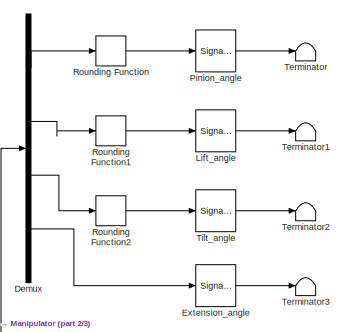
[diagram: root canvas - part 1/3, top right region]
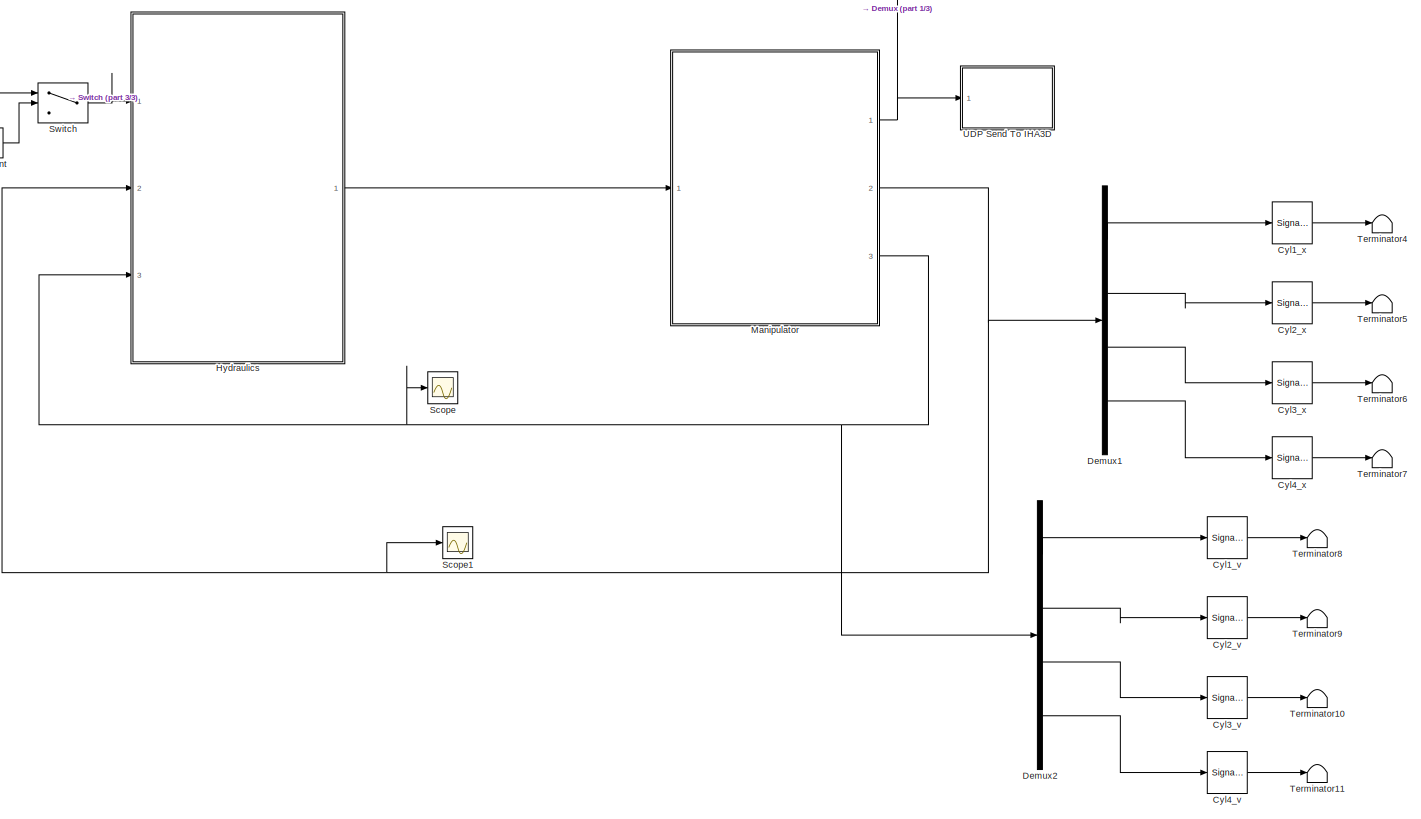
[diagram: root canvas - part 2/3, full width, middle band]
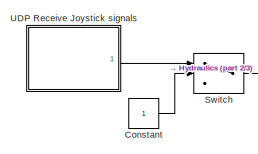
[diagram: root canvas - part 3/3, middle left region]
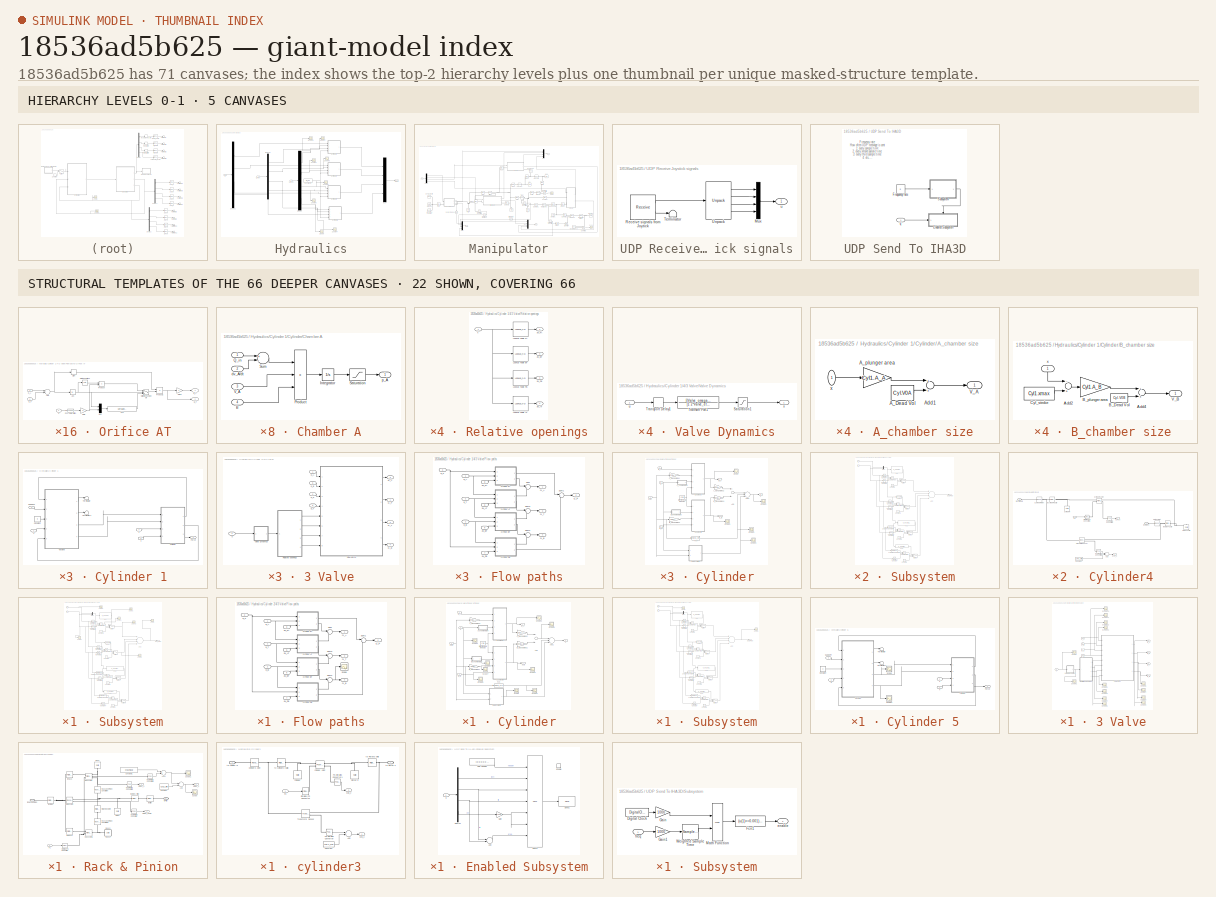
[diagram: thumbnail index - top-2 hierarchy levels (5 canvases) + 22 structural-template representatives of the remaining 66 canvases]
MODEL slx_18536ad5b625
KIND model
CONFIG AbsTol = auto
CONFIG FixedStep = 1e-3
CONFIG MaxStep = auto
CONFIG MinStep = auto
CONFIG RelTol = 1e-3
CONFIG SampleTimeConstraint = Unconstrained
CONFIG Solver = ode4
CONFIG SolverMode = Auto
CONFIG SolverName = ode4
CONFIG StartTime = 0.0
CONFIG StopTime = inf
BLOCK [Constant] Constant
BLOCK [SignalConversion] Cyl1_v
BLOCK [SignalConversion] Cyl1_x
BLOCK [SignalConversion] Cyl2_v
BLOCK [SignalConversion] Cyl2_x
BLOCK [SignalConversion] Cyl3_v
BLOCK [SignalConversion] Cyl3_x
BLOCK [SignalConversion] Cyl4_v
BLOCK [SignalConversion] Cyl4_x
BLOCK [Demux] Demux
  DisplayOption = bar
  Ports = [1, 4]
BLOCK [Demux] Demux1
  DisplayOption = bar
  Ports = [1, 4]
BLOCK [Demux] Demux2
  DisplayOption = bar
  Ports = [1, 4]
BLOCK [SignalConversion] Extension_angle
BLOCK [SubSystem] Hydraulics
  Ports = [3, 1]
  RequestExecContextInheritance = off
BLOCK [Constant] Hydraulics/Constant1
  Value = pr_Ps
BLOCK [Inport] Hydraulics/Cyl. Vel
  IconDisplay = Port number
  Port = 3
BLOCK [Inport] Hydraulics/Cyl.Pos
  IconDisplay = Port number
  Port = 2
BLOCK [SubSystem] Hydraulics/Cylinder 1
  Ports = [4, 1]
  RequestExecContextInheritance = off
BLOCK [Outport] Hydraulics/Cylinder 1/ Force
  IconDisplay = Port number
BLOCK [SubSystem] Hydraulics/Cylinder 1/4//3 Valve
  Ports = [5, 4]
  RequestExecContextInheritance = off
BLOCK [SubSystem] Hydraulics/Cylinder 1/4//3 Valve/Flow paths
  Ports = [8, 4]
  RequestExecContextInheritance = off
BLOCK [SubSystem] Hydraulics/Cylinder 1/4//3 Valve/Flow paths/Orifice AT
  Ports = [3, 2]
  RequestExecContextInheritance = off
BLOCK [Abs] Hydraulics/Cylinder 1/4//3 Valve/Flow paths/Orifice AT/Abs
  ZeroCross = off
BLOCK [Sum] Hydraulics/Cylinder 1/4//3 Valve/Flow paths/Orifice AT/Add
  InputSameDT = off
  Inputs = +-
  OutDataTypeStr = Inherit: Inherit via internal rule
  Ports = [2, 1]
  SaturateOnIntegerOverflow = off
BLOCK [Fcn] Hydraulics/Cylinder 1/4//3 Valve/Flow paths/Orifice AT/Fcn
  Expr = u[2]*u[1]/2.0/sqrt(ptr)*(3-u[1]/ptr)
BLOCK [Fcn] Hydraulics/Cylinder 1/4//3 Valve/Flow paths/Orifice AT/Fcn-Saturation
  Expr = (u(1)>=-1e-10)*u(1)
BLOCK [Gain] Hydraulics/Cylinder 1/4//3 Valve/Flow paths/Orifice AT/Gain
  Gain = K
BLOCK [Gain] Hydraulics/Cylinder 1/4//3 Valve/Flow paths/Orifice AT/Gain1
  Gain = -1
BLOCK [Math] Hydraulics/Cylinder 1/4//3 Valve/Flow paths/Orifice AT/Math Function1
  Operator = sqrt
  Ports = [1, 1]
BLOCK [Mux] Hydraulics/Cylinder 1/4//3 Valve/Flow paths/Orifice AT/Mux
  DisplayOption = bar
  Inputs = 2
  Ports = [2, 1]
BLOCK [Product] Hydraulics/Cylinder 1/4//3 Valve/Flow paths/Orifice AT/Product
  Ports = [2, 1]
  RndMeth = Floor
BLOCK [Product] Hydraulics/Cylinder 1/4//3 Valve/Flow paths/Orifice AT/Product1
  Ports = [2, 1]
  RndMeth = Floor
BLOCK [Outport] Hydraulics/Cylinder 1/4//3 Valve/Flow paths/Orifice AT/Q_A
  IconDisplay = Port number
  InitialOutput = 0
BLOCK [Outport] Hydraulics/Cylinder 1/4//3 Valve/Flow paths/Orifice AT/Q_T
  IconDisplay = Port number
  InitialOutput = 0
  Port = 2
BLOCK [Signum] Hydraulics/Cylinder 1/4//3 Valve/Flow paths/Orifice AT/Sign
  ZeroCross = off
BLOCK [Switch] Hydraulics/Cylinder 1/4//3 Valve/Flow paths/Orifice AT/Switch, treshold = ptr
  InputSameDT = off
  Threshold = ptr
  ZeroCross = off
BLOCK [Inport] Hydraulics/Cylinder 1/4//3 Valve/Flow paths/Orifice AT/p_A
  IconDisplay = Port number
BLOCK [Inport] Hydraulics/Cylinder 1/4//3 Valve/Flow paths/Orifice AT/p_T
  IconDisplay = Port number
  Port = 2
BLOCK [Inport] Hydraulics/Cylinder 1/4//3 Valve/Flow paths/Orifice AT/u
  IconDisplay = Port number
  Port = 3
BLOCK [SubSystem] Hydraulics/Cylinder 1/4//3 Valve/Flow paths/Orifice BT
  Ports = [3, 2]
  RequestExecContextInheritance = off
BLOCK [Abs] Hydraulics/Cylinder 1/4//3 Valve/Flow paths/Orifice BT/Abs
  ZeroCross = off
BLOCK [Sum] Hydraulics/Cylinder 1/4//3 Valve/Flow paths/Orifice BT/Add
  InputSameDT = off
  Inputs = +-
  OutDataTypeStr = Inherit: Inherit via internal rule
  Ports = [2, 1]
  SaturateOnIntegerOverflow = off
BLOCK [Fcn] Hydraulics/Cylinder 1/4//3 Valve/Flow paths/Orifice BT/Fcn
  Expr = u[2]*u[1]/2.0/sqrt(ptr)*(3-u[1]/ptr)
BLOCK [Fcn] Hydraulics/Cylinder 1/4//3 Valve/Flow paths/Orifice BT/Fcn-Saturation
  Expr = (u(1)>=-1e-10)*u(1)
BLOCK [Gain] Hydraulics/Cylinder 1/4//3 Valve/Flow paths/Orifice BT/Gain
  Gain = K
BLOCK [Gain] Hydraulics/Cylinder 1/4//3 Valve/Flow paths/Orifice BT/Gain1
  Gain = -1
BLOCK [Math] Hydraulics/Cylinder 1/4//3 Valve/Flow paths/Orifice BT/Math Function1
  Operator = sqrt
  Ports = [1, 1]
BLOCK [Mux] Hydraulics/Cylinder 1/4//3 Valve/Flow paths/Orifice BT/Mux
  DisplayOption = bar
  Inputs = 2
  Ports = [2, 1]
BLOCK [Product] Hydraulics/Cylinder 1/4//3 Valve/Flow paths/Orifice BT/Product
  Ports = [2, 1]
  RndMeth = Floor
BLOCK [Product] Hydraulics/Cylinder 1/4//3 Valve/Flow paths/Orifice BT/Product1
  Ports = [2, 1]
  RndMeth = Floor
BLOCK [Outport] Hydraulics/Cylinder 1/4//3 Valve/Flow paths/Orifice BT/Q_B
  IconDisplay = Port number
  InitialOutput = 0
  Port = 2
BLOCK [Outport] Hydraulics/Cylinder 1/4//3 Valve/Flow paths/Orifice BT/Q_T
  IconDisplay = Port number
  InitialOutput = 0
BLOCK [Signum] Hydraulics/Cylinder 1/4//3 Valve/Flow paths/Orifice BT/Sign
  ZeroCross = off
BLOCK [Switch] Hydraulics/Cylinder 1/4//3 Valve/Flow paths/Orifice BT/Switch, treshold = ptr
  InputSameDT = off
  Threshold = ptr
  ZeroCross = off
BLOCK [Inport] Hydraulics/Cylinder 1/4//3 Valve/Flow paths/Orifice BT/p_B
  IconDisplay = Port number
  Port = 2
BLOCK [Inport] Hydraulics/Cylinder 1/4//3 Valve/Flow paths/Orifice BT/p_T
  IconDisplay = Port number
BLOCK [Inport] Hydraulics/Cylinder 1/4//3 Valve/Flow paths/Orifice BT/u
  IconDisplay = Port number
  Port = 3
BLOCK [SubSystem] Hydraulics/Cylinder 1/4//3 Valve/Flow paths/Orifice PA
  Ports = [3, 2]
  RequestExecContextInheritance = off
BLOCK [Abs] Hydraulics/Cylinder 1/4//3 Valve/Flow paths/Orifice PA/Abs
  ZeroCross = off
BLOCK [Sum] Hydraulics/Cylinder 1/4//3 Valve/Flow paths/Orifice PA/Add
  InputSameDT = off
  Inputs = +-
  OutDataTypeStr = Inherit: Inherit via internal rule
  Ports = [2, 1]
  SaturateOnIntegerOverflow = off
BLOCK [Fcn] Hydraulics/Cylinder 1/4//3 Valve/Flow paths/Orifice PA/Fcn
  Expr = u[2]*u[1]/2.0/sqrt(ptr)*(3-u[1]/ptr)
BLOCK [Fcn] Hydraulics/Cylinder 1/4//3 Valve/Flow paths/Orifice PA/Fcn-Saturation
  Expr = (u(1)>=-1e-10)*u(1)
BLOCK [Gain] Hydraulics/Cylinder 1/4//3 Valve/Flow paths/Orifice PA/Gain
  Gain = K
BLOCK [Gain] Hydraulics/Cylinder 1/4//3 Valve/Flow paths/Orifice PA/Gain1
  Gain = -1
BLOCK [Math] Hydraulics/Cylinder 1/4//3 Valve/Flow paths/Orifice PA/Math Function1
  Operator = sqrt
  Ports = [1, 1]
BLOCK [Mux] Hydraulics/Cylinder 1/4//3 Valve/Flow paths/Orifice PA/Mux
  DisplayOption = bar
  Inputs = 2
  Ports = [2, 1]
BLOCK [Product] Hydraulics/Cylinder 1/4//3 Valve/Flow paths/Orifice PA/Product
  Ports = [2, 1]
  RndMeth = Floor
BLOCK [Product] Hydraulics/Cylinder 1/4//3 Valve/Flow paths/Orifice PA/Product1
  Ports = [2, 1]
  RndMeth = Floor
BLOCK [Outport] Hydraulics/Cylinder 1/4//3 Valve/Flow paths/Orifice PA/Q_A
  IconDisplay = Port number
  InitialOutput = 0
  Port = 2
BLOCK [Outport] Hydraulics/Cylinder 1/4//3 Valve/Flow paths/Orifice PA/Q_P
  IconDisplay = Port number
  InitialOutput = 0
BLOCK [Signum] Hydraulics/Cylinder 1/4//3 Valve/Flow paths/Orifice PA/Sign
  ZeroCross = off
BLOCK [Switch] Hydraulics/Cylinder 1/4//3 Valve/Flow paths/Orifice PA/Switch, treshold = ptr
  InputSameDT = off
  Threshold = ptr
  ZeroCross = off
BLOCK [Inport] Hydraulics/Cylinder 1/4//3 Valve/Flow paths/Orifice PA/p_A
  IconDisplay = Port number
  Port = 2
BLOCK [Inport] Hydraulics/Cylinder 1/4//3 Valve/Flow paths/Orifice PA/p_P
  IconDisplay = Port number
BLOCK [Inport] Hydraulics/Cylinder 1/4//3 Valve/Flow paths/Orifice PA/u
  IconDisplay = Port number
  Port = 3
BLOCK [SubSystem] Hydraulics/Cylinder 1/4//3 Valve/Flow paths/Orifice PB
  Ports = [3, 2]
  RequestExecContextInheritance = off
BLOCK [Abs] Hydraulics/Cylinder 1/4//3 Valve/Flow paths/Orifice PB/Abs
  ZeroCross = off
BLOCK [Sum] Hydraulics/Cylinder 1/4//3 Valve/Flow paths/Orifice PB/Add
  InputSameDT = off
  Inputs = +-
  OutDataTypeStr = Inherit: Inherit via internal rule
  Ports = [2, 1]
  SaturateOnIntegerOverflow = off
BLOCK [Fcn] Hydraulics/Cylinder 1/4//3 Valve/Flow paths/Orifice PB/Fcn
  Expr = u[2]*u[1]/2.0/sqrt(ptr)*(3-u[1]/ptr)
BLOCK [Fcn] Hydraulics/Cylinder 1/4//3 Valve/Flow paths/Orifice PB/Fcn-Saturation
  Expr = (u(1)>=-1e-10)*u(1)
BLOCK [Gain] Hydraulics/Cylinder 1/4//3 Valve/Flow paths/Orifice PB/Gain
  Gain = K
BLOCK [Gain] Hydraulics/Cylinder 1/4//3 Valve/Flow paths/Orifice PB/Gain1
  Gain = -1
BLOCK [Math] Hydraulics/Cylinder 1/4//3 Valve/Flow paths/Orifice PB/Math Function1
  Operator = sqrt
  Ports = [1, 1]
BLOCK [Mux] Hydraulics/Cylinder 1/4//3 Valve/Flow paths/Orifice PB/Mux
  DisplayOption = bar
  Inputs = 2
  Ports = [2, 1]
BLOCK [Product] Hydraulics/Cylinder 1/4//3 Valve/Flow paths/Orifice PB/Product
  Ports = [2, 1]
  RndMeth = Floor
BLOCK [Product] Hydraulics/Cylinder 1/4//3 Valve/Flow paths/Orifice PB/Product1
  Ports = [2, 1]
  RndMeth = Floor
BLOCK [Outport] Hydraulics/Cylinder 1/4//3 Valve/Flow paths/Orifice PB/Q_B
  IconDisplay = Port number
  InitialOutput = 0
BLOCK [Outport] Hydraulics/Cylinder 1/4//3 Valve/Flow paths/Orifice PB/Q_P
  IconDisplay = Port number
  InitialOutput = 0
  Port = 2
BLOCK [Signum] Hydraulics/Cylinder 1/4//3 Valve/Flow paths/Orifice PB/Sign
  ZeroCross = off
BLOCK [Switch] Hydraulics/Cylinder 1/4//3 Valve/Flow paths/Orifice PB/Switch, treshold = ptr
  InputSameDT = off
  Threshold = ptr
  ZeroCross = off
BLOCK [Inport] Hydraulics/Cylinder 1/4//3 Valve/Flow paths/Orifice PB/p_B
  IconDisplay = Port number
BLOCK [Inport] Hydraulics/Cylinder 1/4//3 Valve/Flow paths/Orifice PB/p_P
  IconDisplay = Port number
  Port = 2
BLOCK [Inport] Hydraulics/Cylinder 1/4//3 Valve/Flow paths/Orifice PB/u
  IconDisplay = Port number
  Port = 3
BLOCK [Outport] Hydraulics/Cylinder 1/4//3 Valve/Flow paths/Q_A
  IconDisplay = Port number
BLOCK [Outport] Hydraulics/Cylinder 1/4//3 Valve/Flow paths/Q_B
  IconDisplay = Port number
  Port = 4
BLOCK [Outport] Hydraulics/Cylinder 1/4//3 Valve/Flow paths/Q_P
  IconDisplay = Port number
  Port = 2
BLOCK [Outport] Hydraulics/Cylinder 1/4//3 Valve/Flow paths/Q_T
  IconDisplay = Port number
  Port = 3
BLOCK [Sum] Hydraulics/Cylinder 1/4//3 Valve/Flow paths/Sum
  IconShape = round
  InputSameDT = off
  Inputs = |++
  OutDataTypeStr = Inherit: Inherit via internal rule
  Ports = [2, 1]
  SaturateOnIntegerOverflow = off
BLOCK [Sum] Hydraulics/Cylinder 1/4//3 Valve/Flow paths/Sum1
  IconShape = round
  InputSameDT = off
  Inputs = |++
  OutDataTypeStr = Inherit: Inherit via internal rule
  Ports = [2, 1]
  SaturateOnIntegerOverflow = off
BLOCK [Sum] Hydraulics/Cylinder 1/4//3 Valve/Flow paths/Sum2
  IconShape = round
  InputSameDT = off
  Inputs = |++
  OutDataTypeStr = Inherit: Inherit via internal rule
  Ports = [2, 1]
  SaturateOnIntegerOverflow = off
BLOCK [Sum] Hydraulics/Cylinder 1/4//3 Valve/Flow paths/Sum3
  IconShape = round
  InputSameDT = off
  Inputs = |++
  OutDataTypeStr = Inherit: Inherit via internal rule
  Ports = [2, 1]
  SaturateOnIntegerOverflow = off
BLOCK [Inport] Hydraulics/Cylinder 1/4//3 Valve/Flow paths/av_AT
  IconDisplay = Port number
  Port = 5
BLOCK [Inport] Hydraulics/Cylinder 1/4//3 Valve/Flow paths/av_BT
  IconDisplay = Port number
  Port = 6
BLOCK [Inport] Hydraulics/Cylinder 1/4//3 Valve/Flow paths/av_PA
  IconDisplay = Port number
  Port = 8
BLOCK [Inport] Hydraulics/Cylinder 1/4//3 Valve/Flow paths/av_PB
  IconDisplay = Port number
  Port = 7
BLOCK [Inport] Hydraulics/Cylinder 1/4//3 Valve/Flow paths/p_A
  IconDisplay = Port number
BLOCK [Inport] Hydraulics/Cylinder 1/4//3 Valve/Flow paths/p_B
  IconDisplay = Port number
  Port = 2
BLOCK [Inport] Hydraulics/Cylinder 1/4//3 Valve/Flow paths/p_S
  IconDisplay = Port number
  Port = 3
BLOCK [Inport] Hydraulics/Cylinder 1/4//3 Valve/Flow paths/p_T
  IconDisplay = Port number
  Port = 4
BLOCK [Outport] Hydraulics/Cylinder 1/4//3 Valve/Q_A
  IconDisplay = Port number
  Port = 3
BLOCK [Outport] Hydraulics/Cylinder 1/4//3 Valve/Q_B
  IconDisplay = Port number
  Port = 4
BLOCK [Outport] Hydraulics/Cylinder 1/4//3 Valve/Q_P
  IconDisplay = Port number
BLOCK [Outport] Hydraulics/Cylinder 1/4//3 Valve/Q_T
  IconDisplay = Port number
  Port = 2
BLOCK [SubSystem] Hydraulics/Cylinder 1/4//3 Valve/Relative openings
  Ports = [1, 4]
  RequestExecContextInheritance = off
BLOCK [Lookup_n-D] Hydraulics/Cylinder 1/4//3 Valve/Relative openings/Lookup Table AT
  BreakpointsForDimension1 = Valve.lookupspoolAT
  InternalRulePriority = Speed
  NumberOfTableDimensions = 1
  Ports = [1, 1]
  RndMeth = Simplest
  Table = Valve.lookupopenAT
BLOCK [Lookup_n-D] Hydraulics/Cylinder 1/4//3 Valve/Relative openings/Lookup Table BT
  BreakpointsForDimension1 = Valve.lookupspoolBT
  InternalRulePriority = Speed
  NumberOfTableDimensions = 1
  Ports = [1, 1]
  RndMeth = Simplest
  Table = Valve.lookupopenBT
BLOCK [Lookup_n-D] Hydraulics/Cylinder 1/4//3 Valve/Relative openings/Lookup Table PA
  BreakpointsForDimension1 = Valve.lookupspoolPA
  InternalRulePriority = Speed
  NumberOfTableDimensions = 1
  Ports = [1, 1]
  RndMeth = Simplest
  Table = Valve.lookupopenPA
BLOCK [Lookup_n-D] Hydraulics/Cylinder 1/4//3 Valve/Relative openings/Lookup Table PB
  BreakpointsForDimension1 = Valve.lookupspoolPB
  InternalRulePriority = Speed
  NumberOfTableDimensions = 1
  Ports = [1, 1]
  RndMeth = Simplest
  Table = Valve.lookupopenPB
BLOCK [Outport] Hydraulics/Cylinder 1/4//3 Valve/Relative openings/av_AT
  IconDisplay = Port number
BLOCK [Outport] Hydraulics/Cylinder 1/4//3 Valve/Relative openings/av_BT
  IconDisplay = Port number
  Port = 2
BLOCK [Outport] Hydraulics/Cylinder 1/4//3 Valve/Relative openings/av_PA
  IconDisplay = Port number
  Port = 4
BLOCK [Outport] Hydraulics/Cylinder 1/4//3 Valve/Relative openings/av_PB
  IconDisplay = Port number
  Port = 3
BLOCK [Inport] Hydraulics/Cylinder 1/4//3 Valve/Relative openings/x
  IconDisplay = Port number
BLOCK [SubSystem] Hydraulics/Cylinder 1/4//3 Valve/Valve Dynamics
  Ports = [1, 1]
  RequestExecContextInheritance = off
BLOCK [Saturate] Hydraulics/Cylinder 1/4//3 Valve/Valve Dynamics/Saturation1
  InputPortMap = u0
  LowerLimit = -1
  Ports = [1, 1]
  UpperLimit = 1
BLOCK [TransferFcn] Hydraulics/Cylinder 1/4//3 Valve/Valve Dynamics/Transfer Fcn1
  Denominator = [1 2*Valve_eta*Valve_omega (Valve_omega)^2]
  Numerator = [(Valve_omega)^2]
BLOCK [TransportDelay] Hydraulics/Cylinder 1/4//3 Valve/Valve Dynamics/Transport Delay1
  DelayTime = Valve.secondorder_delay
  Ports = [1, 1]
BLOCK [Inport] Hydraulics/Cylinder 1/4//3 Valve/Valve Dynamics/u
  IconDisplay = Port number
BLOCK [Outport] Hydraulics/Cylinder 1/4//3 Valve/Valve Dynamics/x
  IconDisplay = Port number
BLOCK [Inport] Hydraulics/Cylinder 1/4//3 Valve/p_A
  IconDisplay = Port number
BLOCK [Inport] Hydraulics/Cylinder 1/4//3 Valve/p_B
  IconDisplay = Port number
  Port = 5
BLOCK [Inport] Hydraulics/Cylinder 1/4//3 Valve/p_S
  IconDisplay = Port number
  Port = 2
BLOCK [Inport] Hydraulics/Cylinder 1/4//3 Valve/p_T
  IconDisplay = Port number
  Port = 3
BLOCK [Inport] Hydraulics/Cylinder 1/4//3 Valve/u
  IconDisplay = Port number
  Port = 4
BLOCK [Constant] Hydraulics/Cylinder 1/Constant
  Value = 0
BLOCK [SubSystem] Hydraulics/Cylinder 1/Cylinder
  Ports = [4, 3]
  RequestExecContextInheritance = off
BLOCK [Gain] Hydraulics/Cylinder 1/Cylinder/-B_plunger area1
  Gain = -Cyl1.A_B
  OutDataTypeStr = Inherit: Inherit via internal rule
  ParamDataTypeStr = Inherit: Inherit via internal rule
  SaturateOnIntegerOverflow = off
BLOCK [SubSystem] Hydraulics/Cylinder 1/Cylinder/A_chamber size
  Ports = [1, 1]
  RequestExecContextInheritance = off
BLOCK [Constant] Hydraulics/Cylinder 1/Cylinder/A_chamber size/A_Dead Vol
  Value = Cyl.V0A
BLOCK [Gain] Hydraulics/Cylinder 1/Cylinder/A_chamber size/A_plunger area
  Gain = Cyl1.A_A
  OutDataTypeStr = Inherit: Inherit via internal rule
  ParamDataTypeStr = Inherit: Inherit via internal rule
  SaturateOnIntegerOverflow = off
BLOCK [Sum] Hydraulics/Cylinder 1/Cylinder/A_chamber size/Add1
  InputSameDT = off
  OutDataTypeStr = Inherit: Inherit via internal rule
  Ports = [2, 1]
  SaturateOnIntegerOverflow = off
BLOCK [Outport] Hydraulics/Cylinder 1/Cylinder/A_chamber size/V_A
  IconDisplay = Port number
BLOCK [Inport] Hydraulics/Cylinder 1/Cylinder/A_chamber size/x
  IconDisplay = Port number
BLOCK [Gain] Hydraulics/Cylinder 1/Cylinder/A_plunger area1
  Gain = Cyl1.A_A
  OutDataTypeStr = Inherit: Inherit via internal rule
  ParamDataTypeStr = Inherit: Inherit via internal rule
  SaturateOnIntegerOverflow = off
BLOCK [Gain] Hydraulics/Cylinder 1/Cylinder/A_plunger area2
  Gain = Cyl1.A_A
  OutDataTypeStr = Inherit: Inherit via internal rule
  ParamDataTypeStr = Inherit: Inherit via internal rule
  SaturateOnIntegerOverflow = off
BLOCK [Sum] Hydraulics/Cylinder 1/Cylinder/Add
  InputSameDT = off
  Inputs = +-
  OutDataTypeStr = Inherit: Inherit via internal rule
  Ports = [2, 1]
  SaturateOnIntegerOverflow = off
BLOCK [Sum] Hydraulics/Cylinder 1/Cylinder/Add1
  InputSameDT = off
  Inputs = +-+
  OutDataTypeStr = Inherit: Inherit via internal rule
  Ports = [3, 1]
  SaturateOnIntegerOverflow = off
BLOCK [SubSystem] Hydraulics/Cylinder 1/Cylinder/B_chamber size
  Ports = [1, 1]
  RequestExecContextInheritance = off
BLOCK [Sum] Hydraulics/Cylinder 1/Cylinder/B_chamber size/Add2
  InputSameDT = off
  Inputs = -+
  OutDataTypeStr = Inherit: Inherit via internal rule
  Ports = [2, 1]
  SaturateOnIntegerOverflow = off
BLOCK [Sum] Hydraulics/Cylinder 1/Cylinder/B_chamber size/Add4
  InputSameDT = off
  OutDataTypeStr = Inherit: Inherit via internal rule
  Ports = [2, 1]
  SaturateOnIntegerOverflow = off
BLOCK [Constant] Hydraulics/Cylinder 1/Cylinder/B_chamber size/B_Dead Vol
  Value = Cyl.V0B
BLOCK [Gain] Hydraulics/Cylinder 1/Cylinder/B_chamber size/B_plunger area
  Gain = Cyl1.A_B
  OutDataTypeStr = Inherit: Inherit via internal rule
  ParamDataTypeStr = Inherit: Inherit via internal rule
  SaturateOnIntegerOverflow = off
BLOCK [Constant] Hydraulics/Cylinder 1/Cylinder/B_chamber size/Cyl_stroke
  Value = Cyl1.xmax
BLOCK [Outport] Hydraulics/Cylinder 1/Cylinder/B_chamber size/V_B
  IconDisplay = Port number
BLOCK [Inport] Hydraulics/Cylinder 1/Cylinder/B_chamber size/x
  IconDisplay = Port number
BLOCK [Gain] Hydraulics/Cylinder 1/Cylinder/B_plunger area1
  Gain = Cyl1.A_B
  OutDataTypeStr = Inherit: Inherit via internal rule
  ParamDataTypeStr = Inherit: Inherit via internal rule
  SaturateOnIntegerOverflow = off
BLOCK [SubSystem] Hydraulics/Cylinder 1/Cylinder/Chamber A
  Ports = [4, 1]
  RequestExecContextInheritance = off
BLOCK [Inport] Hydraulics/Cylinder 1/Cylinder/Chamber A/ B
  IconDisplay = Port number
  Port = 4
BLOCK [Inport] Hydraulics/Cylinder 1/Cylinder/Chamber A/ V_A
  IconDisplay = Port number
  Port = 3
BLOCK [Inport] Hydraulics/Cylinder 1/Cylinder/Chamber A/ dv_A//dt
  IconDisplay = Port number
  Port = 2
BLOCK [Integrator] Hydraulics/Cylinder 1/Cylinder/Chamber A/Integrator
  AbsoluteTolerance = 10
  InitialCondition = pinitial
  Ports = [1, 1]
BLOCK [Product] Hydraulics/Cylinder 1/Cylinder/Chamber A/Product
  Inputs = */*
  Ports = [3, 1]
  RndMeth = Floor
BLOCK [Inport] Hydraulics/Cylinder 1/Cylinder/Chamber A/Q_in
  IconDisplay = Port number
BLOCK [Saturate] Hydraulics/Cylinder 1/Cylinder/Chamber A/Saturation
  InputPortMap = u0
  LowerLimit = 0
  Ports = [1, 1]
  UpperLimit = inf
BLOCK [Sum] Hydraulics/Cylinder 1/Cylinder/Chamber A/Sum
  Inputs = +-
  Ports = [2, 1]
BLOCK [Outport] Hydraulics/Cylinder 1/Cylinder/Chamber A/p_A
  IconDisplay = Port number
BLOCK [SubSystem] Hydraulics/Cylinder 1/Cylinder/Chamber B
  Ports = [4, 1]
  RequestExecContextInheritance = off
BLOCK [Inport] Hydraulics/Cylinder 1/Cylinder/Chamber B/B
  IconDisplay = Port number
BLOCK [Integrator] Hydraulics/Cylinder 1/Cylinder/Chamber B/Integrator
  AbsoluteTolerance = 10
  InitialCondition = pinitial
  Ports = [1, 1]
BLOCK [Product] Hydraulics/Cylinder 1/Cylinder/Chamber B/Product
  Inputs = */*
  Ports = [3, 1]
  RndMeth = Floor
BLOCK [Inport] Hydraulics/Cylinder 1/Cylinder/Chamber B/Q_in
  IconDisplay = Port number
  Port = 4
BLOCK [Saturate] Hydraulics/Cylinder 1/Cylinder/Chamber B/Saturation
  InputPortMap = u0
  LowerLimit = 0
  Ports = [1, 1]
  UpperLimit = inf
BLOCK [Sum] Hydraulics/Cylinder 1/Cylinder/Chamber B/Sum
  Inputs = +-
  Ports = [2, 1]
BLOCK [Inport] Hydraulics/Cylinder 1/Cylinder/Chamber B/V_B
  IconDisplay = Port number
  Port = 2
BLOCK [Inport] Hydraulics/Cylinder 1/Cylinder/Chamber B/dv_B//dt
  IconDisplay = Port number
  Port = 3
BLOCK [Outport] Hydraulics/Cylinder 1/Cylinder/Chamber B/p_B
  IconDisplay = Port number
BLOCK [Constant] Hydraulics/Cylinder 1/Cylinder/Effective Bulk Modulus
  Value = Cyl.B
BLOCK [Outport] Hydraulics/Cylinder 1/Cylinder/F
  IconDisplay = Port number
  Port = 3
BLOCK [Fcn] Hydraulics/Cylinder 1/Cylinder/Fcn
  Expr = tanh(Cyl1_K*u)*(Cyl1_Fc+(Cyl1_Fs-Cyl1_Fc)*exp(-1*(u/Cyl1_vs)^2))+Cyl1_b*u
BLOCK [Inport] Hydraulics/Cylinder 1/Cylinder/Q_A
  IconDisplay = Port number
BLOCK [Inport] Hydraulics/Cylinder 1/Cylinder/Q_B
  IconDisplay = Port number
  Port = 2
BLOCK [Scope] Hydraulics/Cylinder 1/Cylinder/Scope
  DataFormat = StructureWithTime
  Floating = off
  LimitDataPoints = off
  NumInputPorts = 1
  Ports = [1]
  SaveName = ScopeData34
  YMax = 4451445.07232
  YMin = 4436994.34916
BLOCK [Scope] Hydraulics/Cylinder 1/Cylinder/Scope1
  DataFormat = StructureWithTime
  Floating = off
  LimitDataPoints = off
  NumInputPorts = 1
  Ports = [1]
  SaveName = ScopeData35
  YMax = 4442034.19114
  YMin = 4437551.75654
BLOCK [Scope] Hydraulics/Cylinder 1/Cylinder/Scope2
  DataFormat = StructureWithTime
  Floating = off
  LimitDataPoints = off
  NumInputPorts = 1
  Ports = [1]
  SaveName = ScopeData5
  YMax = 577446.09906
  YMin = -2641181.18354
BLOCK [Scope] Hydraulics/Cylinder 1/Cylinder/Scope3
  DataFormat = StructureWithTime
  Floating = off
  LimitDataPoints = off
  NumInputPorts = 1
  Ports = [1]
  SaveName = ScopeData6
  YMax = 328968.87065
  YMin = -2960719.83587
BLOCK [Scope] Hydraulics/Cylinder 1/Cylinder/Scope4
  DataFormat = StructureWithTime
  Floating = off
  LimitDataPoints = off
  NumInputPorts = 1
  Ports = [1]
  SaveName = ScopeData7
  YMax = 12364.555
  YMin = -12307.20024
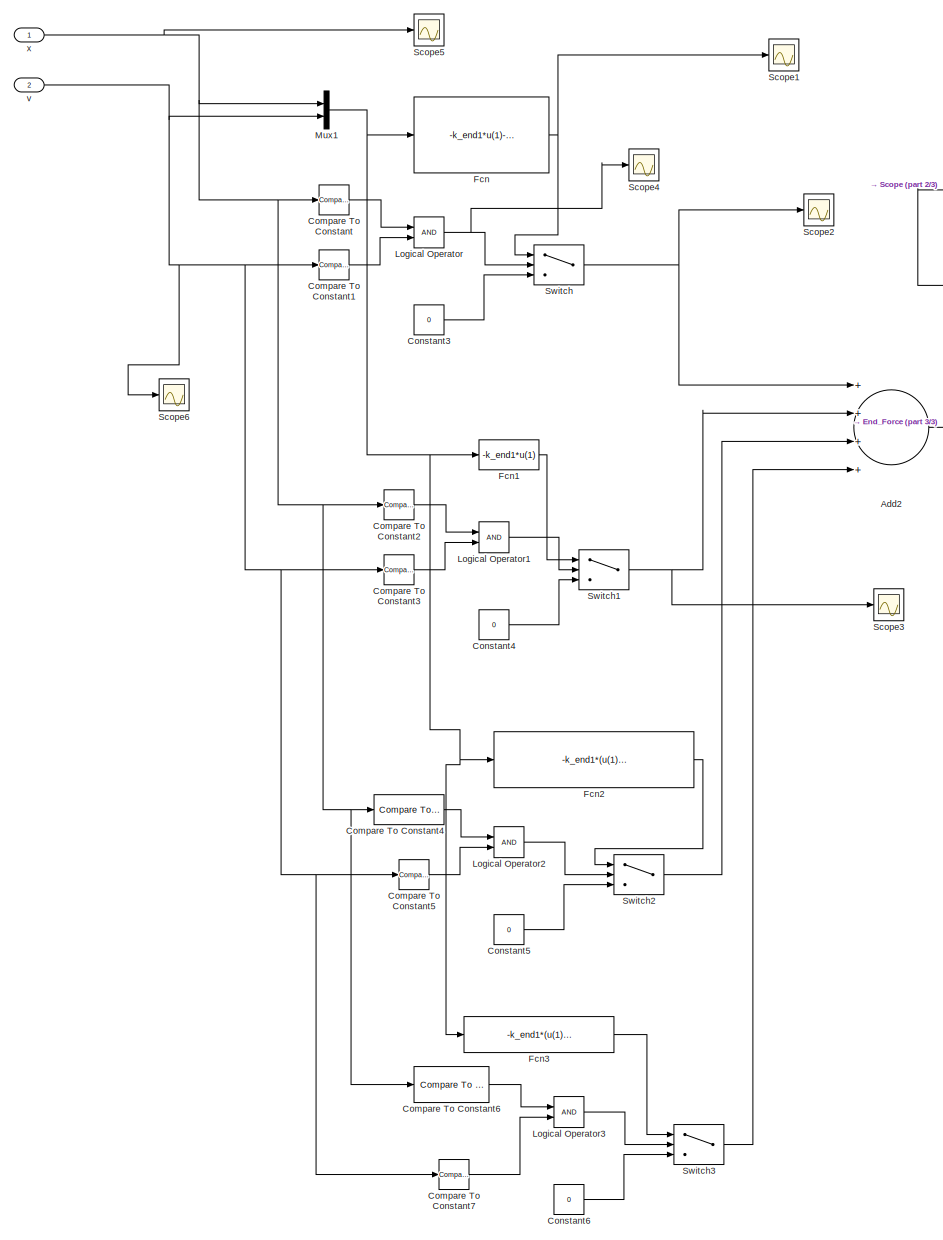
[diagram: Hydraulics/Cylinder 1/Cylinder/Subsystem - part 1/3, most of the canvas]
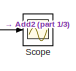
[diagram: Hydraulics/Cylinder 1/Cylinder/Subsystem - part 2/3, top right region]
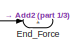
[diagram: Hydraulics/Cylinder 1/Cylinder/Subsystem - part 3/3, middle right region]
BLOCK [SubSystem] Hydraulics/Cylinder 1/Cylinder/Subsystem
  Ports = [2, 1]
  RequestExecContextInheritance = off
BLOCK [Sum] Hydraulics/Cylinder 1/Cylinder/Subsystem/Add2
  InputSameDT = off
  Inputs = ++++
  OutDataTypeStr = Inherit: Inherit via internal rule
  Ports = [4, 1]
  SaturateOnIntegerOverflow = off
BLOCK [Reference] Hydraulics/Cylinder 1/Cylinder/Subsystem/Compare To Constant  REF=simulink/Logic and Bit
Operations/Compare
To Constant
  OutDataTypeStr = boolean
  Ports = [1, 1]
  SourceBlock = simulink/Logic and Bit\nOperations/Compare\nTo Constant
  SourceType = Compare To Constant
  ZeroCross = on
  const = 0
  relop = <
BLOCK [Reference] Hydraulics/Cylinder 1/Cylinder/Subsystem/Compare To Constant1  REF=simulink/Logic and Bit
Operations/Compare
To Constant
  OutDataTypeStr = boolean
  Ports = [1, 1]
  SourceBlock = simulink/Logic and Bit\nOperations/Compare\nTo Constant
  SourceType = Compare To Constant
  ZeroCross = on
  const = 0
  relop = <
BLOCK [Reference] Hydraulics/Cylinder 1/Cylinder/Subsystem/Compare To Constant2  REF=simulink/Logic and Bit
Operations/Compare
To Constant
  OutDataTypeStr = boolean
  Ports = [1, 1]
  SourceBlock = simulink/Logic and Bit\nOperations/Compare\nTo Constant
  SourceType = Compare To Constant
  ZeroCross = on
  const = 0
  relop = <
BLOCK [Reference] Hydraulics/Cylinder 1/Cylinder/Subsystem/Compare To Constant3  REF=simulink/Logic and Bit
Operations/Compare
To Constant
  OutDataTypeStr = boolean
  Ports = [1, 1]
  SourceBlock = simulink/Logic and Bit\nOperations/Compare\nTo Constant
  SourceType = Compare To Constant
  ZeroCross = on
  const = 0
  relop = >=
BLOCK [Reference] Hydraulics/Cylinder 1/Cylinder/Subsystem/Compare To Constant4  REF=simulink/Logic and Bit
Operations/Compare
To Constant
  OutDataTypeStr = boolean
  Ports = [1, 1]
  SourceBlock = simulink/Logic and Bit\nOperations/Compare\nTo Constant
  SourceType = Compare To Constant
  ZeroCross = on
  const = Cyl1.xmax
  relop = >
BLOCK [Reference] Hydraulics/Cylinder 1/Cylinder/Subsystem/Compare To Constant5  REF=simulink/Logic and Bit
Operations/Compare
To Constant
  OutDataTypeStr = boolean
  Ports = [1, 1]
  SourceBlock = simulink/Logic and Bit\nOperations/Compare\nTo Constant
  SourceType = Compare To Constant
  ZeroCross = on
  const = 0
  relop = >
BLOCK [Reference] Hydraulics/Cylinder 1/Cylinder/Subsystem/Compare To Constant6  REF=simulink/Logic and Bit
Operations/Compare
To Constant
  OutDataTypeStr = boolean
  Ports = [1, 1]
  SourceBlock = simulink/Logic and Bit\nOperations/Compare\nTo Constant
  SourceType = Compare To Constant
  ZeroCross = on
  const = Cyl1.xmax
  relop = >
BLOCK [Reference] Hydraulics/Cylinder 1/Cylinder/Subsystem/Compare To Constant7  REF=simulink/Logic and Bit
Operations/Compare
To Constant
  OutDataTypeStr = boolean
  Ports = [1, 1]
  SourceBlock = simulink/Logic and Bit\nOperations/Compare\nTo Constant
  SourceType = Compare To Constant
  ZeroCross = on
  const = 0
  relop = <=
BLOCK [Constant] Hydraulics/Cylinder 1/Cylinder/Subsystem/Constant3
  Value = 0
BLOCK [Constant] Hydraulics/Cylinder 1/Cylinder/Subsystem/Constant4
  Value = 0
BLOCK [Constant] Hydraulics/Cylinder 1/Cylinder/Subsystem/Constant5
  Value = 0
BLOCK [Constant] Hydraulics/Cylinder 1/Cylinder/Subsystem/Constant6
  Value = 0
BLOCK [Outport] Hydraulics/Cylinder 1/Cylinder/Subsystem/End_Force
  IconDisplay = Port number
BLOCK [Fcn] Hydraulics/Cylinder 1/Cylinder/Subsystem/Fcn
  Expr = -k_end1*u(1)-b_end1*u(2)
BLOCK [Fcn] Hydraulics/Cylinder 1/Cylinder/Subsystem/Fcn1
  Expr = -k_end1*u(1)
BLOCK [Fcn] Hydraulics/Cylinder 1/Cylinder/Subsystem/Fcn2
  Expr = -k_end1*(u(1)-Cyl1.xmax)-b_end1*u(2)
BLOCK [Fcn] Hydraulics/Cylinder 1/Cylinder/Subsystem/Fcn3
  Expr = -k_end1*(u(1)-Cyl1.xmax)
BLOCK [Logic] Hydraulics/Cylinder 1/Cylinder/Subsystem/Logical Operator
  AllPortsSameDT = off
  OutDataTypeStr = boolean
  Ports = [2, 1]
BLOCK [Logic] Hydraulics/Cylinder 1/Cylinder/Subsystem/Logical Operator1
  AllPortsSameDT = off
  OutDataTypeStr = boolean
  Ports = [2, 1]
BLOCK [Logic] Hydraulics/Cylinder 1/Cylinder/Subsystem/Logical Operator2
  AllPortsSameDT = off
  OutDataTypeStr = boolean
  Ports = [2, 1]
BLOCK [Logic] Hydraulics/Cylinder 1/Cylinder/Subsystem/Logical Operator3
  AllPortsSameDT = off
  OutDataTypeStr = boolean
  Ports = [2, 1]
BLOCK [Mux] Hydraulics/Cylinder 1/Cylinder/Subsystem/Mux1
  DisplayOption = bar
  Inputs = 2
  Ports = [2, 1]
BLOCK [Scope] Hydraulics/Cylinder 1/Cylinder/Subsystem/Scope
  DataFormat = StructureWithTime
  Floating = off
  LimitDataPoints = off
  NumInputPorts = 1
  Ports = [1]
  SaveName = ScopeData7
  YMax = 1.00000
  YMin = -1.00000
BLOCK [Scope] Hydraulics/Cylinder 1/Cylinder/Subsystem/Scope1
  DataFormat = StructureWithTime
  Floating = off
  LimitDataPoints = off
  NumInputPorts = 1
  Ports = [1]
  SaveName = ScopeData8
  YMax = -746398119.03494
  YMin = -1321864731.63954
BLOCK [Scope] Hydraulics/Cylinder 1/Cylinder/Subsystem/Scope2
  DataFormat = StructureWithTime
  Floating = off
  LimitDataPoints = off
  NumInputPorts = 1
  Ports = [1]
  SaveName = ScopeData9
  YMax = 1.00000
  YMin = -1.00000
BLOCK [Scope] Hydraulics/Cylinder 1/Cylinder/Subsystem/Scope3
  DataFormat = StructureWithTime
  Floating = off
  LimitDataPoints = off
  NumInputPorts = 1
  Ports = [1]
  SaveName = ScopeData10
  YMax = 14635706.08996
  YMin = -1626189.56555
BLOCK [Scope] Hydraulics/Cylinder 1/Cylinder/Subsystem/Scope4
  DataFormat = StructureWithTime
  Floating = off
  LimitDataPoints = off
  NumInputPorts = 1
  Ports = [1]
  SaveName = ScopeData11
  YMax = 1.00000
  YMin = -1.00000
BLOCK [Scope] Hydraulics/Cylinder 1/Cylinder/Subsystem/Scope5
  DataFormat = StructureWithTime
  Floating = off
  LimitDataPoints = off
  NumInputPorts = 1
  Ports = [1]
  SaveName = ScopeData12
  YMax = 0.49078
  YMin = 0.45891
BLOCK [Scope] Hydraulics/Cylinder 1/Cylinder/Subsystem/Scope6
  DataFormat = StructureWithTime
  Floating = off
  LimitDataPoints = off
  NumInputPorts = 1
  Ports = [1]
  SaveName = ScopeData13
  YMax = 0.05469
  YMin = -0.00619
BLOCK [Switch] Hydraulics/Cylinder 1/Cylinder/Subsystem/Switch
  Criteria = u2 > Threshold
  InputSameDT = off
  SaturateOnIntegerOverflow = off
BLOCK [Switch] Hydraulics/Cylinder 1/Cylinder/Subsystem/Switch1
  Criteria = u2 > Threshold
  InputSameDT = off
  SaturateOnIntegerOverflow = off
BLOCK [Switch] Hydraulics/Cylinder 1/Cylinder/Subsystem/Switch2
  Criteria = u2 > Threshold
  InputSameDT = off
  SaturateOnIntegerOverflow = off
BLOCK [Switch] Hydraulics/Cylinder 1/Cylinder/Subsystem/Switch3
  Criteria = u2 > Threshold
  InputSameDT = off
  SaturateOnIntegerOverflow = off
BLOCK [Inport] Hydraulics/Cylinder 1/Cylinder/Subsystem/v
  IconDisplay = Port number
  Port = 2
BLOCK [Inport] Hydraulics/Cylinder 1/Cylinder/Subsystem/x
  IconDisplay = Port number
BLOCK [Inport] Hydraulics/Cylinder 1/Cylinder/dx//dt
  IconDisplay = Port number
  Port = 4
BLOCK [Outport] Hydraulics/Cylinder 1/Cylinder/p_A
  IconDisplay = Port number
BLOCK [Outport] Hydraulics/Cylinder 1/Cylinder/p_B
  IconDisplay = Port number
  Port = 2
BLOCK [Inport] Hydraulics/Cylinder 1/Cylinder/x
  IconDisplay = Port number
  Port = 3
BLOCK [Inport] Hydraulics/Cylinder 1/Supply.Pr
  IconDisplay = Port number
  Port = 4
BLOCK [Terminator] Hydraulics/Cylinder 1/Terminator
BLOCK [Terminator] Hydraulics/Cylinder 1/Terminator1
BLOCK [Inport] Hydraulics/Cylinder 1/u
  IconDisplay = Port number
BLOCK [Inport] Hydraulics/Cylinder 1/v
  IconDisplay = Port number
  Port = 2
BLOCK [Inport] Hydraulics/Cylinder 1/x
  IconDisplay = Port number
  Port = 3
BLOCK [SubSystem] Hydraulics/Cylinder 2
  Ports = [4, 1]
  RequestExecContextInheritance = off
BLOCK [Outport] Hydraulics/Cylinder 2/ Force
  IconDisplay = Port number
BLOCK [SubSystem] Hydraulics/Cylinder 2/4//3 Valve
  Ports = [5, 4]
  RequestExecContextInheritance = off
BLOCK [SubSystem] Hydraulics/Cylinder 2/4//3 Valve/Flow paths
  Ports = [8, 4]
  RequestExecContextInheritance = off
BLOCK [SubSystem] Hydraulics/Cylinder 2/4//3 Valve/Flow paths/Orifice AT
  Ports = [3, 2]
  RequestExecContextInheritance = off
BLOCK [Abs] Hydraulics/Cylinder 2/4//3 Valve/Flow paths/Orifice AT/Abs
  ZeroCross = off
BLOCK [Sum] Hydraulics/Cylinder 2/4//3 Valve/Flow paths/Orifice AT/Add
  InputSameDT = off
  Inputs = +-
  OutDataTypeStr = Inherit: Inherit via internal rule
  Ports = [2, 1]
  SaturateOnIntegerOverflow = off
BLOCK [Fcn] Hydraulics/Cylinder 2/4//3 Valve/Flow paths/Orifice AT/Fcn
  Expr = u[2]*u[1]/2.0/sqrt(ptr)*(3-u[1]/ptr)
BLOCK [Fcn] Hydraulics/Cylinder 2/4//3 Valve/Flow paths/Orifice AT/Fcn-Saturation
  Expr = (u(1)>=-1e-10)*u(1)
BLOCK [Gain] Hydraulics/Cylinder 2/4//3 Valve/Flow paths/Orifice AT/Gain
  Gain = K
BLOCK [Gain] Hydraulics/Cylinder 2/4//3 Valve/Flow paths/Orifice AT/Gain1
  Gain = -1
BLOCK [Math] Hydraulics/Cylinder 2/4//3 Valve/Flow paths/Orifice AT/Math Function1
  Operator = sqrt
  Ports = [1, 1]
BLOCK [Mux] Hydraulics/Cylinder 2/4//3 Valve/Flow paths/Orifice AT/Mux
  DisplayOption = bar
  Inputs = 2
  Ports = [2, 1]
BLOCK [Product] Hydraulics/Cylinder 2/4//3 Valve/Flow paths/Orifice AT/Product
  Ports = [2, 1]
  RndMeth = Floor
BLOCK [Product] Hydraulics/Cylinder 2/4//3 Valve/Flow paths/Orifice AT/Product1
  Ports = [2, 1]
  RndMeth = Floor
BLOCK [Outport] Hydraulics/Cylinder 2/4//3 Valve/Flow paths/Orifice AT/Q_A
  IconDisplay = Port number
  InitialOutput = 0
BLOCK [Outport] Hydraulics/Cylinder 2/4//3 Valve/Flow paths/Orifice AT/Q_T
  IconDisplay = Port number
  InitialOutput = 0
  Port = 2
BLOCK [Signum] Hydraulics/Cylinder 2/4//3 Valve/Flow paths/Orifice AT/Sign
  ZeroCross = off
BLOCK [Switch] Hydraulics/Cylinder 2/4//3 Valve/Flow paths/Orifice AT/Switch, treshold = ptr
  InputSameDT = off
  Threshold = ptr
  ZeroCross = off
BLOCK [Inport] Hydraulics/Cylinder 2/4//3 Valve/Flow paths/Orifice AT/p_A
  IconDisplay = Port number
BLOCK [Inport] Hydraulics/Cylinder 2/4//3 Valve/Flow paths/Orifice AT/p_T
  IconDisplay = Port number
  Port = 2
BLOCK [Inport] Hydraulics/Cylinder 2/4//3 Valve/Flow paths/Orifice AT/u
  IconDisplay = Port number
  Port = 3
BLOCK [SubSystem] Hydraulics/Cylinder 2/4//3 Valve/Flow paths/Orifice BT
  Ports = [3, 2]
  RequestExecContextInheritance = off
BLOCK [Abs] Hydraulics/Cylinder 2/4//3 Valve/Flow paths/Orifice BT/Abs
  ZeroCross = off
BLOCK [Sum] Hydraulics/Cylinder 2/4//3 Valve/Flow paths/Orifice BT/Add
  InputSameDT = off
  Inputs = +-
  OutDataTypeStr = Inherit: Inherit via internal rule
  Ports = [2, 1]
  SaturateOnIntegerOverflow = off
BLOCK [Fcn] Hydraulics/Cylinder 2/4//3 Valve/Flow paths/Orifice BT/Fcn
  Expr = u[2]*u[1]/2.0/sqrt(ptr)*(3-u[1]/ptr)
BLOCK [Fcn] Hydraulics/Cylinder 2/4//3 Valve/Flow paths/Orifice BT/Fcn-Saturation
  Expr = (u(1)>=-1e-10)*u(1)
BLOCK [Gain] Hydraulics/Cylinder 2/4//3 Valve/Flow paths/Orifice BT/Gain
  Gain = K
BLOCK [Gain] Hydraulics/Cylinder 2/4//3 Valve/Flow paths/Orifice BT/Gain1
  Gain = -1
BLOCK [Math] Hydraulics/Cylinder 2/4//3 Valve/Flow paths/Orifice BT/Math Function1
  Operator = sqrt
  Ports = [1, 1]
BLOCK [Mux] Hydraulics/Cylinder 2/4//3 Valve/Flow paths/Orifice BT/Mux
  DisplayOption = bar
  Inputs = 2
  Ports = [2, 1]
BLOCK [Product] Hydraulics/Cylinder 2/4//3 Valve/Flow paths/Orifice BT/Product
  Ports = [2, 1]
  RndMeth = Floor
BLOCK [Product] Hydraulics/Cylinder 2/4//3 Valve/Flow paths/Orifice BT/Product1
  Ports = [2, 1]
  RndMeth = Floor
BLOCK [Outport] Hydraulics/Cylinder 2/4//3 Valve/Flow paths/Orifice BT/Q_B
  IconDisplay = Port number
  InitialOutput = 0
  Port = 2
BLOCK [Outport] Hydraulics/Cylinder 2/4//3 Valve/Flow paths/Orifice BT/Q_T
  IconDisplay = Port number
  InitialOutput = 0
BLOCK [Signum] Hydraulics/Cylinder 2/4//3 Valve/Flow paths/Orifice BT/Sign
  ZeroCross = off
BLOCK [Switch] Hydraulics/Cylinder 2/4//3 Valve/Flow paths/Orifice BT/Switch, treshold = ptr
  InputSameDT = off
  Threshold = ptr
  ZeroCross = off
BLOCK [Inport] Hydraulics/Cylinder 2/4//3 Valve/Flow paths/Orifice BT/p_B
  IconDisplay = Port number
  Port = 2
BLOCK [Inport] Hydraulics/Cylinder 2/4//3 Valve/Flow paths/Orifice BT/p_T
  IconDisplay = Port number
BLOCK [Inport] Hydraulics/Cylinder 2/4//3 Valve/Flow paths/Orifice BT/u
  IconDisplay = Port number
  Port = 3
BLOCK [SubSystem] Hydraulics/Cylinder 2/4//3 Valve/Flow paths/Orifice PA
  Ports = [3, 2]
  RequestExecContextInheritance = off
BLOCK [Abs] Hydraulics/Cylinder 2/4//3 Valve/Flow paths/Orifice PA/Abs
  ZeroCross = off
BLOCK [Sum] Hydraulics/Cylinder 2/4//3 Valve/Flow paths/Orifice PA/Add
  InputSameDT = off
  Inputs = +-
  OutDataTypeStr = Inherit: Inherit via internal rule
  Ports = [2, 1]
  SaturateOnIntegerOverflow = off
BLOCK [Fcn] Hydraulics/Cylinder 2/4//3 Valve/Flow paths/Orifice PA/Fcn
  Expr = u[2]*u[1]/2.0/sqrt(ptr)*(3-u[1]/ptr)
BLOCK [Fcn] Hydraulics/Cylinder 2/4//3 Valve/Flow paths/Orifice PA/Fcn-Saturation
  Expr = (u(1)>=-1e-10)*u(1)
BLOCK [Gain] Hydraulics/Cylinder 2/4//3 Valve/Flow paths/Orifice PA/Gain
  Gain = K
BLOCK [Gain] Hydraulics/Cylinder 2/4//3 Valve/Flow paths/Orifice PA/Gain1
  Gain = -1
BLOCK [Math] Hydraulics/Cylinder 2/4//3 Valve/Flow paths/Orifice PA/Math Function1
  Operator = sqrt
  Ports = [1, 1]
BLOCK [Mux] Hydraulics/Cylinder 2/4//3 Valve/Flow paths/Orifice PA/Mux
  DisplayOption = bar
  Inputs = 2
  Ports = [2, 1]
BLOCK [Product] Hydraulics/Cylinder 2/4//3 Valve/Flow paths/Orifice PA/Product
  Ports = [2, 1]
  RndMeth = Floor
BLOCK [Product] Hydraulics/Cylinder 2/4//3 Valve/Flow paths/Orifice PA/Product1
  Ports = [2, 1]
  RndMeth = Floor
BLOCK [Outport] Hydraulics/Cylinder 2/4//3 Valve/Flow paths/Orifice PA/Q_A
  IconDisplay = Port number
  InitialOutput = 0
  Port = 2
BLOCK [Outport] Hydraulics/Cylinder 2/4//3 Valve/Flow paths/Orifice PA/Q_P
  IconDisplay = Port number
  InitialOutput = 0
BLOCK [Signum] Hydraulics/Cylinder 2/4//3 Valve/Flow paths/Orifice PA/Sign
  ZeroCross = off
BLOCK [Switch] Hydraulics/Cylinder 2/4//3 Valve/Flow paths/Orifice PA/Switch, treshold = ptr
  InputSameDT = off
  Threshold = ptr
  ZeroCross = off
BLOCK [Inport] Hydraulics/Cylinder 2/4//3 Valve/Flow paths/Orifice PA/p_A
  IconDisplay = Port number
  Port = 2
BLOCK [Inport] Hydraulics/Cylinder 2/4//3 Valve/Flow paths/Orifice PA/p_P
  IconDisplay = Port number
BLOCK [Inport] Hydraulics/Cylinder 2/4//3 Valve/Flow paths/Orifice PA/u
  IconDisplay = Port number
  Port = 3
BLOCK [SubSystem] Hydraulics/Cylinder 2/4//3 Valve/Flow paths/Orifice PB
  Ports = [3, 2]
  RequestExecContextInheritance = off
BLOCK [Abs] Hydraulics/Cylinder 2/4//3 Valve/Flow paths/Orifice PB/Abs
  ZeroCross = off
BLOCK [Sum] Hydraulics/Cylinder 2/4//3 Valve/Flow paths/Orifice PB/Add
  InputSameDT = off
  Inputs = +-
  OutDataTypeStr = Inherit: Inherit via internal rule
  Ports = [2, 1]
  SaturateOnIntegerOverflow = off
BLOCK [Fcn] Hydraulics/Cylinder 2/4//3 Valve/Flow paths/Orifice PB/Fcn
  Expr = u[2]*u[1]/2.0/sqrt(ptr)*(3-u[1]/ptr)
BLOCK [Fcn] Hydraulics/Cylinder 2/4//3 Valve/Flow paths/Orifice PB/Fcn-Saturation
  Expr = (u(1)>=-1e-10)*u(1)
BLOCK [Gain] Hydraulics/Cylinder 2/4//3 Valve/Flow paths/Orifice PB/Gain
  Gain = K
BLOCK [Gain] Hydraulics/Cylinder 2/4//3 Valve/Flow paths/Orifice PB/Gain1
  Gain = -1
BLOCK [Math] Hydraulics/Cylinder 2/4//3 Valve/Flow paths/Orifice PB/Math Function1
  Operator = sqrt
  Ports = [1, 1]
BLOCK [Mux] Hydraulics/Cylinder 2/4//3 Valve/Flow paths/Orifice PB/Mux
  DisplayOption = bar
  Inputs = 2
  Ports = [2, 1]
BLOCK [Product] Hydraulics/Cylinder 2/4//3 Valve/Flow paths/Orifice PB/Product
  Ports = [2, 1]
  RndMeth = Floor
BLOCK [Product] Hydraulics/Cylinder 2/4//3 Valve/Flow paths/Orifice PB/Product1
  Ports = [2, 1]
  RndMeth = Floor
BLOCK [Outport] Hydraulics/Cylinder 2/4//3 Valve/Flow paths/Orifice PB/Q_B
  IconDisplay = Port number
  InitialOutput = 0
BLOCK [Outport] Hydraulics/Cylinder 2/4//3 Valve/Flow paths/Orifice PB/Q_P
  IconDisplay = Port number
  InitialOutput = 0
  Port = 2
BLOCK [Signum] Hydraulics/Cylinder 2/4//3 Valve/Flow paths/Orifice PB/Sign
  ZeroCross = off
BLOCK [Switch] Hydraulics/Cylinder 2/4//3 Valve/Flow paths/Orifice PB/Switch, treshold = ptr
  InputSameDT = off
  Threshold = ptr
  ZeroCross = off
BLOCK [Inport] Hydraulics/Cylinder 2/4//3 Valve/Flow paths/Orifice PB/p_B
  IconDisplay = Port number
BLOCK [Inport] Hydraulics/Cylinder 2/4//3 Valve/Flow paths/Orifice PB/p_P
  IconDisplay = Port number
  Port = 2
BLOCK [Inport] Hydraulics/Cylinder 2/4//3 Valve/Flow paths/Orifice PB/u
  IconDisplay = Port number
  Port = 3
BLOCK [Outport] Hydraulics/Cylinder 2/4//3 Valve/Flow paths/Q_A
  IconDisplay = Port number
BLOCK [Outport] Hydraulics/Cylinder 2/4//3 Valve/Flow paths/Q_B
  IconDisplay = Port number
  Port = 4
BLOCK [Outport] Hydraulics/Cylinder 2/4//3 Valve/Flow paths/Q_P
  IconDisplay = Port number
  Port = 2
BLOCK [Outport] Hydraulics/Cylinder 2/4//3 Valve/Flow paths/Q_T
  IconDisplay = Port number
  Port = 3
BLOCK [Scope] Hydraulics/Cylinder 2/4//3 Valve/Flow paths/Scope
  DataFormat = StructureWithTime
  Floating = off
  LimitDataPoints = off
  NumInputPorts = 1
  Ports = [1]
  SaveName = ScopeData3
  YMax = 0.00506
  YMin = -0.00424
BLOCK [Sum] Hydraulics/Cylinder 2/4//3 Valve/Flow paths/Sum
  IconShape = round
  InputSameDT = off
  Inputs = |++
  OutDataTypeStr = Inherit: Inherit via internal rule
  Ports = [2, 1]
  SaturateOnIntegerOverflow = off
BLOCK [Sum] Hydraulics/Cylinder 2/4//3 Valve/Flow paths/Sum1
  IconShape = round
  InputSameDT = off
  Inputs = |++
  OutDataTypeStr = Inherit: Inherit via internal rule
  Ports = [2, 1]
  SaturateOnIntegerOverflow = off
BLOCK [Sum] Hydraulics/Cylinder 2/4//3 Valve/Flow paths/Sum2
  IconShape = round
  InputSameDT = off
  Inputs = |++
  OutDataTypeStr = Inherit: Inherit via internal rule
  Ports = [2, 1]
  SaturateOnIntegerOverflow = off
BLOCK [Sum] Hydraulics/Cylinder 2/4//3 Valve/Flow paths/Sum3
  IconShape = round
  InputSameDT = off
  Inputs = |++
  OutDataTypeStr = Inherit: Inherit via internal rule
  Ports = [2, 1]
  SaturateOnIntegerOverflow = off
BLOCK [Inport] Hydraulics/Cylinder 2/4//3 Valve/Flow paths/av_AT
  IconDisplay = Port number
  Port = 5
BLOCK [Inport] Hydraulics/Cylinder 2/4//3 Valve/Flow paths/av_BT
  IconDisplay = Port number
  Port = 6
BLOCK [Inport] Hydraulics/Cylinder 2/4//3 Valve/Flow paths/av_PA
  IconDisplay = Port number
  Port = 8
BLOCK [Inport] Hydraulics/Cylinder 2/4//3 Valve/Flow paths/av_PB
  IconDisplay = Port number
  Port = 7
BLOCK [Inport] Hydraulics/Cylinder 2/4//3 Valve/Flow paths/p_A
  IconDisplay = Port number
BLOCK [Inport] Hydraulics/Cylinder 2/4//3 Valve/Flow paths/p_B
  IconDisplay = Port number
  Port = 2
BLOCK [Inport] Hydraulics/Cylinder 2/4//3 Valve/Flow paths/p_S
  IconDisplay = Port number
  Port = 3
BLOCK [Inport] Hydraulics/Cylinder 2/4//3 Valve/Flow paths/p_T
  IconDisplay = Port number
  Port = 4
BLOCK [Outport] Hydraulics/Cylinder 2/4//3 Valve/Q_A
  IconDisplay = Port number
  Port = 3
BLOCK [Outport] Hydraulics/Cylinder 2/4//3 Valve/Q_B
  IconDisplay = Port number
  Port = 4
BLOCK [Outport] Hydraulics/Cylinder 2/4//3 Valve/Q_P
  IconDisplay = Port number
BLOCK [Outport] Hydraulics/Cylinder 2/4//3 Valve/Q_T
  IconDisplay = Port number
  Port = 2
BLOCK [SubSystem] Hydraulics/Cylinder 2/4//3 Valve/Relative openings
  Ports = [1, 4]
  RequestExecContextInheritance = off
BLOCK [Lookup_n-D] Hydraulics/Cylinder 2/4//3 Valve/Relative openings/Lookup Table AT
  BreakpointsForDimension1 = Valve.lookupspoolAT
  InternalRulePriority = Speed
  NumberOfTableDimensions = 1
  Ports = [1, 1]
  RndMeth = Simplest
  Table = Valve.lookupopenAT
BLOCK [Lookup_n-D] Hydraulics/Cylinder 2/4//3 Valve/Relative openings/Lookup Table BT
  BreakpointsForDimension1 = Valve.lookupspoolBT
  InternalRulePriority = Speed
  NumberOfTableDimensions = 1
  Ports = [1, 1]
  RndMeth = Simplest
  Table = Valve.lookupopenBT
BLOCK [Lookup_n-D] Hydraulics/Cylinder 2/4//3 Valve/Relative openings/Lookup Table PA
  BreakpointsForDimension1 = Valve.lookupspoolPA
  InternalRulePriority = Speed
  NumberOfTableDimensions = 1
  Ports = [1, 1]
  RndMeth = Simplest
  Table = Valve.lookupopenPA
BLOCK [Lookup_n-D] Hydraulics/Cylinder 2/4//3 Valve/Relative openings/Lookup Table PB
  BreakpointsForDimension1 = Valve.lookupspoolPB
  InternalRulePriority = Speed
  NumberOfTableDimensions = 1
  Ports = [1, 1]
  RndMeth = Simplest
  Table = Valve.lookupopenPB
BLOCK [Outport] Hydraulics/Cylinder 2/4//3 Valve/Relative openings/av_AT
  IconDisplay = Port number
BLOCK [Outport] Hydraulics/Cylinder 2/4//3 Valve/Relative openings/av_BT
  IconDisplay = Port number
  Port = 2
BLOCK [Outport] Hydraulics/Cylinder 2/4//3 Valve/Relative openings/av_PA
  IconDisplay = Port number
  Port = 4
BLOCK [Outport] Hydraulics/Cylinder 2/4//3 Valve/Relative openings/av_PB
  IconDisplay = Port number
  Port = 3
BLOCK [Inport] Hydraulics/Cylinder 2/4//3 Valve/Relative openings/x
  IconDisplay = Port number
BLOCK [SubSystem] Hydraulics/Cylinder 2/4//3 Valve/Valve Dynamics
  Ports = [1, 1]
  RequestExecContextInheritance = off
BLOCK [Saturate] Hydraulics/Cylinder 2/4//3 Valve/Valve Dynamics/Saturation1
  InputPortMap = u0
  LowerLimit = -1
  Ports = [1, 1]
  UpperLimit = 1
BLOCK [TransferFcn] Hydraulics/Cylinder 2/4//3 Valve/Valve Dynamics/Transfer Fcn1
  Denominator = [1 2*Valve_eta*Valve_omega (Valve_omega)^2]
  Numerator = [(Valve_omega)^2]
BLOCK [TransportDelay] Hydraulics/Cylinder 2/4//3 Valve/Valve Dynamics/Transport Delay1
  DelayTime = Valve.secondorder_delay
  Ports = [1, 1]
BLOCK [Inport] Hydraulics/Cylinder 2/4//3 Valve/Valve Dynamics/u
  IconDisplay = Port number
BLOCK [Outport] Hydraulics/Cylinder 2/4//3 Valve/Valve Dynamics/x
  IconDisplay = Port number
BLOCK [Inport] Hydraulics/Cylinder 2/4//3 Valve/p_A
  IconDisplay = Port number
BLOCK [Inport] Hydraulics/Cylinder 2/4//3 Valve/p_B
  IconDisplay = Port number
  Port = 5
BLOCK [Inport] Hydraulics/Cylinder 2/4//3 Valve/p_S
  IconDisplay = Port number
  Port = 2
BLOCK [Inport] Hydraulics/Cylinder 2/4//3 Valve/p_T
  IconDisplay = Port number
  Port = 3
BLOCK [Inport] Hydraulics/Cylinder 2/4//3 Valve/u
  IconDisplay = Port number
  Port = 4
BLOCK [Constant] Hydraulics/Cylinder 2/Constant
  Value = 0
BLOCK [SubSystem] Hydraulics/Cylinder 2/Cylinder
  Ports = [4, 3]
  RequestExecContextInheritance = off
BLOCK [Gain] Hydraulics/Cylinder 2/Cylinder/-B_plunger area1
  Gain = -Cyl2.A_B
  OutDataTypeStr = Inherit: Inherit via internal rule
  ParamDataTypeStr = Inherit: Inherit via internal rule
  SaturateOnIntegerOverflow = off
BLOCK [SubSystem] Hydraulics/Cylinder 2/Cylinder/A_chamber size
  Ports = [1, 1]
  RequestExecContextInheritance = off
BLOCK [Constant] Hydraulics/Cylinder 2/Cylinder/A_chamber size/A_Dead Vol
  Value = Cyl.V0A
BLOCK [Gain] Hydraulics/Cylinder 2/Cylinder/A_chamber size/A_plunger area
  Gain = Cyl2.A_A
  OutDataTypeStr = Inherit: Inherit via internal rule
  ParamDataTypeStr = Inherit: Inherit via internal rule
  SaturateOnIntegerOverflow = off
BLOCK [Sum] Hydraulics/Cylinder 2/Cylinder/A_chamber size/Add1
  InputSameDT = off
  OutDataTypeStr = Inherit: Inherit via internal rule
  Ports = [2, 1]
  SaturateOnIntegerOverflow = off
BLOCK [Outport] Hydraulics/Cylinder 2/Cylinder/A_chamber size/V_A
  IconDisplay = Port number
BLOCK [Inport] Hydraulics/Cylinder 2/Cylinder/A_chamber size/x
  IconDisplay = Port number
BLOCK [Gain] Hydraulics/Cylinder 2/Cylinder/A_plunger area1
  Gain = Cyl2.A_A
  OutDataTypeStr = Inherit: Inherit via internal rule
  ParamDataTypeStr = Inherit: Inherit via internal rule
  SaturateOnIntegerOverflow = off
BLOCK [Gain] Hydraulics/Cylinder 2/Cylinder/A_plunger area2
  Gain = Cyl2.A_A
  OutDataTypeStr = Inherit: Inherit via internal rule
  ParamDataTypeStr = Inherit: Inherit via internal rule
  SaturateOnIntegerOverflow = off
BLOCK [Sum] Hydraulics/Cylinder 2/Cylinder/Add
  InputSameDT = off
  Inputs = +-
  OutDataTypeStr = Inherit: Inherit via internal rule
  Ports = [2, 1]
  SaturateOnIntegerOverflow = off
BLOCK [Sum] Hydraulics/Cylinder 2/Cylinder/Add1
  InputSameDT = off
  Inputs = +-+
  OutDataTypeStr = Inherit: Inherit via internal rule
  Ports = [3, 1]
  SaturateOnIntegerOverflow = off
BLOCK [SubSystem] Hydraulics/Cylinder 2/Cylinder/B_chamber size
  Ports = [1, 1]
  RequestExecContextInheritance = off
BLOCK [Sum] Hydraulics/Cylinder 2/Cylinder/B_chamber size/Add2
  InputSameDT = off
  Inputs = -+
  OutDataTypeStr = Inherit: Inherit via internal rule
  Ports = [2, 1]
  SaturateOnIntegerOverflow = off
BLOCK [Sum] Hydraulics/Cylinder 2/Cylinder/B_chamber size/Add4
  InputSameDT = off
  OutDataTypeStr = Inherit: Inherit via internal rule
  Ports = [2, 1]
  SaturateOnIntegerOverflow = off
BLOCK [Constant] Hydraulics/Cylinder 2/Cylinder/B_chamber size/B_Dead Vol
  Value = Cyl.V0B
BLOCK [Gain] Hydraulics/Cylinder 2/Cylinder/B_chamber size/B_plunger area
  Gain = Cyl2.A_B
  OutDataTypeStr = Inherit: Inherit via internal rule
  ParamDataTypeStr = Inherit: Inherit via internal rule
  SaturateOnIntegerOverflow = off
BLOCK [Constant] Hydraulics/Cylinder 2/Cylinder/B_chamber size/Cyl_stroke
  Value = Cyl2.xmax
BLOCK [Outport] Hydraulics/Cylinder 2/Cylinder/B_chamber size/V_B
  IconDisplay = Port number
BLOCK [Inport] Hydraulics/Cylinder 2/Cylinder/B_chamber size/x
  IconDisplay = Port number
BLOCK [Gain] Hydraulics/Cylinder 2/Cylinder/B_plunger area1
  Gain = Cyl2.A_B
  OutDataTypeStr = Inherit: Inherit via internal rule
  ParamDataTypeStr = Inherit: Inherit via internal rule
  SaturateOnIntegerOverflow = off
BLOCK [SubSystem] Hydraulics/Cylinder 2/Cylinder/Chamber A
  Ports = [4, 1]
  RequestExecContextInheritance = off
BLOCK [Inport] Hydraulics/Cylinder 2/Cylinder/Chamber A/ B
  IconDisplay = Port number
  Port = 4
BLOCK [Inport] Hydraulics/Cylinder 2/Cylinder/Chamber A/ V_A
  IconDisplay = Port number
  Port = 3
BLOCK [Inport] Hydraulics/Cylinder 2/Cylinder/Chamber A/ dv_A//dt
  IconDisplay = Port number
  Port = 2
BLOCK [Integrator] Hydraulics/Cylinder 2/Cylinder/Chamber A/Integrator
  AbsoluteTolerance = 10
  InitialCondition = pinitial
  Ports = [1, 1]
BLOCK [Product] Hydraulics/Cylinder 2/Cylinder/Chamber A/Product
  Inputs = */*
  Ports = [3, 1]
  RndMeth = Floor
BLOCK [Inport] Hydraulics/Cylinder 2/Cylinder/Chamber A/Q_in
  IconDisplay = Port number
BLOCK [Saturate] Hydraulics/Cylinder 2/Cylinder/Chamber A/Saturation
  InputPortMap = u0
  LowerLimit = 0
  Ports = [1, 1]
  UpperLimit = inf
BLOCK [Sum] Hydraulics/Cylinder 2/Cylinder/Chamber A/Sum
  Inputs = +-
  Ports = [2, 1]
BLOCK [Outport] Hydraulics/Cylinder 2/Cylinder/Chamber A/p_A
  IconDisplay = Port number
BLOCK [SubSystem] Hydraulics/Cylinder 2/Cylinder/Chamber B
  Ports = [4, 1]
  RequestExecContextInheritance = off
BLOCK [Inport] Hydraulics/Cylinder 2/Cylinder/Chamber B/B
  IconDisplay = Port number
BLOCK [Integrator] Hydraulics/Cylinder 2/Cylinder/Chamber B/Integrator
  AbsoluteTolerance = 10
  InitialCondition = pinitial
  Ports = [1, 1]
BLOCK [Product] Hydraulics/Cylinder 2/Cylinder/Chamber B/Product
  Inputs = */*
  Ports = [3, 1]
  RndMeth = Floor
BLOCK [Inport] Hydraulics/Cylinder 2/Cylinder/Chamber B/Q_in
  IconDisplay = Port number
  Port = 4
BLOCK [Saturate] Hydraulics/Cylinder 2/Cylinder/Chamber B/Saturation
  InputPortMap = u0
  LowerLimit = 0
  Ports = [1, 1]
  UpperLimit = inf
BLOCK [Sum] Hydraulics/Cylinder 2/Cylinder/Chamber B/Sum
  Inputs = +-
  Ports = [2, 1]
BLOCK [Inport] Hydraulics/Cylinder 2/Cylinder/Chamber B/V_B
  IconDisplay = Port number
  Port = 2
BLOCK [Inport] Hydraulics/Cylinder 2/Cylinder/Chamber B/dv_B//dt
  IconDisplay = Port number
  Port = 3
BLOCK [Outport] Hydraulics/Cylinder 2/Cylinder/Chamber B/p_B
  IconDisplay = Port number
BLOCK [Constant] Hydraulics/Cylinder 2/Cylinder/Effective Bulk Modulus
  Value = Cyl.B
BLOCK [Outport] Hydraulics/Cylinder 2/Cylinder/F
  IconDisplay = Port number
  Port = 3
BLOCK [Fcn] Hydraulics/Cylinder 2/Cylinder/Fcn
  Expr = tanh(Cyl2_K*u)*(Cyl2_Fc+(Cyl2_Fs-Cyl2_Fc)*exp(-1*(u/Cyl2_vs)^2))+Cyl2_b*u
BLOCK [Inport] Hydraulics/Cylinder 2/Cylinder/Q_A
  IconDisplay = Port number
BLOCK [Inport] Hydraulics/Cylinder 2/Cylinder/Q_B
  IconDisplay = Port number
  Port = 2
BLOCK [Scope] Hydraulics/Cylinder 2/Cylinder/Scope
  DataFormat = StructureWithTime
  Floating = off
  LimitDataPoints = off
  NumInputPorts = 1
  Ports = [1]
  SaveName = ScopeData2
  YMax = 116871.42023
  YMin = -1051842.78204
BLOCK [Scope] Hydraulics/Cylinder 2/Cylinder/Scope1
  DataFormat = StructureWithTime
  Floating = off
  LimitDataPoints = off
  NumInputPorts = 1
  Ports = [1]
  SaveName = ScopeData4
  YMax = 10226.6678
  YMin = -10637.267
BLOCK [Scope] Hydraulics/Cylinder 2/Cylinder/Scope2
  DataFormat = StructureWithTime
  Floating = off
  LimitDataPoints = off
  NumInputPorts = 1
  Ports = [1]
  SaveName = ScopeData5
  YMax = 0.24759
  YMin = 0.22817
BLOCK [Scope] Hydraulics/Cylinder 2/Cylinder/Scope3
  DataFormat = StructureWithTime
  Floating = off
  LimitDataPoints = off
  NumInputPorts = 1
  Ports = [1]
  SaveName = ScopeData32
  YMax = 17121771.81053
  YMin = 10697580.90994
BLOCK [Scope] Hydraulics/Cylinder 2/Cylinder/Scope4
  DataFormat = StructureWithTime
  Floating = off
  LimitDataPoints = off
  NumInputPorts = 1
  Ports = [1]
  SaveName = ScopeData33
  YMax = 2265607.51831
  YMin = 1984662.3633
BLOCK [Scope] Hydraulics/Cylinder 2/Cylinder/Scope5
  DataFormat = StructureWithTime
  Floating = off
  LimitDataPoints = off
  NumInputPorts = 1
  Ports = [1]
  SaveName = ScopeData1
  YMax = 0.00000026
  YMin = -0.00000009
BLOCK [Scope] Hydraulics/Cylinder 2/Cylinder/Scope6
  DataFormat = StructureWithTime
  Floating = off
  LimitDataPoints = off
  NumInputPorts = 1
  Ports = [1]
  SaveName = ScopeData2
  YMax = 0.00539
  YMin = -0.00041
BLOCK [Scope] Hydraulics/Cylinder 2/Cylinder/Scope7
  DataFormat = StructureWithTime
  Floating = off
  LimitDataPoints = off
  NumInputPorts = 1
  Ports = [1]
  SaveName = ScopeData7
  YMax = 0.00311
  YMin = -0.00176
BLOCK [Scope] Hydraulics/Cylinder 2/Cylinder/Scope8
  DataFormat = StructureWithTime
  Floating = off
  LimitDataPoints = off
  NumInputPorts = 1
  Ports = [1]
  SaveName = ScopeData2
  YMax = 181198.26244
  YMin = 79251.57966
BLOCK [SubSystem] Hydraulics/Cylinder 2/Cylinder/Subsystem
  Ports = [2, 1]
  RequestExecContextInheritance = off
BLOCK [Sum] Hydraulics/Cylinder 2/Cylinder/Subsystem/Add2
  InputSameDT = off
  Inputs = ++++
  OutDataTypeStr = Inherit: Inherit via internal rule
  Ports = [4, 1]
  SaturateOnIntegerOverflow = off
BLOCK [Reference] Hydraulics/Cylinder 2/Cylinder/Subsystem/Compare To Constant  REF=simulink/Logic and Bit
Operations/Compare
To Constant
  OutDataTypeStr = boolean
  Ports = [1, 1]
  SourceBlock = simulink/Logic and Bit\nOperations/Compare\nTo Constant
  SourceType = Compare To Constant
  ZeroCross = on
  const = 0
  relop = <
BLOCK [Reference] Hydraulics/Cylinder 2/Cylinder/Subsystem/Compare To Constant1  REF=simulink/Logic and Bit
Operations/Compare
To Constant
  OutDataTypeStr = boolean
  Ports = [1, 1]
  SourceBlock = simulink/Logic and Bit\nOperations/Compare\nTo Constant
  SourceType = Compare To Constant
  ZeroCross = on
  const = 0
  relop = <
BLOCK [Reference] Hydraulics/Cylinder 2/Cylinder/Subsystem/Compare To Constant2  REF=simulink/Logic and Bit
Operations/Compare
To Constant
  OutDataTypeStr = boolean
  Ports = [1, 1]
  SourceBlock = simulink/Logic and Bit\nOperations/Compare\nTo Constant
  SourceType = Compare To Constant
  ZeroCross = on
  const = 0
  relop = <
BLOCK [Reference] Hydraulics/Cylinder 2/Cylinder/Subsystem/Compare To Constant3  REF=simulink/Logic and Bit
Operations/Compare
To Constant
  OutDataTypeStr = boolean
  Ports = [1, 1]
  SourceBlock = simulink/Logic and Bit\nOperations/Compare\nTo Constant
  SourceType = Compare To Constant
  ZeroCross = on
  const = 0
  relop = >=
BLOCK [Reference] Hydraulics/Cylinder 2/Cylinder/Subsystem/Compare To Constant4  REF=simulink/Logic and Bit
Operations/Compare
To Constant
  OutDataTypeStr = boolean
  Ports = [1, 1]
  SourceBlock = simulink/Logic and Bit\nOperations/Compare\nTo Constant
  SourceType = Compare To Constant
  ZeroCross = on
  const = Cyl2.xmax
  relop = >
BLOCK [Reference] Hydraulics/Cylinder 2/Cylinder/Subsystem/Compare To Constant5  REF=simulink/Logic and Bit
Operations/Compare
To Constant
  OutDataTypeStr = boolean
  Ports = [1, 1]
  SourceBlock = simulink/Logic and Bit\nOperations/Compare\nTo Constant
  SourceType = Compare To Constant
  ZeroCross = on
  const = 0
  relop = >
BLOCK [Reference] Hydraulics/Cylinder 2/Cylinder/Subsystem/Compare To Constant6  REF=simulink/Logic and Bit
Operations/Compare
To Constant
  OutDataTypeStr = boolean
  Ports = [1, 1]
  SourceBlock = simulink/Logic and Bit\nOperations/Compare\nTo Constant
  SourceType = Compare To Constant
  ZeroCross = on
  const = Cyl2.xmax
  relop = >
BLOCK [Reference] Hydraulics/Cylinder 2/Cylinder/Subsystem/Compare To Constant7  REF=simulink/Logic and Bit
Operations/Compare
To Constant
  OutDataTypeStr = boolean
  Ports = [1, 1]
  SourceBlock = simulink/Logic and Bit\nOperations/Compare\nTo Constant
  SourceType = Compare To Constant
  ZeroCross = on
  const = 0
  relop = <=
BLOCK [Constant] Hydraulics/Cylinder 2/Cylinder/Subsystem/Constant3
  Value = 0
BLOCK [Constant] Hydraulics/Cylinder 2/Cylinder/Subsystem/Constant4
  Value = 0
BLOCK [Constant] Hydraulics/Cylinder 2/Cylinder/Subsystem/Constant5
  Value = 0
BLOCK [Constant] Hydraulics/Cylinder 2/Cylinder/Subsystem/Constant6
  Value = 0
BLOCK [Outport] Hydraulics/Cylinder 2/Cylinder/Subsystem/End_Force
  IconDisplay = Port number
BLOCK [Fcn] Hydraulics/Cylinder 2/Cylinder/Subsystem/Fcn
  Expr = -k_end2*u(1)-b_end2*u(2)
BLOCK [Fcn] Hydraulics/Cylinder 2/Cylinder/Subsystem/Fcn1
  Expr = -k_end2*u(1)
BLOCK [Fcn] Hydraulics/Cylinder 2/Cylinder/Subsystem/Fcn2
  Expr = -k_end2*(u(1)-Cyl2.xmax)-b_end2*u(2)
BLOCK [Fcn] Hydraulics/Cylinder 2/Cylinder/Subsystem/Fcn3
  Expr = -k_end2*(u(1)-Cyl2.xmax)
BLOCK [Logic] Hydraulics/Cylinder 2/Cylinder/Subsystem/Logical Operator
  AllPortsSameDT = off
  OutDataTypeStr = boolean
  Ports = [2, 1]
BLOCK [Logic] Hydraulics/Cylinder 2/Cylinder/Subsystem/Logical Operator1
  AllPortsSameDT = off
  OutDataTypeStr = boolean
  Ports = [2, 1]
BLOCK [Logic] Hydraulics/Cylinder 2/Cylinder/Subsystem/Logical Operator2
  AllPortsSameDT = off
  OutDataTypeStr = boolean
  Ports = [2, 1]
BLOCK [Logic] Hydraulics/Cylinder 2/Cylinder/Subsystem/Logical Operator3
  AllPortsSameDT = off
  OutDataTypeStr = boolean
  Ports = [2, 1]
BLOCK [Mux] Hydraulics/Cylinder 2/Cylinder/Subsystem/Mux1
  DisplayOption = bar
  Inputs = 2
  Ports = [2, 1]
BLOCK [Scope] Hydraulics/Cylinder 2/Cylinder/Subsystem/Scope
  DataFormat = StructureWithTime
  Floating = off
  LimitDataPoints = off
  NumInputPorts = 1
  Ports = [1]
  SaveName = ScopeData3
  YMax = 0.74646
  YMin = -0.16833
BLOCK [Scope] Hydraulics/Cylinder 2/Cylinder/Subsystem/Scope1
  DataFormat = StructureWithTime
  Floating = off
  LimitDataPoints = off
  NumInputPorts = 1
  Ports = [1]
  SaveName = ScopeData14
  YMax = 132608.33598
  YMin = -1193475.02385
BLOCK [Switch] Hydraulics/Cylinder 2/Cylinder/Subsystem/Switch
  Criteria = u2 > Threshold
  InputSameDT = off
  SaturateOnIntegerOverflow = off
BLOCK [Switch] Hydraulics/Cylinder 2/Cylinder/Subsystem/Switch1
  Criteria = u2 > Threshold
  InputSameDT = off
  SaturateOnIntegerOverflow = off
BLOCK [Switch] Hydraulics/Cylinder 2/Cylinder/Subsystem/Switch2
  Criteria = u2 > Threshold
  InputSameDT = off
  SaturateOnIntegerOverflow = off
BLOCK [Switch] Hydraulics/Cylinder 2/Cylinder/Subsystem/Switch3
  Criteria = u2 > Threshold
  InputSameDT = off
  SaturateOnIntegerOverflow = off
BLOCK [Inport] Hydraulics/Cylinder 2/Cylinder/Subsystem/v
  IconDisplay = Port number
  Port = 2
BLOCK [Inport] Hydraulics/Cylinder 2/Cylinder/Subsystem/x
  IconDisplay = Port number
BLOCK [Inport] Hydraulics/Cylinder 2/Cylinder/dx//dt
  IconDisplay = Port number
  Port = 4
BLOCK [Outport] Hydraulics/Cylinder 2/Cylinder/p_A
  IconDisplay = Port number
BLOCK [Outport] Hydraulics/Cylinder 2/Cylinder/p_B
  IconDisplay = Port number
  Port = 2
BLOCK [Inport] Hydraulics/Cylinder 2/Cylinder/x
  IconDisplay = Port number
  Port = 3
BLOCK [Inport] Hydraulics/Cylinder 2/Supply.Pr
  IconDisplay = Port number
  Port = 4
BLOCK [Terminator] Hydraulics/Cylinder 2/Terminator
BLOCK [Terminator] Hydraulics/Cylinder 2/Terminator1
BLOCK [Inport] Hydraulics/Cylinder 2/u
  IconDisplay = Port number
BLOCK [Inport] Hydraulics/Cylinder 2/v
  IconDisplay = Port number
  Port = 2
BLOCK [Inport] Hydraulics/Cylinder 2/x
  IconDisplay = Port number
  Port = 3
BLOCK [SubSystem] Hydraulics/Cylinder 3
  Ports = [4, 1]
  RequestExecContextInheritance = off
BLOCK [Outport] Hydraulics/Cylinder 3/ Force
  IconDisplay = Port number
BLOCK [SubSystem] Hydraulics/Cylinder 3/4//3 Valve
  Ports = [5, 4]
  RequestExecContextInheritance = off
BLOCK [SubSystem] Hydraulics/Cylinder 3/4//3 Valve/Flow paths
  Ports = [8, 4]
  RequestExecContextInheritance = off
BLOCK [SubSystem] Hydraulics/Cylinder 3/4//3 Valve/Flow paths/Orifice AT
  Ports = [3, 2]
  RequestExecContextInheritance = off
BLOCK [Abs] Hydraulics/Cylinder 3/4//3 Valve/Flow paths/Orifice AT/Abs
  ZeroCross = off
BLOCK [Sum] Hydraulics/Cylinder 3/4//3 Valve/Flow paths/Orifice AT/Add
  InputSameDT = off
  Inputs = +-
  OutDataTypeStr = Inherit: Inherit via internal rule
  Ports = [2, 1]
  SaturateOnIntegerOverflow = off
BLOCK [Fcn] Hydraulics/Cylinder 3/4//3 Valve/Flow paths/Orifice AT/Fcn
  Expr = u[2]*u[1]/2.0/sqrt(ptr)*(3-u[1]/ptr)
BLOCK [Fcn] Hydraulics/Cylinder 3/4//3 Valve/Flow paths/Orifice AT/Fcn-Saturation
  Expr = (u(1)>=-1e-10)*u(1)
BLOCK [Gain] Hydraulics/Cylinder 3/4//3 Valve/Flow paths/Orifice AT/Gain
  Gain = K
BLOCK [Gain] Hydraulics/Cylinder 3/4//3 Valve/Flow paths/Orifice AT/Gain1
  Gain = -1
BLOCK [Math] Hydraulics/Cylinder 3/4//3 Valve/Flow paths/Orifice AT/Math Function1
  Operator = sqrt
  Ports = [1, 1]
BLOCK [Mux] Hydraulics/Cylinder 3/4//3 Valve/Flow paths/Orifice AT/Mux
  DisplayOption = bar
  Inputs = 2
  Ports = [2, 1]
BLOCK [Product] Hydraulics/Cylinder 3/4//3 Valve/Flow paths/Orifice AT/Product
  Ports = [2, 1]
  RndMeth = Floor
BLOCK [Product] Hydraulics/Cylinder 3/4//3 Valve/Flow paths/Orifice AT/Product1
  Ports = [2, 1]
  RndMeth = Floor
BLOCK [Outport] Hydraulics/Cylinder 3/4//3 Valve/Flow paths/Orifice AT/Q_A
  IconDisplay = Port number
  InitialOutput = 0
BLOCK [Outport] Hydraulics/Cylinder 3/4//3 Valve/Flow paths/Orifice AT/Q_T
  IconDisplay = Port number
  InitialOutput = 0
  Port = 2
BLOCK [Signum] Hydraulics/Cylinder 3/4//3 Valve/Flow paths/Orifice AT/Sign
  ZeroCross = off
BLOCK [Switch] Hydraulics/Cylinder 3/4//3 Valve/Flow paths/Orifice AT/Switch, treshold = ptr
  InputSameDT = off
  Threshold = ptr
  ZeroCross = off
BLOCK [Inport] Hydraulics/Cylinder 3/4//3 Valve/Flow paths/Orifice AT/p_A
  IconDisplay = Port number
BLOCK [Inport] Hydraulics/Cylinder 3/4//3 Valve/Flow paths/Orifice AT/p_T
  IconDisplay = Port number
  Port = 2
BLOCK [Inport] Hydraulics/Cylinder 3/4//3 Valve/Flow paths/Orifice AT/u
  IconDisplay = Port number
  Port = 3
BLOCK [SubSystem] Hydraulics/Cylinder 3/4//3 Valve/Flow paths/Orifice BT
  Ports = [3, 2]
  RequestExecContextInheritance = off
BLOCK [Abs] Hydraulics/Cylinder 3/4//3 Valve/Flow paths/Orifice BT/Abs
  ZeroCross = off
BLOCK [Sum] Hydraulics/Cylinder 3/4//3 Valve/Flow paths/Orifice BT/Add
  InputSameDT = off
  Inputs = +-
  OutDataTypeStr = Inherit: Inherit via internal rule
  Ports = [2, 1]
  SaturateOnIntegerOverflow = off
BLOCK [Fcn] Hydraulics/Cylinder 3/4//3 Valve/Flow paths/Orifice BT/Fcn
  Expr = u[2]*u[1]/2.0/sqrt(ptr)*(3-u[1]/ptr)
BLOCK [Fcn] Hydraulics/Cylinder 3/4//3 Valve/Flow paths/Orifice BT/Fcn-Saturation
  Expr = (u(1)>=-1e-10)*u(1)
BLOCK [Gain] Hydraulics/Cylinder 3/4//3 Valve/Flow paths/Orifice BT/Gain
  Gain = K
BLOCK [Gain] Hydraulics/Cylinder 3/4//3 Valve/Flow paths/Orifice BT/Gain1
  Gain = -1
BLOCK [Math] Hydraulics/Cylinder 3/4//3 Valve/Flow paths/Orifice BT/Math Function1
  Operator = sqrt
  Ports = [1, 1]
BLOCK [Mux] Hydraulics/Cylinder 3/4//3 Valve/Flow paths/Orifice BT/Mux
  DisplayOption = bar
  Inputs = 2
  Ports = [2, 1]
BLOCK [Product] Hydraulics/Cylinder 3/4//3 Valve/Flow paths/Orifice BT/Product
  Ports = [2, 1]
  RndMeth = Floor
BLOCK [Product] Hydraulics/Cylinder 3/4//3 Valve/Flow paths/Orifice BT/Product1
  Ports = [2, 1]
  RndMeth = Floor
BLOCK [Outport] Hydraulics/Cylinder 3/4//3 Valve/Flow paths/Orifice BT/Q_B
  IconDisplay = Port number
  InitialOutput = 0
  Port = 2
BLOCK [Outport] Hydraulics/Cylinder 3/4//3 Valve/Flow paths/Orifice BT/Q_T
  IconDisplay = Port number
  InitialOutput = 0
BLOCK [Signum] Hydraulics/Cylinder 3/4//3 Valve/Flow paths/Orifice BT/Sign
  ZeroCross = off
BLOCK [Switch] Hydraulics/Cylinder 3/4//3 Valve/Flow paths/Orifice BT/Switch, treshold = ptr
  InputSameDT = off
  Threshold = ptr
  ZeroCross = off
BLOCK [Inport] Hydraulics/Cylinder 3/4//3 Valve/Flow paths/Orifice BT/p_B
  IconDisplay = Port number
  Port = 2
BLOCK [Inport] Hydraulics/Cylinder 3/4//3 Valve/Flow paths/Orifice BT/p_T
  IconDisplay = Port number
BLOCK [Inport] Hydraulics/Cylinder 3/4//3 Valve/Flow paths/Orifice BT/u
  IconDisplay = Port number
  Port = 3
BLOCK [SubSystem] Hydraulics/Cylinder 3/4//3 Valve/Flow paths/Orifice PA
  Ports = [3, 2]
  RequestExecContextInheritance = off
BLOCK [Abs] Hydraulics/Cylinder 3/4//3 Valve/Flow paths/Orifice PA/Abs
  ZeroCross = off
BLOCK [Sum] Hydraulics/Cylinder 3/4//3 Valve/Flow paths/Orifice PA/Add
  InputSameDT = off
  Inputs = +-
  OutDataTypeStr = Inherit: Inherit via internal rule
  Ports = [2, 1]
  SaturateOnIntegerOverflow = off
BLOCK [Fcn] Hydraulics/Cylinder 3/4//3 Valve/Flow paths/Orifice PA/Fcn
  Expr = u[2]*u[1]/2.0/sqrt(ptr)*(3-u[1]/ptr)
BLOCK [Fcn] Hydraulics/Cylinder 3/4//3 Valve/Flow paths/Orifice PA/Fcn-Saturation
  Expr = (u(1)>=-1e-10)*u(1)
BLOCK [Gain] Hydraulics/Cylinder 3/4//3 Valve/Flow paths/Orifice PA/Gain
  Gain = K
BLOCK [Gain] Hydraulics/Cylinder 3/4//3 Valve/Flow paths/Orifice PA/Gain1
  Gain = -1
BLOCK [Math] Hydraulics/Cylinder 3/4//3 Valve/Flow paths/Orifice PA/Math Function1
  Operator = sqrt
  Ports = [1, 1]
BLOCK [Mux] Hydraulics/Cylinder 3/4//3 Valve/Flow paths/Orifice PA/Mux
  DisplayOption = bar
  Inputs = 2
  Ports = [2, 1]
BLOCK [Product] Hydraulics/Cylinder 3/4//3 Valve/Flow paths/Orifice PA/Product
  Ports = [2, 1]
  RndMeth = Floor
BLOCK [Product] Hydraulics/Cylinder 3/4//3 Valve/Flow paths/Orifice PA/Product1
  Ports = [2, 1]
  RndMeth = Floor
BLOCK [Outport] Hydraulics/Cylinder 3/4//3 Valve/Flow paths/Orifice PA/Q_A
  IconDisplay = Port number
  InitialOutput = 0
  Port = 2
BLOCK [Outport] Hydraulics/Cylinder 3/4//3 Valve/Flow paths/Orifice PA/Q_P
  IconDisplay = Port number
  InitialOutput = 0
BLOCK [Signum] Hydraulics/Cylinder 3/4//3 Valve/Flow paths/Orifice PA/Sign
  ZeroCross = off
BLOCK [Switch] Hydraulics/Cylinder 3/4//3 Valve/Flow paths/Orifice PA/Switch, treshold = ptr
  InputSameDT = off
  Threshold = ptr
  ZeroCross = off
BLOCK [Inport] Hydraulics/Cylinder 3/4//3 Valve/Flow paths/Orifice PA/p_A
  IconDisplay = Port number
  Port = 2
BLOCK [Inport] Hydraulics/Cylinder 3/4//3 Valve/Flow paths/Orifice PA/p_P
  IconDisplay = Port number
BLOCK [Inport] Hydraulics/Cylinder 3/4//3 Valve/Flow paths/Orifice PA/u
  IconDisplay = Port number
  Port = 3
BLOCK [SubSystem] Hydraulics/Cylinder 3/4//3 Valve/Flow paths/Orifice PB
  Ports = [3, 2]
  RequestExecContextInheritance = off
BLOCK [Abs] Hydraulics/Cylinder 3/4//3 Valve/Flow paths/Orifice PB/Abs
  ZeroCross = off
BLOCK [Sum] Hydraulics/Cylinder 3/4//3 Valve/Flow paths/Orifice PB/Add
  InputSameDT = off
  Inputs = +-
  OutDataTypeStr = Inherit: Inherit via internal rule
  Ports = [2, 1]
  SaturateOnIntegerOverflow = off
BLOCK [Fcn] Hydraulics/Cylinder 3/4//3 Valve/Flow paths/Orifice PB/Fcn
  Expr = u[2]*u[1]/2.0/sqrt(ptr)*(3-u[1]/ptr)
BLOCK [Fcn] Hydraulics/Cylinder 3/4//3 Valve/Flow paths/Orifice PB/Fcn-Saturation
  Expr = (u(1)>=-1e-10)*u(1)
BLOCK [Gain] Hydraulics/Cylinder 3/4//3 Valve/Flow paths/Orifice PB/Gain
  Gain = K
BLOCK [Gain] Hydraulics/Cylinder 3/4//3 Valve/Flow paths/Orifice PB/Gain1
  Gain = -1
BLOCK [Math] Hydraulics/Cylinder 3/4//3 Valve/Flow paths/Orifice PB/Math Function1
  Operator = sqrt
  Ports = [1, 1]
BLOCK [Mux] Hydraulics/Cylinder 3/4//3 Valve/Flow paths/Orifice PB/Mux
  DisplayOption = bar
  Inputs = 2
  Ports = [2, 1]
BLOCK [Product] Hydraulics/Cylinder 3/4//3 Valve/Flow paths/Orifice PB/Product
  Ports = [2, 1]
  RndMeth = Floor
BLOCK [Product] Hydraulics/Cylinder 3/4//3 Valve/Flow paths/Orifice PB/Product1
  Ports = [2, 1]
  RndMeth = Floor
BLOCK [Outport] Hydraulics/Cylinder 3/4//3 Valve/Flow paths/Orifice PB/Q_B
  IconDisplay = Port number
  InitialOutput = 0
BLOCK [Outport] Hydraulics/Cylinder 3/4//3 Valve/Flow paths/Orifice PB/Q_P
  IconDisplay = Port number
  InitialOutput = 0
  Port = 2
BLOCK [Signum] Hydraulics/Cylinder 3/4//3 Valve/Flow paths/Orifice PB/Sign
  ZeroCross = off
BLOCK [Switch] Hydraulics/Cylinder 3/4//3 Valve/Flow paths/Orifice PB/Switch, treshold = ptr
  InputSameDT = off
  Threshold = ptr
  ZeroCross = off
BLOCK [Inport] Hydraulics/Cylinder 3/4//3 Valve/Flow paths/Orifice PB/p_B
  IconDisplay = Port number
BLOCK [Inport] Hydraulics/Cylinder 3/4//3 Valve/Flow paths/Orifice PB/p_P
  IconDisplay = Port number
  Port = 2
BLOCK [Inport] Hydraulics/Cylinder 3/4//3 Valve/Flow paths/Orifice PB/u
  IconDisplay = Port number
  Port = 3
BLOCK [Outport] Hydraulics/Cylinder 3/4//3 Valve/Flow paths/Q_A
  IconDisplay = Port number
BLOCK [Outport] Hydraulics/Cylinder 3/4//3 Valve/Flow paths/Q_B
  IconDisplay = Port number
  Port = 4
BLOCK [Outport] Hydraulics/Cylinder 3/4//3 Valve/Flow paths/Q_P
  IconDisplay = Port number
  Port = 2
BLOCK [Outport] Hydraulics/Cylinder 3/4//3 Valve/Flow paths/Q_T
  IconDisplay = Port number
  Port = 3
BLOCK [Sum] Hydraulics/Cylinder 3/4//3 Valve/Flow paths/Sum
  IconShape = round
  InputSameDT = off
  Inputs = |++
  OutDataTypeStr = Inherit: Inherit via internal rule
  Ports = [2, 1]
  SaturateOnIntegerOverflow = off
BLOCK [Sum] Hydraulics/Cylinder 3/4//3 Valve/Flow paths/Sum1
  IconShape = round
  InputSameDT = off
  Inputs = |++
  OutDataTypeStr = Inherit: Inherit via internal rule
  Ports = [2, 1]
  SaturateOnIntegerOverflow = off
BLOCK [Sum] Hydraulics/Cylinder 3/4//3 Valve/Flow paths/Sum2
  IconShape = round
  InputSameDT = off
  Inputs = |++
  OutDataTypeStr = Inherit: Inherit via internal rule
  Ports = [2, 1]
  SaturateOnIntegerOverflow = off
BLOCK [Sum] Hydraulics/Cylinder 3/4//3 Valve/Flow paths/Sum3
  IconShape = round
  InputSameDT = off
  Inputs = |++
  OutDataTypeStr = Inherit: Inherit via internal rule
  Ports = [2, 1]
  SaturateOnIntegerOverflow = off
BLOCK [Inport] Hydraulics/Cylinder 3/4//3 Valve/Flow paths/av_AT
  IconDisplay = Port number
  Port = 5
BLOCK [Inport] Hydraulics/Cylinder 3/4//3 Valve/Flow paths/av_BT
  IconDisplay = Port number
  Port = 6
BLOCK [Inport] Hydraulics/Cylinder 3/4//3 Valve/Flow paths/av_PA
  IconDisplay = Port number
  Port = 8
BLOCK [Inport] Hydraulics/Cylinder 3/4//3 Valve/Flow paths/av_PB
  IconDisplay = Port number
  Port = 7
BLOCK [Inport] Hydraulics/Cylinder 3/4//3 Valve/Flow paths/p_A
  IconDisplay = Port number
BLOCK [Inport] Hydraulics/Cylinder 3/4//3 Valve/Flow paths/p_B
  IconDisplay = Port number
  Port = 2
BLOCK [Inport] Hydraulics/Cylinder 3/4//3 Valve/Flow paths/p_S
  IconDisplay = Port number
  Port = 3
BLOCK [Inport] Hydraulics/Cylinder 3/4//3 Valve/Flow paths/p_T
  IconDisplay = Port number
  Port = 4
BLOCK [Outport] Hydraulics/Cylinder 3/4//3 Valve/Q_A
  IconDisplay = Port number
  Port = 3
BLOCK [Outport] Hydraulics/Cylinder 3/4//3 Valve/Q_B
  IconDisplay = Port number
  Port = 4
BLOCK [Outport] Hydraulics/Cylinder 3/4//3 Valve/Q_P
  IconDisplay = Port number
BLOCK [Outport] Hydraulics/Cylinder 3/4//3 Valve/Q_T
  IconDisplay = Port number
  Port = 2
BLOCK [SubSystem] Hydraulics/Cylinder 3/4//3 Valve/Relative openings
  Ports = [1, 4]
  RequestExecContextInheritance = off
BLOCK [Lookup_n-D] Hydraulics/Cylinder 3/4//3 Valve/Relative openings/Lookup Table AT
  BreakpointsForDimension1 = Valve.lookupspoolAT
  InternalRulePriority = Speed
  NumberOfTableDimensions = 1
  Ports = [1, 1]
  RndMeth = Simplest
  Table = Valve.lookupopenAT
BLOCK [Lookup_n-D] Hydraulics/Cylinder 3/4//3 Valve/Relative openings/Lookup Table BT
  BreakpointsForDimension1 = Valve.lookupspoolBT
  InternalRulePriority = Speed
  NumberOfTableDimensions = 1
  Ports = [1, 1]
  RndMeth = Simplest
  Table = Valve.lookupopenBT
BLOCK [Lookup_n-D] Hydraulics/Cylinder 3/4//3 Valve/Relative openings/Lookup Table PA
  BreakpointsForDimension1 = Valve.lookupspoolPA
  InternalRulePriority = Speed
  NumberOfTableDimensions = 1
  Ports = [1, 1]
  RndMeth = Simplest
  Table = Valve.lookupopenPA
BLOCK [Lookup_n-D] Hydraulics/Cylinder 3/4//3 Valve/Relative openings/Lookup Table PB
  BreakpointsForDimension1 = Valve.lookupspoolPB
  InternalRulePriority = Speed
  NumberOfTableDimensions = 1
  Ports = [1, 1]
  RndMeth = Simplest
  Table = Valve.lookupopenPB
BLOCK [Outport] Hydraulics/Cylinder 3/4//3 Valve/Relative openings/av_AT
  IconDisplay = Port number
BLOCK [Outport] Hydraulics/Cylinder 3/4//3 Valve/Relative openings/av_BT
  IconDisplay = Port number
  Port = 2
BLOCK [Outport] Hydraulics/Cylinder 3/4//3 Valve/Relative openings/av_PA
  IconDisplay = Port number
  Port = 4
BLOCK [Outport] Hydraulics/Cylinder 3/4//3 Valve/Relative openings/av_PB
  IconDisplay = Port number
  Port = 3
BLOCK [Inport] Hydraulics/Cylinder 3/4//3 Valve/Relative openings/x
  IconDisplay = Port number
BLOCK [SubSystem] Hydraulics/Cylinder 3/4//3 Valve/Valve Dynamics
  Ports = [1, 1]
  RequestExecContextInheritance = off
BLOCK [Saturate] Hydraulics/Cylinder 3/4//3 Valve/Valve Dynamics/Saturation1
  InputPortMap = u0
  LowerLimit = -1
  Ports = [1, 1]
  UpperLimit = 1
BLOCK [TransferFcn] Hydraulics/Cylinder 3/4//3 Valve/Valve Dynamics/Transfer Fcn1
  Denominator = [1 2*Valve_eta*Valve_omega (Valve_omega)^2]
  Numerator = [(Valve_omega)^2]
BLOCK [TransportDelay] Hydraulics/Cylinder 3/4//3 Valve/Valve Dynamics/Transport Delay1
  DelayTime = Valve.secondorder_delay
  Ports = [1, 1]
BLOCK [Inport] Hydraulics/Cylinder 3/4//3 Valve/Valve Dynamics/u
  IconDisplay = Port number
BLOCK [Outport] Hydraulics/Cylinder 3/4//3 Valve/Valve Dynamics/x
  IconDisplay = Port number
BLOCK [Inport] Hydraulics/Cylinder 3/4//3 Valve/p_A
  IconDisplay = Port number
BLOCK [Inport] Hydraulics/Cylinder 3/4//3 Valve/p_B
  IconDisplay = Port number
  Port = 5
BLOCK [Inport] Hydraulics/Cylinder 3/4//3 Valve/p_S
  IconDisplay = Port number
  Port = 2
BLOCK [Inport] Hydraulics/Cylinder 3/4//3 Valve/p_T
  IconDisplay = Port number
  Port = 3
BLOCK [Inport] Hydraulics/Cylinder 3/4//3 Valve/u
  IconDisplay = Port number
  Port = 4
BLOCK [Constant] Hydraulics/Cylinder 3/Constant
  Value = 0
BLOCK [SubSystem] Hydraulics/Cylinder 3/Cylinder
  Ports = [4, 3]
  RequestExecContextInheritance = off
BLOCK [Gain] Hydraulics/Cylinder 3/Cylinder/-B_plunger area1
  Gain = -Cyl3.A_B
  OutDataTypeStr = Inherit: Inherit via internal rule
  ParamDataTypeStr = Inherit: Inherit via internal rule
  SaturateOnIntegerOverflow = off
BLOCK [SubSystem] Hydraulics/Cylinder 3/Cylinder/A_chamber size
  Ports = [1, 1]
  RequestExecContextInheritance = off
BLOCK [Constant] Hydraulics/Cylinder 3/Cylinder/A_chamber size/A_Dead Vol
  Value = Cyl.V0A
BLOCK [Gain] Hydraulics/Cylinder 3/Cylinder/A_chamber size/A_plunger area
  Gain = Cyl3.A_A
  OutDataTypeStr = Inherit: Inherit via internal rule
  ParamDataTypeStr = Inherit: Inherit via internal rule
  SaturateOnIntegerOverflow = off
BLOCK [Sum] Hydraulics/Cylinder 3/Cylinder/A_chamber size/Add1
  InputSameDT = off
  OutDataTypeStr = Inherit: Inherit via internal rule
  Ports = [2, 1]
  SaturateOnIntegerOverflow = off
BLOCK [Outport] Hydraulics/Cylinder 3/Cylinder/A_chamber size/V_A
  IconDisplay = Port number
BLOCK [Inport] Hydraulics/Cylinder 3/Cylinder/A_chamber size/x
  IconDisplay = Port number
BLOCK [Gain] Hydraulics/Cylinder 3/Cylinder/A_plunger area1
  Gain = Cyl3.A_A
  OutDataTypeStr = Inherit: Inherit via internal rule
  ParamDataTypeStr = Inherit: Inherit via internal rule
  SaturateOnIntegerOverflow = off
BLOCK [Gain] Hydraulics/Cylinder 3/Cylinder/A_plunger area2
  Gain = Cyl3.A_A
  OutDataTypeStr = Inherit: Inherit via internal rule
  ParamDataTypeStr = Inherit: Inherit via internal rule
  SaturateOnIntegerOverflow = off
BLOCK [Sum] Hydraulics/Cylinder 3/Cylinder/Add
  InputSameDT = off
  Inputs = +-
  OutDataTypeStr = Inherit: Inherit via internal rule
  Ports = [2, 1]
  SaturateOnIntegerOverflow = off
BLOCK [Sum] Hydraulics/Cylinder 3/Cylinder/Add1
  InputSameDT = off
  Inputs = +-+
  OutDataTypeStr = Inherit: Inherit via internal rule
  Ports = [3, 1]
  SaturateOnIntegerOverflow = off
BLOCK [SubSystem] Hydraulics/Cylinder 3/Cylinder/B_chamber size
  Ports = [1, 1]
  RequestExecContextInheritance = off
BLOCK [Sum] Hydraulics/Cylinder 3/Cylinder/B_chamber size/Add2
  InputSameDT = off
  Inputs = -+
  OutDataTypeStr = Inherit: Inherit via internal rule
  Ports = [2, 1]
  SaturateOnIntegerOverflow = off
BLOCK [Sum] Hydraulics/Cylinder 3/Cylinder/B_chamber size/Add4
  InputSameDT = off
  OutDataTypeStr = Inherit: Inherit via internal rule
  Ports = [2, 1]
  SaturateOnIntegerOverflow = off
BLOCK [Constant] Hydraulics/Cylinder 3/Cylinder/B_chamber size/B_Dead Vol
  Value = Cyl.V0B
BLOCK [Gain] Hydraulics/Cylinder 3/Cylinder/B_chamber size/B_plunger area
  Gain = Cyl3.A_B
  OutDataTypeStr = Inherit: Inherit via internal rule
  ParamDataTypeStr = Inherit: Inherit via internal rule
  SaturateOnIntegerOverflow = off
BLOCK [Constant] Hydraulics/Cylinder 3/Cylinder/B_chamber size/Cyl_stroke
  Value = Cyl3.xmax
BLOCK [Outport] Hydraulics/Cylinder 3/Cylinder/B_chamber size/V_B
  IconDisplay = Port number
BLOCK [Inport] Hydraulics/Cylinder 3/Cylinder/B_chamber size/x
  IconDisplay = Port number
BLOCK [Gain] Hydraulics/Cylinder 3/Cylinder/B_plunger area1
  Gain = Cyl3.A_B
  OutDataTypeStr = Inherit: Inherit via internal rule
  ParamDataTypeStr = Inherit: Inherit via internal rule
  SaturateOnIntegerOverflow = off
BLOCK [SubSystem] Hydraulics/Cylinder 3/Cylinder/Chamber A
  Ports = [4, 1]
  RequestExecContextInheritance = off
BLOCK [Inport] Hydraulics/Cylinder 3/Cylinder/Chamber A/ B
  IconDisplay = Port number
  Port = 4
BLOCK [Inport] Hydraulics/Cylinder 3/Cylinder/Chamber A/ V_A
  IconDisplay = Port number
  Port = 3
BLOCK [Inport] Hydraulics/Cylinder 3/Cylinder/Chamber A/ dv_A//dt
  IconDisplay = Port number
  Port = 2
BLOCK [Integrator] Hydraulics/Cylinder 3/Cylinder/Chamber A/Integrator
  AbsoluteTolerance = 10
  InitialCondition = pinitial
  Ports = [1, 1]
BLOCK [Product] Hydraulics/Cylinder 3/Cylinder/Chamber A/Product
  Inputs = */*
  Ports = [3, 1]
  RndMeth = Floor
BLOCK [Inport] Hydraulics/Cylinder 3/Cylinder/Chamber A/Q_in
  IconDisplay = Port number
BLOCK [Saturate] Hydraulics/Cylinder 3/Cylinder/Chamber A/Saturation
  InputPortMap = u0
  LowerLimit = 0
  Ports = [1, 1]
  UpperLimit = inf
BLOCK [Sum] Hydraulics/Cylinder 3/Cylinder/Chamber A/Sum
  Inputs = +-
  Ports = [2, 1]
BLOCK [Outport] Hydraulics/Cylinder 3/Cylinder/Chamber A/p_A
  IconDisplay = Port number
BLOCK [SubSystem] Hydraulics/Cylinder 3/Cylinder/Chamber B
  Ports = [4, 1]
  RequestExecContextInheritance = off
BLOCK [Inport] Hydraulics/Cylinder 3/Cylinder/Chamber B/B
  IconDisplay = Port number
BLOCK [Integrator] Hydraulics/Cylinder 3/Cylinder/Chamber B/Integrator
  AbsoluteTolerance = 10
  InitialCondition = pinitial
  Ports = [1, 1]
BLOCK [Product] Hydraulics/Cylinder 3/Cylinder/Chamber B/Product
  Inputs = */*
  Ports = [3, 1]
  RndMeth = Floor
BLOCK [Inport] Hydraulics/Cylinder 3/Cylinder/Chamber B/Q_in
  IconDisplay = Port number
  Port = 4
BLOCK [Saturate] Hydraulics/Cylinder 3/Cylinder/Chamber B/Saturation
  InputPortMap = u0
  LowerLimit = 0
  Ports = [1, 1]
  UpperLimit = inf
BLOCK [Sum] Hydraulics/Cylinder 3/Cylinder/Chamber B/Sum
  Inputs = +-
  Ports = [2, 1]
BLOCK [Inport] Hydraulics/Cylinder 3/Cylinder/Chamber B/V_B
  IconDisplay = Port number
  Port = 2
BLOCK [Inport] Hydraulics/Cylinder 3/Cylinder/Chamber B/dv_B//dt
  IconDisplay = Port number
  Port = 3
BLOCK [Outport] Hydraulics/Cylinder 3/Cylinder/Chamber B/p_B
  IconDisplay = Port number
BLOCK [Constant] Hydraulics/Cylinder 3/Cylinder/Effective Bulk Modulus
  Value = Cyl.B
BLOCK [Outport] Hydraulics/Cylinder 3/Cylinder/F
  IconDisplay = Port number
  Port = 3
BLOCK [Fcn] Hydraulics/Cylinder 3/Cylinder/Fcn
  Expr = tanh(Cyl3_K*u)*(Cyl3_Fc+(Cyl3_Fs-Cyl3_Fc)*exp(-1*(u/Cyl3_vs)^2))+Cyl3_b*u
BLOCK [Inport] Hydraulics/Cylinder 3/Cylinder/Q_A
  IconDisplay = Port number
BLOCK [Inport] Hydraulics/Cylinder 3/Cylinder/Q_B
  IconDisplay = Port number
  Port = 2
BLOCK [Scope] Hydraulics/Cylinder 3/Cylinder/Scope
  DataFormat = StructureWithTime
  Floating = off
  LimitDataPoints = off
  NumInputPorts = 1
  Ports = [1]
  SaveName = ScopeData30
  YMax = 2092555.24493
  YMin = -232506.13833
BLOCK [Scope] Hydraulics/Cylinder 3/Cylinder/Scope1
  DataFormat = StructureWithTime
  Floating = off
  LimitDataPoints = off
  NumInputPorts = 1
  Ports = [1]
  SaveName = ScopeData31
  YMax = 9658590.83811
  YMin = 8204020.85918
BLOCK [Scope] Hydraulics/Cylinder 3/Cylinder/Scope2
  Floating = off
  NumInputPorts = 1
  Ports = [1]
  SaveName = ScopeData2
  YMax = 10
  YMin = -10
BLOCK [Scope] Hydraulics/Cylinder 3/Cylinder/Scope3
  Floating = off
  NumInputPorts = 1
  Ports = [1]
  SaveName = ScopeData3
  YMax = 10
  YMin = -10
BLOCK [Scope] Hydraulics/Cylinder 3/Cylinder/Scope4
  DataFormat = StructureWithTime
  Floating = off
  LimitDataPoints = off
  NumInputPorts = 1
  Ports = [1]
  SaveName = ScopeData4
  YMax = 50403.97771
  YMin = -453635.79942
BLOCK [SubSystem] Hydraulics/Cylinder 3/Cylinder/Subsystem
  Ports = [2, 1]
  RequestExecContextInheritance = off
BLOCK [Sum] Hydraulics/Cylinder 3/Cylinder/Subsystem/Add2
  InputSameDT = off
  Inputs = ++++
  OutDataTypeStr = Inherit: Inherit via internal rule
  Ports = [4, 1]
  SaturateOnIntegerOverflow = off
BLOCK [Reference] Hydraulics/Cylinder 3/Cylinder/Subsystem/Compare To Constant  REF=simulink/Logic and Bit
Operations/Compare
To Constant
  OutDataTypeStr = boolean
  Ports = [1, 1]
  SourceBlock = simulink/Logic and Bit\nOperations/Compare\nTo Constant
  SourceType = Compare To Constant
  ZeroCross = on
  const = 0
  relop = <
BLOCK [Reference] Hydraulics/Cylinder 3/Cylinder/Subsystem/Compare To Constant1  REF=simulink/Logic and Bit
Operations/Compare
To Constant
  OutDataTypeStr = boolean
  Ports = [1, 1]
  SourceBlock = simulink/Logic and Bit\nOperations/Compare\nTo Constant
  SourceType = Compare To Constant
  ZeroCross = on
  const = 0
  relop = <
BLOCK [Reference] Hydraulics/Cylinder 3/Cylinder/Subsystem/Compare To Constant2  REF=simulink/Logic and Bit
Operations/Compare
To Constant
  OutDataTypeStr = boolean
  Ports = [1, 1]
  SourceBlock = simulink/Logic and Bit\nOperations/Compare\nTo Constant
  SourceType = Compare To Constant
  ZeroCross = on
  const = 0
  relop = <
BLOCK [Reference] Hydraulics/Cylinder 3/Cylinder/Subsystem/Compare To Constant3  REF=simulink/Logic and Bit
Operations/Compare
To Constant
  OutDataTypeStr = boolean
  Ports = [1, 1]
  SourceBlock = simulink/Logic and Bit\nOperations/Compare\nTo Constant
  SourceType = Compare To Constant
  ZeroCross = on
  const = 0
  relop = >=
BLOCK [Reference] Hydraulics/Cylinder 3/Cylinder/Subsystem/Compare To Constant4  REF=simulink/Logic and Bit
Operations/Compare
To Constant
  OutDataTypeStr = boolean
  Ports = [1, 1]
  SourceBlock = simulink/Logic and Bit\nOperations/Compare\nTo Constant
  SourceType = Compare To Constant
  ZeroCross = on
  const = Cyl3.xmax
  relop = >
BLOCK [Reference] Hydraulics/Cylinder 3/Cylinder/Subsystem/Compare To Constant5  REF=simulink/Logic and Bit
Operations/Compare
To Constant
  OutDataTypeStr = boolean
  Ports = [1, 1]
  SourceBlock = simulink/Logic and Bit\nOperations/Compare\nTo Constant
  SourceType = Compare To Constant
  ZeroCross = on
  const = 0
  relop = >
BLOCK [Reference] Hydraulics/Cylinder 3/Cylinder/Subsystem/Compare To Constant6  REF=simulink/Logic and Bit
Operations/Compare
To Constant
  OutDataTypeStr = boolean
  Ports = [1, 1]
  SourceBlock = simulink/Logic and Bit\nOperations/Compare\nTo Constant
  SourceType = Compare To Constant
  ZeroCross = on
  const = Cyl3.xmax
  relop = >
BLOCK [Reference] Hydraulics/Cylinder 3/Cylinder/Subsystem/Compare To Constant7  REF=simulink/Logic and Bit
Operations/Compare
To Constant
  OutDataTypeStr = boolean
  Ports = [1, 1]
  SourceBlock = simulink/Logic and Bit\nOperations/Compare\nTo Constant
  SourceType = Compare To Constant
  ZeroCross = on
  const = 0
  relop = <=
BLOCK [Constant] Hydraulics/Cylinder 3/Cylinder/Subsystem/Constant3
  Value = 0
BLOCK [Constant] Hydraulics/Cylinder 3/Cylinder/Subsystem/Constant4
  Value = 0
BLOCK [Constant] Hydraulics/Cylinder 3/Cylinder/Subsystem/Constant5
  Value = 0
BLOCK [Constant] Hydraulics/Cylinder 3/Cylinder/Subsystem/Constant6
  Value = 0
BLOCK [Outport] Hydraulics/Cylinder 3/Cylinder/Subsystem/End_Force
  IconDisplay = Port number
BLOCK [Fcn] Hydraulics/Cylinder 3/Cylinder/Subsystem/Fcn
  Expr = -k_end3*u(1)-b_end3*u(2)
BLOCK [Fcn] Hydraulics/Cylinder 3/Cylinder/Subsystem/Fcn1
  Expr = -k_end3*u(1)
BLOCK [Fcn] Hydraulics/Cylinder 3/Cylinder/Subsystem/Fcn2
  Expr = -k_end3*(u(1)-Cyl3.xmax)-b_end3*u(2)
BLOCK [Fcn] Hydraulics/Cylinder 3/Cylinder/Subsystem/Fcn3
  Expr = -k_end3*(u(1)-Cyl3.xmax)
BLOCK [Logic] Hydraulics/Cylinder 3/Cylinder/Subsystem/Logical Operator
  AllPortsSameDT = off
  OutDataTypeStr = boolean
  Ports = [2, 1]
BLOCK [Logic] Hydraulics/Cylinder 3/Cylinder/Subsystem/Logical Operator1
  AllPortsSameDT = off
  OutDataTypeStr = boolean
  Ports = [2, 1]
BLOCK [Logic] Hydraulics/Cylinder 3/Cylinder/Subsystem/Logical Operator2
  AllPortsSameDT = off
  OutDataTypeStr = boolean
  Ports = [2, 1]
BLOCK [Logic] Hydraulics/Cylinder 3/Cylinder/Subsystem/Logical Operator3
  AllPortsSameDT = off
  OutDataTypeStr = boolean
  Ports = [2, 1]
BLOCK [Mux] Hydraulics/Cylinder 3/Cylinder/Subsystem/Mux1
  DisplayOption = bar
  Inputs = 2
  Ports = [2, 1]
BLOCK [Switch] Hydraulics/Cylinder 3/Cylinder/Subsystem/Switch
  Criteria = u2 > Threshold
  InputSameDT = off
  SaturateOnIntegerOverflow = off
BLOCK [Switch] Hydraulics/Cylinder 3/Cylinder/Subsystem/Switch1
  Criteria = u2 > Threshold
  InputSameDT = off
  SaturateOnIntegerOverflow = off
BLOCK [Switch] Hydraulics/Cylinder 3/Cylinder/Subsystem/Switch2
  Criteria = u2 > Threshold
  InputSameDT = off
  SaturateOnIntegerOverflow = off
BLOCK [Switch] Hydraulics/Cylinder 3/Cylinder/Subsystem/Switch3
  Criteria = u2 > Threshold
  InputSameDT = off
  SaturateOnIntegerOverflow = off
BLOCK [Inport] Hydraulics/Cylinder 3/Cylinder/Subsystem/v
  IconDisplay = Port number
  Port = 2
BLOCK [Inport] Hydraulics/Cylinder 3/Cylinder/Subsystem/x
  IconDisplay = Port number
BLOCK [Inport] Hydraulics/Cylinder 3/Cylinder/dx//dt
  IconDisplay = Port number
  Port = 4
BLOCK [Outport] Hydraulics/Cylinder 3/Cylinder/p_A
  IconDisplay = Port number
BLOCK [Outport] Hydraulics/Cylinder 3/Cylinder/p_B
  IconDisplay = Port number
  Port = 2
BLOCK [Inport] Hydraulics/Cylinder 3/Cylinder/x
  IconDisplay = Port number
  Port = 3
BLOCK [Inport] Hydraulics/Cylinder 3/Supply.Pr
  IconDisplay = Port number
  Port = 4
BLOCK [Terminator] Hydraulics/Cylinder 3/Terminator
BLOCK [Terminator] Hydraulics/Cylinder 3/Terminator1
BLOCK [Inport] Hydraulics/Cylinder 3/u
  IconDisplay = Port number
  Port = 3
BLOCK [Inport] Hydraulics/Cylinder 3/v
  IconDisplay = Port number
  Port = 2
BLOCK [Inport] Hydraulics/Cylinder 3/x
  IconDisplay = Port number
BLOCK [SubSystem] Hydraulics/Cylinder 5
  Ports = [4, 1]
  RequestExecContextInheritance = off
BLOCK [Outport] Hydraulics/Cylinder 5/ Force
  IconDisplay = Port number
BLOCK [SubSystem] Hydraulics/Cylinder 5/4//3 Valve
  Ports = [5, 4]
  RequestExecContextInheritance = off
BLOCK [SubSystem] Hydraulics/Cylinder 5/4//3 Valve/Flow paths
  Ports = [8, 4]
  RequestExecContextInheritance = off
BLOCK [SubSystem] Hydraulics/Cylinder 5/4//3 Valve/Flow paths/Orifice AT
  Ports = [3, 2]
  RequestExecContextInheritance = off
BLOCK [Abs] Hydraulics/Cylinder 5/4//3 Valve/Flow paths/Orifice AT/Abs
  ZeroCross = off
BLOCK [Sum] Hydraulics/Cylinder 5/4//3 Valve/Flow paths/Orifice AT/Add
  InputSameDT = off
  Inputs = +-
  OutDataTypeStr = Inherit: Inherit via internal rule
  Ports = [2, 1]
  SaturateOnIntegerOverflow = off
BLOCK [Fcn] Hydraulics/Cylinder 5/4//3 Valve/Flow paths/Orifice AT/Fcn
  Expr = u[2]*u[1]/2.0/sqrt(ptr)*(3-u[1]/ptr)
BLOCK [Fcn] Hydraulics/Cylinder 5/4//3 Valve/Flow paths/Orifice AT/Fcn-Saturation
  Expr = (u(1)>=-1e-10)*u(1)
BLOCK [Gain] Hydraulics/Cylinder 5/4//3 Valve/Flow paths/Orifice AT/Gain
  Gain = K
BLOCK [Gain] Hydraulics/Cylinder 5/4//3 Valve/Flow paths/Orifice AT/Gain1
  Gain = -1
BLOCK [Math] Hydraulics/Cylinder 5/4//3 Valve/Flow paths/Orifice AT/Math Function1
  Operator = sqrt
  Ports = [1, 1]
BLOCK [Mux] Hydraulics/Cylinder 5/4//3 Valve/Flow paths/Orifice AT/Mux
  DisplayOption = bar
  Inputs = 2
  Ports = [2, 1]
BLOCK [Product] Hydraulics/Cylinder 5/4//3 Valve/Flow paths/Orifice AT/Product
  Ports = [2, 1]
  RndMeth = Floor
BLOCK [Product] Hydraulics/Cylinder 5/4//3 Valve/Flow paths/Orifice AT/Product1
  Ports = [2, 1]
  RndMeth = Floor
BLOCK [Outport] Hydraulics/Cylinder 5/4//3 Valve/Flow paths/Orifice AT/Q_A
  IconDisplay = Port number
  InitialOutput = 0
BLOCK [Outport] Hydraulics/Cylinder 5/4//3 Valve/Flow paths/Orifice AT/Q_T
  IconDisplay = Port number
  InitialOutput = 0
  Port = 2
BLOCK [Signum] Hydraulics/Cylinder 5/4//3 Valve/Flow paths/Orifice AT/Sign
  ZeroCross = off
BLOCK [Switch] Hydraulics/Cylinder 5/4//3 Valve/Flow paths/Orifice AT/Switch, treshold = ptr
  InputSameDT = off
  Threshold = ptr
  ZeroCross = off
BLOCK [Inport] Hydraulics/Cylinder 5/4//3 Valve/Flow paths/Orifice AT/p_A
  IconDisplay = Port number
BLOCK [Inport] Hydraulics/Cylinder 5/4//3 Valve/Flow paths/Orifice AT/p_T
  IconDisplay = Port number
  Port = 2
BLOCK [Inport] Hydraulics/Cylinder 5/4//3 Valve/Flow paths/Orifice AT/u
  IconDisplay = Port number
  Port = 3
BLOCK [SubSystem] Hydraulics/Cylinder 5/4//3 Valve/Flow paths/Orifice BT
  Ports = [3, 2]
  RequestExecContextInheritance = off
BLOCK [Abs] Hydraulics/Cylinder 5/4//3 Valve/Flow paths/Orifice BT/Abs
  ZeroCross = off
BLOCK [Sum] Hydraulics/Cylinder 5/4//3 Valve/Flow paths/Orifice BT/Add
  InputSameDT = off
  Inputs = +-
  OutDataTypeStr = Inherit: Inherit via internal rule
  Ports = [2, 1]
  SaturateOnIntegerOverflow = off
BLOCK [Fcn] Hydraulics/Cylinder 5/4//3 Valve/Flow paths/Orifice BT/Fcn
  Expr = u[2]*u[1]/2.0/sqrt(ptr)*(3-u[1]/ptr)
BLOCK [Fcn] Hydraulics/Cylinder 5/4//3 Valve/Flow paths/Orifice BT/Fcn-Saturation
  Expr = (u(1)>=-1e-10)*u(1)
BLOCK [Gain] Hydraulics/Cylinder 5/4//3 Valve/Flow paths/Orifice BT/Gain
  Gain = K
BLOCK [Gain] Hydraulics/Cylinder 5/4//3 Valve/Flow paths/Orifice BT/Gain1
  Gain = -1
BLOCK [Math] Hydraulics/Cylinder 5/4//3 Valve/Flow paths/Orifice BT/Math Function1
  Operator = sqrt
  Ports = [1, 1]
BLOCK [Mux] Hydraulics/Cylinder 5/4//3 Valve/Flow paths/Orifice BT/Mux
  DisplayOption = bar
  Inputs = 2
  Ports = [2, 1]
BLOCK [Product] Hydraulics/Cylinder 5/4//3 Valve/Flow paths/Orifice BT/Product
  Ports = [2, 1]
  RndMeth = Floor
BLOCK [Product] Hydraulics/Cylinder 5/4//3 Valve/Flow paths/Orifice BT/Product1
  Ports = [2, 1]
  RndMeth = Floor
BLOCK [Outport] Hydraulics/Cylinder 5/4//3 Valve/Flow paths/Orifice BT/Q_B
  IconDisplay = Port number
  InitialOutput = 0
  Port = 2
BLOCK [Outport] Hydraulics/Cylinder 5/4//3 Valve/Flow paths/Orifice BT/Q_T
  IconDisplay = Port number
  InitialOutput = 0
BLOCK [Signum] Hydraulics/Cylinder 5/4//3 Valve/Flow paths/Orifice BT/Sign
  ZeroCross = off
BLOCK [Switch] Hydraulics/Cylinder 5/4//3 Valve/Flow paths/Orifice BT/Switch, treshold = ptr
  InputSameDT = off
  Threshold = ptr
  ZeroCross = off
BLOCK [Inport] Hydraulics/Cylinder 5/4//3 Valve/Flow paths/Orifice BT/p_B
  IconDisplay = Port number
  Port = 2
BLOCK [Inport] Hydraulics/Cylinder 5/4//3 Valve/Flow paths/Orifice BT/p_T
  IconDisplay = Port number
BLOCK [Inport] Hydraulics/Cylinder 5/4//3 Valve/Flow paths/Orifice BT/u
  IconDisplay = Port number
  Port = 3
BLOCK [SubSystem] Hydraulics/Cylinder 5/4//3 Valve/Flow paths/Orifice PA
  Ports = [3, 2]
  RequestExecContextInheritance = off
BLOCK [Abs] Hydraulics/Cylinder 5/4//3 Valve/Flow paths/Orifice PA/Abs
  ZeroCross = off
BLOCK [Sum] Hydraulics/Cylinder 5/4//3 Valve/Flow paths/Orifice PA/Add
  InputSameDT = off
  Inputs = +-
  OutDataTypeStr = Inherit: Inherit via internal rule
  Ports = [2, 1]
  SaturateOnIntegerOverflow = off
BLOCK [Fcn] Hydraulics/Cylinder 5/4//3 Valve/Flow paths/Orifice PA/Fcn
  Expr = u[2]*u[1]/2.0/sqrt(ptr)*(3-u[1]/ptr)
BLOCK [Fcn] Hydraulics/Cylinder 5/4//3 Valve/Flow paths/Orifice PA/Fcn-Saturation
  Expr = (u(1)>=-1e-10)*u(1)
BLOCK [Gain] Hydraulics/Cylinder 5/4//3 Valve/Flow paths/Orifice PA/Gain
  Gain = K
BLOCK [Gain] Hydraulics/Cylinder 5/4//3 Valve/Flow paths/Orifice PA/Gain1
  Gain = -1
BLOCK [Math] Hydraulics/Cylinder 5/4//3 Valve/Flow paths/Orifice PA/Math Function1
  Operator = sqrt
  Ports = [1, 1]
BLOCK [Mux] Hydraulics/Cylinder 5/4//3 Valve/Flow paths/Orifice PA/Mux
  DisplayOption = bar
  Inputs = 2
  Ports = [2, 1]
BLOCK [Product] Hydraulics/Cylinder 5/4//3 Valve/Flow paths/Orifice PA/Product
  Ports = [2, 1]
  RndMeth = Floor
BLOCK [Product] Hydraulics/Cylinder 5/4//3 Valve/Flow paths/Orifice PA/Product1
  Ports = [2, 1]
  RndMeth = Floor
BLOCK [Outport] Hydraulics/Cylinder 5/4//3 Valve/Flow paths/Orifice PA/Q_A
  IconDisplay = Port number
  InitialOutput = 0
  Port = 2
BLOCK [Outport] Hydraulics/Cylinder 5/4//3 Valve/Flow paths/Orifice PA/Q_P
  IconDisplay = Port number
  InitialOutput = 0
BLOCK [Signum] Hydraulics/Cylinder 5/4//3 Valve/Flow paths/Orifice PA/Sign
  ZeroCross = off
BLOCK [Switch] Hydraulics/Cylinder 5/4//3 Valve/Flow paths/Orifice PA/Switch, treshold = ptr
  InputSameDT = off
  Threshold = ptr
  ZeroCross = off
BLOCK [Inport] Hydraulics/Cylinder 5/4//3 Valve/Flow paths/Orifice PA/p_A
  IconDisplay = Port number
  Port = 2
BLOCK [Inport] Hydraulics/Cylinder 5/4//3 Valve/Flow paths/Orifice PA/p_P
  IconDisplay = Port number
BLOCK [Inport] Hydraulics/Cylinder 5/4//3 Valve/Flow paths/Orifice PA/u
  IconDisplay = Port number
  Port = 3
BLOCK [SubSystem] Hydraulics/Cylinder 5/4//3 Valve/Flow paths/Orifice PB
  Ports = [3, 2]
  RequestExecContextInheritance = off
BLOCK [Abs] Hydraulics/Cylinder 5/4//3 Valve/Flow paths/Orifice PB/Abs
  ZeroCross = off
BLOCK [Sum] Hydraulics/Cylinder 5/4//3 Valve/Flow paths/Orifice PB/Add
  InputSameDT = off
  Inputs = +-
  OutDataTypeStr = Inherit: Inherit via internal rule
  Ports = [2, 1]
  SaturateOnIntegerOverflow = off
BLOCK [Fcn] Hydraulics/Cylinder 5/4//3 Valve/Flow paths/Orifice PB/Fcn
  Expr = u[2]*u[1]/2.0/sqrt(ptr)*(3-u[1]/ptr)
BLOCK [Fcn] Hydraulics/Cylinder 5/4//3 Valve/Flow paths/Orifice PB/Fcn-Saturation
  Expr = (u(1)>=-1e-10)*u(1)
BLOCK [Gain] Hydraulics/Cylinder 5/4//3 Valve/Flow paths/Orifice PB/Gain
  Gain = K
BLOCK [Gain] Hydraulics/Cylinder 5/4//3 Valve/Flow paths/Orifice PB/Gain1
  Gain = -1
BLOCK [Math] Hydraulics/Cylinder 5/4//3 Valve/Flow paths/Orifice PB/Math Function1
  Operator = sqrt
  Ports = [1, 1]
BLOCK [Mux] Hydraulics/Cylinder 5/4//3 Valve/Flow paths/Orifice PB/Mux
  DisplayOption = bar
  Inputs = 2
  Ports = [2, 1]
BLOCK [Product] Hydraulics/Cylinder 5/4//3 Valve/Flow paths/Orifice PB/Product
  Ports = [2, 1]
  RndMeth = Floor
BLOCK [Product] Hydraulics/Cylinder 5/4//3 Valve/Flow paths/Orifice PB/Product1
  Ports = [2, 1]
  RndMeth = Floor
BLOCK [Outport] Hydraulics/Cylinder 5/4//3 Valve/Flow paths/Orifice PB/Q_B
  IconDisplay = Port number
  InitialOutput = 0
BLOCK [Outport] Hydraulics/Cylinder 5/4//3 Valve/Flow paths/Orifice PB/Q_P
  IconDisplay = Port number
  InitialOutput = 0
  Port = 2
BLOCK [Signum] Hydraulics/Cylinder 5/4//3 Valve/Flow paths/Orifice PB/Sign
  ZeroCross = off
BLOCK [Switch] Hydraulics/Cylinder 5/4//3 Valve/Flow paths/Orifice PB/Switch, treshold = ptr
  InputSameDT = off
  Threshold = ptr
  ZeroCross = off
BLOCK [Inport] Hydraulics/Cylinder 5/4//3 Valve/Flow paths/Orifice PB/p_B
  IconDisplay = Port number
BLOCK [Inport] Hydraulics/Cylinder 5/4//3 Valve/Flow paths/Orifice PB/p_P
  IconDisplay = Port number
  Port = 2
BLOCK [Inport] Hydraulics/Cylinder 5/4//3 Valve/Flow paths/Orifice PB/u
  IconDisplay = Port number
  Port = 3
BLOCK [Outport] Hydraulics/Cylinder 5/4//3 Valve/Flow paths/Q_A
  IconDisplay = Port number
BLOCK [Outport] Hydraulics/Cylinder 5/4//3 Valve/Flow paths/Q_B
  IconDisplay = Port number
  Port = 4
BLOCK [Outport] Hydraulics/Cylinder 5/4//3 Valve/Flow paths/Q_P
  IconDisplay = Port number
  Port = 2
BLOCK [Outport] Hydraulics/Cylinder 5/4//3 Valve/Flow paths/Q_T
  IconDisplay = Port number
  Port = 3
BLOCK [Sum] Hydraulics/Cylinder 5/4//3 Valve/Flow paths/Sum
  IconShape = round
  InputSameDT = off
  Inputs = |++
  OutDataTypeStr = Inherit: Inherit via internal rule
  Ports = [2, 1]
  SaturateOnIntegerOverflow = off
BLOCK [Sum] Hydraulics/Cylinder 5/4//3 Valve/Flow paths/Sum1
  IconShape = round
  InputSameDT = off
  Inputs = |++
  OutDataTypeStr = Inherit: Inherit via internal rule
  Ports = [2, 1]
  SaturateOnIntegerOverflow = off
BLOCK [Sum] Hydraulics/Cylinder 5/4//3 Valve/Flow paths/Sum2
  IconShape = round
  InputSameDT = off
  Inputs = |++
  OutDataTypeStr = Inherit: Inherit via internal rule
  Ports = [2, 1]
  SaturateOnIntegerOverflow = off
BLOCK [Sum] Hydraulics/Cylinder 5/4//3 Valve/Flow paths/Sum3
  IconShape = round
  InputSameDT = off
  Inputs = |++
  OutDataTypeStr = Inherit: Inherit via internal rule
  Ports = [2, 1]
  SaturateOnIntegerOverflow = off
BLOCK [Inport] Hydraulics/Cylinder 5/4//3 Valve/Flow paths/av_AT
  IconDisplay = Port number
  Port = 5
BLOCK [Inport] Hydraulics/Cylinder 5/4//3 Valve/Flow paths/av_BT
  IconDisplay = Port number
  Port = 6
BLOCK [Inport] Hydraulics/Cylinder 5/4//3 Valve/Flow paths/av_PA
  IconDisplay = Port number
  Port = 8
BLOCK [Inport] Hydraulics/Cylinder 5/4//3 Valve/Flow paths/av_PB
  IconDisplay = Port number
  Port = 7
BLOCK [Inport] Hydraulics/Cylinder 5/4//3 Valve/Flow paths/p_A
  IconDisplay = Port number
BLOCK [Inport] Hydraulics/Cylinder 5/4//3 Valve/Flow paths/p_B
  IconDisplay = Port number
  Port = 2
BLOCK [Inport] Hydraulics/Cylinder 5/4//3 Valve/Flow paths/p_S
  IconDisplay = Port number
  Port = 3
BLOCK [Inport] Hydraulics/Cylinder 5/4//3 Valve/Flow paths/p_T
  IconDisplay = Port number
  Port = 4
BLOCK [Outport] Hydraulics/Cylinder 5/4//3 Valve/Q_A
  IconDisplay = Port number
  Port = 3
BLOCK [Outport] Hydraulics/Cylinder 5/4//3 Valve/Q_B
  IconDisplay = Port number
  Port = 4
BLOCK [Outport] Hydraulics/Cylinder 5/4//3 Valve/Q_P
  IconDisplay = Port number
BLOCK [Outport] Hydraulics/Cylinder 5/4//3 Valve/Q_T
  IconDisplay = Port number
  Port = 2
BLOCK [SubSystem] Hydraulics/Cylinder 5/4//3 Valve/Relative openings
  Ports = [1, 4]
  RequestExecContextInheritance = off
BLOCK [Lookup_n-D] Hydraulics/Cylinder 5/4//3 Valve/Relative openings/Lookup Table AT
  BreakpointsForDimension1 = Valve.lookupspoolAT
  InternalRulePriority = Speed
  NumberOfTableDimensions = 1
  Ports = [1, 1]
  RndMeth = Simplest
  Table = Valve.lookupopenAT
BLOCK [Lookup_n-D] Hydraulics/Cylinder 5/4//3 Valve/Relative openings/Lookup Table BT
  BreakpointsForDimension1 = Valve.lookupspoolBT
  InternalRulePriority = Speed
  NumberOfTableDimensions = 1
  Ports = [1, 1]
  RndMeth = Simplest
  Table = Valve.lookupopenBT
BLOCK [Lookup_n-D] Hydraulics/Cylinder 5/4//3 Valve/Relative openings/Lookup Table PA
  BreakpointsForDimension1 = Valve.lookupspoolPA
  InternalRulePriority = Speed
  NumberOfTableDimensions = 1
  Ports = [1, 1]
  RndMeth = Simplest
  Table = Valve.lookupopenPA
BLOCK [Lookup_n-D] Hydraulics/Cylinder 5/4//3 Valve/Relative openings/Lookup Table PB
  BreakpointsForDimension1 = Valve.lookupspoolPB
  InternalRulePriority = Speed
  NumberOfTableDimensions = 1
  Ports = [1, 1]
  RndMeth = Simplest
  Table = Valve.lookupopenPB
BLOCK [Outport] Hydraulics/Cylinder 5/4//3 Valve/Relative openings/av_AT
  IconDisplay = Port number
BLOCK [Outport] Hydraulics/Cylinder 5/4//3 Valve/Relative openings/av_BT
  IconDisplay = Port number
  Port = 2
BLOCK [Outport] Hydraulics/Cylinder 5/4//3 Valve/Relative openings/av_PA
  IconDisplay = Port number
  Port = 4
BLOCK [Outport] Hydraulics/Cylinder 5/4//3 Valve/Relative openings/av_PB
  IconDisplay = Port number
  Port = 3
BLOCK [Inport] Hydraulics/Cylinder 5/4//3 Valve/Relative openings/x
  IconDisplay = Port number
BLOCK [Scope] Hydraulics/Cylinder 5/4//3 Valve/Scope
  DataFormat = StructureWithTime
  Floating = off
  LimitDataPoints = off
  NumInputPorts = 1
  Ports = [1]
  SaveName = ScopeData9
  YMax = 1.00000
  YMin = -1.00000
BLOCK [Scope] Hydraulics/Cylinder 5/4//3 Valve/Scope1
  DataFormat = StructureWithTime
  Floating = off
  LimitDataPoints = off
  NumInputPorts = 1
  Ports = [1]
  SaveName = ScopeData10
  YMax = 0.45561
  YMin = 0.1317
BLOCK [Scope] Hydraulics/Cylinder 5/4//3 Valve/Scope10
  DataFormat = StructureWithTime
  Floating = off
  LimitDataPoints = off
  NumInputPorts = 1
  Ports = [1]
  SaveName = ScopeData19
  YMax = 1.00000
  YMin = -1.00000
BLOCK [Scope] Hydraulics/Cylinder 5/4//3 Valve/Scope11
  DataFormat = StructureWithTime
  Floating = off
  LimitDataPoints = off
  NumInputPorts = 1
  Ports = [1]
  SaveName = ScopeData20
  YMax = 31500000.00000
  YMin = 11500000.00000
BLOCK [Scope] Hydraulics/Cylinder 5/4//3 Valve/Scope12
  DataFormat = StructureWithTime
  Floating = off
  LimitDataPoints = off
  NumInputPorts = 1
  Ports = [1]
  SaveName = ScopeData21
  YMax = 26981321.89563
  YMin = -2997924.65507
BLOCK [Scope] Hydraulics/Cylinder 5/4//3 Valve/Scope13
  DataFormat = StructureWithTime
  Floating = off
  LimitDataPoints = off
  NumInputPorts = 1
  Ports = [1]
  SaveName = ScopeData22
  YMax = 25693638.29022
  YMin = -2854848.69891
BLOCK [Scope] Hydraulics/Cylinder 5/4//3 Valve/Scope2
  DataFormat = StructureWithTime
  Floating = off
  LimitDataPoints = off
  NumInputPorts = 1
  Ports = [1]
  SaveName = ScopeData11
  YMax = 0.00069
  YMin = 0.00049
BLOCK [Scope] Hydraulics/Cylinder 5/4//3 Valve/Scope3
  DataFormat = StructureWithTime
  Floating = off
  LimitDataPoints = off
  NumInputPorts = 1
  Ports = [1]
  SaveName = ScopeData12
  YMax = 0.00069
  YMin = 0.00049
BLOCK [Scope] Hydraulics/Cylinder 5/4//3 Valve/Scope4
  DataFormat = StructureWithTime
  Floating = off
  LimitDataPoints = off
  NumInputPorts = 1
  Ports = [1]
  SaveName = ScopeData13
  YMax = 0.00215
  YMin = 0.00015
BLOCK [Scope] Hydraulics/Cylinder 5/4//3 Valve/Scope5
  DataFormat = StructureWithTime
  Floating = off
  LimitDataPoints = off
  NumInputPorts = 1
  Ports = [1]
  SaveName = ScopeData14
  YMax = 0.00215
  YMin = 0.00015
BLOCK [Scope] Hydraulics/Cylinder 5/4//3 Valve/Scope6
  DataFormat = StructureWithTime
  Floating = off
  LimitDataPoints = off
  NumInputPorts = 1
  Ports = [1]
  SaveName = ScopeData15
  YMax = 0.00297
  YMin = -0.00461
BLOCK [Scope] Hydraulics/Cylinder 5/4//3 Valve/Scope7
  DataFormat = StructureWithTime
  Floating = off
  LimitDataPoints = off
  NumInputPorts = 1
  Ports = [1]
  SaveName = ScopeData16
  YMax = 0.0000153
  YMin = 0.0000081
BLOCK [Scope] Hydraulics/Cylinder 5/4//3 Valve/Scope8
  DataFormat = StructureWithTime
  Floating = off
  LimitDataPoints = off
  NumInputPorts = 1
  Ports = [1]
  SaveName = ScopeData17
  YMax = -0.000006
  YMin = -0.0000093
BLOCK [Scope] Hydraulics/Cylinder 5/4//3 Valve/Scope9
  DataFormat = StructureWithTime
  Floating = off
  LimitDataPoints = off
  NumInputPorts = 1
  Ports = [1]
  SaveName = ScopeData18
  YMax = 0.000001
  YMin = -0.000009
BLOCK [SubSystem] Hydraulics/Cylinder 5/4//3 Valve/Valve Dynamics
  Ports = [1, 1]
  RequestExecContextInheritance = off
BLOCK [Saturate] Hydraulics/Cylinder 5/4//3 Valve/Valve Dynamics/Saturation1
  InputPortMap = u0
  LowerLimit = -1
  Ports = [1, 1]
  UpperLimit = 1
BLOCK [TransferFcn] Hydraulics/Cylinder 5/4//3 Valve/Valve Dynamics/Transfer Fcn1
  Denominator = [1 2*Valve_eta*Valve_omega (Valve_omega)^2]
  Numerator = [(Valve_omega)^2]
BLOCK [TransportDelay] Hydraulics/Cylinder 5/4//3 Valve/Valve Dynamics/Transport Delay1
  DelayTime = Valve.secondorder_delay
  Ports = [1, 1]
BLOCK [Inport] Hydraulics/Cylinder 5/4//3 Valve/Valve Dynamics/u
  IconDisplay = Port number
BLOCK [Outport] Hydraulics/Cylinder 5/4//3 Valve/Valve Dynamics/x
  IconDisplay = Port number
BLOCK [Inport] Hydraulics/Cylinder 5/4//3 Valve/p_A
  IconDisplay = Port number
BLOCK [Inport] Hydraulics/Cylinder 5/4//3 Valve/p_B
  IconDisplay = Port number
  Port = 5
BLOCK [Inport] Hydraulics/Cylinder 5/4//3 Valve/p_S
  IconDisplay = Port number
  Port = 2
BLOCK [Inport] Hydraulics/Cylinder 5/4//3 Valve/p_T
  IconDisplay = Port number
  Port = 3
BLOCK [Inport] Hydraulics/Cylinder 5/4//3 Valve/u
  IconDisplay = Port number
  Port = 4
BLOCK [Constant] Hydraulics/Cylinder 5/Constant
  Value = 0
BLOCK [SubSystem] Hydraulics/Cylinder 5/Cylinder
  Ports = [4, 3]
  RequestExecContextInheritance = off
BLOCK [Gain] Hydraulics/Cylinder 5/Cylinder/-B_plunger area1
  Gain = -Cyl4.A_B
  OutDataTypeStr = Inherit: Inherit via internal rule
  ParamDataTypeStr = Inherit: Inherit via internal rule
  SaturateOnIntegerOverflow = off
BLOCK [SubSystem] Hydraulics/Cylinder 5/Cylinder/A_chamber size
  Ports = [1, 1]
  RequestExecContextInheritance = off
BLOCK [Constant] Hydraulics/Cylinder 5/Cylinder/A_chamber size/A_Dead Vol
  Value = Cyl.V0A
BLOCK [Gain] Hydraulics/Cylinder 5/Cylinder/A_chamber size/A_plunger area
  Gain = Cyl4.A_A
  OutDataTypeStr = Inherit: Inherit via internal rule
  ParamDataTypeStr = Inherit: Inherit via internal rule
  SaturateOnIntegerOverflow = off
BLOCK [Sum] Hydraulics/Cylinder 5/Cylinder/A_chamber size/Add1
  InputSameDT = off
  OutDataTypeStr = Inherit: Inherit via internal rule
  Ports = [2, 1]
  SaturateOnIntegerOverflow = off
BLOCK [Outport] Hydraulics/Cylinder 5/Cylinder/A_chamber size/V_A
  IconDisplay = Port number
BLOCK [Inport] Hydraulics/Cylinder 5/Cylinder/A_chamber size/x
  IconDisplay = Port number
BLOCK [Gain] Hydraulics/Cylinder 5/Cylinder/A_plunger area1
  Gain = Cyl4.A_A
  OutDataTypeStr = Inherit: Inherit via internal rule
  ParamDataTypeStr = Inherit: Inherit via internal rule
  SaturateOnIntegerOverflow = off
BLOCK [Gain] Hydraulics/Cylinder 5/Cylinder/A_plunger area2
  Gain = Cyl4.A_A
  OutDataTypeStr = Inherit: Inherit via internal rule
  ParamDataTypeStr = Inherit: Inherit via internal rule
  SaturateOnIntegerOverflow = off
BLOCK [Sum] Hydraulics/Cylinder 5/Cylinder/Add
  InputSameDT = off
  Inputs = +-
  OutDataTypeStr = Inherit: Inherit via internal rule
  Ports = [2, 1]
  SaturateOnIntegerOverflow = off
BLOCK [Sum] Hydraulics/Cylinder 5/Cylinder/Add1
  InputSameDT = off
  Inputs = +-+
  OutDataTypeStr = Inherit: Inherit via internal rule
  Ports = [3, 1]
  SaturateOnIntegerOverflow = off
BLOCK [SubSystem] Hydraulics/Cylinder 5/Cylinder/B_chamber size
  Ports = [1, 1]
  RequestExecContextInheritance = off
BLOCK [Sum] Hydraulics/Cylinder 5/Cylinder/B_chamber size/Add2
  InputSameDT = off
  Inputs = -+
  OutDataTypeStr = Inherit: Inherit via internal rule
  Ports = [2, 1]
  SaturateOnIntegerOverflow = off
BLOCK [Sum] Hydraulics/Cylinder 5/Cylinder/B_chamber size/Add4
  InputSameDT = off
  OutDataTypeStr = Inherit: Inherit via internal rule
  Ports = [2, 1]
  SaturateOnIntegerOverflow = off
BLOCK [Constant] Hydraulics/Cylinder 5/Cylinder/B_chamber size/B_Dead Vol
  Value = Cyl.V0B
BLOCK [Gain] Hydraulics/Cylinder 5/Cylinder/B_chamber size/B_plunger area
  Gain = Cyl4.A_B
  OutDataTypeStr = Inherit: Inherit via internal rule
  ParamDataTypeStr = Inherit: Inherit via internal rule
  SaturateOnIntegerOverflow = off
BLOCK [Constant] Hydraulics/Cylinder 5/Cylinder/B_chamber size/Cyl_stroke
  Value = Cyl4.xmax
BLOCK [Outport] Hydraulics/Cylinder 5/Cylinder/B_chamber size/V_B
  IconDisplay = Port number
BLOCK [Inport] Hydraulics/Cylinder 5/Cylinder/B_chamber size/x
  IconDisplay = Port number
BLOCK [Gain] Hydraulics/Cylinder 5/Cylinder/B_plunger area1
  Gain = Cyl4.A_B
  OutDataTypeStr = Inherit: Inherit via internal rule
  ParamDataTypeStr = Inherit: Inherit via internal rule
  SaturateOnIntegerOverflow = off
BLOCK [SubSystem] Hydraulics/Cylinder 5/Cylinder/Chamber A
  Ports = [4, 1]
  RequestExecContextInheritance = off
BLOCK [Inport] Hydraulics/Cylinder 5/Cylinder/Chamber A/ B
  IconDisplay = Port number
  Port = 4
BLOCK [Inport] Hydraulics/Cylinder 5/Cylinder/Chamber A/ V_A
  IconDisplay = Port number
  Port = 3
BLOCK [Inport] Hydraulics/Cylinder 5/Cylinder/Chamber A/ dv_A//dt
  IconDisplay = Port number
  Port = 2
BLOCK [Integrator] Hydraulics/Cylinder 5/Cylinder/Chamber A/Integrator
  AbsoluteTolerance = 10
  InitialCondition = pinitial
  Ports = [1, 1]
BLOCK [Product] Hydraulics/Cylinder 5/Cylinder/Chamber A/Product
  Inputs = */*
  Ports = [3, 1]
  RndMeth = Floor
BLOCK [Inport] Hydraulics/Cylinder 5/Cylinder/Chamber A/Q_in
  IconDisplay = Port number
BLOCK [Saturate] Hydraulics/Cylinder 5/Cylinder/Chamber A/Saturation
  InputPortMap = u0
  LowerLimit = 0
  Ports = [1, 1]
  UpperLimit = inf
BLOCK [Sum] Hydraulics/Cylinder 5/Cylinder/Chamber A/Sum
  Inputs = +-
  Ports = [2, 1]
BLOCK [Outport] Hydraulics/Cylinder 5/Cylinder/Chamber A/p_A
  IconDisplay = Port number
BLOCK [SubSystem] Hydraulics/Cylinder 5/Cylinder/Chamber B
  Ports = [4, 1]
  RequestExecContextInheritance = off
BLOCK [Inport] Hydraulics/Cylinder 5/Cylinder/Chamber B/B
  IconDisplay = Port number
BLOCK [Integrator] Hydraulics/Cylinder 5/Cylinder/Chamber B/Integrator
  AbsoluteTolerance = 10
  InitialCondition = pinitial
  Ports = [1, 1]
BLOCK [Product] Hydraulics/Cylinder 5/Cylinder/Chamber B/Product
  Inputs = */*
  Ports = [3, 1]
  RndMeth = Floor
BLOCK [Inport] Hydraulics/Cylinder 5/Cylinder/Chamber B/Q_in
  IconDisplay = Port number
  Port = 4
BLOCK [Saturate] Hydraulics/Cylinder 5/Cylinder/Chamber B/Saturation
  InputPortMap = u0
  LowerLimit = 0
  Ports = [1, 1]
  UpperLimit = inf
BLOCK [Sum] Hydraulics/Cylinder 5/Cylinder/Chamber B/Sum
  Inputs = +-
  Ports = [2, 1]
BLOCK [Inport] Hydraulics/Cylinder 5/Cylinder/Chamber B/V_B
  IconDisplay = Port number
  Port = 2
BLOCK [Inport] Hydraulics/Cylinder 5/Cylinder/Chamber B/dv_B//dt
  IconDisplay = Port number
  Port = 3
BLOCK [Outport] Hydraulics/Cylinder 5/Cylinder/Chamber B/p_B
  IconDisplay = Port number
BLOCK [Constant] Hydraulics/Cylinder 5/Cylinder/Effective Bulk Modulus
  Value = Cyl.B
BLOCK [Outport] Hydraulics/Cylinder 5/Cylinder/F
  IconDisplay = Port number
  Port = 3
BLOCK [Fcn] Hydraulics/Cylinder 5/Cylinder/Fcn
  Expr = tanh(Cyl4_K*u)*(Cyl4_Fc+(Cyl4_Fs-Cyl4_Fc)*exp(-1*(u/Cyl4_vs)^2))+Cyl4_b*u
BLOCK [Inport] Hydraulics/Cylinder 5/Cylinder/Q_A
  IconDisplay = Port number
BLOCK [Inport] Hydraulics/Cylinder 5/Cylinder/Q_B
  IconDisplay = Port number
  Port = 2
BLOCK [Scope] Hydraulics/Cylinder 5/Cylinder/Scope
  DataFormat = StructureWithTime
  Floating = off
  LimitDataPoints = off
  NumInputPorts = 1
  Ports = [1]
  SaveName = ScopeData1
  YMax = 11366.41725
  YMin = -102297.75524
BLOCK [Scope] Hydraulics/Cylinder 5/Cylinder/Scope1
  DataFormat = StructureWithTime
  Floating = off
  LimitDataPoints = off
  NumInputPorts = 1
  Ports = [1]
  SaveName = ScopeData2
  YMax = 8052.93154
  YMin = -7398.06306
BLOCK [Scope] Hydraulics/Cylinder 5/Cylinder/Scope2
  DataFormat = StructureWithTime
  Floating = off
  LimitDataPoints = off
  NumInputPorts = 1
  Ports = [1]
  SaveName = ScopeData3
  YMax = 3367.51691
  YMin = -14569.30146
BLOCK [Scope] Hydraulics/Cylinder 5/Cylinder/Scope3
  DataFormat = StructureWithTime
  Floating = off
  LimitDataPoints = off
  NumInputPorts = 1
  Ports = [1]
  SaveName = ScopeData23
  YMax = 2517001.5388
  YMin = 2510985.33452
BLOCK [Scope] Hydraulics/Cylinder 5/Cylinder/Scope4
  DataFormat = StructureWithTime
  Floating = off
  LimitDataPoints = off
  NumInputPorts = 1
  Ports = [1]
  SaveName = ScopeData24
  YMax = 27906891.79262
  YMin = -3100765.75474
BLOCK [SubSystem] Hydraulics/Cylinder 5/Cylinder/Subsystem
  Ports = [2, 1]
  RequestExecContextInheritance = off
BLOCK [Sum] Hydraulics/Cylinder 5/Cylinder/Subsystem/Add2
  InputSameDT = off
  Inputs = ++++
  OutDataTypeStr = Inherit: Inherit via internal rule
  Ports = [4, 1]
  SaturateOnIntegerOverflow = off
BLOCK [Reference] Hydraulics/Cylinder 5/Cylinder/Subsystem/Compare To Constant  REF=simulink/Logic and Bit
Operations/Compare
To Constant
  OutDataTypeStr = boolean
  Ports = [1, 1]
  SourceBlock = simulink/Logic and Bit\nOperations/Compare\nTo Constant
  SourceType = Compare To Constant
  ZeroCross = on
  const = 0
  relop = <
BLOCK [Reference] Hydraulics/Cylinder 5/Cylinder/Subsystem/Compare To Constant1  REF=simulink/Logic and Bit
Operations/Compare
To Constant
  OutDataTypeStr = boolean
  Ports = [1, 1]
  SourceBlock = simulink/Logic and Bit\nOperations/Compare\nTo Constant
  SourceType = Compare To Constant
  ZeroCross = on
  const = 0
  relop = <
BLOCK [Reference] Hydraulics/Cylinder 5/Cylinder/Subsystem/Compare To Constant2  REF=simulink/Logic and Bit
Operations/Compare
To Constant
  OutDataTypeStr = boolean
  Ports = [1, 1]
  SourceBlock = simulink/Logic and Bit\nOperations/Compare\nTo Constant
  SourceType = Compare To Constant
  ZeroCross = on
  const = 0
  relop = <
BLOCK [Reference] Hydraulics/Cylinder 5/Cylinder/Subsystem/Compare To Constant3  REF=simulink/Logic and Bit
Operations/Compare
To Constant
  OutDataTypeStr = boolean
  Ports = [1, 1]
  SourceBlock = simulink/Logic and Bit\nOperations/Compare\nTo Constant
  SourceType = Compare To Constant
  ZeroCross = on
  const = 0
  relop = >=
BLOCK [Reference] Hydraulics/Cylinder 5/Cylinder/Subsystem/Compare To Constant4  REF=simulink/Logic and Bit
Operations/Compare
To Constant
  OutDataTypeStr = boolean
  Ports = [1, 1]
  SourceBlock = simulink/Logic and Bit\nOperations/Compare\nTo Constant
  SourceType = Compare To Constant
  ZeroCross = on
  const = Cyl4.xmax
  relop = >
BLOCK [Reference] Hydraulics/Cylinder 5/Cylinder/Subsystem/Compare To Constant5  REF=simulink/Logic and Bit
Operations/Compare
To Constant
  OutDataTypeStr = boolean
  Ports = [1, 1]
  SourceBlock = simulink/Logic and Bit\nOperations/Compare\nTo Constant
  SourceType = Compare To Constant
  ZeroCross = on
  const = 0
  relop = >
BLOCK [Reference] Hydraulics/Cylinder 5/Cylinder/Subsystem/Compare To Constant6  REF=simulink/Logic and Bit
Operations/Compare
To Constant
  OutDataTypeStr = boolean
  Ports = [1, 1]
  SourceBlock = simulink/Logic and Bit\nOperations/Compare\nTo Constant
  SourceType = Compare To Constant
  ZeroCross = on
  const = Cyl4.xmax
  relop = >
BLOCK [Reference] Hydraulics/Cylinder 5/Cylinder/Subsystem/Compare To Constant7  REF=simulink/Logic and Bit
Operations/Compare
To Constant
  OutDataTypeStr = boolean
  Ports = [1, 1]
  SourceBlock = simulink/Logic and Bit\nOperations/Compare\nTo Constant
  SourceType = Compare To Constant
  ZeroCross = on
  const = 0
  relop = <=
BLOCK [Constant] Hydraulics/Cylinder 5/Cylinder/Subsystem/Constant3
  Value = 0
BLOCK [Constant] Hydraulics/Cylinder 5/Cylinder/Subsystem/Constant4
  Value = 0
BLOCK [Constant] Hydraulics/Cylinder 5/Cylinder/Subsystem/Constant5
  Value = 0
BLOCK [Constant] Hydraulics/Cylinder 5/Cylinder/Subsystem/Constant6
  Value = 0
BLOCK [Outport] Hydraulics/Cylinder 5/Cylinder/Subsystem/End_Force
  IconDisplay = Port number
BLOCK [Fcn] Hydraulics/Cylinder 5/Cylinder/Subsystem/Fcn
  Expr = -k_end4*u(1)-b_end4*u(2)
BLOCK [Fcn] Hydraulics/Cylinder 5/Cylinder/Subsystem/Fcn1
  Expr = -k_end4*u(1)
BLOCK [Fcn] Hydraulics/Cylinder 5/Cylinder/Subsystem/Fcn2
  Expr = -k_end4*(u(1)-Cyl4.xmax)-b_end4*u(2)
BLOCK [Fcn] Hydraulics/Cylinder 5/Cylinder/Subsystem/Fcn3
  Expr = -k_end4*(u(1)-Cyl4.xmax)
BLOCK [Logic] Hydraulics/Cylinder 5/Cylinder/Subsystem/Logical Operator
  AllPortsSameDT = off
  OutDataTypeStr = boolean
  Ports = [2, 1]
BLOCK [Logic] Hydraulics/Cylinder 5/Cylinder/Subsystem/Logical Operator1
  AllPortsSameDT = off
  OutDataTypeStr = boolean
  Ports = [2, 1]
BLOCK [Logic] Hydraulics/Cylinder 5/Cylinder/Subsystem/Logical Operator2
  AllPortsSameDT = off
  OutDataTypeStr = boolean
  Ports = [2, 1]
BLOCK [Logic] Hydraulics/Cylinder 5/Cylinder/Subsystem/Logical Operator3
  AllPortsSameDT = off
  OutDataTypeStr = boolean
  Ports = [2, 1]
BLOCK [Mux] Hydraulics/Cylinder 5/Cylinder/Subsystem/Mux1
  DisplayOption = bar
  Inputs = 2
  Ports = [2, 1]
BLOCK [Switch] Hydraulics/Cylinder 5/Cylinder/Subsystem/Switch
  Criteria = u2 > Threshold
  InputSameDT = off
  SaturateOnIntegerOverflow = off
BLOCK [Switch] Hydraulics/Cylinder 5/Cylinder/Subsystem/Switch1
  Criteria = u2 > Threshold
  InputSameDT = off
  SaturateOnIntegerOverflow = off
BLOCK [Switch] Hydraulics/Cylinder 5/Cylinder/Subsystem/Switch2
  Criteria = u2 > Threshold
  InputSameDT = off
  SaturateOnIntegerOverflow = off
BLOCK [Switch] Hydraulics/Cylinder 5/Cylinder/Subsystem/Switch3
  Criteria = u2 > Threshold
  InputSameDT = off
  SaturateOnIntegerOverflow = off
BLOCK [Inport] Hydraulics/Cylinder 5/Cylinder/Subsystem/v
  IconDisplay = Port number
  Port = 2
BLOCK [Inport] Hydraulics/Cylinder 5/Cylinder/Subsystem/x
  IconDisplay = Port number
BLOCK [Inport] Hydraulics/Cylinder 5/Cylinder/dx//dt
  IconDisplay = Port number
  Port = 4
BLOCK [Outport] Hydraulics/Cylinder 5/Cylinder/p_A
  IconDisplay = Port number
BLOCK [Outport] Hydraulics/Cylinder 5/Cylinder/p_B
  IconDisplay = Port number
  Port = 2
BLOCK [Inport] Hydraulics/Cylinder 5/Cylinder/x
  IconDisplay = Port number
  Port = 3
BLOCK [Scope] Hydraulics/Cylinder 5/Scope
  DataFormat = StructureWithTime
  Floating = off
  LimitDataPoints = off
  NumInputPorts = 1
  Ports = [1]
  SaveName = ScopeData5
  YMax = 0.00675
  YMin = -0.00761
BLOCK [Scope] Hydraulics/Cylinder 5/Scope1
  DataFormat = StructureWithTime
  Floating = off
  LimitDataPoints = off
  NumInputPorts = 1
  Ports = [1]
  SaveName = ScopeData6
  YMax = 0.00297
  YMin = -0.00461
BLOCK [Inport] Hydraulics/Cylinder 5/Supply.Pr
  IconDisplay = Port number
  Port = 4
BLOCK [Terminator] Hydraulics/Cylinder 5/Terminator
BLOCK [Terminator] Hydraulics/Cylinder 5/Terminator1
BLOCK [Inport] Hydraulics/Cylinder 5/u
  IconDisplay = Port number
  Port = 3
BLOCK [Inport] Hydraulics/Cylinder 5/v
  IconDisplay = Port number
  Port = 2
BLOCK [Inport] Hydraulics/Cylinder 5/x
  IconDisplay = Port number
BLOCK [Demux] Hydraulics/Demux
  DisplayOption = bar
  Ports = [1, 4]
BLOCK [Demux] Hydraulics/Demux1
  DisplayOption = bar
  Ports = [1, 4]
BLOCK [Demux] Hydraulics/Demux2
  DisplayOption = bar
  Ports = [1, 4]
BLOCK [Outport] Hydraulics/Force
  IconDisplay = Port number
BLOCK [Mux] Hydraulics/Mux
  DisplayOption = bar
  Ports = [4, 1]
BLOCK [Scope] Hydraulics/Scope
  Floating = off
  NumInputPorts = 1
  Ports = [1]
  SaveName = ScopeData27
BLOCK [Scope] Hydraulics/Scope1
  Floating = off
  NumInputPorts = 1
  Ports = [1]
  SaveName = ScopeData28
  YMax = 0.659805
  YMin = 0.65972
BLOCK [Scope] Hydraulics/Scope2
  Floating = off
  NumInputPorts = 1
  Ports = [1]
  SaveName = ScopeData29
  YMax = 0.23126
  YMin = 0.23118
BLOCK [Scope] Hydraulics/Scope3
  Floating = off
  NumInputPorts = 1
  Ports = [1]
  SaveName = ScopeData36
  YMax = 0.36
  YMin = 0.359998
BLOCK [Scope] Hydraulics/Scope4
  Floating = off
  NumInputPorts = 1
  Ports = [1]
  SaveName = ScopeData37
BLOCK [Scope] Hydraulics/Scope5
  Floating = off
  NumInputPorts = 1
  Ports = [1]
  SaveName = ScopeData38
BLOCK [Scope] Hydraulics/Scope6
  Floating = off
  NumInputPorts = 1
  Ports = [1]
  SaveName = ScopeData39
  YMax = 9.955e-06
  YMin = 9.845e-06
BLOCK [Scope] Hydraulics/Scope7
  Floating = off
  NumInputPorts = 1
  Ports = [1]
  SaveName = ScopeData40
  YMax = -2.5e-07
  YMin = -3.8e-07
BLOCK [Inport] Hydraulics/u
  IconDisplay = Port number
BLOCK [SignalConversion] Lift_angle
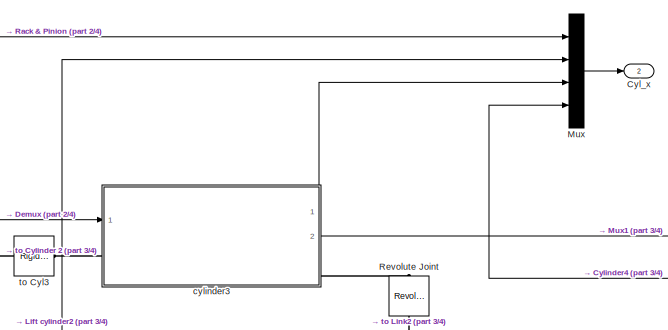
[diagram: Manipulator - part 1/4, top center region]
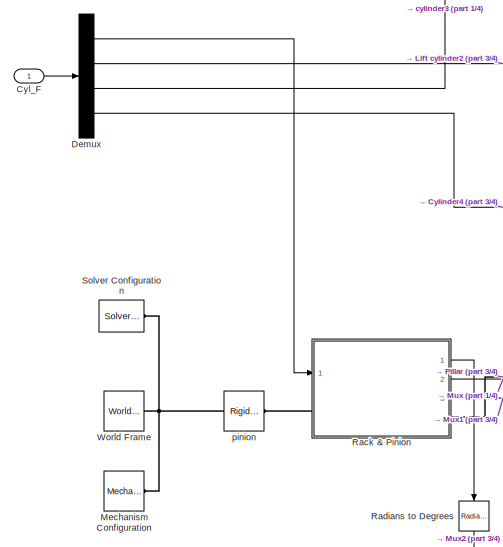
[diagram: Manipulator - part 2/4, middle left region]
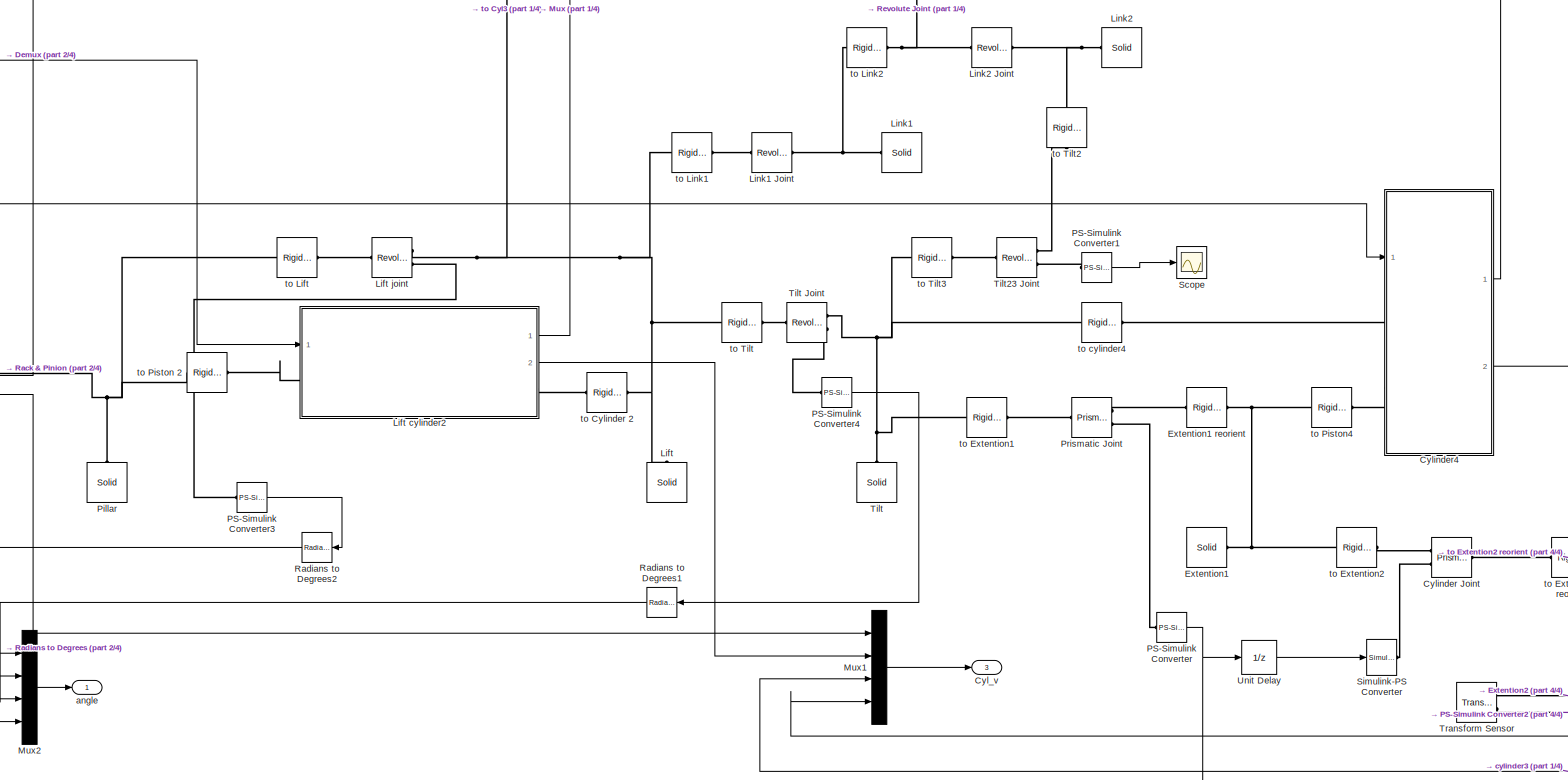
[diagram: Manipulator - part 3/4, central region]
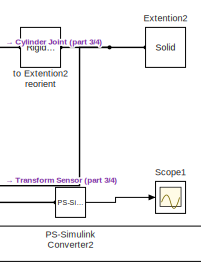
[diagram: Manipulator - part 4/4, bottom right region]
BLOCK [SubSystem] Manipulator
  Ports = [1, 3]
  RequestExecContextInheritance = off
BLOCK [Inport] Manipulator/Cyl_F
  IconDisplay = Port number
BLOCK [Outport] Manipulator/Cyl_v
  IconDisplay = Port number
  Port = 3
BLOCK [Outport] Manipulator/Cyl_x
  IconDisplay = Port number
  Port = 2
BLOCK [Reference] Manipulator/Cylinder Joint  REF=sm_lib/Joints/Prismatic
Joint
  BlockFunction = simmechanics.library.joints.prismatic_joint
  ClassName = PrismaticJoint
  CompositeWrenchDir = FollowerOnBase
  CompositeWrenchFrame = BaseFrame
  DampingCoefficient = 0
  DampingCoefficientUnits = N/(m/s)
  EquilibriumPosition = 0
  EquilibriumPositionUnits = m
  LogSimulationData = off
  MotionActuationMode = InputMotion
  Ports = [0, 0, 0, 0, 0, 2, 1]
  PositionTargetPriority = High
  PositionTargetSpecify = off
  PositionTargetValue = 0
  PositionTargetValueUnits = m
  SenseAcceleration = off
  SenseConstraintForce = off
  SenseConstraintForceX = off
  SenseConstraintForceY = off
  SenseConstraintForceZ = off
  SenseConstraintTorque = off
  SenseConstraintTorqueX = off
  SenseConstraintTorqueY = off
  SenseConstraintTorqueZ = off
  SensePosition = off
  SenseTorqueForce = off
  SenseTotalForce = off
  SenseTotalForceX = off
  SenseTotalForceY = off
  SenseTotalForceZ = off
  SenseTotalTorque = off
  SenseTotalTorqueX = off
  SenseTotalTorqueY = off
  SenseTotalTorqueZ = off
  SenseVelocity = off
  SourceBlock = sm_lib/Joints/Prismatic\nJoint
  SourceType = Prismatic\nJoint
  SpringStiffness = 0
  SpringStiffnessUnits = N/m
  TorqueActuationMode = ComputedTorque
  VelocityTargetPriority = High
  VelocityTargetSpecify = off
  VelocityTargetValue = 0
  VelocityTargetValueUnits = m/s
BLOCK [SubSystem] Manipulator/Cylinder4
  Ports = [1, 2, 0, 0, 0, 2]
  RequestExecContextInheritance = off
BLOCK [Sum] Manipulator/Cylinder4/Add
  InputSameDT = off
  Inputs = +-
  OutDataTypeStr = Inherit: Inherit via internal rule
  Ports = [2, 1]
  SaturateOnIntegerOverflow = off
BLOCK [Constant] Manipulator/Cylinder4/Constant
  Value = Cyl4.x_min
BLOCK [Outport] Manipulator/Cylinder4/Cyl4_v
  IconDisplay = Port number
  Port = 2
BLOCK [Outport] Manipulator/Cylinder4/Cyl4_x
  IconDisplay = Port number
BLOCK [Reference] Manipulator/Cylinder4/Cylinder4  REF=sm_lib/Body Elements/Solid
  BlockFunction = simmechanics.library.body_elements.solid
  BrickDimensionUnits = m
  BrickDimensions = [1 1 1]
  CenterOfMass = Cylinder4.cm
  CenterOfMassUnits = m
  ClassName = Solid
  CylinderLength = Cylinder4.l
  CylinderLengthUnits = m
  CylinderRadius = Cylinder4.r
  CylinderRadiusUnits = m
  Density = 1000
  DensityBased = on
  DensityUnits = kg/(m^3)
  EllipsoidRadii = [1 1 1]
  EllipsoidRadiiUnits = m
  ExtGeomFileType = STEP
  ExtGeomFileUnits = m
  ExtrusionCrossSection = Lift.c
  ExtrusionCrossSectionUnits = m
  ExtrusionLength = Lift.l
  ExtrusionLengthUnits = m
  GeometryShape = Cylinder
  GraphicAmbientColor = [0.15 0.15 0.15 1.0]
  GraphicDiffuseColor = Cylinder2.rgb
  GraphicEmissiveColor = [0.0 0.0 0.0 1.0]
  GraphicOpacity = 1.0
  GraphicShininess = 75
  GraphicSpecularColor = [0.5 0.5 0.5 1.0]
  GraphicType = FromGeometry
  GraphicVisPropType = SimpleVisualProperties
  InertiaType = Custom
  LogSimulationData = off
  MarkerShape = Sphere
  MarkerSize = 10
  MarkerSizeUnits = m
  Mass = Cylinder4.m
  MassUnits = kg
  MomentsOfInertia = [1 1 1]
  MomentsOfInertiaUnits = kg*m^2
  PolygonNumSides = 3
  PolygonOuterRadius = 1
  PolygonOuterRadiusUnits = m
  Ports = [0, 0, 0, 0, 0, 0, 1]
  ProductsOfInertia = [0 0 0]
  ProductsOfInertiaUnits = kg*m^2
  RectangleSize = [1 1]
  RectangleSizeUnits = m
  RevolutionAngle = 180
  RevolutionAngleUnits = deg
  RevolutionCrossSection = [1 1; 1 -1; 2 -1; 2 1]
  RevolutionCrossSectionUnits = m
  RevolutionExtent = Full
  SourceBlock = sm_lib/Body Elements/Solid
  SourceType = Solid
  SphereRadius = 1
  SphereRadiusUnits = m
BLOCK [Reference] Manipulator/Cylinder4/Cylinder4 Joint  REF=sm_lib/Joints/Prismatic
Joint
  BlockFunction = simmechanics.library.joints.prismatic_joint
  ClassName = PrismaticJoint
  CompositeWrenchDir = FollowerOnBase
  CompositeWrenchFrame = BaseFrame
  DampingCoefficient = 0
  DampingCoefficientUnits = N/(m/s)
  EquilibriumPosition = 0
  EquilibriumPositionUnits = m
  LogSimulationData = off
  MotionActuationMode = ComputedMotion
  Ports = [0, 0, 0, 0, 0, 2, 2]
  PositionTargetPriority = High
  PositionTargetSpecify = off
  PositionTargetValue = 0
  PositionTargetValueUnits = m
  SenseAcceleration = off
  SenseConstraintForce = off
  SenseConstraintForceX = off
  SenseConstraintForceY = off
  SenseConstraintForceZ = off
  SenseConstraintTorque = off
  SenseConstraintTorqueX = off
  SenseConstraintTorqueY = off
  SenseConstraintTorqueZ = off
  SensePosition = off
  SenseTorqueForce = off
  SenseTotalForce = off
  SenseTotalForceX = off
  SenseTotalForceY = off
  SenseTotalForceZ = off
  SenseTotalTorque = off
  SenseTotalTorqueX = off
  SenseTotalTorqueY = off
  SenseTotalTorqueZ = off
  SenseVelocity = on
  SourceBlock = sm_lib/Joints/Prismatic\nJoint
  SourceType = Prismatic\nJoint
  SpringStiffness = 0
  SpringStiffnessUnits = N/m
  TorqueActuationMode = InputTorque
  VelocityTargetPriority = High
  VelocityTargetSpecify = off
  VelocityTargetValue = 0
  VelocityTargetValueUnits = m/s
BLOCK [Reference] Manipulator/Cylinder4/Cyloinder4 joint  REF=sm_lib/Joints/Revolute Joint
  BlockFunction = simmechanics.library.joints.revolute_joint
  ClassName = RevoluteJoint
  CompositeWrenchDir = FollowerOnBase
  CompositeWrenchFrame = BaseFrame
  DampingCoefficient = 0
  DampingCoefficientUnits = N*m/(deg/s)
  EquilibriumPosition = 0
  EquilibriumPositionUnits = deg
  LogSimulationData = off
  MotionActuationMode = ComputedMotion
  Ports = [0, 0, 0, 0, 0, 1, 1]
  PositionTargetPriority = High
  PositionTargetSpecify = off
  PositionTargetValue = 0
  PositionTargetValueUnits = deg
  SenseAcceleration = off
  SenseConstraintForce = off
  SenseConstraintForceX = off
  SenseConstraintForceY = off
  SenseConstraintForceZ = off
  SenseConstraintTorque = off
  SenseConstraintTorqueX = off
  SenseConstraintTorqueY = off
  SenseConstraintTorqueZ = off
  SensePosition = off
  SenseTorqueForce = off
  SenseTotalForce = off
  SenseTotalForceX = off
  SenseTotalForceY = off
  SenseTotalForceZ = off
  SenseTotalTorque = off
  SenseTotalTorqueX = off
  SenseTotalTorqueY = off
  SenseTotalTorqueZ = off
  SenseVelocity = off
  SourceBlock = sm_lib/Joints/Revolute Joint
  SourceType = Revolute Joint
  SpringStiffness = 0
  SpringStiffnessUnits = N*m/deg
  TorqueActuationMode = NoTorque
  VelocityTargetPriority = High
  VelocityTargetSpecify = off
  VelocityTargetValue = 0
  VelocityTargetValueUnits = deg/s
BLOCK [Inport] Manipulator/Cylinder4/F4
  IconDisplay = Port number
BLOCK [Reference] Manipulator/Cylinder4/PS-Simulink Converter1  REF=nesl_utility/PS-Simulink
Converter
  AffineConversion = off
  Frequencies = []
  LeftPortType = input
  PhysicalDomain = network_engine_domain
  Ports = [0, 1, 0, 0, 0, 1]
  PseudoPeriodic = off
  RightPortType = output
  SourceBlock = nesl_utility/PS-Simulink\nConverter
  SourceType = PS-Simulink\nConverter
  SubClassName = ps_output
  Unit = 1
BLOCK [Reference] Manipulator/Cylinder4/PS-Simulink Converter2  REF=nesl_utility/PS-Simulink
Converter
  AffineConversion = off
  Frequencies = []
  LeftPortType = input
  PhysicalDomain = network_engine_domain
  Ports = [0, 1, 0, 0, 0, 1]
  PseudoPeriodic = off
  RightPortType = output
  SourceBlock = nesl_utility/PS-Simulink\nConverter
  SourceType = PS-Simulink\nConverter
  SubClassName = ps_output
  Unit = 1
BLOCK [Reference] Manipulator/Cylinder4/Piston4 joint  REF=sm_lib/Joints/Revolute Joint
  BlockFunction = simmechanics.library.joints.revolute_joint
  ClassName = RevoluteJoint
  CompositeWrenchDir = FollowerOnBase
  CompositeWrenchFrame = BaseFrame
  DampingCoefficient = 0
  DampingCoefficientUnits = N*m/(deg/s)
  EquilibriumPosition = 0
  EquilibriumPositionUnits = deg
  LogSimulationData = off
  MotionActuationMode = ComputedMotion
  Ports = [0, 0, 0, 0, 0, 1, 1]
  PositionTargetPriority = High
  PositionTargetSpecify = off
  PositionTargetValue = 0
  PositionTargetValueUnits = deg
  SenseAcceleration = off
  SenseConstraintForce = off
  SenseConstraintForceX = off
  SenseConstraintForceY = off
  SenseConstraintForceZ = off
  SenseConstraintTorque = off
  SenseConstraintTorqueX = off
  SenseConstraintTorqueY = off
  SenseConstraintTorqueZ = off
  SensePosition = off
  SenseTorqueForce = off
  SenseTotalForce = off
  SenseTotalForceX = off
  SenseTotalForceY = off
  SenseTotalForceZ = off
  SenseTotalTorque = off
  SenseTotalTorqueX = off
  SenseTotalTorqueY = off
  SenseTotalTorqueZ = off
  SenseVelocity = off
  SourceBlock = sm_lib/Joints/Revolute Joint
  SourceType = Revolute Joint
  SpringStiffness = 0
  SpringStiffnessUnits = N*m/deg
  TorqueActuationMode = NoTorque
  VelocityTargetPriority = High
  VelocityTargetSpecify = off
  VelocityTargetValue = 0
  VelocityTargetValueUnits = deg/s
BLOCK [Reference] Manipulator/Cylinder4/Piston4 solid  REF=sm_lib/Body Elements/Solid
  BlockFunction = simmechanics.library.body_elements.solid
  BrickDimensionUnits = m
  BrickDimensions = [1 1 1]
  CenterOfMass = Piston4.cm
  CenterOfMassUnits = m
  ClassName = Solid
  CylinderLength = Piston4.l
  CylinderLengthUnits = m
  CylinderRadius = Piston4.r
  CylinderRadiusUnits = m
  Density = 1000
  DensityBased = on
  DensityUnits = kg/(m^3)
  EllipsoidRadii = [1 1 1]
  EllipsoidRadiiUnits = m
  ExtGeomFileType = STEP
  ExtGeomFileUnits = m
  ExtrusionCrossSection = Lift.c
  ExtrusionCrossSectionUnits = m
  ExtrusionLength = Lift.l
  ExtrusionLengthUnits = m
  GeometryShape = Cylinder
  GraphicAmbientColor = [0.15 0.15 0.15 1.0]
  GraphicDiffuseColor = Piston2.rgb
  GraphicEmissiveColor = [0.0 0.0 0.0 1.0]
  GraphicOpacity = 1.0
  GraphicShininess = 75
  GraphicSpecularColor = [0.5 0.5 0.5 1.0]
  GraphicType = FromGeometry
  GraphicVisPropType = SimpleVisualProperties
  InertiaType = Custom
  LogSimulationData = off
  MarkerShape = Sphere
  MarkerSize = 10
  MarkerSizeUnits = m
  Mass = Piston4.m
  MassUnits = kg
  MomentsOfInertia = [1 1 1]
  MomentsOfInertiaUnits = kg*m^2
  PolygonNumSides = 3
  PolygonOuterRadius = 1
  PolygonOuterRadiusUnits = m
  Ports = [0, 0, 0, 0, 0, 0, 1]
  ProductsOfInertia = [0 0 0]
  ProductsOfInertiaUnits = kg*m^2
  RectangleSize = [1 1]
  RectangleSizeUnits = m
  RevolutionAngle = 180
  RevolutionAngleUnits = deg
  RevolutionCrossSection = [1 1; 1 -1; 2 -1; 2 1]
  RevolutionCrossSectionUnits = m
  RevolutionExtent = Full
  SourceBlock = sm_lib/Body Elements/Solid
  SourceType = Solid
  SphereRadius = 1
  SphereRadiusUnits = m
BLOCK [Reference] Manipulator/Cylinder4/Simulink-PS Converter1  REF=nesl_utility/Simulink-PS
Converter
  AffineConversion = off
  Frequencies = []
  InputFilterTimeConstant = 0.001
  InputFiltering = off
  LeftPortType = input
  NoiseDistribution = none
  NoiseParameters = []
  PhysicalDomain = network_engine_domain
  Ports = [1, 0, 0, 0, 0, 0, 1]
  PseudoPeriodic = off
  RightPortType = output
  SimscapeFilterOrder = 1
  SourceBlock = nesl_utility/Simulink-PS\nConverter
  SourceType = Simulink-PS\nConverter
  SubClassName = ps_input
  UdotUserProvided = 1
  Unit = 1
BLOCK [Reference] Manipulator/Cylinder4/Transform Sensor  REF=sm_lib/Frames and
Transforms/Transform
Sensor
  BlockFunction = simmechanics.library.frames_transforms.transform_sensor
  ClassName = TransformSensor
  LogSimulationData = off
  MeasurementFrame = World
  Ports = [0, 0, 0, 0, 0, 1, 2]
  SenseAlpha1 = off
  SenseAlpha2 = off
  SenseAlpha3 = off
  SenseAlphaX = off
  SenseAlphaY = off
  SenseAlphaZ = off
  SenseAngle = off
  SenseAngle1 = off
  SenseAngle2 = off
  SenseAngle3 = off
  SenseAxis = off
  SenseAzim = off
  SenseAzimDDot = off
  SenseAzimDot = off
  SenseDist = on
  SenseDistDDot = off
  SenseDistDot = off
  SenseInc = off
  SenseIncDDot = off
  SenseIncDot = off
  SenseOmega1 = off
  SenseOmega2 = off
  SenseOmega3 = off
  SenseOmegaX = off
  SenseOmegaY = off
  SenseOmegaZ = off
  SenseQ = off
  SenseQDDot = off
  SenseQDot = off
  SenseR = off
  SenseRDDot = off
  SenseRDot = off
  SenseRad = off
  SenseRadDDot = off
  SenseRadDot = off
  SenseX = off
  SenseXDDot = off
  SenseXDot = off
  SenseY = off
  SenseYDDot = off
  SenseYDot = off
  SenseZ = off
  SenseZDDot = off
  SenseZDot = off
  SourceBlock = sm_lib/Frames and\nTransforms/Transform\nSensor
  SourceType = Transform\nSensor
BLOCK [PMIOPort] Manipulator/Cylinder4/to Cylinder4
  Port = 1
  Side = Left
BLOCK [PMIOPort] Manipulator/Cylinder4/to Piston4
  Port = 2
  Side = Left
BLOCK [Reference] Manipulator/Cylinder4/to cylinder4 Solid  REF=sm_lib/Frames and
Transforms/Rigid
Transform
  BaseAlignAxisA = +Y
  BaseAlignAxisB = +Z
  BlockFunction = simmechanics.library.frames_transforms.rigid_transform
  ClassName = RigidTransform
  FollAlignAxisA = +X
  FollAlignAxisB = +Y
  LogSimulationData = off
  Ports = [0, 0, 0, 0, 0, 1, 1]
  RotationAngle = 90
  RotationAngleUnits = deg
  RotationArbitraryAxis = [0 0 1]
  RotationMatrix = [1 0 0; 0 1 0; 0 0 1]
  RotationMethod = StandardAxis
  RotationStandardAxis = +Y
  SourceBlock = sm_lib/Frames and\nTransforms/Rigid\nTransform
  SourceType = Rigid\nTransform
  TranslationCartesianOffset = Cylinder4.pos
  TranslationLengthUnit = m
  TranslationMethod = StandardAxis
  TranslationROffset = 0
  TranslationROffsetUnits = m
  TranslationStandardAxis = +X
  TranslationStandardOffset = Cylinder4.l/2
  TranslationThetaOffset = 0
  TranslationThetaOffsetUnits = deg
  TranslationZOffset = 0
  TranslationZOffsetUnits = m
BLOCK [Reference] Manipulator/Cylinder4/to piston4 Solid  REF=sm_lib/Frames and
Transforms/Rigid
Transform
  BaseAlignAxisA = +Y
  BaseAlignAxisB = +Z
  BlockFunction = simmechanics.library.frames_transforms.rigid_transform
  ClassName = RigidTransform
  FollAlignAxisA = +X
  FollAlignAxisB = +Y
  LogSimulationData = off
  Ports = [0, 0, 0, 0, 0, 1, 1]
  RotationAngle = 90
  RotationAngleUnits = deg
  RotationArbitraryAxis = [0 0 1]
  RotationMatrix = [1 0 0; 0 1 0; 0 0 1]
  RotationMethod = StandardAxis
  RotationStandardAxis = +Y
  SourceBlock = sm_lib/Frames and\nTransforms/Rigid\nTransform
  SourceType = Rigid\nTransform
  TranslationCartesianOffset = Cylinder4.pos
  TranslationLengthUnit = m
  TranslationMethod = StandardAxis
  TranslationROffset = 0
  TranslationROffsetUnits = m
  TranslationStandardAxis = -X
  TranslationStandardOffset = Piston4.l/2
  TranslationThetaOffset = 0
  TranslationThetaOffsetUnits = deg
  TranslationZOffset = 0
  TranslationZOffsetUnits = m
BLOCK [Demux] Manipulator/Demux
  DisplayOption = bar
  Ports = [1, 4]
BLOCK [Reference] Manipulator/Extention1  REF=sm_lib/Body Elements/Solid
  BlockFunction = simmechanics.library.body_elements.solid
  BrickDimensionUnits = m
  BrickDimensions = [1 1 1]
  CenterOfMass = Extention1.cm
  CenterOfMassUnits = m
  ClassName = Solid
  CylinderLength = 1
  CylinderLengthUnits = m
  CylinderRadius = 1
  CylinderRadiusUnits = m
  Density = 1000
  DensityBased = on
  DensityUnits = kg/(m^3)
  EllipsoidRadii = [1 1 1]
  EllipsoidRadiiUnits = m
  ExtGeomFileType = STEP
  ExtGeomFileUnits = m
  ExtrusionCrossSection = Extention1.c
  ExtrusionCrossSectionUnits = m
  ExtrusionLength = Extention1.l+0.1
  ExtrusionLengthUnits = m
  GeometryShape = GeneralExtrusion
  GraphicAmbientColor = [0.15 0.15 0.15 1.0]
  GraphicDiffuseColor = Extention1.rgb
  GraphicEmissiveColor = [0.0 0.0 0.0 1.0]
  GraphicOpacity = 1.0
  GraphicShininess = 75
  GraphicSpecularColor = [0.5 0.5 0.5 1.0]
  GraphicType = FromGeometry
  GraphicVisPropType = SimpleVisualProperties
  InertiaType = Custom
  LogSimulationData = off
  MarkerShape = Sphere
  MarkerSize = 10
  MarkerSizeUnits = m
  Mass = Extention1.m
  MassUnits = kg
  MomentsOfInertia = [1 1 1]
  MomentsOfInertiaUnits = kg*m^2
  PolygonNumSides = 3
  PolygonOuterRadius = 1
  PolygonOuterRadiusUnits = m
  Ports = [0, 0, 0, 0, 0, 0, 1]
  ProductsOfInertia = [0 0 0]
  ProductsOfInertiaUnits = kg*m^2
  RectangleSize = [1 1]
  RectangleSizeUnits = m
  RevolutionAngle = 180
  RevolutionAngleUnits = deg
  RevolutionCrossSection = [1 1; 1 -1; 2 -1; 2 1]
  RevolutionCrossSectionUnits = m
  RevolutionExtent = Full
  SourceBlock = sm_lib/Body Elements/Solid
  SourceType = Solid
  SphereRadius = 1
  SphereRadiusUnits = m
BLOCK [Reference] Manipulator/Extention1 reorient  REF=sm_lib/Frames and
Transforms/Rigid
Transform
  BaseAlignAxisA = +Y
  BaseAlignAxisB = +Z
  BlockFunction = simmechanics.library.frames_transforms.rigid_transform
  ClassName = RigidTransform
  FollAlignAxisA = +X
  FollAlignAxisB = +Y
  LogSimulationData = off
  Ports = [0, 0, 0, 0, 0, 1, 1]
  RotationAngle = -90
  RotationAngleUnits = deg
  RotationArbitraryAxis = [0 0 1]
  RotationMatrix = [1 0 0; 0 1 0; 0 0 1]
  RotationMethod = StandardAxis
  RotationStandardAxis = +Y
  SourceBlock = sm_lib/Frames and\nTransforms/Rigid\nTransform
  SourceType = Rigid\nTransform
  TranslationCartesianOffset = Extention1.j
  TranslationLengthUnit = m
  TranslationMethod = None
  TranslationROffset = 0
  TranslationROffsetUnits = m
  TranslationStandardAxis = +Z
  TranslationStandardOffset = 0
  TranslationThetaOffset = 0
  TranslationThetaOffsetUnits = deg
  TranslationZOffset = 0
  TranslationZOffsetUnits = m
BLOCK [Reference] Manipulator/Extention2  REF=sm_lib/Body Elements/Solid
  BlockFunction = simmechanics.library.body_elements.solid
  BrickDimensionUnits = m
  BrickDimensions = [1 1 1]
  CenterOfMass = Extention2.cm
  CenterOfMassUnits = m
  ClassName = Solid
  CylinderLength = 1
  CylinderLengthUnits = m
  CylinderRadius = 1
  CylinderRadiusUnits = m
  Density = 1000
  DensityBased = on
  DensityUnits = kg/(m^3)
  EllipsoidRadii = [1 1 1]
  EllipsoidRadiiUnits = m
  ExtGeomFileType = STEP
  ExtGeomFileUnits = m
  ExtrusionCrossSection = Extention2.c
  ExtrusionCrossSectionUnits = m
  ExtrusionLength = Extention2.l
  ExtrusionLengthUnits = m
  GeometryShape = GeneralExtrusion
  GraphicAmbientColor = [0.15 0.15 0.15 1.0]
  GraphicDiffuseColor = [Extention2.rgb]
  GraphicEmissiveColor = [0.0 0.0 0.0 1.0]
  GraphicOpacity = 1.0
  GraphicShininess = 75
  GraphicSpecularColor = [0.5 0.5 0.5 1.0]
  GraphicType = FromGeometry
  GraphicVisPropType = SimpleVisualProperties
  InertiaType = Custom
  LogSimulationData = off
  MarkerShape = Sphere
  MarkerSize = 10
  MarkerSizeUnits = m
  Mass = Extention2.m
  MassUnits = kg
  MomentsOfInertia = [1 1 1]
  MomentsOfInertiaUnits = kg*m^2
  PolygonNumSides = 3
  PolygonOuterRadius = 1
  PolygonOuterRadiusUnits = m
  Ports = [0, 0, 0, 0, 0, 0, 1]
  ProductsOfInertia = [0 0 0]
  ProductsOfInertiaUnits = kg*m^2
  RectangleSize = [1 1]
  RectangleSizeUnits = m
  RevolutionAngle = 180
  RevolutionAngleUnits = deg
  RevolutionCrossSection = [1 1; 1 -1; 2 -1; 2 1]
  RevolutionCrossSectionUnits = m
  RevolutionExtent = Full
  SourceBlock = sm_lib/Body Elements/Solid
  SourceType = Solid
  SphereRadius = 1
  SphereRadiusUnits = m
BLOCK [Reference] Manipulator/Lift  REF=sm_lib/Body Elements/Solid
  BlockFunction = simmechanics.library.body_elements.solid
  BrickDimensionUnits = m
  BrickDimensions = [1 1 1]
  CenterOfMass = [Lift.cm]
  CenterOfMassUnits = m
  ClassName = Solid
  CylinderLength = 1
  CylinderLengthUnits = m
  CylinderRadius = 1
  CylinderRadiusUnits = m
  Density = 1000
  DensityBased = on
  DensityUnits = kg/(m^3)
  EllipsoidRadii = [1 1 1]
  EllipsoidRadiiUnits = m
  ExtGeomFileType = STEP
  ExtGeomFileUnits = m
  ExtrusionCrossSection = [Lift.c]
  ExtrusionCrossSectionUnits = m
  ExtrusionLength = Lift.l
  ExtrusionLengthUnits = m
  GeometryShape = GeneralExtrusion
  GraphicAmbientColor = [0.15 0.15 0.15 1.0]
  GraphicDiffuseColor = [Lift.rgb]
  GraphicEmissiveColor = [0.0 0.0 0.0 1.0]
  GraphicOpacity = 1.0
  GraphicShininess = 75
  GraphicSpecularColor = [0.5 0.5 0.5 1.0]
  GraphicType = FromGeometry
  GraphicVisPropType = SimpleVisualProperties
  InertiaType = Custom
  LogSimulationData = off
  MarkerShape = Sphere
  MarkerSize = 10
  MarkerSizeUnits = m
  Mass = Lift.m
  MassUnits = kg
  MomentsOfInertia = [1 1 1]
  MomentsOfInertiaUnits = kg*m^2
  PolygonNumSides = 3
  PolygonOuterRadius = 1
  PolygonOuterRadiusUnits = m
  Ports = [0, 0, 0, 0, 0, 0, 1]
  ProductsOfInertia = [0 0 0]
  ProductsOfInertiaUnits = kg*m^2
  RectangleSize = [1 1]
  RectangleSizeUnits = m
  RevolutionAngle = 180
  RevolutionAngleUnits = deg
  RevolutionCrossSection = [1 1; 1 -1; 2 -1; 2 1]
  RevolutionCrossSectionUnits = m
  RevolutionExtent = Full
  SourceBlock = sm_lib/Body Elements/Solid
  SourceType = Solid
  SphereRadius = 1
  SphereRadiusUnits = m
BLOCK [SubSystem] Manipulator/Lift cylinder2
  Ports = [1, 2, 0, 0, 0, 1, 1]
  RequestExecContextInheritance = off
BLOCK [Sum] Manipulator/Lift cylinder2/Add
  InputSameDT = off
  Inputs = +-
  OutDataTypeStr = Inherit: Inherit via internal rule
  Ports = [2, 1]
  SaturateOnIntegerOverflow = off
BLOCK [Constant] Manipulator/Lift cylinder2/Constant
  Value = Cyl2.x_min
BLOCK [Outport] Manipulator/Lift cylinder2/Cyl2_v
  IconDisplay = Port number
  Port = 2
BLOCK [Outport] Manipulator/Lift cylinder2/Cyl2_x
  IconDisplay = Port number
BLOCK [Reference] Manipulator/Lift cylinder2/Cylinder2  REF=sm_lib/Body Elements/Solid
  BlockFunction = simmechanics.library.body_elements.solid
  BrickDimensionUnits = m
  BrickDimensions = [1 1 1]
  CenterOfMass = [Cylinder2.cm]
  CenterOfMassUnits = m
  ClassName = Solid
  CylinderLength = Cylinder2.l
  CylinderLengthUnits = m
  CylinderRadius = Cylinder2.r
  CylinderRadiusUnits = m
  Density = 1000
  DensityBased = on
  DensityUnits = kg/(m^3)
  EllipsoidRadii = [1 1 1]
  EllipsoidRadiiUnits = m
  ExtGeomFileType = STEP
  ExtGeomFileUnits = m
  ExtrusionCrossSection = [1 1; -1 1; -1 -1; 1 -1]
  ExtrusionCrossSectionUnits = m
  ExtrusionLength = 1
  ExtrusionLengthUnits = m
  GeometryShape = Cylinder
  GraphicAmbientColor = [0.15 0.15 0.15 1.0]
  GraphicDiffuseColor = [Cylinder2.rgb]
  GraphicEmissiveColor = [0.0 0.0 0.0 1.0]
  GraphicOpacity = 1.0
  GraphicShininess = 75
  GraphicSpecularColor = [0.5 0.5 0.5 1.0]
  GraphicType = FromGeometry
  GraphicVisPropType = SimpleVisualProperties
  InertiaType = Custom
  LogSimulationData = off
  MarkerShape = Sphere
  MarkerSize = 10
  MarkerSizeUnits = m
  Mass = Cylinder2.m
  MassUnits = kg
  MomentsOfInertia = [1 1 1]
  MomentsOfInertiaUnits = kg*m^2
  PolygonNumSides = 3
  PolygonOuterRadius = 1
  PolygonOuterRadiusUnits = m
  Ports = [0, 0, 0, 0, 0, 0, 1]
  ProductsOfInertia = [0 0 0]
  ProductsOfInertiaUnits = kg*m^2
  RectangleSize = [1 1]
  RectangleSizeUnits = m
  RevolutionAngle = 180
  RevolutionAngleUnits = deg
  RevolutionCrossSection = [1 1; 1 -1; 2 -1; 2 1]
  RevolutionCrossSectionUnits = m
  RevolutionExtent = Full
  SourceBlock = sm_lib/Body Elements/Solid
  SourceType = Solid
  SphereRadius = 1
  SphereRadiusUnits = m
BLOCK [Reference] Manipulator/Lift cylinder2/Cylinder2 Joint  REF=sm_lib/Joints/Prismatic
Joint
  BlockFunction = simmechanics.library.joints.prismatic_joint
  ClassName = PrismaticJoint
  CompositeWrenchDir = FollowerOnBase
  CompositeWrenchFrame = BaseFrame
  DampingCoefficient = 0
  DampingCoefficientUnits = N/(m/s)
  EquilibriumPosition = 0
  EquilibriumPositionUnits = m
  LogSimulationData = off
  MotionActuationMode = ComputedMotion
  Ports = [0, 0, 0, 0, 0, 2, 2]
  PositionTargetPriority = High
  PositionTargetSpecify = off
  PositionTargetValue = 0
  PositionTargetValueUnits = m
  SenseAcceleration = off
  SenseConstraintForce = off
  SenseConstraintForceX = off
  SenseConstraintForceY = off
  SenseConstraintForceZ = off
  SenseConstraintTorque = off
  SenseConstraintTorqueX = off
  SenseConstraintTorqueY = off
  SenseConstraintTorqueZ = off
  SensePosition = off
  SenseTorqueForce = off
  SenseTotalForce = off
  SenseTotalForceX = off
  SenseTotalForceY = off
  SenseTotalForceZ = off
  SenseTotalTorque = off
  SenseTotalTorqueX = off
  SenseTotalTorqueY = off
  SenseTotalTorqueZ = off
  SenseVelocity = on
  SourceBlock = sm_lib/Joints/Prismatic\nJoint
  SourceType = Prismatic\nJoint
  SpringStiffness = 0
  SpringStiffnessUnits = N/m
  TorqueActuationMode = InputTorque
  VelocityTargetPriority = High
  VelocityTargetSpecify = off
  VelocityTargetValue = 0
  VelocityTargetValueUnits = m/s
BLOCK [Reference] Manipulator/Lift cylinder2/Cylinder2 con  REF=sm_lib/Joints/Revolute Joint
  BlockFunction = simmechanics.library.joints.revolute_joint
  ClassName = RevoluteJoint
  CompositeWrenchDir = FollowerOnBase
  CompositeWrenchFrame = BaseFrame
  DampingCoefficient = 0
  DampingCoefficientUnits = N*m/(deg/s)
  EquilibriumPosition = 0
  EquilibriumPositionUnits = deg
  LogSimulationData = off
  MotionActuationMode = ComputedMotion
  Ports = [0, 0, 0, 0, 0, 1, 1]
  PositionTargetPriority = High
  PositionTargetSpecify = off
  PositionTargetValue = 0
  PositionTargetValueUnits = deg
  SenseAcceleration = off
  SenseConstraintForce = off
  SenseConstraintForceX = off
  SenseConstraintForceY = off
  SenseConstraintForceZ = off
  SenseConstraintTorque = off
  SenseConstraintTorqueX = off
  SenseConstraintTorqueY = off
  SenseConstraintTorqueZ = off
  SensePosition = off
  SenseTorqueForce = off
  SenseTotalForce = off
  SenseTotalForceX = off
  SenseTotalForceY = off
  SenseTotalForceZ = off
  SenseTotalTorque = off
  SenseTotalTorqueX = off
  SenseTotalTorqueY = off
  SenseTotalTorqueZ = off
  SenseVelocity = off
  SourceBlock = sm_lib/Joints/Revolute Joint
  SourceType = Revolute Joint
  SpringStiffness = 0
  SpringStiffnessUnits = N*m/deg
  TorqueActuationMode = NoTorque
  VelocityTargetPriority = High
  VelocityTargetSpecify = off
  VelocityTargetValue = 0
  VelocityTargetValueUnits = deg/s
BLOCK [Inport] Manipulator/Lift cylinder2/F2
  IconDisplay = Port number
BLOCK [Reference] Manipulator/Lift cylinder2/PS-Simulink Converter  REF=nesl_utility/PS-Simulink
Converter
  AffineConversion = off
  Frequencies = []
  LeftPortType = input
  PhysicalDomain = network_engine_domain
  Ports = [0, 1, 0, 0, 0, 1]
  PseudoPeriodic = off
  RightPortType = output
  SourceBlock = nesl_utility/PS-Simulink\nConverter
  SourceType = PS-Simulink\nConverter
  SubClassName = ps_output
  Unit = 1
BLOCK [Reference] Manipulator/Lift cylinder2/PS-Simulink Converter1  REF=nesl_utility/PS-Simulink
Converter
  AffineConversion = off
  Frequencies = []
  LeftPortType = input
  PhysicalDomain = network_engine_domain
  Ports = [0, 1, 0, 0, 0, 1]
  PseudoPeriodic = off
  RightPortType = output
  SourceBlock = nesl_utility/PS-Simulink\nConverter
  SourceType = PS-Simulink\nConverter
  SubClassName = ps_output
  Unit = 1
BLOCK [Reference] Manipulator/Lift cylinder2/Piston2  REF=sm_lib/Body Elements/Solid
  BlockFunction = simmechanics.library.body_elements.solid
  BrickDimensionUnits = m
  BrickDimensions = [1 1 1]
  CenterOfMass = [Piston2.cm]
  CenterOfMassUnits = m
  ClassName = Solid
  CylinderLength = Piston2.l
  CylinderLengthUnits = m
  CylinderRadius = Piston2.r
  CylinderRadiusUnits = m
  Density = 1000
  DensityBased = on
  DensityUnits = kg/(m^3)
  EllipsoidRadii = [1 1 1]
  EllipsoidRadiiUnits = m
  ExtGeomFileType = STEP
  ExtGeomFileUnits = m
  ExtrusionCrossSection = [1 1; -1 1; -1 -1; 1 -1]
  ExtrusionCrossSectionUnits = m
  ExtrusionLength = 1
  ExtrusionLengthUnits = m
  GeometryShape = Cylinder
  GraphicAmbientColor = [0.15 0.15 0.15 1.0]
  GraphicDiffuseColor = [Piston2.rgb]
  GraphicEmissiveColor = [0.0 0.0 0.0 1.0]
  GraphicOpacity = 1.0
  GraphicShininess = 75
  GraphicSpecularColor = [0.5 0.5 0.5 1.0]
  GraphicType = FromGeometry
  GraphicVisPropType = SimpleVisualProperties
  InertiaType = Custom
  LogSimulationData = off
  MarkerShape = Sphere
  MarkerSize = 10
  MarkerSizeUnits = m
  Mass = Piston2.m
  MassUnits = kg
  MomentsOfInertia = [1 1 1]
  MomentsOfInertiaUnits = kg*m^2
  PolygonNumSides = 3
  PolygonOuterRadius = 1
  PolygonOuterRadiusUnits = m
  Ports = [0, 0, 0, 0, 0, 0, 1]
  ProductsOfInertia = [0 0 0]
  ProductsOfInertiaUnits = kg*m^2
  RectangleSize = [1 1]
  RectangleSizeUnits = m
  RevolutionAngle = 180
  RevolutionAngleUnits = deg
  RevolutionCrossSection = [1 1; 1 -1; 2 -1; 2 1]
  RevolutionCrossSectionUnits = m
  RevolutionExtent = Full
  SourceBlock = sm_lib/Body Elements/Solid
  SourceType = Solid
  SphereRadius = 1
  SphereRadiusUnits = m
BLOCK [Reference] Manipulator/Lift cylinder2/Piston2 con  REF=sm_lib/Joints/Revolute Joint
  BlockFunction = simmechanics.library.joints.revolute_joint
  ClassName = RevoluteJoint
  CompositeWrenchDir = FollowerOnBase
  CompositeWrenchFrame = BaseFrame
  DampingCoefficient = 0
  DampingCoefficientUnits = N*m/(deg/s)
  EquilibriumPosition = 0
  EquilibriumPositionUnits = deg
  LogSimulationData = off
  MotionActuationMode = ComputedMotion
  Ports = [0, 0, 0, 0, 0, 1, 1]
  PositionTargetPriority = High
  PositionTargetSpecify = off
  PositionTargetValue = 0
  PositionTargetValueUnits = deg
  SenseAcceleration = off
  SenseConstraintForce = off
  SenseConstraintForceX = off
  SenseConstraintForceY = off
  SenseConstraintForceZ = off
  SenseConstraintTorque = off
  SenseConstraintTorqueX = off
  SenseConstraintTorqueY = off
  SenseConstraintTorqueZ = off
  SensePosition = off
  SenseTorqueForce = off
  SenseTotalForce = off
  SenseTotalForceX = off
  SenseTotalForceY = off
  SenseTotalForceZ = off
  SenseTotalTorque = off
  SenseTotalTorqueX = off
  SenseTotalTorqueY = off
  SenseTotalTorqueZ = off
  SenseVelocity = off
  SourceBlock = sm_lib/Joints/Revolute Joint
  SourceType = Revolute Joint
  SpringStiffness = 0
  SpringStiffnessUnits = N*m/deg
  TorqueActuationMode = NoTorque
  VelocityTargetPriority = High
  VelocityTargetSpecify = off
  VelocityTargetValue = 0
  VelocityTargetValueUnits = deg/s
BLOCK [Reference] Manipulator/Lift cylinder2/Rigid Transform  REF=sm_lib/Frames and
Transforms/Rigid
Transform
  BaseAlignAxisA = +Y
  BaseAlignAxisB = +Z
  BlockFunction = simmechanics.library.frames_transforms.rigid_transform
  ClassName = RigidTransform
  FollAlignAxisA = +X
  FollAlignAxisB = +Y
  LogSimulationData = off
  Ports = [0, 0, 0, 0, 0, 1, 1]
  RotationAngle = 90
  RotationAngleUnits = deg
  RotationArbitraryAxis = [0 0 1]
  RotationMatrix = [1 0 0; 0 1 0; 0 0 1]
  RotationMethod = StandardAxis
  RotationStandardAxis = -X
  SourceBlock = sm_lib/Frames and\nTransforms/Rigid\nTransform
  SourceType = Rigid\nTransform
  TranslationCartesianOffset = [0 0 0]
  TranslationLengthUnit = m
  TranslationMethod = StandardAxis
  TranslationROffset = 0
  TranslationROffsetUnits = m
  TranslationStandardAxis = +Y
  TranslationStandardOffset = Piston2.l/2
  TranslationThetaOffset = 0
  TranslationThetaOffsetUnits = deg
  TranslationZOffset = 0
  TranslationZOffsetUnits = m
BLOCK [Reference] Manipulator/Lift cylinder2/Simulink-PS Converter  REF=nesl_utility/Simulink-PS
Converter
  AffineConversion = off
  Frequencies = []
  InputFilterTimeConstant = 0.001
  InputFiltering = off
  LeftPortType = input
  NoiseDistribution = none
  NoiseParameters = []
  PhysicalDomain = network_engine_domain
  Ports = [1, 0, 0, 0, 0, 0, 1]
  PseudoPeriodic = off
  RightPortType = output
  SimscapeFilterOrder = 1
  SourceBlock = nesl_utility/Simulink-PS\nConverter
  SourceType = Simulink-PS\nConverter
  SubClassName = ps_input
  UdotUserProvided = 1
  Unit = 1
BLOCK [Reference] Manipulator/Lift cylinder2/Transform Sensor  REF=sm_lib/Frames and
Transforms/Transform
Sensor
  BlockFunction = simmechanics.library.frames_transforms.transform_sensor
  ClassName = TransformSensor
  LogSimulationData = off
  MeasurementFrame = World
  Ports = [0, 0, 0, 0, 0, 1, 2]
  SenseAlpha1 = off
  SenseAlpha2 = off
  SenseAlpha3 = off
  SenseAlphaX = off
  SenseAlphaY = off
  SenseAlphaZ = off
  SenseAngle = off
  SenseAngle1 = off
  SenseAngle2 = off
  SenseAngle3 = off
  SenseAxis = off
  SenseAzim = off
  SenseAzimDDot = off
  SenseAzimDot = off
  SenseDist = on
  SenseDistDDot = off
  SenseDistDot = off
  SenseInc = off
  SenseIncDDot = off
  SenseIncDot = off
  SenseOmega1 = off
  SenseOmega2 = off
  SenseOmega3 = off
  SenseOmegaX = off
  SenseOmegaY = off
  SenseOmegaZ = off
  SenseQ = off
  SenseQDDot = off
  SenseQDot = off
  SenseR = off
  SenseRDDot = off
  SenseRDot = off
  SenseRad = off
  SenseRadDDot = off
  SenseRadDot = off
  SenseX = off
  SenseXDDot = off
  SenseXDot = off
  SenseY = off
  SenseYDDot = off
  SenseYDot = off
  SenseZ = off
  SenseZDDot = off
  SenseZDot = off
  SourceBlock = sm_lib/Frames and\nTransforms/Transform\nSensor
  SourceType = Transform\nSensor
BLOCK [Reference] Manipulator/Lift cylinder2/to Cylinder2 Solid  REF=sm_lib/Frames and
Transforms/Rigid
Transform
  BaseAlignAxisA = +Y
  BaseAlignAxisB = +Z
  BlockFunction = simmechanics.library.frames_transforms.rigid_transform
  ClassName = RigidTransform
  FollAlignAxisA = +X
  FollAlignAxisB = +Y
  LogSimulationData = off
  Ports = [0, 0, 0, 0, 0, 1, 1]
  RotationAngle = 90
  RotationAngleUnits = deg
  RotationArbitraryAxis = [0 0 1]
  RotationMatrix = [1 0 0; 0 1 0; 0 0 1]
  RotationMethod = StandardAxis
  RotationStandardAxis = -X
  SourceBlock = sm_lib/Frames and\nTransforms/Rigid\nTransform
  SourceType = Rigid\nTransform
  TranslationCartesianOffset = [0 0 0]
  TranslationLengthUnit = m
  TranslationMethod = StandardAxis
  TranslationROffset = 0
  TranslationROffsetUnits = m
  TranslationStandardAxis = -Y
  TranslationStandardOffset = Cylinder2.l/2
  TranslationThetaOffset = 0
  TranslationThetaOffsetUnits = deg
  TranslationZOffset = 0
  TranslationZOffsetUnits = m
BLOCK [PMIOPort] Manipulator/Lift cylinder2/to Lift
  Port = 2
  Side = Right
BLOCK [PMIOPort] Manipulator/Lift cylinder2/to Pillar
  Port = 1
  Side = Left
BLOCK [Reference] Manipulator/Lift joint  REF=sm_lib/Joints/Revolute Joint
  BlockFunction = simmechanics.library.joints.revolute_joint
  ClassName = RevoluteJoint
  CompositeWrenchDir = FollowerOnBase
  CompositeWrenchFrame = BaseFrame
  DampingCoefficient = 0
  DampingCoefficientUnits = N*m/(deg/s)
  EquilibriumPosition = 0
  EquilibriumPositionUnits = deg
  LogSimulationData = off
  MotionActuationMode = ComputedMotion
  Ports = [0, 0, 0, 0, 0, 1, 2]
  PositionTargetPriority = High
  PositionTargetSpecify = on
  PositionTargetValue = 0
  PositionTargetValueUnits = deg
  SenseAcceleration = off
  SenseConstraintForce = off
  SenseConstraintForceX = off
  SenseConstraintForceY = off
  SenseConstraintForceZ = off
  SenseConstraintTorque = off
  SenseConstraintTorqueX = off
  SenseConstraintTorqueY = off
  SenseConstraintTorqueZ = off
  SensePosition = on
  SenseTorqueForce = off
  SenseTotalForce = off
  SenseTotalForceX = off
  SenseTotalForceY = off
  SenseTotalForceZ = off
  SenseTotalTorque = off
  SenseTotalTorqueX = off
  SenseTotalTorqueY = off
  SenseTotalTorqueZ = off
  SenseVelocity = off
  SourceBlock = sm_lib/Joints/Revolute Joint
  SourceType = Revolute Joint
  SpringStiffness = 0
  SpringStiffnessUnits = N*m/deg
  TorqueActuationMode = NoTorque
  VelocityTargetPriority = High
  VelocityTargetSpecify = off
  VelocityTargetValue = 0
  VelocityTargetValueUnits = deg/s
BLOCK [Reference] Manipulator/Link1  REF=sm_lib/Body Elements/Solid
  BlockFunction = simmechanics.library.body_elements.solid
  BrickDimensionUnits = m
  BrickDimensions = [1 1 1]
  CenterOfMass = Link1.cm
  CenterOfMassUnits = m
  ClassName = Solid
  CylinderLength = 1
  CylinderLengthUnits = m
  CylinderRadius = 1
  CylinderRadiusUnits = m
  Density = 1000
  DensityBased = on
  DensityUnits = kg/(m^3)
  EllipsoidRadii = [1 1 1]
  EllipsoidRadiiUnits = m
  ExtGeomFileType = STEP
  ExtGeomFileUnits = m
  ExtrusionCrossSection = Link1.c
  ExtrusionCrossSectionUnits = m
  ExtrusionLength = Link1.l
  ExtrusionLengthUnits = m
  GeometryShape = GeneralExtrusion
  GraphicAmbientColor = [0.15 0.15 0.15 1.0]
  GraphicDiffuseColor = Lift.rgb
  GraphicEmissiveColor = [0.0 0.0 0.0 1.0]
  GraphicOpacity = 1.0
  GraphicShininess = 75
  GraphicSpecularColor = [0.5 0.5 0.5 1.0]
  GraphicType = FromGeometry
  GraphicVisPropType = SimpleVisualProperties
  InertiaType = Custom
  LogSimulationData = off
  MarkerShape = Sphere
  MarkerSize = 10
  MarkerSizeUnits = m
  Mass = Link1.m
  MassUnits = kg
  MomentsOfInertia = [1 1 1]
  MomentsOfInertiaUnits = kg*m^2
  PolygonNumSides = 3
  PolygonOuterRadius = 1
  PolygonOuterRadiusUnits = m
  Ports = [0, 0, 0, 0, 0, 0, 1]
  ProductsOfInertia = [0 0 0]
  ProductsOfInertiaUnits = kg*m^2
  RectangleSize = [1 1]
  RectangleSizeUnits = m
  RevolutionAngle = 180
  RevolutionAngleUnits = deg
  RevolutionCrossSection = [1 1; 1 -1; 2 -1; 2 1]
  RevolutionCrossSectionUnits = m
  RevolutionExtent = Full
  SourceBlock = sm_lib/Body Elements/Solid
  SourceType = Solid
  SphereRadius = 1
  SphereRadiusUnits = m
BLOCK [Reference] Manipulator/Link1 Joint  REF=sm_lib/Joints/Revolute Joint
  BlockFunction = simmechanics.library.joints.revolute_joint
  ClassName = RevoluteJoint
  CompositeWrenchDir = FollowerOnBase
  CompositeWrenchFrame = BaseFrame
  DampingCoefficient = 0
  DampingCoefficientUnits = N*m/(deg/s)
  EquilibriumPosition = 0
  EquilibriumPositionUnits = deg
  LogSimulationData = off
  MotionActuationMode = ComputedMotion
  Ports = [0, 0, 0, 0, 0, 1, 1]
  PositionTargetPriority = Low
  PositionTargetSpecify = on
  PositionTargetValue = 90
  PositionTargetValueUnits = deg
  SenseAcceleration = off
  SenseConstraintForce = off
  SenseConstraintForceX = off
  SenseConstraintForceY = off
  SenseConstraintForceZ = off
  SenseConstraintTorque = off
  SenseConstraintTorqueX = off
  SenseConstraintTorqueY = off
  SenseConstraintTorqueZ = off
  SensePosition = off
  SenseTorqueForce = off
  SenseTotalForce = off
  SenseTotalForceX = off
  SenseTotalForceY = off
  SenseTotalForceZ = off
  SenseTotalTorque = off
  SenseTotalTorqueX = off
  SenseTotalTorqueY = off
  SenseTotalTorqueZ = off
  SenseVelocity = off
  SourceBlock = sm_lib/Joints/Revolute Joint
  SourceType = Revolute Joint
  SpringStiffness = 0
  SpringStiffnessUnits = N*m/deg
  TorqueActuationMode = NoTorque
  VelocityTargetPriority = High
  VelocityTargetSpecify = off
  VelocityTargetValue = 0
  VelocityTargetValueUnits = deg/s
BLOCK [Reference] Manipulator/Link2  REF=sm_lib/Body Elements/Solid
  BlockFunction = simmechanics.library.body_elements.solid
  BrickDimensionUnits = m
  BrickDimensions = [1 1 1]
  CenterOfMass = Link1.cm
  CenterOfMassUnits = m
  ClassName = Solid
  CylinderLength = 1
  CylinderLengthUnits = m
  CylinderRadius = 1
  CylinderRadiusUnits = m
  Density = 1000
  DensityBased = on
  DensityUnits = kg/(m^3)
  EllipsoidRadii = [1 1 1]
  EllipsoidRadiiUnits = m
  ExtGeomFileType = STEP
  ExtGeomFileUnits = m
  ExtrusionCrossSection = Link2.c
  ExtrusionCrossSectionUnits = m
  ExtrusionLength = Link2.l
  ExtrusionLengthUnits = m
  GeometryShape = GeneralExtrusion
  GraphicAmbientColor = [0.15 0.15 0.15 1.0]
  GraphicDiffuseColor = Lift.rgb
  GraphicEmissiveColor = [0.0 0.0 0.0 1.0]
  GraphicOpacity = 1.0
  GraphicShininess = 75
  GraphicSpecularColor = [0.5 0.5 0.5 1.0]
  GraphicType = FromGeometry
  GraphicVisPropType = SimpleVisualProperties
  InertiaType = Custom
  LogSimulationData = off
  MarkerShape = Sphere
  MarkerSize = 10
  MarkerSizeUnits = m
  Mass = Link1.m
  MassUnits = kg
  MomentsOfInertia = [1 1 1]
  MomentsOfInertiaUnits = kg*m^2
  PolygonNumSides = 3
  PolygonOuterRadius = 1
  PolygonOuterRadiusUnits = m
  Ports = [0, 0, 0, 0, 0, 0, 1]
  ProductsOfInertia = [0 0 0]
  ProductsOfInertiaUnits = kg*m^2
  RectangleSize = [1 1]
  RectangleSizeUnits = m
  RevolutionAngle = 180
  RevolutionAngleUnits = deg
  RevolutionCrossSection = [1 1; 1 -1; 2 -1; 2 1]
  RevolutionCrossSectionUnits = m
  RevolutionExtent = Full
  SourceBlock = sm_lib/Body Elements/Solid
  SourceType = Solid
  SphereRadius = 1
  SphereRadiusUnits = m
BLOCK [Reference] Manipulator/Link2 Joint  REF=sm_lib/Joints/Revolute Joint
  BlockFunction = simmechanics.library.joints.revolute_joint
  ClassName = RevoluteJoint
  CompositeWrenchDir = FollowerOnBase
  CompositeWrenchFrame = BaseFrame
  DampingCoefficient = 0
  DampingCoefficientUnits = N*m/(deg/s)
  EquilibriumPosition = 0
  EquilibriumPositionUnits = deg
  LogSimulationData = off
  MotionActuationMode = ComputedMotion
  Ports = [0, 0, 0, 0, 0, 1, 1]
  PositionTargetPriority = Low
  PositionTargetSpecify = on
  PositionTargetValue = 0
  PositionTargetValueUnits = deg
  SenseAcceleration = off
  SenseConstraintForce = off
  SenseConstraintForceX = off
  SenseConstraintForceY = off
  SenseConstraintForceZ = off
  SenseConstraintTorque = off
  SenseConstraintTorqueX = off
  SenseConstraintTorqueY = off
  SenseConstraintTorqueZ = off
  SensePosition = off
  SenseTorqueForce = off
  SenseTotalForce = off
  SenseTotalForceX = off
  SenseTotalForceY = off
  SenseTotalForceZ = off
  SenseTotalTorque = off
  SenseTotalTorqueX = off
  SenseTotalTorqueY = off
  SenseTotalTorqueZ = off
  SenseVelocity = off
  SourceBlock = sm_lib/Joints/Revolute Joint
  SourceType = Revolute Joint
  SpringStiffness = 0
  SpringStiffnessUnits = N*m/deg
  TorqueActuationMode = NoTorque
  VelocityTargetPriority = High
  VelocityTargetSpecify = off
  VelocityTargetValue = 0
  VelocityTargetValueUnits = deg/s
BLOCK [Reference] Manipulator/Mechanism Configuration  REF=sm_lib/Utilities/Mechanism
Configuration
  BlockFunction = simmechanics.library.utilities.mechanism_configuration
  ClassName = MechanismConfiguration
  GravityUnits = m/s^2
  GravityVector = [0 -9.80665 0 ]
  LinearizationDelta = 0.001
  LogSimulationData = off
  Ports = [0, 0, 0, 0, 0, 0, 1]
  SourceBlock = sm_lib/Utilities/Mechanism\nConfiguration
  SourceType = Mechanism\nConfiguration
  UniformGravity = Constant
BLOCK [Mux] Manipulator/Mux
  DisplayOption = bar
  Ports = [4, 1]
BLOCK [Mux] Manipulator/Mux1
  DisplayOption = bar
  Ports = [4, 1]
BLOCK [Mux] Manipulator/Mux2
  DisplayOption = bar
  Ports = [4, 1]
BLOCK [Reference] Manipulator/PS-Simulink Converter  REF=nesl_utility/PS-Simulink
Converter
  AffineConversion = off
  Frequencies = []
  LeftPortType = input
  PhysicalDomain = network_engine_domain
  Ports = [0, 1, 0, 0, 0, 1]
  PseudoPeriodic = off
  RightPortType = output
  SourceBlock = nesl_utility/PS-Simulink\nConverter
  SourceType = PS-Simulink\nConverter
  SubClassName = ps_output
  Unit = 1
BLOCK [Reference] Manipulator/PS-Simulink Converter1  REF=nesl_utility/PS-Simulink
Converter
  AffineConversion = off
  Frequencies = []
  LeftPortType = input
  PhysicalDomain = network_engine_domain
  Ports = [0, 1, 0, 0, 0, 1]
  PseudoPeriodic = off
  RightPortType = output
  SourceBlock = nesl_utility/PS-Simulink\nConverter
  SourceType = PS-Simulink\nConverter
  SubClassName = ps_output
  Unit = 1
BLOCK [Reference] Manipulator/PS-Simulink Converter2  REF=nesl_utility/PS-Simulink
Converter
  AffineConversion = off
  Frequencies = []
  LeftPortType = input
  PhysicalDomain = network_engine_domain
  Ports = [0, 1, 0, 0, 0, 1]
  PseudoPeriodic = off
  RightPortType = output
  SourceBlock = nesl_utility/PS-Simulink\nConverter
  SourceType = PS-Simulink\nConverter
  SubClassName = ps_output
  Unit = 1
BLOCK [Reference] Manipulator/PS-Simulink Converter3  REF=nesl_utility/PS-Simulink
Converter
  AffineConversion = off
  Frequencies = []
  LeftPortType = input
  PhysicalDomain = network_engine_domain
  Ports = [0, 1, 0, 0, 0, 1]
  PseudoPeriodic = off
  RightPortType = output
  SourceBlock = nesl_utility/PS-Simulink\nConverter
  SourceType = PS-Simulink\nConverter
  SubClassName = ps_output
  Unit = 1
BLOCK [Reference] Manipulator/PS-Simulink Converter4  REF=nesl_utility/PS-Simulink
Converter
  AffineConversion = off
  Frequencies = []
  LeftPortType = input
  PhysicalDomain = network_engine_domain
  Ports = [0, 1, 0, 0, 0, 1]
  PseudoPeriodic = off
  RightPortType = output
  SourceBlock = nesl_utility/PS-Simulink\nConverter
  SourceType = PS-Simulink\nConverter
  SubClassName = ps_output
  Unit = 1
BLOCK [Reference] Manipulator/Pillar  REF=sm_lib/Body Elements/Solid
  BlockFunction = simmechanics.library.body_elements.solid
  BrickDimensionUnits = m
  BrickDimensions = [1 1 1]
  CenterOfMass = [Pillar.cm]
  CenterOfMassUnits = m
  ClassName = Solid
  CylinderLength = 1
  CylinderLengthUnits = m
  CylinderRadius = 1
  CylinderRadiusUnits = m
  Density = 1000
  DensityBased = on
  DensityUnits = kg/(m^3)
  EllipsoidRadii = [1 1 1]
  EllipsoidRadiiUnits = m
  ExtGeomFileType = STEP
  ExtGeomFileUnits = m
  ExtrusionCrossSection = [Pillar.c]
  ExtrusionCrossSectionUnits = m
  ExtrusionLength = Pillar.l
  ExtrusionLengthUnits = m
  GeometryShape = GeneralExtrusion
  GraphicAmbientColor = [0.15 0.15 0.15 1.0]
  GraphicDiffuseColor = [Pillar.rgb]
  GraphicEmissiveColor = [0.0 0.0 0.0 1.0]
  GraphicOpacity = 1.0
  GraphicShininess = 75
  GraphicSpecularColor = [0.5 0.5 0.5 1.0]
  GraphicType = FromGeometry
  GraphicVisPropType = SimpleVisualProperties
  InertiaType = Custom
  LogSimulationData = off
  MarkerShape = Sphere
  MarkerSize = 10
  MarkerSizeUnits = m
  Mass = Pillar.m
  MassUnits = kg
  MomentsOfInertia = [1 1 1]
  MomentsOfInertiaUnits = kg*m^2
  PolygonNumSides = 3
  PolygonOuterRadius = 1
  PolygonOuterRadiusUnits = m
  Ports = [0, 0, 0, 0, 0, 0, 1]
  ProductsOfInertia = [0 0 0]
  ProductsOfInertiaUnits = kg*m^2
  RectangleSize = [1 1]
  RectangleSizeUnits = m
  RevolutionAngle = 180
  RevolutionAngleUnits = deg
  RevolutionCrossSection = [1 1; 1 -1; 2 -1; 2 1]
  RevolutionCrossSectionUnits = m
  RevolutionExtent = Full
  SourceBlock = sm_lib/Body Elements/Solid
  SourceType = Solid
  SphereRadius = 1
  SphereRadiusUnits = m
BLOCK [Reference] Manipulator/Prismatic Joint  REF=sm_lib/Joints/Prismatic
Joint
  BlockFunction = simmechanics.library.joints.prismatic_joint
  ClassName = PrismaticJoint
  CompositeWrenchDir = FollowerOnBase
  CompositeWrenchFrame = BaseFrame
  DampingCoefficient = 0
  DampingCoefficientUnits = N/(m/s)
  EquilibriumPosition = 0
  EquilibriumPositionUnits = m
  LogSimulationData = off
  MotionActuationMode = ComputedMotion
  Ports = [0, 0, 0, 0, 0, 1, 2]
  PositionTargetPriority = High
  PositionTargetSpecify = off
  PositionTargetValue = 0
  PositionTargetValueUnits = m
  SenseAcceleration = off
  SenseConstraintForce = off
  SenseConstraintForceX = off
  SenseConstraintForceY = off
  SenseConstraintForceZ = off
  SenseConstraintTorque = off
  SenseConstraintTorqueX = off
  SenseConstraintTorqueY = off
  SenseConstraintTorqueZ = off
  SensePosition = on
  SenseTorqueForce = off
  SenseTotalForce = off
  SenseTotalForceX = off
  SenseTotalForceY = off
  SenseTotalForceZ = off
  SenseTotalTorque = off
  SenseTotalTorqueX = off
  SenseTotalTorqueY = off
  SenseTotalTorqueZ = off
  SenseVelocity = off
  SourceBlock = sm_lib/Joints/Prismatic\nJoint
  SourceType = Prismatic\nJoint
  SpringStiffness = 0
  SpringStiffnessUnits = N/m
  TorqueActuationMode = NoTorque
  VelocityTargetPriority = High
  VelocityTargetSpecify = off
  VelocityTargetValue = 0
  VelocityTargetValueUnits = m/s
BLOCK [SubSystem] Manipulator/Rack & Pinion
  Ports = [1, 3, 0, 0, 0, 1, 1]
  RequestExecContextInheritance = off
BLOCK [Sum] Manipulator/Rack & Pinion/Add
  InputSameDT = off
  Inputs = +-
  OutDataTypeStr = Inherit: Inherit via internal rule
  Ports = [2, 1]
  SaturateOnIntegerOverflow = off
BLOCK [Sum] Manipulator/Rack & Pinion/Add1
  InputSameDT = off
  OutDataTypeStr = Inherit: Inherit via internal rule
  Ports = [2, 1]
  SaturateOnIntegerOverflow = off
BLOCK [Constant] Manipulator/Rack & Pinion/Constant
  Value = Cyl1.x_min
BLOCK [Constant] Manipulator/Rack & Pinion/Constant1
  Value = Cyl1.xmax/2
BLOCK [Inport] Manipulator/Rack & Pinion/F1
  IconDisplay = Port number
BLOCK [Reference] Manipulator/Rack & Pinion/PS-Simulink Converter  REF=nesl_utility/PS-Simulink
Converter
  AffineConversion = off
  Frequencies = []
  LeftPortType = input
  PhysicalDomain = network_engine_domain
  Ports = [0, 1, 0, 0, 0, 1]
  PseudoPeriodic = off
  RightPortType = output
  SourceBlock = nesl_utility/PS-Simulink\nConverter
  SourceType = PS-Simulink\nConverter
  SubClassName = ps_output
  Unit = 1
BLOCK [Reference] Manipulator/Rack & Pinion/PS-Simulink Converter1  REF=nesl_utility/PS-Simulink
Converter
  AffineConversion = off
  Frequencies = []
  LeftPortType = input
  PhysicalDomain = network_engine_domain
  Ports = [0, 1, 0, 0, 0, 1]
  PseudoPeriodic = off
  RightPortType = output
  SourceBlock = nesl_utility/PS-Simulink\nConverter
  SourceType = PS-Simulink\nConverter
  SubClassName = ps_output
  Unit = 1
BLOCK [Reference] Manipulator/Rack & Pinion/PS-Simulink Converter2  REF=nesl_utility/PS-Simulink
Converter
  AffineConversion = off
  Frequencies = []
  LeftPortType = input
  PhysicalDomain = network_engine_domain
  Ports = [0, 1, 0, 0, 0, 1]
  PseudoPeriodic = off
  RightPortType = output
  SourceBlock = nesl_utility/PS-Simulink\nConverter
  SourceType = PS-Simulink\nConverter
  SubClassName = ps_output
  Unit = 1
BLOCK [Reference] Manipulator/Rack & Pinion/Pinion  REF=sm_lib/Body Elements/Solid
  BlockFunction = simmechanics.library.body_elements.solid
  BrickDimensionUnits = m
  BrickDimensions = [1 1 1]
  CenterOfMass = [0 0 0]
  CenterOfMassUnits = m
  ClassName = Solid
  CylinderLength = Pinion.thickness
  CylinderLengthUnits = m
  CylinderRadius = Pinion.radius
  CylinderRadiusUnits = m
  Density = 1000
  DensityBased = off
  DensityUnits = kg/(m^3)
  EllipsoidRadii = [1 1 1]
  EllipsoidRadiiUnits = m
  ExtGeomFileType = STEP
  ExtGeomFileUnits = m
  ExtrusionCrossSection = [1 1; -1 1; -1 -1; 1 -1]
  ExtrusionCrossSectionUnits = m
  ExtrusionLength = 1
  ExtrusionLengthUnits = m
  GeometryShape = Cylinder
  GraphicAmbientColor = [0.15 0.15 0.15 1.0]
  GraphicDiffuseColor = Pinion.rgb
  GraphicEmissiveColor = [0.0 0.0 0.0 1.0]
  GraphicOpacity = 1.0
  GraphicShininess = 75
  GraphicSpecularColor = [0.5 0.5 0.5 1.0]
  GraphicType = FromGeometry
  GraphicVisPropType = SimpleVisualProperties
  InertiaType = CalculateFromGeometry
  LogSimulationData = off
  MarkerShape = Sphere
  MarkerSize = 10
  MarkerSizeUnits = m
  Mass = Pinion.mass
  MassUnits = kg
  MomentsOfInertia = [1 1 1]
  MomentsOfInertiaUnits = kg*m^2
  PolygonNumSides = 3
  PolygonOuterRadius = 1
  PolygonOuterRadiusUnits = m
  Ports = [0, 0, 0, 0, 0, 0, 1]
  ProductsOfInertia = [0 0 0]
  ProductsOfInertiaUnits = kg*m^2
  RectangleSize = [1 1]
  RectangleSizeUnits = m
  RevolutionAngle = 180
  RevolutionAngleUnits = deg
  RevolutionCrossSection = [1 1; 1 -1; 2 -1; 2 1]
  RevolutionCrossSectionUnits = m
  RevolutionExtent = Full
  SourceBlock = sm_lib/Body Elements/Solid
  SourceType = Solid
  SphereRadius = 1
  SphereRadiusUnits = m
BLOCK [Reference] Manipulator/Rack & Pinion/Pinion Joint  REF=sm_lib/Joints/Revolute Joint
  BlockFunction = simmechanics.library.joints.revolute_joint
  ClassName = RevoluteJoint
  CompositeWrenchDir = FollowerOnBase
  CompositeWrenchFrame = BaseFrame
  DampingCoefficient = 0
  DampingCoefficientUnits = N*m/(deg/s)
  EquilibriumPosition = 0
  EquilibriumPositionUnits = deg
  LogSimulationData = off
  MotionActuationMode = ComputedMotion
  Ports = [0, 0, 0, 0, 0, 1, 2]
  PositionTargetPriority = High
  PositionTargetSpecify = off
  PositionTargetValue = 0
  PositionTargetValueUnits = deg
  SenseAcceleration = off
  SenseConstraintForce = off
  SenseConstraintForceX = off
  SenseConstraintForceY = off
  SenseConstraintForceZ = off
  SenseConstraintTorque = off
  SenseConstraintTorqueX = off
  SenseConstraintTorqueY = off
  SenseConstraintTorqueZ = off
  SensePosition = on
  SenseTorqueForce = off
  SenseTotalForce = off
  SenseTotalForceX = off
  SenseTotalForceY = off
  SenseTotalForceZ = off
  SenseTotalTorque = off
  SenseTotalTorqueX = off
  SenseTotalTorqueY = off
  SenseTotalTorqueZ = off
  SenseVelocity = off
  SourceBlock = sm_lib/Joints/Revolute Joint
  SourceType = Revolute Joint
  SpringStiffness = 0
  SpringStiffnessUnits = N*m/deg
  TorqueActuationMode = NoTorque
  VelocityTargetPriority = High
  VelocityTargetSpecify = off
  VelocityTargetValue = 0
  VelocityTargetValueUnits = deg/s
BLOCK [Reference] Manipulator/Rack & Pinion/Rack  REF=sm_lib/Body Elements/Solid
  BlockFunction = simmechanics.library.body_elements.solid
  BrickDimensionUnits = m
  BrickDimensions = [Rack.thickness, Rack.height, Rack.length]
  CenterOfMass = [0 0 0]
  CenterOfMassUnits = m
  ClassName = Solid
  CylinderLength = 1
  CylinderLengthUnits = m
  CylinderRadius = 1
  CylinderRadiusUnits = m
  Density = 1000
  DensityBased = off
  DensityUnits = kg/(m^3)
  EllipsoidRadii = [1 1 1]
  EllipsoidRadiiUnits = m
  ExtGeomFileType = STEP
  ExtGeomFileUnits = m
  ExtrusionCrossSection = [1 1; -1 1; -1 -1; 1 -1]
  ExtrusionCrossSectionUnits = m
  ExtrusionLength = 1
  ExtrusionLengthUnits = m
  GeometryShape = Brick
  GraphicAmbientColor = [0.15 0.15 0.15 1.0]
  GraphicDiffuseColor = Rack.rgb
  GraphicEmissiveColor = [0.0 0.0 0.0 1.0]
  GraphicOpacity = 1.0
  GraphicShininess = 75
  GraphicSpecularColor = [0.5 0.5 0.5 1.0]
  GraphicType = FromGeometry
  GraphicVisPropType = SimpleVisualProperties
  InertiaType = CalculateFromGeometry
  LogSimulationData = off
  MarkerShape = Sphere
  MarkerSize = 10
  MarkerSizeUnits = m
  Mass = Rack.mass
  MassUnits = kg
  MomentsOfInertia = [1 1 1]
  MomentsOfInertiaUnits = kg*m^2
  PolygonNumSides = 3
  PolygonOuterRadius = 1
  PolygonOuterRadiusUnits = m
  Ports = [0, 0, 0, 0, 0, 0, 1]
  ProductsOfInertia = [0 0 0]
  ProductsOfInertiaUnits = kg*m^2
  RectangleSize = [1 1]
  RectangleSizeUnits = m
  RevolutionAngle = 180
  RevolutionAngleUnits = deg
  RevolutionCrossSection = [1 1; 1 -1; 2 -1; 2 1]
  RevolutionCrossSectionUnits = m
  RevolutionExtent = Full
  SourceBlock = sm_lib/Body Elements/Solid
  SourceType = Solid
  SphereRadius = 1
  SphereRadiusUnits = m
BLOCK [Reference] Manipulator/Rack & Pinion/Rack Joint  REF=sm_lib/Joints/Prismatic
Joint
  BlockFunction = simmechanics.library.joints.prismatic_joint
  ClassName = PrismaticJoint
  CompositeWrenchDir = FollowerOnBase
  CompositeWrenchFrame = BaseFrame
  DampingCoefficient = 0
  DampingCoefficientUnits = N/(m/s)
  EquilibriumPosition = 0
  EquilibriumPositionUnits = m
  LogSimulationData = off
  MotionActuationMode = ComputedMotion
  Ports = [0, 0, 0, 0, 0, 2, 3]
  PositionTargetPriority = High
  PositionTargetSpecify = off
  PositionTargetValue = 0
  PositionTargetValueUnits = m
  SenseAcceleration = off
  SenseConstraintForce = off
  SenseConstraintForceX = off
  SenseConstraintForceY = off
  SenseConstraintForceZ = off
  SenseConstraintTorque = off
  SenseConstraintTorqueX = off
  SenseConstraintTorqueY = off
  SenseConstraintTorqueZ = off
  SensePosition = on
  SenseTorqueForce = off
  SenseTotalForce = off
  SenseTotalForceX = off
  SenseTotalForceY = off
  SenseTotalForceZ = off
  SenseTotalTorque = off
  SenseTotalTorqueX = off
  SenseTotalTorqueY = off
  SenseTotalTorqueZ = off
  SenseVelocity = on
  SourceBlock = sm_lib/Joints/Prismatic\nJoint
  SourceType = Prismatic\nJoint
  SpringStiffness = 0
  SpringStiffnessUnits = N/m
  TorqueActuationMode = InputTorque
  VelocityTargetPriority = High
  VelocityTargetSpecify = off
  VelocityTargetValue = 0
  VelocityTargetValueUnits = m/s
BLOCK [Reference] Manipulator/Rack & Pinion/Rack Joint1  REF=sm_lib/Joints/Prismatic
Joint
  BlockFunction = simmechanics.library.joints.prismatic_joint
  ClassName = PrismaticJoint
  CompositeWrenchDir = FollowerOnBase
  CompositeWrenchFrame = BaseFrame
  DampingCoefficient = 0
  DampingCoefficientUnits = N/(m/s)
  EquilibriumPosition = 0
  EquilibriumPositionUnits = m
  LogSimulationData = off
  MotionActuationMode = ComputedMotion
  Ports = [0, 0, 0, 0, 0, 2, 1]
  PositionTargetPriority = High
  PositionTargetSpecify = off
  PositionTargetValue = 0
  PositionTargetValueUnits = m
  SenseAcceleration = off
  SenseConstraintForce = off
  SenseConstraintForceX = off
  SenseConstraintForceY = off
  SenseConstraintForceZ = off
  SenseConstraintTorque = off
  SenseConstraintTorqueX = off
  SenseConstraintTorqueY = off
  SenseConstraintTorqueZ = off
  SensePosition = off
  SenseTorqueForce = off
  SenseTotalForce = off
  SenseTotalForceX = off
  SenseTotalForceY = off
  SenseTotalForceZ = off
  SenseTotalTorque = off
  SenseTotalTorqueX = off
  SenseTotalTorqueY = off
  SenseTotalTorqueZ = off
  SenseVelocity = off
  SourceBlock = sm_lib/Joints/Prismatic\nJoint
  SourceType = Prismatic\nJoint
  SpringStiffness = 0
  SpringStiffnessUnits = N/m
  TorqueActuationMode = InputTorque
  VelocityTargetPriority = High
  VelocityTargetSpecify = off
  VelocityTargetValue = 0
  VelocityTargetValueUnits = m/s
BLOCK [Reference] Manipulator/Rack & Pinion/Rack and Pinion Constraint  REF=sm_lib/Gears and
Couplings/Gears/Rack and Pinion
Constraint
  BlockFunction = simmechanics.library.gears_couplings_drives.gears.rack_and_pinion
  ClassName = RackAndPinion
  LogSimulationData = off
  PinionRadius = Pinion.radius
  PinionRadiusUnits = m
  Ports = [0, 0, 0, 0, 0, 1, 1]
  SourceBlock = sm_lib/Gears and\nCouplings/Gears/Rack and Pinion\nConstraint
  SourceType = Rack and Pinion\nConstraint
BLOCK [Reference] Manipulator/Rack & Pinion/Rack and Pinion Constraint1  REF=sm_lib/Gears and
Couplings/Gears/Rack and Pinion
Constraint
  BlockFunction = simmechanics.library.gears_couplings_drives.gears.rack_and_pinion
  ClassName = RackAndPinion
  LogSimulationData = off
  PinionRadius = Pinion.radius
  PinionRadiusUnits = m
  Ports = [0, 0, 0, 0, 0, 1, 1]
  SourceBlock = sm_lib/Gears and\nCouplings/Gears/Rack and Pinion\nConstraint
  SourceType = Rack and Pinion\nConstraint
BLOCK [Reference] Manipulator/Rack & Pinion/Rack1  REF=sm_lib/Body Elements/Solid
  BlockFunction = simmechanics.library.body_elements.solid
  BrickDimensionUnits = m
  BrickDimensions = [Rack.thickness, Rack.height, Rack.length]
  CenterOfMass = [0 0 0]
  CenterOfMassUnits = m
  ClassName = Solid
  CylinderLength = 1
  CylinderLengthUnits = m
  CylinderRadius = 1
  CylinderRadiusUnits = m
  Density = 1000
  DensityBased = off
  DensityUnits = kg/(m^3)
  EllipsoidRadii = [1 1 1]
  EllipsoidRadiiUnits = m
  ExtGeomFileType = STEP
  ExtGeomFileUnits = m
  ExtrusionCrossSection = [1 1; -1 1; -1 -1; 1 -1]
  ExtrusionCrossSectionUnits = m
  ExtrusionLength = 1
  ExtrusionLengthUnits = m
  GeometryShape = Brick
  GraphicAmbientColor = [0.15 0.15 0.15 1.0]
  GraphicDiffuseColor = Rack.rgb
  GraphicEmissiveColor = [0.0 0.0 0.0 1.0]
  GraphicOpacity = 1.0
  GraphicShininess = 75
  GraphicSpecularColor = [0.5 0.5 0.5 1.0]
  GraphicType = FromGeometry
  GraphicVisPropType = SimpleVisualProperties
  InertiaType = CalculateFromGeometry
  LogSimulationData = off
  MarkerShape = Sphere
  MarkerSize = 10
  MarkerSizeUnits = m
  Mass = Rack.mass
  MassUnits = kg
  MomentsOfInertia = [1 1 1]
  MomentsOfInertiaUnits = kg*m^2
  PolygonNumSides = 3
  PolygonOuterRadius = 1
  PolygonOuterRadiusUnits = m
  Ports = [0, 0, 0, 0, 0, 0, 1]
  ProductsOfInertia = [0 0 0]
  ProductsOfInertiaUnits = kg*m^2
  RectangleSize = [1 1]
  RectangleSizeUnits = m
  RevolutionAngle = 180
  RevolutionAngleUnits = deg
  RevolutionCrossSection = [1 1; 1 -1; 2 -1; 2 1]
  RevolutionCrossSectionUnits = m
  RevolutionExtent = Full
  SourceBlock = sm_lib/Body Elements/Solid
  SourceType = Solid
  SphereRadius = 1
  SphereRadiusUnits = m
BLOCK [Reference] Manipulator/Rack & Pinion/Rack2  REF=sm_lib/Body Elements/Solid
  BlockFunction = simmechanics.library.body_elements.solid
  BrickDimensionUnits = m
  BrickDimensions = [Rack.thickness, Rack.height, Rack.length]
  CenterOfMass = [0 0 0]
  CenterOfMassUnits = m
  ClassName = Solid
  CylinderLength = 1
  CylinderLengthUnits = m
  CylinderRadius = 1
  CylinderRadiusUnits = m
  Density = 1000
  DensityBased = off
  DensityUnits = kg/(m^3)
  EllipsoidRadii = [1 1 1]
  EllipsoidRadiiUnits = m
  ExtGeomFileType = STEP
  ExtGeomFileUnits = m
  ExtrusionCrossSection = [1 1; -1 1; -1 -1; 1 -1]
  ExtrusionCrossSectionUnits = m
  ExtrusionLength = 1
  ExtrusionLengthUnits = m
  GeometryShape = Brick
  GraphicAmbientColor = [0.15 0.15 0.15 1.0]
  GraphicDiffuseColor = Rack.rgb
  GraphicEmissiveColor = [0.0 0.0 0.0 1.0]
  GraphicOpacity = 1.0
  GraphicShininess = 75
  GraphicSpecularColor = [0.5 0.5 0.5 1.0]
  GraphicType = FromGeometry
  GraphicVisPropType = SimpleVisualProperties
  InertiaType = CalculateFromGeometry
  LogSimulationData = off
  MarkerShape = Sphere
  MarkerSize = 10
  MarkerSizeUnits = m
  Mass = Rack.mass
  MassUnits = kg
  MomentsOfInertia = [1 1 1]
  MomentsOfInertiaUnits = kg*m^2
  PolygonNumSides = 3
  PolygonOuterRadius = 1
  PolygonOuterRadiusUnits = m
  Ports = [0, 0, 0, 0, 0, 0, 1]
  ProductsOfInertia = [0 0 0]
  ProductsOfInertiaUnits = kg*m^2
  RectangleSize = [1 1]
  RectangleSizeUnits = m
  RevolutionAngle = 180
  RevolutionAngleUnits = deg
  RevolutionCrossSection = [1 1; 1 -1; 2 -1; 2 1]
  RevolutionCrossSectionUnits = m
  RevolutionExtent = Full
  SourceBlock = sm_lib/Body Elements/Solid
  SourceType = Solid
  SphereRadius = 1
  SphereRadiusUnits = m
BLOCK [Reference] Manipulator/Rack & Pinion/Rigid Transform  REF=sm_lib/Frames and
Transforms/Rigid
Transform
  BaseAlignAxisA = +Y
  BaseAlignAxisB = +Z
  BlockFunction = simmechanics.library.frames_transforms.rigid_transform
  ClassName = RigidTransform
  FollAlignAxisA = +X
  FollAlignAxisB = +Y
  LogSimulationData = off
  Ports = [0, 0, 0, 0, 0, 1, 1]
  RotationAngle = 180
  RotationAngleUnits = deg
  RotationArbitraryAxis = [0 0 1]
  RotationMatrix = [1 0 0; 0 1 0; 0 0 1]
  RotationMethod = StandardAxis
  RotationStandardAxis = +Z
  SourceBlock = sm_lib/Frames and\nTransforms/Rigid\nTransform
  SourceType = Rigid\nTransform
  TranslationCartesianOffset = [0 0 0]
  TranslationLengthUnit = m
  TranslationMethod = None
  TranslationROffset = 0
  TranslationROffsetUnits = m
  TranslationStandardAxis = +Z
  TranslationStandardOffset = 0
  TranslationThetaOffset = 0
  TranslationThetaOffsetUnits = deg
  TranslationZOffset = 0
  TranslationZOffsetUnits = m
BLOCK [Scope] Manipulator/Rack & Pinion/Scope
  DataFormat = StructureWithTime
  Floating = off
  LimitDataPoints = off
  NumInputPorts = 1
  Ports = [1]
  YMax = 0.81501
  YMin = -0.09696
BLOCK [Scope] Manipulator/Rack & Pinion/Scope1
  DataFormat = StructureWithTime
  Floating = off
  LimitDataPoints = off
  NumInputPorts = 1
  Ports = [1]
  SaveName = ScopeData1
  YMax = 0.36051
  YMin = 0.35993
BLOCK [Reference] Manipulator/Rack & Pinion/Simulink-PS Converter  REF=nesl_utility/Simulink-PS
Converter
  AffineConversion = off
  Frequencies = []
  InputFilterTimeConstant = 0.001
  InputFiltering = off
  LeftPortType = input
  NoiseDistribution = none
  NoiseParameters = []
  PhysicalDomain = network_engine_domain
  Ports = [1, 0, 0, 0, 0, 0, 1]
  PseudoPeriodic = off
  RightPortType = output
  SimscapeFilterOrder = 1
  SourceBlock = nesl_utility/Simulink-PS\nConverter
  SourceType = Simulink-PS\nConverter
  SubClassName = ps_input
  UdotUserProvided = 1
  Unit = 1
BLOCK [Outport] Manipulator/Rack & Pinion/pinion_angle
  IconDisplay = Port number
BLOCK [Outport] Manipulator/Rack & Pinion/pinion_v
  IconDisplay = Port number
  Port = 3
BLOCK [Outport] Manipulator/Rack & Pinion/pinion_x
  IconDisplay = Port number
  Port = 2
BLOCK [PMIOPort] Manipulator/Rack & Pinion/to Pillar
  Port = 2
  Side = Right
BLOCK [Reference] Manipulator/Rack & Pinion/to Pinion  REF=sm_lib/Frames and
Transforms/Rigid
Transform
  BaseAlignAxisA = +Y
  BaseAlignAxisB = +X
  BlockFunction = simmechanics.library.frames_transforms.rigid_transform
  ClassName = RigidTransform
  FollAlignAxisA = +Z
  FollAlignAxisB = +Y
  LogSimulationData = off
  Ports = [0, 0, 0, 0, 0, 1, 1]
  RotationAngle = 0.0
  RotationAngleUnits = deg
  RotationArbitraryAxis = [0 0 1]
  RotationMatrix = [1 0 0; 0 1 0; 0 0 1]
  RotationMethod = AlignedAxes
  RotationStandardAxis = +Z
  SourceBlock = sm_lib/Frames and\nTransforms/Rigid\nTransform
  SourceType = Rigid\nTransform
  TranslationCartesianOffset = [0 0 0]
  TranslationLengthUnit = m
  TranslationMethod = None
  TranslationROffset = 0
  TranslationROffsetUnits = m
  TranslationStandardAxis = +Z
  TranslationStandardOffset = 0
  TranslationThetaOffset = 0
  TranslationThetaOffsetUnits = deg
  TranslationZOffset = 0
  TranslationZOffsetUnits = m
BLOCK [Reference] Manipulator/Rack & Pinion/to Rack  REF=sm_lib/Frames and
Transforms/Rigid
Transform
  BaseAlignAxisA = +Y
  BaseAlignAxisB = +Z
  BlockFunction = simmechanics.library.frames_transforms.rigid_transform
  ClassName = RigidTransform
  FollAlignAxisA = +X
  FollAlignAxisB = +Y
  LogSimulationData = off
  Ports = [0, 0, 0, 0, 0, 1, 1]
  RotationAngle = 90
  RotationAngleUnits = deg
  RotationArbitraryAxis = [0 0 1]
  RotationMatrix = [1 0 0; 0 1 0; 0 0 1]
  RotationMethod = StandardAxis
  RotationStandardAxis = +Y
  SourceBlock = sm_lib/Frames and\nTransforms/Rigid\nTransform
  SourceType = Rigid\nTransform
  TranslationCartesianOffset = [0 0 0]
  TranslationLengthUnit = m
  TranslationMethod = StandardAxis
  TranslationROffset = 0
  TranslationROffsetUnits = m
  TranslationStandardAxis = -Y
  TranslationStandardOffset = Pinion.radius
  TranslationThetaOffset = 0
  TranslationThetaOffsetUnits = deg
  TranslationZOffset = 0
  TranslationZOffsetUnits = m
BLOCK [PMIOPort] Manipulator/Rack & Pinion/to Rack & Pinion
  Port = 1
  Side = Left
BLOCK [Reference] Manipulator/Rack & Pinion/to Rack1  REF=sm_lib/Frames and
Transforms/Rigid
Transform
  BaseAlignAxisA = -X
  BaseAlignAxisB = -Y
  BlockFunction = simmechanics.library.frames_transforms.rigid_transform
  ClassName = RigidTransform
  FollAlignAxisA = +Z
  FollAlignAxisB = +Y
  LogSimulationData = off
  Ports = [0, 0, 0, 0, 0, 1, 1]
  RotationAngle = 90
  RotationAngleUnits = deg
  RotationArbitraryAxis = [0 0 1]
  RotationMatrix = [1 0 0; 0 1 0; 0 0 1]
  RotationMethod = AlignedAxes
  RotationStandardAxis = +Y
  SourceBlock = sm_lib/Frames and\nTransforms/Rigid\nTransform
  SourceType = Rigid\nTransform
  TranslationCartesianOffset = [0 0 0]
  TranslationLengthUnit = m
  TranslationMethod = StandardAxis
  TranslationROffset = 0
  TranslationROffsetUnits = m
  TranslationStandardAxis = +Y
  TranslationStandardOffset = Pinion.radius
  TranslationThetaOffset = 0
  TranslationThetaOffsetUnits = deg
  TranslationZOffset = 0
  TranslationZOffsetUnits = m
BLOCK [Reference] Manipulator/Rack & Pinion/to pillar  REF=sm_lib/Frames and
Transforms/Rigid
Transform
  BaseAlignAxisA = +Y
  BaseAlignAxisB = +Z
  BlockFunction = simmechanics.library.frames_transforms.rigid_transform
  ClassName = RigidTransform
  FollAlignAxisA = +X
  FollAlignAxisB = +Y
  LogSimulationData = off
  Ports = [0, 0, 0, 0, 0, 1, 1]
  RotationAngle = 0.0
  RotationAngleUnits = deg
  RotationArbitraryAxis = [0 0 1]
  RotationMatrix = [1 0 0; 0 1 0; 0 0 1]
  RotationMethod = None
  RotationStandardAxis = +Z
  SourceBlock = sm_lib/Frames and\nTransforms/Rigid\nTransform
  SourceType = Rigid\nTransform
  TranslationCartesianOffset = Pinion.j/2
  TranslationLengthUnit = m
  TranslationMethod = Cartesian
  TranslationROffset = 0
  TranslationROffsetUnits = m
  TranslationStandardAxis = +Z
  TranslationStandardOffset = 0
  TranslationThetaOffset = 0
  TranslationThetaOffsetUnits = deg
  TranslationZOffset = 0
  TranslationZOffsetUnits = m
BLOCK [Reference] Manipulator/Rack & Pinion/to pinion_ Pillar  REF=sm_lib/Frames and
Transforms/Rigid
Transform
  BaseAlignAxisA = +Z
  BaseAlignAxisB = +Y
  BlockFunction = simmechanics.library.frames_transforms.rigid_transform
  ClassName = RigidTransform
  FollAlignAxisA = +Y
  FollAlignAxisB = +X
  LogSimulationData = off
  Ports = [0, 0, 0, 0, 0, 1, 1]
  RotationAngle = 90
  RotationAngleUnits = deg
  RotationArbitraryAxis = [0 0 1]
  RotationMatrix = [1 0 0; 0 1 0; 0 0 1]
  RotationMethod = AlignedAxes
  RotationStandardAxis = +Z
  SourceBlock = sm_lib/Frames and\nTransforms/Rigid\nTransform
  SourceType = Rigid\nTransform
  TranslationCartesianOffset = Pinion.j
  TranslationLengthUnit = m
  TranslationMethod = None
  TranslationROffset = 0
  TranslationROffsetUnits = m
  TranslationStandardAxis = +Z
  TranslationStandardOffset = 0
  TranslationThetaOffset = 0
  TranslationThetaOffsetUnits = deg
  TranslationZOffset = 0
  TranslationZOffsetUnits = m
BLOCK [Reference] Manipulator/Radians to Degrees  REF=simulink_extras/Transformations/Radians
to Degrees
  Ports = [1, 1]
  SourceBlock = simulink_extras/Transformations/Radians\nto Degrees
  SourceType = RadiansToDegrees
BLOCK [Reference] Manipulator/Radians to Degrees1  REF=simulink_extras/Transformations/Radians
to Degrees
  Ports = [1, 1]
  SourceBlock = simulink_extras/Transformations/Radians\nto Degrees
  SourceType = RadiansToDegrees
BLOCK [Reference] Manipulator/Radians to Degrees2  REF=simulink_extras/Transformations/Radians
to Degrees
  Ports = [1, 1]
  SourceBlock = simulink_extras/Transformations/Radians\nto Degrees
  SourceType = RadiansToDegrees
BLOCK [Reference] Manipulator/Revolute Joint  REF=sm_lib/Joints/Revolute Joint
  BlockFunction = simmechanics.library.joints.revolute_joint
  ClassName = RevoluteJoint
  CompositeWrenchDir = FollowerOnBase
  CompositeWrenchFrame = BaseFrame
  DampingCoefficient = 0
  DampingCoefficientUnits = N*m/(deg/s)
  EquilibriumPosition = 0
  EquilibriumPositionUnits = deg
  LogSimulationData = off
  MotionActuationMode = ComputedMotion
  Ports = [0, 0, 0, 0, 0, 1, 1]
  PositionTargetPriority = High
  PositionTargetSpecify = off
  PositionTargetValue = 0
  PositionTargetValueUnits = deg
  SenseAcceleration = off
  SenseConstraintForce = off
  SenseConstraintForceX = off
  SenseConstraintForceY = off
  SenseConstraintForceZ = off
  SenseConstraintTorque = off
  SenseConstraintTorqueX = off
  SenseConstraintTorqueY = off
  SenseConstraintTorqueZ = off
  SensePosition = off
  SenseTorqueForce = off
  SenseTotalForce = off
  SenseTotalForceX = off
  SenseTotalForceY = off
  SenseTotalForceZ = off
  SenseTotalTorque = off
  SenseTotalTorqueX = off
  SenseTotalTorqueY = off
  SenseTotalTorqueZ = off
  SenseVelocity = off
  SourceBlock = sm_lib/Joints/Revolute Joint
  SourceType = Revolute Joint
  SpringStiffness = 0
  SpringStiffnessUnits = N*m/deg
  TorqueActuationMode = NoTorque
  VelocityTargetPriority = High
  VelocityTargetSpecify = off
  VelocityTargetValue = 0
  VelocityTargetValueUnits = deg/s
BLOCK [Scope] Manipulator/Scope
  DataFormat = StructureWithTime
  Floating = off
  LimitDataPoints = off
  NumInputPorts = 1
  Ports = [1]
  SaveName = ScopeData1
  YMax = 1.05162
  YMin = 1.03622
BLOCK [Scope] Manipulator/Scope1
  DataFormat = StructureWithTime
  Floating = off
  LimitDataPoints = off
  NumInputPorts = 1
  Ports = [1]
  SaveName = ScopeData1
  YMax = 1.46246
  YMin = -0.52066
BLOCK [Reference] Manipulator/Simulink-PS Converter  REF=nesl_utility/Simulink-PS
Converter
  AffineConversion = off
  Frequencies = []
  InputFilterTimeConstant = 0.001
  InputFiltering = off
  LeftPortType = input
  NoiseDistribution = none
  NoiseParameters = []
  PhysicalDomain = network_engine_domain
  Ports = [1, 0, 0, 0, 0, 0, 1]
  PseudoPeriodic = off
  RightPortType = output
  SimscapeFilterOrder = 1
  SourceBlock = nesl_utility/Simulink-PS\nConverter
  SourceType = Simulink-PS\nConverter
  SubClassName = ps_input
  UdotUserProvided = 1
  Unit = 1
BLOCK [Reference] Manipulator/Solver Configuration  REF=nesl_utility/Solver
Configuration
  AbsTol = 1e-06
  Accelerate = off
  AutomaticFiltering = on
  DelaysMemoryBudget = 1024
  DoDC = off
  DoFixedCost = off
  EnableSwitchedLinearOptims = on
  FilteringTimeConstant = 0.001
  FrequencyDomain = off
  Harmonics = []
  LeftPortType = input
  LinearAlgebra = Sparse
  LocalSolverChoice = NE_BACKWARD_EULER_ADVANCER
  LocalSolverSampleTime = 0.001
  MaxModeIter = 2
  MaxNonlinIter = 3
  MinStep = 1e-09
  NumHomotopyIterations = 100
  PhysicalDomain = network_engine_domain
  Ports = [0, 0, 0, 0, 0, 0, 1]
  Profile = off
  RelTol = 0.001
  ResidualTolerance = 1e-09
  RevertToSquareIcSolve = off
  RightPortType = generic
  SimulateNoise = off
  SourceBlock = nesl_utility/Solver\nConfiguration
  SourceType = Solver\nConfiguration
  SubClassName = solver
  ToWorkspace = off
  Tones = []
  UseCCode = off
  UseLocalSampling = off
  UseLocalSolver = off
BLOCK [Reference] Manipulator/Tilt  REF=sm_lib/Body Elements/Solid
  BlockFunction = simmechanics.library.body_elements.solid
  BrickDimensionUnits = m
  BrickDimensions = [1 1 1]
  CenterOfMass = Tilt.cm
  CenterOfMassUnits = m
  ClassName = Solid
  CylinderLength = 1
  CylinderLengthUnits = m
  CylinderRadius = 1
  CylinderRadiusUnits = m
  Density = 1000
  DensityBased = on
  DensityUnits = kg/(m^3)
  EllipsoidRadii = [1 1 1]
  EllipsoidRadiiUnits = m
  ExtGeomFileType = STEP
  ExtGeomFileUnits = m
  ExtrusionCrossSection = Tilt.c
  ExtrusionCrossSectionUnits = m
  ExtrusionLength = Tilt.l
  ExtrusionLengthUnits = m
  GeometryShape = GeneralExtrusion
  GraphicAmbientColor = [0.15 0.15 0.15 1.0]
  GraphicDiffuseColor = Tilt.rgb
  GraphicEmissiveColor = [0.0 0.0 0.0 1.0]
  GraphicOpacity = 1.0
  GraphicShininess = 75
  GraphicSpecularColor = [0.5 0.5 0.5 1.0]
  GraphicType = FromGeometry
  GraphicVisPropType = SimpleVisualProperties
  InertiaType = Custom
  LogSimulationData = off
  MarkerShape = Sphere
  MarkerSize = 10
  MarkerSizeUnits = m
  Mass = Tilt.m
  MassUnits = kg
  MomentsOfInertia = [1 1 1]
  MomentsOfInertiaUnits = kg*m^2
  PolygonNumSides = 3
  PolygonOuterRadius = 1
  PolygonOuterRadiusUnits = m
  Ports = [0, 0, 0, 0, 0, 0, 1]
  ProductsOfInertia = [0 0 0]
  ProductsOfInertiaUnits = kg*m^2
  RectangleSize = [1 1]
  RectangleSizeUnits = m
  RevolutionAngle = 180
  RevolutionAngleUnits = deg
  RevolutionCrossSection = [1 1; 1 -1; 2 -1; 2 1]
  RevolutionCrossSectionUnits = m
  RevolutionExtent = Full
  SourceBlock = sm_lib/Body Elements/Solid
  SourceType = Solid
  SphereRadius = 1
  SphereRadiusUnits = m
BLOCK [Reference] Manipulator/Tilt Joint  REF=sm_lib/Joints/Revolute Joint
  BlockFunction = simmechanics.library.joints.revolute_joint
  ClassName = RevoluteJoint
  CompositeWrenchDir = FollowerOnBase
  CompositeWrenchFrame = BaseFrame
  DampingCoefficient = 0
  DampingCoefficientUnits = N*m/(deg/s)
  EquilibriumPosition = 0
  EquilibriumPositionUnits = deg
  LogSimulationData = off
  MotionActuationMode = ComputedMotion
  Ports = [0, 0, 0, 0, 0, 1, 2]
  PositionTargetPriority = Low
  PositionTargetSpecify = off
  PositionTargetValue = 90
  PositionTargetValueUnits = deg
  SenseAcceleration = off
  SenseConstraintForce = off
  SenseConstraintForceX = off
  SenseConstraintForceY = off
  SenseConstraintForceZ = off
  SenseConstraintTorque = off
  SenseConstraintTorqueX = off
  SenseConstraintTorqueY = off
  SenseConstraintTorqueZ = off
  SensePosition = on
  SenseTorqueForce = off
  SenseTotalForce = off
  SenseTotalForceX = off
  SenseTotalForceY = off
  SenseTotalForceZ = off
  SenseTotalTorque = off
  SenseTotalTorqueX = off
  SenseTotalTorqueY = off
  SenseTotalTorqueZ = off
  SenseVelocity = off
  SourceBlock = sm_lib/Joints/Revolute Joint
  SourceType = Revolute Joint
  SpringStiffness = 0
  SpringStiffnessUnits = N*m/deg
  TorqueActuationMode = NoTorque
  VelocityTargetPriority = High
  VelocityTargetSpecify = off
  VelocityTargetValue = 0
  VelocityTargetValueUnits = deg/s
BLOCK [Reference] Manipulator/Tilt23 Joint  REF=sm_lib/Joints/Revolute Joint
  BlockFunction = simmechanics.library.joints.revolute_joint
  ClassName = RevoluteJoint
  CompositeWrenchDir = FollowerOnBase
  CompositeWrenchFrame = BaseFrame
  DampingCoefficient = 0
  DampingCoefficientUnits = N*m/(deg/s)
  EquilibriumPosition = 0
  EquilibriumPositionUnits = deg
  LogSimulationData = off
  MotionActuationMode = ComputedMotion
  Ports = [0, 0, 0, 0, 0, 1, 2]
  PositionTargetPriority = High
  PositionTargetSpecify = off
  PositionTargetValue = 0
  PositionTargetValueUnits = deg
  SenseAcceleration = off
  SenseConstraintForce = off
  SenseConstraintForceX = off
  SenseConstraintForceY = off
  SenseConstraintForceZ = off
  SenseConstraintTorque = off
  SenseConstraintTorqueX = off
  SenseConstraintTorqueY = off
  SenseConstraintTorqueZ = off
  SensePosition = on
  SenseTorqueForce = off
  SenseTotalForce = off
  SenseTotalForceX = off
  SenseTotalForceY = off
  SenseTotalForceZ = off
  SenseTotalTorque = off
  SenseTotalTorqueX = off
  SenseTotalTorqueY = off
  SenseTotalTorqueZ = off
  SenseVelocity = off
  SourceBlock = sm_lib/Joints/Revolute Joint
  SourceType = Revolute Joint
  SpringStiffness = 0
  SpringStiffnessUnits = N*m/deg
  TorqueActuationMode = NoTorque
  VelocityTargetPriority = High
  VelocityTargetSpecify = off
  VelocityTargetValue = 0
  VelocityTargetValueUnits = deg/s
BLOCK [Reference] Manipulator/Transform Sensor  REF=sm_lib/Frames and
Transforms/Transform
Sensor
  BlockFunction = simmechanics.library.frames_transforms.transform_sensor
  ClassName = TransformSensor
  LogSimulationData = off
  MeasurementFrame = World
  Ports = [0, 0, 0, 0, 0, 1, 2]
  SenseAlpha1 = off
  SenseAlpha2 = off
  SenseAlpha3 = off
  SenseAlphaX = off
  SenseAlphaY = off
  SenseAlphaZ = off
  SenseAngle = off
  SenseAngle1 = off
  SenseAngle2 = off
  SenseAngle3 = off
  SenseAxis = off
  SenseAzim = off
  SenseAzimDDot = off
  SenseAzimDot = off
  SenseDist = off
  SenseDistDDot = off
  SenseDistDot = on
  SenseInc = off
  SenseIncDDot = off
  SenseIncDot = off
  SenseOmega1 = off
  SenseOmega2 = off
  SenseOmega3 = off
  SenseOmegaX = off
  SenseOmegaY = off
  SenseOmegaZ = off
  SenseQ = off
  SenseQDDot = off
  SenseQDot = off
  SenseR = off
  SenseRDDot = off
  SenseRDot = off
  SenseRad = off
  SenseRadDDot = off
  SenseRadDot = off
  SenseX = off
  SenseXDDot = off
  SenseXDot = off
  SenseY = off
  SenseYDDot = off
  SenseYDot = off
  SenseZ = off
  SenseZDDot = off
  SenseZDot = off
  SourceBlock = sm_lib/Frames and\nTransforms/Transform\nSensor
  SourceType = Transform\nSensor
BLOCK [UnitDelay] Manipulator/Unit Delay
  InputProcessing = Elements as channels (sample based)
  SampleTime = -1
BLOCK [Reference] Manipulator/World Frame  REF=sm_lib/Frames and
Transforms/World Frame
  BlockFunction = simmechanics.library.frames_transforms.world_frame
  ClassName = WorldFrame
  LogSimulationData = off
  Ports = [0, 0, 0, 0, 0, 0, 1]
  SourceBlock = sm_lib/Frames and\nTransforms/World Frame
  SourceType = World Frame
BLOCK [Outport] Manipulator/angle 
  IconDisplay = Port number
BLOCK [SubSystem] Manipulator/cylinder3
  Ports = [1, 2, 0, 0, 0, 1, 1]
  RequestExecContextInheritance = off
BLOCK [Sum] Manipulator/cylinder3/Add
  InputSameDT = off
  Inputs = +-
  OutDataTypeStr = Inherit: Inherit via internal rule
  Ports = [2, 1]
  SaturateOnIntegerOverflow = off
BLOCK [Constant] Manipulator/cylinder3/Constant
  Value = Cyl3.x_min
BLOCK [Outport] Manipulator/cylinder3/Cyl3_v
  IconDisplay = Port number
  Port = 2
BLOCK [Outport] Manipulator/cylinder3/Cyl3_x
  IconDisplay = Port number
BLOCK [Reference] Manipulator/cylinder3/Cylinder  REF=sm_lib/Body Elements/Solid
  BlockFunction = simmechanics.library.body_elements.solid
  BrickDimensionUnits = m
  BrickDimensions = [1 1 1]
  CenterOfMass = Cylinder3.cm
  CenterOfMassUnits = m
  ClassName = Solid
  CylinderLength = Cylinder3.l
  CylinderLengthUnits = m
  CylinderRadius = Cylinder3.r
  CylinderRadiusUnits = m
  Density = 1000
  DensityBased = on
  DensityUnits = kg/(m^3)
  EllipsoidRadii = [1 1 1]
  EllipsoidRadiiUnits = m
  ExtGeomFileType = STEP
  ExtGeomFileUnits = m
  ExtrusionCrossSection = Lift.c
  ExtrusionCrossSectionUnits = m
  ExtrusionLength = Lift.l
  ExtrusionLengthUnits = m
  GeometryShape = Cylinder
  GraphicAmbientColor = [0.15 0.15 0.15 1.0]
  GraphicDiffuseColor = Cylinder2.rgb
  GraphicEmissiveColor = [0.0 0.0 0.0 1.0]
  GraphicOpacity = 1.0
  GraphicShininess = 75
  GraphicSpecularColor = [0.5 0.5 0.5 1.0]
  GraphicType = FromGeometry
  GraphicVisPropType = SimpleVisualProperties
  InertiaType = Custom
  LogSimulationData = off
  MarkerShape = Sphere
  MarkerSize = 10
  MarkerSizeUnits = m
  Mass = Cylinder3.m
  MassUnits = kg
  MomentsOfInertia = [1 1 1]
  MomentsOfInertiaUnits = kg*m^2
  PolygonNumSides = 3
  PolygonOuterRadius = 1
  PolygonOuterRadiusUnits = m
  Ports = [0, 0, 0, 0, 0, 0, 1]
  ProductsOfInertia = [0 0 0]
  ProductsOfInertiaUnits = kg*m^2
  RectangleSize = [1 1]
  RectangleSizeUnits = m
  RevolutionAngle = 180
  RevolutionAngleUnits = deg
  RevolutionCrossSection = [1 1; 1 -1; 2 -1; 2 1]
  RevolutionCrossSectionUnits = m
  RevolutionExtent = Full
  SourceBlock = sm_lib/Body Elements/Solid
  SourceType = Solid
  SphereRadius = 1
  SphereRadiusUnits = m
BLOCK [Reference] Manipulator/cylinder3/Cylinder Joint  REF=sm_lib/Joints/Prismatic
Joint
  BlockFunction = simmechanics.library.joints.prismatic_joint
  ClassName = PrismaticJoint
  CompositeWrenchDir = FollowerOnBase
  CompositeWrenchFrame = BaseFrame
  DampingCoefficient = 0
  DampingCoefficientUnits = N/(m/s)
  EquilibriumPosition = 0
  EquilibriumPositionUnits = m
  LogSimulationData = off
  MotionActuationMode = ComputedMotion
  Ports = [0, 0, 0, 0, 0, 2, 2]
  PositionTargetPriority = High
  PositionTargetSpecify = off
  PositionTargetValue = 0
  PositionTargetValueUnits = m
  SenseAcceleration = off
  SenseConstraintForce = off
  SenseConstraintForceX = off
  SenseConstraintForceY = off
  SenseConstraintForceZ = off
  SenseConstraintTorque = off
  SenseConstraintTorqueX = off
  SenseConstraintTorqueY = off
  SenseConstraintTorqueZ = off
  SensePosition = off
  SenseTorqueForce = off
  SenseTotalForce = off
  SenseTotalForceX = off
  SenseTotalForceY = off
  SenseTotalForceZ = off
  SenseTotalTorque = off
  SenseTotalTorqueX = off
  SenseTotalTorqueY = off
  SenseTotalTorqueZ = off
  SenseVelocity = on
  SourceBlock = sm_lib/Joints/Prismatic\nJoint
  SourceType = Prismatic\nJoint
  SpringStiffness = 0
  SpringStiffnessUnits = N/m
  TorqueActuationMode = InputTorque
  VelocityTargetPriority = High
  VelocityTargetSpecify = off
  VelocityTargetValue = 0
  VelocityTargetValueUnits = m/s
BLOCK [Reference] Manipulator/cylinder3/Cylinder3 Joint  REF=sm_lib/Joints/Revolute Joint
  BlockFunction = simmechanics.library.joints.revolute_joint
  ClassName = RevoluteJoint
  CompositeWrenchDir = FollowerOnBase
  CompositeWrenchFrame = BaseFrame
  DampingCoefficient = 0
  DampingCoefficientUnits = N*m/(deg/s)
  EquilibriumPosition = 0
  EquilibriumPositionUnits = deg
  LogSimulationData = off
  MotionActuationMode = ComputedMotion
  Ports = [0, 0, 0, 0, 0, 1, 1]
  PositionTargetPriority = High
  PositionTargetSpecify = off
  PositionTargetValue = 0
  PositionTargetValueUnits = deg
  SenseAcceleration = off
  SenseConstraintForce = off
  SenseConstraintForceX = off
  SenseConstraintForceY = off
  SenseConstraintForceZ = off
  SenseConstraintTorque = off
  SenseConstraintTorqueX = off
  SenseConstraintTorqueY = off
  SenseConstraintTorqueZ = off
  SensePosition = off
  SenseTorqueForce = off
  SenseTotalForce = off
  SenseTotalForceX = off
  SenseTotalForceY = off
  SenseTotalForceZ = off
  SenseTotalTorque = off
  SenseTotalTorqueX = off
  SenseTotalTorqueY = off
  SenseTotalTorqueZ = off
  SenseVelocity = off
  SourceBlock = sm_lib/Joints/Revolute Joint
  SourceType = Revolute Joint
  SpringStiffness = 0
  SpringStiffnessUnits = N*m/deg
  TorqueActuationMode = NoTorque
  VelocityTargetPriority = High
  VelocityTargetSpecify = off
  VelocityTargetValue = 0
  VelocityTargetValueUnits = deg/s
BLOCK [Inport] Manipulator/cylinder3/F3
  IconDisplay = Port number
BLOCK [Reference] Manipulator/cylinder3/PS-Simulink Converter  REF=nesl_utility/PS-Simulink
Converter
  AffineConversion = off
  Frequencies = []
  LeftPortType = input
  PhysicalDomain = network_engine_domain
  Ports = [0, 1, 0, 0, 0, 1]
  PseudoPeriodic = off
  RightPortType = output
  SourceBlock = nesl_utility/PS-Simulink\nConverter
  SourceType = PS-Simulink\nConverter
  SubClassName = ps_output
  Unit = 1
BLOCK [Reference] Manipulator/cylinder3/PS-Simulink Converter1  REF=nesl_utility/PS-Simulink
Converter
  AffineConversion = off
  Frequencies = []
  LeftPortType = input
  PhysicalDomain = network_engine_domain
  Ports = [0, 1, 0, 0, 0, 1]
  PseudoPeriodic = off
  RightPortType = output
  SourceBlock = nesl_utility/PS-Simulink\nConverter
  SourceType = PS-Simulink\nConverter
  SubClassName = ps_output
  Unit = 1
BLOCK [Reference] Manipulator/cylinder3/Piston 3  REF=sm_lib/Body Elements/Solid
  BlockFunction = simmechanics.library.body_elements.solid
  BrickDimensionUnits = m
  BrickDimensions = [1 1 1]
  CenterOfMass = Piston3.cm
  CenterOfMassUnits = m
  ClassName = Solid
  CylinderLength = Piston3.l
  CylinderLengthUnits = m
  CylinderRadius = Piston3.r
  CylinderRadiusUnits = m
  Density = 1000
  DensityBased = on
  DensityUnits = kg/(m^3)
  EllipsoidRadii = [1 1 1]
  EllipsoidRadiiUnits = m
  ExtGeomFileType = STEP
  ExtGeomFileUnits = m
  ExtrusionCrossSection = Lift.c
  ExtrusionCrossSectionUnits = m
  ExtrusionLength = Lift.l
  ExtrusionLengthUnits = m
  GeometryShape = Cylinder
  GraphicAmbientColor = [0.15 0.15 0.15 1.0]
  GraphicDiffuseColor = Piston2.rgb
  GraphicEmissiveColor = [0.0 0.0 0.0 1.0]
  GraphicOpacity = 1.0
  GraphicShininess = 75
  GraphicSpecularColor = [0.5 0.5 0.5 1.0]
  GraphicType = FromGeometry
  GraphicVisPropType = SimpleVisualProperties
  InertiaType = Custom
  LogSimulationData = off
  MarkerShape = Sphere
  MarkerSize = 10
  MarkerSizeUnits = m
  Mass = Piston3.m
  MassUnits = kg
  MomentsOfInertia = [1 1 1]
  MomentsOfInertiaUnits = kg*m^2
  PolygonNumSides = 3
  PolygonOuterRadius = 1
  PolygonOuterRadiusUnits = m
  Ports = [0, 0, 0, 0, 0, 0, 1]
  ProductsOfInertia = [0 0 0]
  ProductsOfInertiaUnits = kg*m^2
  RectangleSize = [1 1]
  RectangleSizeUnits = m
  RevolutionAngle = 180
  RevolutionAngleUnits = deg
  RevolutionCrossSection = [1 1; 1 -1; 2 -1; 2 1]
  RevolutionCrossSectionUnits = m
  RevolutionExtent = Full
  SourceBlock = sm_lib/Body Elements/Solid
  SourceType = Solid
  SphereRadius = 1
  SphereRadiusUnits = m
BLOCK [Reference] Manipulator/cylinder3/Simulink-PS Converter  REF=nesl_utility/Simulink-PS
Converter
  AffineConversion = off
  Frequencies = []
  InputFilterTimeConstant = 0.001
  InputFiltering = off
  LeftPortType = input
  NoiseDistribution = none
  NoiseParameters = []
  PhysicalDomain = network_engine_domain
  Ports = [1, 0, 0, 0, 0, 0, 1]
  PseudoPeriodic = off
  RightPortType = output
  SimscapeFilterOrder = 1
  SourceBlock = nesl_utility/Simulink-PS\nConverter
  SourceType = Simulink-PS\nConverter
  SubClassName = ps_input
  UdotUserProvided = 1
  Unit = 1
BLOCK [Reference] Manipulator/cylinder3/Transform Sensor  REF=sm_lib/Frames and
Transforms/Transform
Sensor
  BlockFunction = simmechanics.library.frames_transforms.transform_sensor
  ClassName = TransformSensor
  LogSimulationData = off
  MeasurementFrame = World
  Ports = [0, 0, 0, 0, 0, 1, 2]
  SenseAlpha1 = off
  SenseAlpha2 = off
  SenseAlpha3 = off
  SenseAlphaX = off
  SenseAlphaY = off
  SenseAlphaZ = off
  SenseAngle = off
  SenseAngle1 = off
  SenseAngle2 = off
  SenseAngle3 = off
  SenseAxis = off
  SenseAzim = off
  SenseAzimDDot = off
  SenseAzimDot = off
  SenseDist = on
  SenseDistDDot = off
  SenseDistDot = off
  SenseInc = off
  SenseIncDDot = off
  SenseIncDot = off
  SenseOmega1 = off
  SenseOmega2 = off
  SenseOmega3 = off
  SenseOmegaX = off
  SenseOmegaY = off
  SenseOmegaZ = off
  SenseQ = off
  SenseQDDot = off
  SenseQDot = off
  SenseR = off
  SenseRDDot = off
  SenseRDot = off
  SenseRad = off
  SenseRadDDot = off
  SenseRadDot = off
  SenseX = off
  SenseXDDot = off
  SenseXDot = off
  SenseY = off
  SenseYDDot = off
  SenseYDot = off
  SenseZ = off
  SenseZDDot = off
  SenseZDot = off
  SourceBlock = sm_lib/Frames and\nTransforms/Transform\nSensor
  SourceType = Transform\nSensor
BLOCK [Reference] Manipulator/cylinder3/to Cylinder3 Solid  REF=sm_lib/Frames and
Transforms/Rigid
Transform
  BaseAlignAxisA = +Y
  BaseAlignAxisB = +Z
  BlockFunction = simmechanics.library.frames_transforms.rigid_transform
  ClassName = RigidTransform
  FollAlignAxisA = +X
  FollAlignAxisB = +Y
  LogSimulationData = off
  Ports = [0, 0, 0, 0, 0, 1, 1]
  RotationAngle = 90
  RotationAngleUnits = deg
  RotationArbitraryAxis = [0 0 1]
  RotationMatrix = [1 0 0; 0 1 0; 0 0 1]
  RotationMethod = StandardAxis
  RotationStandardAxis = +Y
  SourceBlock = sm_lib/Frames and\nTransforms/Rigid\nTransform
  SourceType = Rigid\nTransform
  TranslationCartesianOffset = Cylinder3.l/2
  TranslationLengthUnit = m
  TranslationMethod = StandardAxis
  TranslationROffset = 0
  TranslationROffsetUnits = m
  TranslationStandardAxis = +X
  TranslationStandardOffset = Cylinder3.l/2
  TranslationThetaOffset = 0
  TranslationThetaOffsetUnits = deg
  TranslationZOffset = 0
  TranslationZOffsetUnits = m
BLOCK [Reference] Manipulator/cylinder3/to Piston3 solid  REF=sm_lib/Frames and
Transforms/Rigid
Transform
  BaseAlignAxisA = +Y
  BaseAlignAxisB = +Z
  BlockFunction = simmechanics.library.frames_transforms.rigid_transform
  ClassName = RigidTransform
  FollAlignAxisA = +X
  FollAlignAxisB = +Y
  LogSimulationData = off
  Ports = [0, 0, 0, 0, 0, 1, 1]
  RotationAngle = 90
  RotationAngleUnits = deg
  RotationArbitraryAxis = [0 0 1]
  RotationMatrix = [1 0 0; 0 1 0; 0 0 1]
  RotationMethod = StandardAxis
  RotationStandardAxis = +Y
  SourceBlock = sm_lib/Frames and\nTransforms/Rigid\nTransform
  SourceType = Rigid\nTransform
  TranslationCartesianOffset = Piston3.l/2
  TranslationLengthUnit = m
  TranslationMethod = StandardAxis
  TranslationROffset = 0
  TranslationROffsetUnits = m
  TranslationStandardAxis = -X
  TranslationStandardOffset = Piston3.l/2
  TranslationThetaOffset = 0
  TranslationThetaOffsetUnits = deg
  TranslationZOffset = 0
  TranslationZOffsetUnits = m
BLOCK [PMIOPort] Manipulator/cylinder3/to cylinde r3
  Port = 2
  Side = Left
BLOCK [PMIOPort] Manipulator/cylinder3/to piston 3
  Port = 1
  Side = Right
BLOCK [Reference] Manipulator/pinion  REF=sm_lib/Frames and
Transforms/Rigid
Transform
  BaseAlignAxisA = +Y
  BaseAlignAxisB = +Z
  BlockFunction = simmechanics.library.frames_transforms.rigid_transform
  ClassName = RigidTransform
  FollAlignAxisA = +X
  FollAlignAxisB = +Y
  LogSimulationData = off
  Ports = [0, 0, 0, 0, 0, 1, 1]
  RotationAngle = 0.0
  RotationAngleUnits = deg
  RotationArbitraryAxis = [0 0 1]
  RotationMatrix = [1 0 0; 0 1 0; 0 0 1]
  RotationMethod = None
  RotationStandardAxis = +Z
  SourceBlock = sm_lib/Frames and\nTransforms/Rigid\nTransform
  SourceType = Rigid\nTransform
  TranslationCartesianOffset = Pinion.j/2
  TranslationLengthUnit = m
  TranslationMethod = Cartesian
  TranslationROffset = 0
  TranslationROffsetUnits = m
  TranslationStandardAxis = +Z
  TranslationStandardOffset = 0
  TranslationThetaOffset = 0
  TranslationThetaOffsetUnits = deg
  TranslationZOffset = 0
  TranslationZOffsetUnits = m
BLOCK [Reference] Manipulator/to Cyl3  REF=sm_lib/Frames and
Transforms/Rigid
Transform
  BaseAlignAxisA = +Y
  BaseAlignAxisB = +Z
  BlockFunction = simmechanics.library.frames_transforms.rigid_transform
  ClassName = RigidTransform
  FollAlignAxisA = +X
  FollAlignAxisB = +Y
  LogSimulationData = off
  Ports = [0, 0, 0, 0, 0, 1, 1]
  RotationAngle = 0.0
  RotationAngleUnits = deg
  RotationArbitraryAxis = [0 0 1]
  RotationMatrix = [1 0 0; 0 1 0; 0 0 1]
  RotationMethod = None
  RotationStandardAxis = +Z
  SourceBlock = sm_lib/Frames and\nTransforms/Rigid\nTransform
  SourceType = Rigid\nTransform
  TranslationCartesianOffset = Cylinder3.j
  TranslationLengthUnit = m
  TranslationMethod = Cartesian
  TranslationROffset = 0
  TranslationROffsetUnits = m
  TranslationStandardAxis = +Z
  TranslationStandardOffset = 0
  TranslationThetaOffset = 0
  TranslationThetaOffsetUnits = deg
  TranslationZOffset = 0
  TranslationZOffsetUnits = m
BLOCK [Reference] Manipulator/to Cylinder 2  REF=sm_lib/Frames and
Transforms/Rigid
Transform
  BaseAlignAxisA = +Y
  BaseAlignAxisB = +Z
  BlockFunction = simmechanics.library.frames_transforms.rigid_transform
  ClassName = RigidTransform
  FollAlignAxisA = +X
  FollAlignAxisB = +Y
  LogSimulationData = off
  Ports = [0, 0, 0, 0, 0, 1, 1]
  RotationAngle = 0.0
  RotationAngleUnits = deg
  RotationArbitraryAxis = [0 0 1]
  RotationMatrix = [1 0 0; 0 1 0; 0 0 1]
  RotationMethod = None
  RotationStandardAxis = +Z
  SourceBlock = sm_lib/Frames and\nTransforms/Rigid\nTransform
  SourceType = Rigid\nTransform
  TranslationCartesianOffset = [Cylinder2.pos]
  TranslationLengthUnit = m
  TranslationMethod = Cartesian
  TranslationROffset = 0
  TranslationROffsetUnits = m
  TranslationStandardAxis = +Z
  TranslationStandardOffset = 0
  TranslationThetaOffset = 0
  TranslationThetaOffsetUnits = deg
  TranslationZOffset = 0
  TranslationZOffsetUnits = m
BLOCK [Reference] Manipulator/to Extention1  REF=sm_lib/Frames and
Transforms/Rigid
Transform
  BaseAlignAxisA = +Y
  BaseAlignAxisB = +Z
  BlockFunction = simmechanics.library.frames_transforms.rigid_transform
  ClassName = RigidTransform
  FollAlignAxisA = +X
  FollAlignAxisB = +Y
  LogSimulationData = off
  Ports = [0, 0, 0, 0, 0, 1, 1]
  RotationAngle = 90
  RotationAngleUnits = deg
  RotationArbitraryAxis = [0 0 1]
  RotationMatrix = [1 0 0; 0 1 0; 0 0 1]
  RotationMethod = StandardAxis
  RotationStandardAxis = +Y
  SourceBlock = sm_lib/Frames and\nTransforms/Rigid\nTransform
  SourceType = Rigid\nTransform
  TranslationCartesianOffset = Extention1.j
  TranslationLengthUnit = m
  TranslationMethod = Cartesian
  TranslationROffset = 0
  TranslationROffsetUnits = m
  TranslationStandardAxis = +Z
  TranslationStandardOffset = 0
  TranslationThetaOffset = 0
  TranslationThetaOffsetUnits = deg
  TranslationZOffset = 0
  TranslationZOffsetUnits = m
BLOCK [Reference] Manipulator/to Extention2  REF=sm_lib/Frames and
Transforms/Rigid
Transform
  BaseAlignAxisA = +Y
  BaseAlignAxisB = +Z
  BlockFunction = simmechanics.library.frames_transforms.rigid_transform
  ClassName = RigidTransform
  FollAlignAxisA = +X
  FollAlignAxisB = +Y
  LogSimulationData = off
  Ports = [0, 0, 0, 0, 0, 1, 1]
  RotationAngle = 90
  RotationAngleUnits = deg
  RotationArbitraryAxis = [0 0 1]
  RotationMatrix = [1 0 0; 0 1 0; 0 0 1]
  RotationMethod = StandardAxis
  RotationStandardAxis = +Y
  SourceBlock = sm_lib/Frames and\nTransforms/Rigid\nTransform
  SourceType = Rigid\nTransform
  TranslationCartesianOffset = Extention2.j
  TranslationLengthUnit = m
  TranslationMethod = Cartesian
  TranslationROffset = 0
  TranslationROffsetUnits = m
  TranslationStandardAxis = +Z
  TranslationStandardOffset = 0
  TranslationThetaOffset = 0
  TranslationThetaOffsetUnits = deg
  TranslationZOffset = 0
  TranslationZOffsetUnits = m
BLOCK [Reference] Manipulator/to Extention2 reorient  REF=sm_lib/Frames and
Transforms/Rigid
Transform
  BaseAlignAxisA = +Y
  BaseAlignAxisB = +Z
  BlockFunction = simmechanics.library.frames_transforms.rigid_transform
  ClassName = RigidTransform
  FollAlignAxisA = +X
  FollAlignAxisB = +Y
  LogSimulationData = off
  Ports = [0, 0, 0, 0, 0, 1, 1]
  RotationAngle = -90
  RotationAngleUnits = deg
  RotationArbitraryAxis = [0 0 1]
  RotationMatrix = [1 0 0; 0 1 0; 0 0 1]
  RotationMethod = StandardAxis
  RotationStandardAxis = +Y
  SourceBlock = sm_lib/Frames and\nTransforms/Rigid\nTransform
  SourceType = Rigid\nTransform
  TranslationCartesianOffset = Extention1.j
  TranslationLengthUnit = m
  TranslationMethod = None
  TranslationROffset = 0
  TranslationROffsetUnits = m
  TranslationStandardAxis = +Z
  TranslationStandardOffset = 0
  TranslationThetaOffset = 0
  TranslationThetaOffsetUnits = deg
  TranslationZOffset = 0
  TranslationZOffsetUnits = m
BLOCK [Reference] Manipulator/to Lift  REF=sm_lib/Frames and
Transforms/Rigid
Transform
  BaseAlignAxisA = +Y
  BaseAlignAxisB = +Z
  BlockFunction = simmechanics.library.frames_transforms.rigid_transform
  ClassName = RigidTransform
  FollAlignAxisA = +X
  FollAlignAxisB = +Y
  LogSimulationData = off
  Ports = [0, 0, 0, 0, 0, 1, 1]
  RotationAngle = 0.0
  RotationAngleUnits = deg
  RotationArbitraryAxis = [0 0 1]
  RotationMatrix = [1 0 0; 0 1 0; 0 0 1]
  RotationMethod = None
  RotationStandardAxis = +Z
  SourceBlock = sm_lib/Frames and\nTransforms/Rigid\nTransform
  SourceType = Rigid\nTransform
  TranslationCartesianOffset = [Lift.j]
  TranslationLengthUnit = m
  TranslationMethod = Cartesian
  TranslationROffset = 0
  TranslationROffsetUnits = m
  TranslationStandardAxis = +Z
  TranslationStandardOffset = 0
  TranslationThetaOffset = 0
  TranslationThetaOffsetUnits = deg
  TranslationZOffset = 0
  TranslationZOffsetUnits = m
BLOCK [Reference] Manipulator/to Link1  REF=sm_lib/Frames and
Transforms/Rigid
Transform
  BaseAlignAxisA = +Y
  BaseAlignAxisB = +Z
  BlockFunction = simmechanics.library.frames_transforms.rigid_transform
  ClassName = RigidTransform
  FollAlignAxisA = +X
  FollAlignAxisB = +Y
  LogSimulationData = off
  Ports = [0, 0, 0, 0, 0, 1, 1]
  RotationAngle = 0.0
  RotationAngleUnits = deg
  RotationArbitraryAxis = [0 0 1]
  RotationMatrix = [1 0 0; 0 1 0; 0 0 1]
  RotationMethod = None
  RotationStandardAxis = +Z
  SourceBlock = sm_lib/Frames and\nTransforms/Rigid\nTransform
  SourceType = Rigid\nTransform
  TranslationCartesianOffset = Link1.j
  TranslationLengthUnit = m
  TranslationMethod = Cartesian
  TranslationROffset = 0
  TranslationROffsetUnits = m
  TranslationStandardAxis = +Z
  TranslationStandardOffset = 0
  TranslationThetaOffset = 0
  TranslationThetaOffsetUnits = deg
  TranslationZOffset = 0
  TranslationZOffsetUnits = m
BLOCK [Reference] Manipulator/to Link2  REF=sm_lib/Frames and
Transforms/Rigid
Transform
  BaseAlignAxisA = +Y
  BaseAlignAxisB = +Z
  BlockFunction = simmechanics.library.frames_transforms.rigid_transform
  ClassName = RigidTransform
  FollAlignAxisA = +X
  FollAlignAxisB = +Y
  LogSimulationData = off
  Ports = [0, 0, 0, 0, 0, 1, 1]
  RotationAngle = 0.0
  RotationAngleUnits = deg
  RotationArbitraryAxis = [0 0 1]
  RotationMatrix = [1 0 0; 0 1 0; 0 0 1]
  RotationMethod = None
  RotationStandardAxis = +Z
  SourceBlock = sm_lib/Frames and\nTransforms/Rigid\nTransform
  SourceType = Rigid\nTransform
  TranslationCartesianOffset = Link2.j
  TranslationLengthUnit = m
  TranslationMethod = Cartesian
  TranslationROffset = 0
  TranslationROffsetUnits = m
  TranslationStandardAxis = +Z
  TranslationStandardOffset = 0
  TranslationThetaOffset = 0
  TranslationThetaOffsetUnits = deg
  TranslationZOffset = 0
  TranslationZOffsetUnits = m
BLOCK [Reference] Manipulator/to Piston 2  REF=sm_lib/Frames and
Transforms/Rigid
Transform
  BaseAlignAxisA = +Y
  BaseAlignAxisB = +Z
  BlockFunction = simmechanics.library.frames_transforms.rigid_transform
  ClassName = RigidTransform
  FollAlignAxisA = +X
  FollAlignAxisB = +Y
  LogSimulationData = off
  Ports = [0, 0, 0, 0, 0, 1, 1]
  RotationAngle = 0.0
  RotationAngleUnits = deg
  RotationArbitraryAxis = [0 0 1]
  RotationMatrix = [1 0 0; 0 1 0; 0 0 1]
  RotationMethod = None
  RotationStandardAxis = +Z
  SourceBlock = sm_lib/Frames and\nTransforms/Rigid\nTransform
  SourceType = Rigid\nTransform
  TranslationCartesianOffset = [Piston2.pos]
  TranslationLengthUnit = m
  TranslationMethod = Cartesian
  TranslationROffset = 0
  TranslationROffsetUnits = m
  TranslationStandardAxis = +Z
  TranslationStandardOffset = 0
  TranslationThetaOffset = 0
  TranslationThetaOffsetUnits = deg
  TranslationZOffset = 0
  TranslationZOffsetUnits = m
BLOCK [Reference] Manipulator/to Piston4  REF=sm_lib/Frames and
Transforms/Rigid
Transform
  BaseAlignAxisA = +Y
  BaseAlignAxisB = +Z
  BlockFunction = simmechanics.library.frames_transforms.rigid_transform
  ClassName = RigidTransform
  FollAlignAxisA = +X
  FollAlignAxisB = +Y
  LogSimulationData = off
  Ports = [0, 0, 0, 0, 0, 1, 1]
  RotationAngle = 0.0
  RotationAngleUnits = deg
  RotationArbitraryAxis = [0 0 1]
  RotationMatrix = [1 0 0; 0 1 0; 0 0 1]
  RotationMethod = None
  RotationStandardAxis = +Z
  SourceBlock = sm_lib/Frames and\nTransforms/Rigid\nTransform
  SourceType = Rigid\nTransform
  TranslationCartesianOffset = Piston4.pos
  TranslationLengthUnit = m
  TranslationMethod = Cartesian
  TranslationROffset = 0
  TranslationROffsetUnits = m
  TranslationStandardAxis = +Z
  TranslationStandardOffset = 0
  TranslationThetaOffset = 0
  TranslationThetaOffsetUnits = deg
  TranslationZOffset = 0
  TranslationZOffsetUnits = m
BLOCK [Reference] Manipulator/to Tilt  REF=sm_lib/Frames and
Transforms/Rigid
Transform
  BaseAlignAxisA = +Y
  BaseAlignAxisB = +Z
  BlockFunction = simmechanics.library.frames_transforms.rigid_transform
  ClassName = RigidTransform
  FollAlignAxisA = +X
  FollAlignAxisB = +Y
  LogSimulationData = off
  Ports = [0, 0, 0, 0, 0, 1, 1]
  RotationAngle = 0.0
  RotationAngleUnits = deg
  RotationArbitraryAxis = [0 0 1]
  RotationMatrix = [1 0 0; 0 1 0; 0 0 1]
  RotationMethod = None
  RotationStandardAxis = +Z
  SourceBlock = sm_lib/Frames and\nTransforms/Rigid\nTransform
  SourceType = Rigid\nTransform
  TranslationCartesianOffset = Tilt.j
  TranslationLengthUnit = m
  TranslationMethod = Cartesian
  TranslationROffset = 0
  TranslationROffsetUnits = m
  TranslationStandardAxis = +Z
  TranslationStandardOffset = 0
  TranslationThetaOffset = 0
  TranslationThetaOffsetUnits = deg
  TranslationZOffset = 0
  TranslationZOffsetUnits = m
BLOCK [Reference] Manipulator/to Tilt2  REF=sm_lib/Frames and
Transforms/Rigid
Transform
  BaseAlignAxisA = +Y
  BaseAlignAxisB = +Z
  BlockFunction = simmechanics.library.frames_transforms.rigid_transform
  ClassName = RigidTransform
  FollAlignAxisA = +X
  FollAlignAxisB = +Y
  LogSimulationData = off
  Ports = [0, 0, 0, 0, 0, 1, 1]
  RotationAngle = 0.0
  RotationAngleUnits = deg
  RotationArbitraryAxis = [0 0 1]
  RotationMatrix = [1 0 0; 0 1 0; 0 0 1]
  RotationMethod = None
  RotationStandardAxis = +Z
  SourceBlock = sm_lib/Frames and\nTransforms/Rigid\nTransform
  SourceType = Rigid\nTransform
  TranslationCartesianOffset = Tilt2.j
  TranslationLengthUnit = m
  TranslationMethod = Cartesian
  TranslationROffset = 0
  TranslationROffsetUnits = m
  TranslationStandardAxis = +Z
  TranslationStandardOffset = 0
  TranslationThetaOffset = 0
  TranslationThetaOffsetUnits = deg
  TranslationZOffset = 0
  TranslationZOffsetUnits = m
BLOCK [Reference] Manipulator/to Tilt3  REF=sm_lib/Frames and
Transforms/Rigid
Transform
  BaseAlignAxisA = +Y
  BaseAlignAxisB = +Z
  BlockFunction = simmechanics.library.frames_transforms.rigid_transform
  ClassName = RigidTransform
  FollAlignAxisA = +X
  FollAlignAxisB = +Y
  LogSimulationData = off
  Ports = [0, 0, 0, 0, 0, 1, 1]
  RotationAngle = 0.0
  RotationAngleUnits = deg
  RotationArbitraryAxis = [0 0 1]
  RotationMatrix = [1 0 0; 0 1 0; 0 0 1]
  RotationMethod = None
  RotationStandardAxis = +Z
  SourceBlock = sm_lib/Frames and\nTransforms/Rigid\nTransform
  SourceType = Rigid\nTransform
  TranslationCartesianOffset = Tilt3.j
  TranslationLengthUnit = m
  TranslationMethod = Cartesian
  TranslationROffset = 0
  TranslationROffsetUnits = m
  TranslationStandardAxis = +Z
  TranslationStandardOffset = 0
  TranslationThetaOffset = 0
  TranslationThetaOffsetUnits = deg
  TranslationZOffset = 0
  TranslationZOffsetUnits = m
BLOCK [Reference] Manipulator/to cylinder4  REF=sm_lib/Frames and
Transforms/Rigid
Transform
  BaseAlignAxisA = +Y
  BaseAlignAxisB = +Z
  BlockFunction = simmechanics.library.frames_transforms.rigid_transform
  ClassName = RigidTransform
  FollAlignAxisA = +X
  FollAlignAxisB = +Y
  LogSimulationData = off
  Ports = [0, 0, 0, 0, 0, 1, 1]
  RotationAngle = 0.0
  RotationAngleUnits = deg
  RotationArbitraryAxis = [0 0 1]
  RotationMatrix = [1 0 0; 0 1 0; 0 0 1]
  RotationMethod = None
  RotationStandardAxis = +Z
  SourceBlock = sm_lib/Frames and\nTransforms/Rigid\nTransform
  SourceType = Rigid\nTransform
  TranslationCartesianOffset = Cylinder4.pos
  TranslationLengthUnit = m
  TranslationMethod = Cartesian
  TranslationROffset = 0
  TranslationROffsetUnits = m
  TranslationStandardAxis = +Z
  TranslationStandardOffset = 0
  TranslationThetaOffset = 0
  TranslationThetaOffsetUnits = deg
  TranslationZOffset = 0
  TranslationZOffsetUnits = m
BLOCK [SignalConversion] Pinion_angle
BLOCK [Rounding] Rounding Function
  Operator = round
BLOCK [Rounding] Rounding Function1
  Operator = round
BLOCK [Rounding] Rounding Function2
  Operator = round
BLOCK [Scope] Scope
  Floating = off
  NumInputPorts = 1
  Ports = [1]
  SaveName = ScopeData25
  YMax = 0.00175
  YMin = -0.00025
BLOCK [Scope] Scope1
  Floating = off
  NumInputPorts = 1
  Ports = [1]
  SaveName = ScopeData26
  YMax = 0.7
  YMin = 2.77556e-17
BLOCK [Switch] Switch
  Criteria = u2 > Threshold
  InputSameDT = off
  SaturateOnIntegerOverflow = off
BLOCK [Terminator] Terminator
BLOCK [Terminator] Terminator1
BLOCK [Terminator] Terminator10
BLOCK [Terminator] Terminator11
BLOCK [Terminator] Terminator2
BLOCK [Terminator] Terminator3
BLOCK [Terminator] Terminator4
BLOCK [Terminator] Terminator5
BLOCK [Terminator] Terminator6
BLOCK [Terminator] Terminator7
BLOCK [Terminator] Terminator8
BLOCK [Terminator] Terminator9
BLOCK [SignalConversion] Tilt_angle
BLOCK [SubSystem] UDP Receive Joystick signals
  Ports = [0, 1]
  RequestExecContextInheritance = off
BLOCK [Mux] UDP Receive Joystick signals/Mux
  DisplayOption = bar
  Ports = [4, 1]
BLOCK [Reference] UDP Receive Joystick signals/Receive signals from Joytick  REF=xpcrtudplib/Legacy UDP/Receive 
  Ports = [0, 2]
  SourceBlock = xpcrtudplib/Legacy UDP/Receive
  SourceType = xpcudpbytereceive
  ipAddress = 192.168.10.1
  ipPort = 55550
  sampletime = sampleTime
  vblLen = off
  width = 32
BLOCK [Terminator] UDP Receive Joystick signals/Terminator
BLOCK [Reference] UDP Receive Joystick signals/Unpack  REF=xpcobsoletelib/Utilities/Unpack 
  Ports = [1, 4]
  SourceBlock = xpcobsoletelib/Utilities/Unpack
  SourceType = xpcbyte2any
  byteAlign = 1
  datatypes = {'double','double','double','double'}
  dimensions = {[1],[1],[1],[1]}
BLOCK [Outport] UDP Receive Joystick signals/u
  IconDisplay = Port number
BLOCK [SubSystem] UDP Send To IHA3D
  Ports = [1]
  RequestExecContextInheritance = off
BLOCK [SubSystem] UDP Send To IHA3D/Enabled Subsystem
  Ports = [1, 0, 1]
  RequestExecContextInheritance = off
  TreatAsAtomicUnit = on
BLOCK [Sum] UDP Send To IHA3D/Enabled Subsystem/Add
  InputSameDT = off
  Inputs = --
  OutDataTypeStr = Inherit: Inherit via internal rule
  Ports = [2, 1]
  SaturateOnIntegerOverflow = off
BLOCK [Demux] UDP Send To IHA3D/Enabled Subsystem/Demux
  DisplayOption = bar
  Ports = [1, 4]
BLOCK [EnablePort] UDP Send To IHA3D/Enabled Subsystem/Enable
  Ports = []
BLOCK [Gain] UDP Send To IHA3D/Enabled Subsystem/Gain
  Gain = 1000
  OutDataTypeStr = Inherit: Inherit via internal rule
  ParamDataTypeStr = Inherit: Inherit via internal rule
  SaturateOnIntegerOverflow = off
BLOCK [Reference] UDP Send To IHA3D/Enabled Subsystem/Pack1  REF=xpcobsoletelib/Utilities/Pack 
  Ports = [7, 1]
  SourceBlock = xpcobsoletelib/Utilities/Pack
  SourceType = xpcany2byte
  byteAlign = 1
  datatypes = {'uint8','double','double','double','double','double','double'}
BLOCK [Reference] UDP Send To IHA3D/Enabled Subsystem/Send1  REF=xpcrtudplib/Legacy UDP/Send 
  Ports = [1]
  SourceBlock = xpcrtudplib/Legacy UDP/Send
  SourceType = xpcudpbytesend
  ipAddress = 192.168.10.1
  ipPort = 7755
  localPort = 5555
  sampletime = sampleTime
  vblLen = off
BLOCK [Constant] UDP Send To IHA3D/Enabled Subsystem/UDP header
  OutDataTypeStr = uint8
  Value = [0 0 0 0 0 1 0 8]
BLOCK [Inport] UDP Send To IHA3D/Enabled Subsystem/q
  IconDisplay = Port number
BLOCK [Constant] UDP Send To IHA3D/Frequency rate
  Value = 5
BLOCK [SubSystem] UDP Send To IHA3D/Subsystem
  Ports = [1, 1]
  RequestExecContextInheritance = off
BLOCK [DigitalClock] UDP Send To IHA3D/Subsystem/Digital Clock
  SampleTime = sampleTime
BLOCK [Fcn] UDP Send To IHA3D/Subsystem/Fcn1
  Expr = (u(1)<=0.001)*1
BLOCK [Gain] UDP Send To IHA3D/Subsystem/Gain
  Gain = 1000
  OutDataTypeStr = Inherit: Inherit via internal rule
  ParamDataTypeStr = Inherit: Inherit via internal rule
  SaturateOnIntegerOverflow = off
BLOCK [Gain] UDP Send To IHA3D/Subsystem/Gain1
  Gain = 1000
  OutDataTypeStr = Inherit: Inherit via internal rule
  ParamDataTypeStr = Inherit: Inherit via internal rule
  SaturateOnIntegerOverflow = off
BLOCK [Math] UDP Send To IHA3D/Subsystem/Math Function
  Operator = mod
  Ports = [2, 1]
BLOCK [SampleTimeMath] UDP Send To IHA3D/Subsystem/Weighted Sample Time
  TsampMathOp = *
BLOCK [Outport] UDP Send To IHA3D/Subsystem/enable
  IconDisplay = Port number
BLOCK [Inport] UDP Send To IHA3D/Subsystem/freq
  IconDisplay = Port number
BLOCK [Inport] UDP Send To IHA3D/q
  IconDisplay = Port number
ANNOTATION Hydraulics/Cylinder 2: s
ANNOTATION UDP Send To IHA3D: Frequency rate: How often UDP message is sent 1: every sample time 2: every second sample time 3: every third sample time 4: etc....
LINE Constant:1 -> Switch:2
LINE Cyl1_v:1 -> Terminator8:1
LINE Cyl1_x:1 -> Terminator4:1
LINE Cyl2_v:1 -> Terminator9:1
LINE Cyl2_x:1 -> Terminator5:1
LINE Cyl3_v:1 -> Terminator10:1
LINE Cyl3_x:1 -> Terminator6:1
LINE Cyl4_v:1 -> Terminator11:1
LINE Cyl4_x:1 -> Terminator7:1
LINE Demux1:1 -> Cyl1_x:1
LINE Demux1:2 -> Cyl2_x:1
LINE Demux1:3 -> Cyl3_x:1
LINE Demux1:4 -> Cyl4_x:1
LINE Demux2:1 -> Cyl1_v:1
LINE Demux2:2 -> Cyl2_v:1
LINE Demux2:3 -> Cyl3_v:1
LINE Demux2:4 -> Cyl4_v:1
LINE Demux:1 -> Rounding Function:1
LINE Demux:2 -> Rounding Function1:1
LINE Demux:3 -> Rounding Function2:1
LINE Demux:4 -> Extension_angle:1
LINE Extension_angle:1 -> Terminator3:1
NET Hydraulics/Constant1:1 -> Hydraulics/Cylinder 1:4, Hydraulics/Cylinder 2:4, Hydraulics/Cylinder 3:4, Hydraulics/Cylinder 5:4
LINE Hydraulics/Cyl. Vel:1 -> Hydraulics/Demux2:1
LINE Hydraulics/Cyl.Pos:1 -> Hydraulics/Demux:1
NET Hydraulics/Cylinder 1/4//3 Valve/Flow paths/Orifice AT/Abs:1 -> Hydraulics/Cylinder 1/4//3 Valve/Flow paths/Orifice AT/Math Function1:1, Hydraulics/Cylinder 1/4//3 Valve/Flow paths/Orifice AT/Mux:1, Hydraulics/Cylinder 1/4//3 Valve/Flow paths/Orifice AT/Switch, treshold = ptr:2
NET Hydraulics/Cylinder 1/4//3 Valve/Flow paths/Orifice AT/Add:1 -> Hydraulics/Cylinder 1/4//3 Valve/Flow paths/Orifice AT/Abs:1, Hydraulics/Cylinder 1/4//3 Valve/Flow paths/Orifice AT/Sign:1
LINE Hydraulics/Cylinder 1/4//3 Valve/Flow paths/Orifice AT/Fcn-Saturation:1 -> Hydraulics/Cylinder 1/4//3 Valve/Flow paths/Orifice AT/Gain:1
LINE Hydraulics/Cylinder 1/4//3 Valve/Flow paths/Orifice AT/Fcn:1 -> Hydraulics/Cylinder 1/4//3 Valve/Flow paths/Orifice AT/Switch, treshold = ptr:3
LINE Hydraulics/Cylinder 1/4//3 Valve/Flow paths/Orifice AT/Gain1:1 -> Hydraulics/Cylinder 1/4//3 Valve/Flow paths/Orifice AT/Q_A:1
NET Hydraulics/Cylinder 1/4//3 Valve/Flow paths/Orifice AT/Gain:1 -> Hydraulics/Cylinder 1/4//3 Valve/Flow paths/Orifice AT/Mux:2, Hydraulics/Cylinder 1/4//3 Valve/Flow paths/Orifice AT/Product:2
LINE Hydraulics/Cylinder 1/4//3 Valve/Flow paths/Orifice AT/Math Function1:1 -> Hydraulics/Cylinder 1/4//3 Valve/Flow paths/Orifice AT/Product:1
LINE Hydraulics/Cylinder 1/4//3 Valve/Flow paths/Orifice AT/Mux:1 -> Hydraulics/Cylinder 1/4//3 Valve/Flow paths/Orifice AT/Fcn:1
NET Hydraulics/Cylinder 1/4//3 Valve/Flow paths/Orifice AT/Product1:1 -> Hydraulics/Cylinder 1/4//3 Valve/Flow paths/Orifice AT/Gain1:1, Hydraulics/Cylinder 1/4//3 Valve/Flow paths/Orifice AT/Q_T:1
LINE Hydraulics/Cylinder 1/4//3 Valve/Flow paths/Orifice AT/Product:1 -> Hydraulics/Cylinder 1/4//3 Valve/Flow paths/Orifice AT/Switch, treshold = ptr:1
LINE Hydraulics/Cylinder 1/4//3 Valve/Flow paths/Orifice AT/Sign:1 -> Hydraulics/Cylinder 1/4//3 Valve/Flow paths/Orifice AT/Product1:1
LINE Hydraulics/Cylinder 1/4//3 Valve/Flow paths/Orifice AT/Switch, treshold = ptr:1 -> Hydraulics/Cylinder 1/4//3 Valve/Flow paths/Orifice AT/Product1:2
LINE Hydraulics/Cylinder 1/4//3 Valve/Flow paths/Orifice AT/p_A:1 -> Hydraulics/Cylinder 1/4//3 Valve/Flow paths/Orifice AT/Add:1
LINE Hydraulics/Cylinder 1/4//3 Valve/Flow paths/Orifice AT/p_T:1 -> Hydraulics/Cylinder 1/4//3 Valve/Flow paths/Orifice AT/Add:2
LINE Hydraulics/Cylinder 1/4//3 Valve/Flow paths/Orifice AT/u:1 -> Hydraulics/Cylinder 1/4//3 Valve/Flow paths/Orifice AT/Fcn-Saturation:1
LINE Hydraulics/Cylinder 1/4//3 Valve/Flow paths/Orifice AT:1 -> Hydraulics/Cylinder 1/4//3 Valve/Flow paths/Sum:2
LINE Hydraulics/Cylinder 1/4//3 Valve/Flow paths/Orifice AT:2 -> Hydraulics/Cylinder 1/4//3 Valve/Flow paths/Sum3:1
NET Hydraulics/Cylinder 1/4//3 Valve/Flow paths/Orifice BT/Abs:1 -> Hydraulics/Cylinder 1/4//3 Valve/Flow paths/Orifice BT/Math Function1:1, Hydraulics/Cylinder 1/4//3 Valve/Flow paths/Orifice BT/Mux:1, Hydraulics/Cylinder 1/4//3 Valve/Flow paths/Orifice BT/Switch, treshold = ptr:2
NET Hydraulics/Cylinder 1/4//3 Valve/Flow paths/Orifice BT/Add:1 -> Hydraulics/Cylinder 1/4//3 Valve/Flow paths/Orifice BT/Abs:1, Hydraulics/Cylinder 1/4//3 Valve/Flow paths/Orifice BT/Sign:1
LINE Hydraulics/Cylinder 1/4//3 Valve/Flow paths/Orifice BT/Fcn-Saturation:1 -> Hydraulics/Cylinder 1/4//3 Valve/Flow paths/Orifice BT/Gain:1
LINE Hydraulics/Cylinder 1/4//3 Valve/Flow paths/Orifice BT/Fcn:1 -> Hydraulics/Cylinder 1/4//3 Valve/Flow paths/Orifice BT/Switch, treshold = ptr:3
LINE Hydraulics/Cylinder 1/4//3 Valve/Flow paths/Orifice BT/Gain1:1 -> Hydraulics/Cylinder 1/4//3 Valve/Flow paths/Orifice BT/Q_T:1
NET Hydraulics/Cylinder 1/4//3 Valve/Flow paths/Orifice BT/Gain:1 -> Hydraulics/Cylinder 1/4//3 Valve/Flow paths/Orifice BT/Mux:2, Hydraulics/Cylinder 1/4//3 Valve/Flow paths/Orifice BT/Product:2
LINE Hydraulics/Cylinder 1/4//3 Valve/Flow paths/Orifice BT/Math Function1:1 -> Hydraulics/Cylinder 1/4//3 Valve/Flow paths/Orifice BT/Product:1
LINE Hydraulics/Cylinder 1/4//3 Valve/Flow paths/Orifice BT/Mux:1 -> Hydraulics/Cylinder 1/4//3 Valve/Flow paths/Orifice BT/Fcn:1
NET Hydraulics/Cylinder 1/4//3 Valve/Flow paths/Orifice BT/Product1:1 -> Hydraulics/Cylinder 1/4//3 Valve/Flow paths/Orifice BT/Gain1:1, Hydraulics/Cylinder 1/4//3 Valve/Flow paths/Orifice BT/Q_B:1
LINE Hydraulics/Cylinder 1/4//3 Valve/Flow paths/Orifice BT/Product:1 -> Hydraulics/Cylinder 1/4//3 Valve/Flow paths/Orifice BT/Switch, treshold = ptr:1
LINE Hydraulics/Cylinder 1/4//3 Valve/Flow paths/Orifice BT/Sign:1 -> Hydraulics/Cylinder 1/4//3 Valve/Flow paths/Orifice BT/Product1:1
LINE Hydraulics/Cylinder 1/4//3 Valve/Flow paths/Orifice BT/Switch, treshold = ptr:1 -> Hydraulics/Cylinder 1/4//3 Valve/Flow paths/Orifice BT/Product1:2
LINE Hydraulics/Cylinder 1/4//3 Valve/Flow paths/Orifice BT/p_B:1 -> Hydraulics/Cylinder 1/4//3 Valve/Flow paths/Orifice BT/Add:2
LINE Hydraulics/Cylinder 1/4//3 Valve/Flow paths/Orifice BT/p_T:1 -> Hydraulics/Cylinder 1/4//3 Valve/Flow paths/Orifice BT/Add:1
LINE Hydraulics/Cylinder 1/4//3 Valve/Flow paths/Orifice BT/u:1 -> Hydraulics/Cylinder 1/4//3 Valve/Flow paths/Orifice BT/Fcn-Saturation:1
LINE Hydraulics/Cylinder 1/4//3 Valve/Flow paths/Orifice BT:1 -> Hydraulics/Cylinder 1/4//3 Valve/Flow paths/Sum3:2
LINE Hydraulics/Cylinder 1/4//3 Valve/Flow paths/Orifice BT:2 -> Hydraulics/Cylinder 1/4//3 Valve/Flow paths/Sum2:1
NET Hydraulics/Cylinder 1/4//3 Valve/Flow paths/Orifice PA/Abs:1 -> Hydraulics/Cylinder 1/4//3 Valve/Flow paths/Orifice PA/Math Function1:1, Hydraulics/Cylinder 1/4//3 Valve/Flow paths/Orifice PA/Mux:1, Hydraulics/Cylinder 1/4//3 Valve/Flow paths/Orifice PA/Switch, treshold = ptr:2
NET Hydraulics/Cylinder 1/4//3 Valve/Flow paths/Orifice PA/Add:1 -> Hydraulics/Cylinder 1/4//3 Valve/Flow paths/Orifice PA/Abs:1, Hydraulics/Cylinder 1/4//3 Valve/Flow paths/Orifice PA/Sign:1
LINE Hydraulics/Cylinder 1/4//3 Valve/Flow paths/Orifice PA/Fcn-Saturation:1 -> Hydraulics/Cylinder 1/4//3 Valve/Flow paths/Orifice PA/Gain:1
LINE Hydraulics/Cylinder 1/4//3 Valve/Flow paths/Orifice PA/Fcn:1 -> Hydraulics/Cylinder 1/4//3 Valve/Flow paths/Orifice PA/Switch, treshold = ptr:3
LINE Hydraulics/Cylinder 1/4//3 Valve/Flow paths/Orifice PA/Gain1:1 -> Hydraulics/Cylinder 1/4//3 Valve/Flow paths/Orifice PA/Q_P:1
NET Hydraulics/Cylinder 1/4//3 Valve/Flow paths/Orifice PA/Gain:1 -> Hydraulics/Cylinder 1/4//3 Valve/Flow paths/Orifice PA/Mux:2, Hydraulics/Cylinder 1/4//3 Valve/Flow paths/Orifice PA/Product:2
LINE Hydraulics/Cylinder 1/4//3 Valve/Flow paths/Orifice PA/Math Function1:1 -> Hydraulics/Cylinder 1/4//3 Valve/Flow paths/Orifice PA/Product:1
LINE Hydraulics/Cylinder 1/4//3 Valve/Flow paths/Orifice PA/Mux:1 -> Hydraulics/Cylinder 1/4//3 Valve/Flow paths/Orifice PA/Fcn:1
NET Hydraulics/Cylinder 1/4//3 Valve/Flow paths/Orifice PA/Product1:1 -> Hydraulics/Cylinder 1/4//3 Valve/Flow paths/Orifice PA/Gain1:1, Hydraulics/Cylinder 1/4//3 Valve/Flow paths/Orifice PA/Q_A:1
LINE Hydraulics/Cylinder 1/4//3 Valve/Flow paths/Orifice PA/Product:1 -> Hydraulics/Cylinder 1/4//3 Valve/Flow paths/Orifice PA/Switch, treshold = ptr:1
LINE Hydraulics/Cylinder 1/4//3 Valve/Flow paths/Orifice PA/Sign:1 -> Hydraulics/Cylinder 1/4//3 Valve/Flow paths/Orifice PA/Product1:1
LINE Hydraulics/Cylinder 1/4//3 Valve/Flow paths/Orifice PA/Switch, treshold = ptr:1 -> Hydraulics/Cylinder 1/4//3 Valve/Flow paths/Orifice PA/Product1:2
LINE Hydraulics/Cylinder 1/4//3 Valve/Flow paths/Orifice PA/p_A:1 -> Hydraulics/Cylinder 1/4//3 Valve/Flow paths/Orifice PA/Add:2
LINE Hydraulics/Cylinder 1/4//3 Valve/Flow paths/Orifice PA/p_P:1 -> Hydraulics/Cylinder 1/4//3 Valve/Flow paths/Orifice PA/Add:1
LINE Hydraulics/Cylinder 1/4//3 Valve/Flow paths/Orifice PA/u:1 -> Hydraulics/Cylinder 1/4//3 Valve/Flow paths/Orifice PA/Fcn-Saturation:1
LINE Hydraulics/Cylinder 1/4//3 Valve/Flow paths/Orifice PA:1 -> Hydraulics/Cylinder 1/4//3 Valve/Flow paths/Sum1:1
LINE Hydraulics/Cylinder 1/4//3 Valve/Flow paths/Orifice PA:2 -> Hydraulics/Cylinder 1/4//3 Valve/Flow paths/Sum:1
NET Hydraulics/Cylinder 1/4//3 Valve/Flow paths/Orifice PB/Abs:1 -> Hydraulics/Cylinder 1/4//3 Valve/Flow paths/Orifice PB/Math Function1:1, Hydraulics/Cylinder 1/4//3 Valve/Flow paths/Orifice PB/Mux:1, Hydraulics/Cylinder 1/4//3 Valve/Flow paths/Orifice PB/Switch, treshold = ptr:2
NET Hydraulics/Cylinder 1/4//3 Valve/Flow paths/Orifice PB/Add:1 -> Hydraulics/Cylinder 1/4//3 Valve/Flow paths/Orifice PB/Abs:1, Hydraulics/Cylinder 1/4//3 Valve/Flow paths/Orifice PB/Sign:1
LINE Hydraulics/Cylinder 1/4//3 Valve/Flow paths/Orifice PB/Fcn-Saturation:1 -> Hydraulics/Cylinder 1/4//3 Valve/Flow paths/Orifice PB/Gain:1
LINE Hydraulics/Cylinder 1/4//3 Valve/Flow paths/Orifice PB/Fcn:1 -> Hydraulics/Cylinder 1/4//3 Valve/Flow paths/Orifice PB/Switch, treshold = ptr:3
LINE Hydraulics/Cylinder 1/4//3 Valve/Flow paths/Orifice PB/Gain1:1 -> Hydraulics/Cylinder 1/4//3 Valve/Flow paths/Orifice PB/Q_B:1
NET Hydraulics/Cylinder 1/4//3 Valve/Flow paths/Orifice PB/Gain:1 -> Hydraulics/Cylinder 1/4//3 Valve/Flow paths/Orifice PB/Mux:2, Hydraulics/Cylinder 1/4//3 Valve/Flow paths/Orifice PB/Product:2
LINE Hydraulics/Cylinder 1/4//3 Valve/Flow paths/Orifice PB/Math Function1:1 -> Hydraulics/Cylinder 1/4//3 Valve/Flow paths/Orifice PB/Product:1
LINE Hydraulics/Cylinder 1/4//3 Valve/Flow paths/Orifice PB/Mux:1 -> Hydraulics/Cylinder 1/4//3 Valve/Flow paths/Orifice PB/Fcn:1
NET Hydraulics/Cylinder 1/4//3 Valve/Flow paths/Orifice PB/Product1:1 -> Hydraulics/Cylinder 1/4//3 Valve/Flow paths/Orifice PB/Gain1:1, Hydraulics/Cylinder 1/4//3 Valve/Flow paths/Orifice PB/Q_P:1
LINE Hydraulics/Cylinder 1/4//3 Valve/Flow paths/Orifice PB/Product:1 -> Hydraulics/Cylinder 1/4//3 Valve/Flow paths/Orifice PB/Switch, treshold = ptr:1
LINE Hydraulics/Cylinder 1/4//3 Valve/Flow paths/Orifice PB/Sign:1 -> Hydraulics/Cylinder 1/4//3 Valve/Flow paths/Orifice PB/Product1:1
LINE Hydraulics/Cylinder 1/4//3 Valve/Flow paths/Orifice PB/Switch, treshold = ptr:1 -> Hydraulics/Cylinder 1/4//3 Valve/Flow paths/Orifice PB/Product1:2
LINE Hydraulics/Cylinder 1/4//3 Valve/Flow paths/Orifice PB/p_B:1 -> Hydraulics/Cylinder 1/4//3 Valve/Flow paths/Orifice PB/Add:1
LINE Hydraulics/Cylinder 1/4//3 Valve/Flow paths/Orifice PB/p_P:1 -> Hydraulics/Cylinder 1/4//3 Valve/Flow paths/Orifice PB/Add:2
LINE Hydraulics/Cylinder 1/4//3 Valve/Flow paths/Orifice PB/u:1 -> Hydraulics/Cylinder 1/4//3 Valve/Flow paths/Orifice PB/Fcn-Saturation:1
LINE Hydraulics/Cylinder 1/4//3 Valve/Flow paths/Orifice PB:1 -> Hydraulics/Cylinder 1/4//3 Valve/Flow paths/Sum2:2
LINE Hydraulics/Cylinder 1/4//3 Valve/Flow paths/Orifice PB:2 -> Hydraulics/Cylinder 1/4//3 Valve/Flow paths/Sum1:2
LINE Hydraulics/Cylinder 1/4//3 Valve/Flow paths/Sum1:1 -> Hydraulics/Cylinder 1/4//3 Valve/Flow paths/Q_P:1
LINE Hydraulics/Cylinder 1/4//3 Valve/Flow paths/Sum2:1 -> Hydraulics/Cylinder 1/4//3 Valve/Flow paths/Q_B:1
LINE Hydraulics/Cylinder 1/4//3 Valve/Flow paths/Sum3:1 -> Hydraulics/Cylinder 1/4//3 Valve/Flow paths/Q_T:1
LINE Hydraulics/Cylinder 1/4//3 Valve/Flow paths/Sum:1 -> Hydraulics/Cylinder 1/4//3 Valve/Flow paths/Q_A:1
LINE Hydraulics/Cylinder 1/4//3 Valve/Flow paths/av_AT:1 -> Hydraulics/Cylinder 1/4//3 Valve/Flow paths/Orifice AT:3
LINE Hydraulics/Cylinder 1/4//3 Valve/Flow paths/av_BT:1 -> Hydraulics/Cylinder 1/4//3 Valve/Flow paths/Orifice BT:3
LINE Hydraulics/Cylinder 1/4//3 Valve/Flow paths/av_PA:1 -> Hydraulics/Cylinder 1/4//3 Valve/Flow paths/Orifice PA:3
LINE Hydraulics/Cylinder 1/4//3 Valve/Flow paths/av_PB:1 -> Hydraulics/Cylinder 1/4//3 Valve/Flow paths/Orifice PB:3
NET Hydraulics/Cylinder 1/4//3 Valve/Flow paths/p_A:1 -> Hydraulics/Cylinder 1/4//3 Valve/Flow paths/Orifice AT:1, Hydraulics/Cylinder 1/4//3 Valve/Flow paths/Orifice PA:2
NET Hydraulics/Cylinder 1/4//3 Valve/Flow paths/p_B:1 -> Hydraulics/Cylinder 1/4//3 Valve/Flow paths/Orifice BT:2, Hydraulics/Cylinder 1/4//3 Valve/Flow paths/Orifice PB:1
NET Hydraulics/Cylinder 1/4//3 Valve/Flow paths/p_S:1 -> Hydraulics/Cylinder 1/4//3 Valve/Flow paths/Orifice PA:1, Hydraulics/Cylinder 1/4//3 Valve/Flow paths/Orifice PB:2
NET Hydraulics/Cylinder 1/4//3 Valve/Flow paths/p_T:1 -> Hydraulics/Cylinder 1/4//3 Valve/Flow paths/Orifice AT:2, Hydraulics/Cylinder 1/4//3 Valve/Flow paths/Orifice BT:1
LINE Hydraulics/Cylinder 1/4//3 Valve/Flow paths:1 -> Hydraulics/Cylinder 1/4//3 Valve/Q_A:1
LINE Hydraulics/Cylinder 1/4//3 Valve/Flow paths:2 -> Hydraulics/Cylinder 1/4//3 Valve/Q_P:1
LINE Hydraulics/Cylinder 1/4//3 Valve/Flow paths:3 -> Hydraulics/Cylinder 1/4//3 Valve/Q_T:1
LINE Hydraulics/Cylinder 1/4//3 Valve/Flow paths:4 -> Hydraulics/Cylinder 1/4//3 Valve/Q_B:1
LINE Hydraulics/Cylinder 1/4//3 Valve/Relative openings/Lookup Table AT:1 -> Hydraulics/Cylinder 1/4//3 Valve/Relative openings/av_AT:1
LINE Hydraulics/Cylinder 1/4//3 Valve/Relative openings/Lookup Table BT:1 -> Hydraulics/Cylinder 1/4//3 Valve/Relative openings/av_BT:1
LINE Hydraulics/Cylinder 1/4//3 Valve/Relative openings/Lookup Table PA:1 -> Hydraulics/Cylinder 1/4//3 Valve/Relative openings/av_PA:1
LINE Hydraulics/Cylinder 1/4//3 Valve/Relative openings/Lookup Table PB:1 -> Hydraulics/Cylinder 1/4//3 Valve/Relative openings/av_PB:1
NET Hydraulics/Cylinder 1/4//3 Valve/Relative openings/x:1 -> Hydraulics/Cylinder 1/4//3 Valve/Relative openings/Lookup Table AT:1, Hydraulics/Cylinder 1/4//3 Valve/Relative openings/Lookup Table BT:1, Hydraulics/Cylinder 1/4//3 Valve/Relative openings/Lookup Table PA:1, Hydraulics/Cylinder 1/4//3 Valve/Relative openings/Lookup Table PB:1
LINE Hydraulics/Cylinder 1/4//3 Valve/Relative openings:1 -> Hydraulics/Cylinder 1/4//3 Valve/Flow paths:5
LINE Hydraulics/Cylinder 1/4//3 Valve/Relative openings:2 -> Hydraulics/Cylinder 1/4//3 Valve/Flow paths:6
LINE Hydraulics/Cylinder 1/4//3 Valve/Relative openings:3 -> Hydraulics/Cylinder 1/4//3 Valve/Flow paths:7
LINE Hydraulics/Cylinder 1/4//3 Valve/Relative openings:4 -> Hydraulics/Cylinder 1/4//3 Valve/Flow paths:8
LINE Hydraulics/Cylinder 1/4//3 Valve/Valve Dynamics/Saturation1:1 -> Hydraulics/Cylinder 1/4//3 Valve/Valve Dynamics/x:1
LINE Hydraulics/Cylinder 1/4//3 Valve/Valve Dynamics/Transfer Fcn1:1 -> Hydraulics/Cylinder 1/4//3 Valve/Valve Dynamics/Saturation1:1
LINE Hydraulics/Cylinder 1/4//3 Valve/Valve Dynamics/Transport Delay1:1 -> Hydraulics/Cylinder 1/4//3 Valve/Valve Dynamics/Transfer Fcn1:1
LINE Hydraulics/Cylinder 1/4//3 Valve/Valve Dynamics/u:1 -> Hydraulics/Cylinder 1/4//3 Valve/Valve Dynamics/Transport Delay1:1
LINE Hydraulics/Cylinder 1/4//3 Valve/Valve Dynamics:1 -> Hydraulics/Cylinder 1/4//3 Valve/Relative openings:1
LINE Hydraulics/Cylinder 1/4//3 Valve/p_A:1 -> Hydraulics/Cylinder 1/4//3 Valve/Flow paths:1
LINE Hydraulics/Cylinder 1/4//3 Valve/p_B:1 -> Hydraulics/Cylinder 1/4//3 Valve/Flow paths:2
LINE Hydraulics/Cylinder 1/4//3 Valve/p_S:1 -> Hydraulics/Cylinder 1/4//3 Valve/Flow paths:3
LINE Hydraulics/Cylinder 1/4//3 Valve/p_T:1 -> Hydraulics/Cylinder 1/4//3 Valve/Flow paths:4
LINE Hydraulics/Cylinder 1/4//3 Valve/u:1 -> Hydraulics/Cylinder 1/4//3 Valve/Valve Dynamics:1
LINE Hydraulics/Cylinder 1/4//3 Valve:1 -> Hydraulics/Cylinder 1/Terminator:1
LINE Hydraulics/Cylinder 1/4//3 Valve:2 -> Hydraulics/Cylinder 1/Terminator1:1
LINE Hydraulics/Cylinder 1/4//3 Valve:3 -> Hydraulics/Cylinder 1/Cylinder:1
LINE Hydraulics/Cylinder 1/4//3 Valve:4 -> Hydraulics/Cylinder 1/Cylinder:2
LINE Hydraulics/Cylinder 1/Constant:1 -> Hydraulics/Cylinder 1/4//3 Valve:3
LINE Hydraulics/Cylinder 1/Cylinder/-B_plunger area1:1 -> Hydraulics/Cylinder 1/Cylinder/Chamber B:3
LINE Hydraulics/Cylinder 1/Cylinder/A_chamber size/A_Dead Vol:1 -> Hydraulics/Cylinder 1/Cylinder/A_chamber size/Add1:2
LINE Hydraulics/Cylinder 1/Cylinder/A_chamber size/A_plunger area:1 -> Hydraulics/Cylinder 1/Cylinder/A_chamber size/Add1:1
LINE Hydraulics/Cylinder 1/Cylinder/A_chamber size/Add1:1 -> Hydraulics/Cylinder 1/Cylinder/A_chamber size/V_A:1
LINE Hydraulics/Cylinder 1/Cylinder/A_chamber size/x:1 -> Hydraulics/Cylinder 1/Cylinder/A_chamber size/A_plunger area:1
LINE Hydraulics/Cylinder 1/Cylinder/A_chamber size:1 -> Hydraulics/Cylinder 1/Cylinder/Chamber A:3
LINE Hydraulics/Cylinder 1/Cylinder/A_plunger area1:1 -> Hydraulics/Cylinder 1/Cylinder/Chamber A:2
LINE Hydraulics/Cylinder 1/Cylinder/A_plunger area2:1 -> Hydraulics/Cylinder 1/Cylinder/Add:1
NET Hydraulics/Cylinder 1/Cylinder/Add1:1 -> Hydraulics/Cylinder 1/Cylinder/F:1, Hydraulics/Cylinder 1/Cylinder/Scope2:1
LINE Hydraulics/Cylinder 1/Cylinder/Add:1 -> Hydraulics/Cylinder 1/Cylinder/Add1:1
LINE Hydraulics/Cylinder 1/Cylinder/B_chamber size/Add2:1 -> Hydraulics/Cylinder 1/Cylinder/B_chamber size/B_plunger area:1
LINE Hydraulics/Cylinder 1/Cylinder/B_chamber size/Add4:1 -> Hydraulics/Cylinder 1/Cylinder/B_chamber size/V_B:1
LINE Hydraulics/Cylinder 1/Cylinder/B_chamber size/B_Dead Vol:1 -> Hydraulics/Cylinder 1/Cylinder/B_chamber size/Add4:2
LINE Hydraulics/Cylinder 1/Cylinder/B_chamber size/B_plunger area:1 -> Hydraulics/Cylinder 1/Cylinder/B_chamber size/Add4:1
LINE Hydraulics/Cylinder 1/Cylinder/B_chamber size/Cyl_stroke:1 -> Hydraulics/Cylinder 1/Cylinder/B_chamber size/Add2:2
LINE Hydraulics/Cylinder 1/Cylinder/B_chamber size/x:1 -> Hydraulics/Cylinder 1/Cylinder/B_chamber size/Add2:1
LINE Hydraulics/Cylinder 1/Cylinder/B_chamber size:1 -> Hydraulics/Cylinder 1/Cylinder/Chamber B:2
LINE Hydraulics/Cylinder 1/Cylinder/B_plunger area1:1 -> Hydraulics/Cylinder 1/Cylinder/Add:2
LINE Hydraulics/Cylinder 1/Cylinder/Chamber A/ B:1 -> Hydraulics/Cylinder 1/Cylinder/Chamber A/Product:3
LINE Hydraulics/Cylinder 1/Cylinder/Chamber A/ V_A:1 -> Hydraulics/Cylinder 1/Cylinder/Chamber A/Product:2
LINE Hydraulics/Cylinder 1/Cylinder/Chamber A/ dv_A//dt:1 -> Hydraulics/Cylinder 1/Cylinder/Chamber A/Sum:2
LINE Hydraulics/Cylinder 1/Cylinder/Chamber A/Integrator:1 -> Hydraulics/Cylinder 1/Cylinder/Chamber A/Saturation:1
LINE Hydraulics/Cylinder 1/Cylinder/Chamber A/Product:1 -> Hydraulics/Cylinder 1/Cylinder/Chamber A/Integrator:1
LINE Hydraulics/Cylinder 1/Cylinder/Chamber A/Q_in:1 -> Hydraulics/Cylinder 1/Cylinder/Chamber A/Sum:1
LINE Hydraulics/Cylinder 1/Cylinder/Chamber A/Saturation:1 -> Hydraulics/Cylinder 1/Cylinder/Chamber A/p_A:1
LINE Hydraulics/Cylinder 1/Cylinder/Chamber A/Sum:1 -> Hydraulics/Cylinder 1/Cylinder/Chamber A/Product:1
NET Hydraulics/Cylinder 1/Cylinder/Chamber A:1 -> Hydraulics/Cylinder 1/Cylinder/A_plunger area2:1, Hydraulics/Cylinder 1/Cylinder/Scope:1, Hydraulics/Cylinder 1/Cylinder/p_A:1
LINE Hydraulics/Cylinder 1/Cylinder/Chamber B/B:1 -> Hydraulics/Cylinder 1/Cylinder/Chamber B/Product:3
LINE Hydraulics/Cylinder 1/Cylinder/Chamber B/Integrator:1 -> Hydraulics/Cylinder 1/Cylinder/Chamber B/Saturation:1
LINE Hydraulics/Cylinder 1/Cylinder/Chamber B/Product:1 -> Hydraulics/Cylinder 1/Cylinder/Chamber B/Integrator:1
LINE Hydraulics/Cylinder 1/Cylinder/Chamber B/Q_in:1 -> Hydraulics/Cylinder 1/Cylinder/Chamber B/Sum:1
LINE Hydraulics/Cylinder 1/Cylinder/Chamber B/Saturation:1 -> Hydraulics/Cylinder 1/Cylinder/Chamber B/p_B:1
LINE Hydraulics/Cylinder 1/Cylinder/Chamber B/Sum:1 -> Hydraulics/Cylinder 1/Cylinder/Chamber B/Product:1
LINE Hydraulics/Cylinder 1/Cylinder/Chamber B/V_B:1 -> Hydraulics/Cylinder 1/Cylinder/Chamber B/Product:2
LINE Hydraulics/Cylinder 1/Cylinder/Chamber B/dv_B//dt:1 -> Hydraulics/Cylinder 1/Cylinder/Chamber B/Sum:2
NET Hydraulics/Cylinder 1/Cylinder/Chamber B:1 -> Hydraulics/Cylinder 1/Cylinder/B_plunger area1:1, Hydraulics/Cylinder 1/Cylinder/Scope1:1, Hydraulics/Cylinder 1/Cylinder/p_B:1
NET Hydraulics/Cylinder 1/Cylinder/Effective Bulk Modulus:1 -> Hydraulics/Cylinder 1/Cylinder/Chamber A:4, Hydraulics/Cylinder 1/Cylinder/Chamber B:1
NET Hydraulics/Cylinder 1/Cylinder/Fcn:1 -> Hydraulics/Cylinder 1/Cylinder/Add1:2, Hydraulics/Cylinder 1/Cylinder/Scope4:1
LINE Hydraulics/Cylinder 1/Cylinder/Q_A:1 -> Hydraulics/Cylinder 1/Cylinder/Chamber A:1
LINE Hydraulics/Cylinder 1/Cylinder/Q_B:1 -> Hydraulics/Cylinder 1/Cylinder/Chamber B:4
NET Hydraulics/Cylinder 1/Cylinder/Subsystem/Add2:1 -> Hydraulics/Cylinder 1/Cylinder/Subsystem/End_Force:1, Hydraulics/Cylinder 1/Cylinder/Subsystem/Scope:1
LINE Hydraulics/Cylinder 1/Cylinder/Subsystem/Compare To Constant1:1 -> Hydraulics/Cylinder 1/Cylinder/Subsystem/Logical Operator:2
LINE Hydraulics/Cylinder 1/Cylinder/Subsystem/Compare To Constant2:1 -> Hydraulics/Cylinder 1/Cylinder/Subsystem/Logical Operator1:1
LINE Hydraulics/Cylinder 1/Cylinder/Subsystem/Compare To Constant3:1 -> Hydraulics/Cylinder 1/Cylinder/Subsystem/Logical Operator1:2
LINE Hydraulics/Cylinder 1/Cylinder/Subsystem/Compare To Constant4:1 -> Hydraulics/Cylinder 1/Cylinder/Subsystem/Logical Operator2:1
LINE Hydraulics/Cylinder 1/Cylinder/Subsystem/Compare To Constant5:1 -> Hydraulics/Cylinder 1/Cylinder/Subsystem/Logical Operator2:2
LINE Hydraulics/Cylinder 1/Cylinder/Subsystem/Compare To Constant6:1 -> Hydraulics/Cylinder 1/Cylinder/Subsystem/Logical Operator3:1
LINE Hydraulics/Cylinder 1/Cylinder/Subsystem/Compare To Constant7:1 -> Hydraulics/Cylinder 1/Cylinder/Subsystem/Logical Operator3:2
LINE Hydraulics/Cylinder 1/Cylinder/Subsystem/Compare To Constant:1 -> Hydraulics/Cylinder 1/Cylinder/Subsystem/Logical Operator:1
LINE Hydraulics/Cylinder 1/Cylinder/Subsystem/Constant3:1 -> Hydraulics/Cylinder 1/Cylinder/Subsystem/Switch:3
LINE Hydraulics/Cylinder 1/Cylinder/Subsystem/Constant4:1 -> Hydraulics/Cylinder 1/Cylinder/Subsystem/Switch1:3
LINE Hydraulics/Cylinder 1/Cylinder/Subsystem/Constant5:1 -> Hydraulics/Cylinder 1/Cylinder/Subsystem/Switch2:3
LINE Hydraulics/Cylinder 1/Cylinder/Subsystem/Constant6:1 -> Hydraulics/Cylinder 1/Cylinder/Subsystem/Switch3:3
LINE Hydraulics/Cylinder 1/Cylinder/Subsystem/Fcn1:1 -> Hydraulics/Cylinder 1/Cylinder/Subsystem/Switch1:1
LINE Hydraulics/Cylinder 1/Cylinder/Subsystem/Fcn2:1 -> Hydraulics/Cylinder 1/Cylinder/Subsystem/Switch2:1
LINE Hydraulics/Cylinder 1/Cylinder/Subsystem/Fcn3:1 -> Hydraulics/Cylinder 1/Cylinder/Subsystem/Switch3:1
NET Hydraulics/Cylinder 1/Cylinder/Subsystem/Fcn:1 -> Hydraulics/Cylinder 1/Cylinder/Subsystem/Scope1:1, Hydraulics/Cylinder 1/Cylinder/Subsystem/Switch:1
LINE Hydraulics/Cylinder 1/Cylinder/Subsystem/Logical Operator1:1 -> Hydraulics/Cylinder 1/Cylinder/Subsystem/Switch1:2
LINE Hydraulics/Cylinder 1/Cylinder/Subsystem/Logical Operator2:1 -> Hydraulics/Cylinder 1/Cylinder/Subsystem/Switch2:2
LINE Hydraulics/Cylinder 1/Cylinder/Subsystem/Logical Operator3:1 -> Hydraulics/Cylinder 1/Cylinder/Subsystem/Switch3:2
NET Hydraulics/Cylinder 1/Cylinder/Subsystem/Logical Operator:1 -> Hydraulics/Cylinder 1/Cylinder/Subsystem/Scope4:1, Hydraulics/Cylinder 1/Cylinder/Subsystem/Switch:2
NET Hydraulics/Cylinder 1/Cylinder/Subsystem/Mux1:1 -> Hydraulics/Cylinder 1/Cylinder/Subsystem/Fcn1:1, Hydraulics/Cylinder 1/Cylinder/Subsystem/Fcn2:1, Hydraulics/Cylinder 1/Cylinder/Subsystem/Fcn3:1, Hydraulics/Cylinder 1/Cylinder/Subsystem/Fcn:1
NET Hydraulics/Cylinder 1/Cylinder/Subsystem/Switch1:1 -> Hydraulics/Cylinder 1/Cylinder/Subsystem/Add2:2, Hydraulics/Cylinder 1/Cylinder/Subsystem/Scope3:1
LINE Hydraulics/Cylinder 1/Cylinder/Subsystem/Switch2:1 -> Hydraulics/Cylinder 1/Cylinder/Subsystem/Add2:3
LINE Hydraulics/Cylinder 1/Cylinder/Subsystem/Switch3:1 -> Hydraulics/Cylinder 1/Cylinder/Subsystem/Add2:4
NET Hydraulics/Cylinder 1/Cylinder/Subsystem/Switch:1 -> Hydraulics/Cylinder 1/Cylinder/Subsystem/Add2:1, Hydraulics/Cylinder 1/Cylinder/Subsystem/Scope2:1
NET Hydraulics/Cylinder 1/Cylinder/Subsystem/v:1 -> Hydraulics/Cylinder 1/Cylinder/Subsystem/Compare To Constant1:1, Hydraulics/Cylinder 1/Cylinder/Subsystem/Compare To Constant3:1, Hydraulics/Cylinder 1/Cylinder/Subsystem/Compare To Constant5:1, Hydraulics/Cylinder 1/Cylinder/Subsystem/Compare To Constant7:1, Hydraulics/Cylinder 1/Cylinder/Subsystem/Mux1:2, Hydraulics/Cylinder 1/Cylinder/Subsystem/Scope6:1
NET Hydraulics/Cylinder 1/Cylinder/Subsystem/x:1 -> Hydraulics/Cylinder 1/Cylinder/Subsystem/Compare To Constant2:1, Hydraulics/Cylinder 1/Cylinder/Subsystem/Compare To Constant4:1, Hydraulics/Cylinder 1/Cylinder/Subsystem/Compare To Constant6:1, Hydraulics/Cylinder 1/Cylinder/Subsystem/Compare To Constant:1, Hydraulics/Cylinder 1/Cylinder/Subsystem/Mux1:1, Hydraulics/Cylinder 1/Cylinder/Subsystem/Scope5:1
NET Hydraulics/Cylinder 1/Cylinder/Subsystem:1 -> Hydraulics/Cylinder 1/Cylinder/Add1:3, Hydraulics/Cylinder 1/Cylinder/Scope3:1
NET Hydraulics/Cylinder 1/Cylinder/dx//dt:1 -> Hydraulics/Cylinder 1/Cylinder/-B_plunger area1:1, Hydraulics/Cylinder 1/Cylinder/A_plunger area1:1, Hydraulics/Cylinder 1/Cylinder/Fcn:1, Hydraulics/Cylinder 1/Cylinder/Subsystem:2
NET Hydraulics/Cylinder 1/Cylinder/x:1 -> Hydraulics/Cylinder 1/Cylinder/A_chamber size:1, Hydraulics/Cylinder 1/Cylinder/B_chamber size:1, Hydraulics/Cylinder 1/Cylinder/Subsystem:1
LINE Hydraulics/Cylinder 1/Cylinder:1 -> Hydraulics/Cylinder 1/4//3 Valve:1
LINE Hydraulics/Cylinder 1/Cylinder:2 -> Hydraulics/Cylinder 1/4//3 Valve:5
LINE Hydraulics/Cylinder 1/Cylinder:3 -> Hydraulics/Cylinder 1/ Force:1
LINE Hydraulics/Cylinder 1/Supply.Pr:1 -> Hydraulics/Cylinder 1/4//3 Valve:2
LINE Hydraulics/Cylinder 1/u:1 -> Hydraulics/Cylinder 1/4//3 Valve:4
LINE Hydraulics/Cylinder 1/v:1 -> Hydraulics/Cylinder 1/Cylinder:4
LINE Hydraulics/Cylinder 1/x:1 -> Hydraulics/Cylinder 1/Cylinder:3
LINE Hydraulics/Cylinder 1:1 -> Hydraulics/Mux:1
NET Hydraulics/Cylinder 2/4//3 Valve/Flow paths/Orifice AT/Abs:1 -> Hydraulics/Cylinder 2/4//3 Valve/Flow paths/Orifice AT/Math Function1:1, Hydraulics/Cylinder 2/4//3 Valve/Flow paths/Orifice AT/Mux:1, Hydraulics/Cylinder 2/4//3 Valve/Flow paths/Orifice AT/Switch, treshold = ptr:2
NET Hydraulics/Cylinder 2/4//3 Valve/Flow paths/Orifice AT/Add:1 -> Hydraulics/Cylinder 2/4//3 Valve/Flow paths/Orifice AT/Abs:1, Hydraulics/Cylinder 2/4//3 Valve/Flow paths/Orifice AT/Sign:1
LINE Hydraulics/Cylinder 2/4//3 Valve/Flow paths/Orifice AT/Fcn-Saturation:1 -> Hydraulics/Cylinder 2/4//3 Valve/Flow paths/Orifice AT/Gain:1
LINE Hydraulics/Cylinder 2/4//3 Valve/Flow paths/Orifice AT/Fcn:1 -> Hydraulics/Cylinder 2/4//3 Valve/Flow paths/Orifice AT/Switch, treshold = ptr:3
LINE Hydraulics/Cylinder 2/4//3 Valve/Flow paths/Orifice AT/Gain1:1 -> Hydraulics/Cylinder 2/4//3 Valve/Flow paths/Orifice AT/Q_A:1
NET Hydraulics/Cylinder 2/4//3 Valve/Flow paths/Orifice AT/Gain:1 -> Hydraulics/Cylinder 2/4//3 Valve/Flow paths/Orifice AT/Mux:2, Hydraulics/Cylinder 2/4//3 Valve/Flow paths/Orifice AT/Product:2
LINE Hydraulics/Cylinder 2/4//3 Valve/Flow paths/Orifice AT/Math Function1:1 -> Hydraulics/Cylinder 2/4//3 Valve/Flow paths/Orifice AT/Product:1
LINE Hydraulics/Cylinder 2/4//3 Valve/Flow paths/Orifice AT/Mux:1 -> Hydraulics/Cylinder 2/4//3 Valve/Flow paths/Orifice AT/Fcn:1
NET Hydraulics/Cylinder 2/4//3 Valve/Flow paths/Orifice AT/Product1:1 -> Hydraulics/Cylinder 2/4//3 Valve/Flow paths/Orifice AT/Gain1:1, Hydraulics/Cylinder 2/4//3 Valve/Flow paths/Orifice AT/Q_T:1
LINE Hydraulics/Cylinder 2/4//3 Valve/Flow paths/Orifice AT/Product:1 -> Hydraulics/Cylinder 2/4//3 Valve/Flow paths/Orifice AT/Switch, treshold = ptr:1
LINE Hydraulics/Cylinder 2/4//3 Valve/Flow paths/Orifice AT/Sign:1 -> Hydraulics/Cylinder 2/4//3 Valve/Flow paths/Orifice AT/Product1:1
LINE Hydraulics/Cylinder 2/4//3 Valve/Flow paths/Orifice AT/Switch, treshold = ptr:1 -> Hydraulics/Cylinder 2/4//3 Valve/Flow paths/Orifice AT/Product1:2
LINE Hydraulics/Cylinder 2/4//3 Valve/Flow paths/Orifice AT/p_A:1 -> Hydraulics/Cylinder 2/4//3 Valve/Flow paths/Orifice AT/Add:1
LINE Hydraulics/Cylinder 2/4//3 Valve/Flow paths/Orifice AT/p_T:1 -> Hydraulics/Cylinder 2/4//3 Valve/Flow paths/Orifice AT/Add:2
LINE Hydraulics/Cylinder 2/4//3 Valve/Flow paths/Orifice AT/u:1 -> Hydraulics/Cylinder 2/4//3 Valve/Flow paths/Orifice AT/Fcn-Saturation:1
LINE Hydraulics/Cylinder 2/4//3 Valve/Flow paths/Orifice AT:1 -> Hydraulics/Cylinder 2/4//3 Valve/Flow paths/Sum:2
LINE Hydraulics/Cylinder 2/4//3 Valve/Flow paths/Orifice AT:2 -> Hydraulics/Cylinder 2/4//3 Valve/Flow paths/Sum3:1
NET Hydraulics/Cylinder 2/4//3 Valve/Flow paths/Orifice BT/Abs:1 -> Hydraulics/Cylinder 2/4//3 Valve/Flow paths/Orifice BT/Math Function1:1, Hydraulics/Cylinder 2/4//3 Valve/Flow paths/Orifice BT/Mux:1, Hydraulics/Cylinder 2/4//3 Valve/Flow paths/Orifice BT/Switch, treshold = ptr:2
NET Hydraulics/Cylinder 2/4//3 Valve/Flow paths/Orifice BT/Add:1 -> Hydraulics/Cylinder 2/4//3 Valve/Flow paths/Orifice BT/Abs:1, Hydraulics/Cylinder 2/4//3 Valve/Flow paths/Orifice BT/Sign:1
LINE Hydraulics/Cylinder 2/4//3 Valve/Flow paths/Orifice BT/Fcn-Saturation:1 -> Hydraulics/Cylinder 2/4//3 Valve/Flow paths/Orifice BT/Gain:1
LINE Hydraulics/Cylinder 2/4//3 Valve/Flow paths/Orifice BT/Fcn:1 -> Hydraulics/Cylinder 2/4//3 Valve/Flow paths/Orifice BT/Switch, treshold = ptr:3
LINE Hydraulics/Cylinder 2/4//3 Valve/Flow paths/Orifice BT/Gain1:1 -> Hydraulics/Cylinder 2/4//3 Valve/Flow paths/Orifice BT/Q_T:1
NET Hydraulics/Cylinder 2/4//3 Valve/Flow paths/Orifice BT/Gain:1 -> Hydraulics/Cylinder 2/4//3 Valve/Flow paths/Orifice BT/Mux:2, Hydraulics/Cylinder 2/4//3 Valve/Flow paths/Orifice BT/Product:2
LINE Hydraulics/Cylinder 2/4//3 Valve/Flow paths/Orifice BT/Math Function1:1 -> Hydraulics/Cylinder 2/4//3 Valve/Flow paths/Orifice BT/Product:1
LINE Hydraulics/Cylinder 2/4//3 Valve/Flow paths/Orifice BT/Mux:1 -> Hydraulics/Cylinder 2/4//3 Valve/Flow paths/Orifice BT/Fcn:1
NET Hydraulics/Cylinder 2/4//3 Valve/Flow paths/Orifice BT/Product1:1 -> Hydraulics/Cylinder 2/4//3 Valve/Flow paths/Orifice BT/Gain1:1, Hydraulics/Cylinder 2/4//3 Valve/Flow paths/Orifice BT/Q_B:1
LINE Hydraulics/Cylinder 2/4//3 Valve/Flow paths/Orifice BT/Product:1 -> Hydraulics/Cylinder 2/4//3 Valve/Flow paths/Orifice BT/Switch, treshold = ptr:1
LINE Hydraulics/Cylinder 2/4//3 Valve/Flow paths/Orifice BT/Sign:1 -> Hydraulics/Cylinder 2/4//3 Valve/Flow paths/Orifice BT/Product1:1
LINE Hydraulics/Cylinder 2/4//3 Valve/Flow paths/Orifice BT/Switch, treshold = ptr:1 -> Hydraulics/Cylinder 2/4//3 Valve/Flow paths/Orifice BT/Product1:2
LINE Hydraulics/Cylinder 2/4//3 Valve/Flow paths/Orifice BT/p_B:1 -> Hydraulics/Cylinder 2/4//3 Valve/Flow paths/Orifice BT/Add:2
LINE Hydraulics/Cylinder 2/4//3 Valve/Flow paths/Orifice BT/p_T:1 -> Hydraulics/Cylinder 2/4//3 Valve/Flow paths/Orifice BT/Add:1
LINE Hydraulics/Cylinder 2/4//3 Valve/Flow paths/Orifice BT/u:1 -> Hydraulics/Cylinder 2/4//3 Valve/Flow paths/Orifice BT/Fcn-Saturation:1
LINE Hydraulics/Cylinder 2/4//3 Valve/Flow paths/Orifice BT:1 -> Hydraulics/Cylinder 2/4//3 Valve/Flow paths/Sum3:2
LINE Hydraulics/Cylinder 2/4//3 Valve/Flow paths/Orifice BT:2 -> Hydraulics/Cylinder 2/4//3 Valve/Flow paths/Sum2:1
NET Hydraulics/Cylinder 2/4//3 Valve/Flow paths/Orifice PA/Abs:1 -> Hydraulics/Cylinder 2/4//3 Valve/Flow paths/Orifice PA/Math Function1:1, Hydraulics/Cylinder 2/4//3 Valve/Flow paths/Orifice PA/Mux:1, Hydraulics/Cylinder 2/4//3 Valve/Flow paths/Orifice PA/Switch, treshold = ptr:2
NET Hydraulics/Cylinder 2/4//3 Valve/Flow paths/Orifice PA/Add:1 -> Hydraulics/Cylinder 2/4//3 Valve/Flow paths/Orifice PA/Abs:1, Hydraulics/Cylinder 2/4//3 Valve/Flow paths/Orifice PA/Sign:1
LINE Hydraulics/Cylinder 2/4//3 Valve/Flow paths/Orifice PA/Fcn-Saturation:1 -> Hydraulics/Cylinder 2/4//3 Valve/Flow paths/Orifice PA/Gain:1
LINE Hydraulics/Cylinder 2/4//3 Valve/Flow paths/Orifice PA/Fcn:1 -> Hydraulics/Cylinder 2/4//3 Valve/Flow paths/Orifice PA/Switch, treshold = ptr:3
LINE Hydraulics/Cylinder 2/4//3 Valve/Flow paths/Orifice PA/Gain1:1 -> Hydraulics/Cylinder 2/4//3 Valve/Flow paths/Orifice PA/Q_P:1
NET Hydraulics/Cylinder 2/4//3 Valve/Flow paths/Orifice PA/Gain:1 -> Hydraulics/Cylinder 2/4//3 Valve/Flow paths/Orifice PA/Mux:2, Hydraulics/Cylinder 2/4//3 Valve/Flow paths/Orifice PA/Product:2
LINE Hydraulics/Cylinder 2/4//3 Valve/Flow paths/Orifice PA/Math Function1:1 -> Hydraulics/Cylinder 2/4//3 Valve/Flow paths/Orifice PA/Product:1
LINE Hydraulics/Cylinder 2/4//3 Valve/Flow paths/Orifice PA/Mux:1 -> Hydraulics/Cylinder 2/4//3 Valve/Flow paths/Orifice PA/Fcn:1
NET Hydraulics/Cylinder 2/4//3 Valve/Flow paths/Orifice PA/Product1:1 -> Hydraulics/Cylinder 2/4//3 Valve/Flow paths/Orifice PA/Gain1:1, Hydraulics/Cylinder 2/4//3 Valve/Flow paths/Orifice PA/Q_A:1
LINE Hydraulics/Cylinder 2/4//3 Valve/Flow paths/Orifice PA/Product:1 -> Hydraulics/Cylinder 2/4//3 Valve/Flow paths/Orifice PA/Switch, treshold = ptr:1
LINE Hydraulics/Cylinder 2/4//3 Valve/Flow paths/Orifice PA/Sign:1 -> Hydraulics/Cylinder 2/4//3 Valve/Flow paths/Orifice PA/Product1:1
LINE Hydraulics/Cylinder 2/4//3 Valve/Flow paths/Orifice PA/Switch, treshold = ptr:1 -> Hydraulics/Cylinder 2/4//3 Valve/Flow paths/Orifice PA/Product1:2
LINE Hydraulics/Cylinder 2/4//3 Valve/Flow paths/Orifice PA/p_A:1 -> Hydraulics/Cylinder 2/4//3 Valve/Flow paths/Orifice PA/Add:2
LINE Hydraulics/Cylinder 2/4//3 Valve/Flow paths/Orifice PA/p_P:1 -> Hydraulics/Cylinder 2/4//3 Valve/Flow paths/Orifice PA/Add:1
LINE Hydraulics/Cylinder 2/4//3 Valve/Flow paths/Orifice PA/u:1 -> Hydraulics/Cylinder 2/4//3 Valve/Flow paths/Orifice PA/Fcn-Saturation:1
LINE Hydraulics/Cylinder 2/4//3 Valve/Flow paths/Orifice PA:1 -> Hydraulics/Cylinder 2/4//3 Valve/Flow paths/Sum1:1
LINE Hydraulics/Cylinder 2/4//3 Valve/Flow paths/Orifice PA:2 -> Hydraulics/Cylinder 2/4//3 Valve/Flow paths/Sum:1
NET Hydraulics/Cylinder 2/4//3 Valve/Flow paths/Orifice PB/Abs:1 -> Hydraulics/Cylinder 2/4//3 Valve/Flow paths/Orifice PB/Math Function1:1, Hydraulics/Cylinder 2/4//3 Valve/Flow paths/Orifice PB/Mux:1, Hydraulics/Cylinder 2/4//3 Valve/Flow paths/Orifice PB/Switch, treshold = ptr:2
NET Hydraulics/Cylinder 2/4//3 Valve/Flow paths/Orifice PB/Add:1 -> Hydraulics/Cylinder 2/4//3 Valve/Flow paths/Orifice PB/Abs:1, Hydraulics/Cylinder 2/4//3 Valve/Flow paths/Orifice PB/Sign:1
LINE Hydraulics/Cylinder 2/4//3 Valve/Flow paths/Orifice PB/Fcn-Saturation:1 -> Hydraulics/Cylinder 2/4//3 Valve/Flow paths/Orifice PB/Gain:1
LINE Hydraulics/Cylinder 2/4//3 Valve/Flow paths/Orifice PB/Fcn:1 -> Hydraulics/Cylinder 2/4//3 Valve/Flow paths/Orifice PB/Switch, treshold = ptr:3
LINE Hydraulics/Cylinder 2/4//3 Valve/Flow paths/Orifice PB/Gain1:1 -> Hydraulics/Cylinder 2/4//3 Valve/Flow paths/Orifice PB/Q_B:1
NET Hydraulics/Cylinder 2/4//3 Valve/Flow paths/Orifice PB/Gain:1 -> Hydraulics/Cylinder 2/4//3 Valve/Flow paths/Orifice PB/Mux:2, Hydraulics/Cylinder 2/4//3 Valve/Flow paths/Orifice PB/Product:2
LINE Hydraulics/Cylinder 2/4//3 Valve/Flow paths/Orifice PB/Math Function1:1 -> Hydraulics/Cylinder 2/4//3 Valve/Flow paths/Orifice PB/Product:1
LINE Hydraulics/Cylinder 2/4//3 Valve/Flow paths/Orifice PB/Mux:1 -> Hydraulics/Cylinder 2/4//3 Valve/Flow paths/Orifice PB/Fcn:1
NET Hydraulics/Cylinder 2/4//3 Valve/Flow paths/Orifice PB/Product1:1 -> Hydraulics/Cylinder 2/4//3 Valve/Flow paths/Orifice PB/Gain1:1, Hydraulics/Cylinder 2/4//3 Valve/Flow paths/Orifice PB/Q_P:1
LINE Hydraulics/Cylinder 2/4//3 Valve/Flow paths/Orifice PB/Product:1 -> Hydraulics/Cylinder 2/4//3 Valve/Flow paths/Orifice PB/Switch, treshold = ptr:1
LINE Hydraulics/Cylinder 2/4//3 Valve/Flow paths/Orifice PB/Sign:1 -> Hydraulics/Cylinder 2/4//3 Valve/Flow paths/Orifice PB/Product1:1
LINE Hydraulics/Cylinder 2/4//3 Valve/Flow paths/Orifice PB/Switch, treshold = ptr:1 -> Hydraulics/Cylinder 2/4//3 Valve/Flow paths/Orifice PB/Product1:2
LINE Hydraulics/Cylinder 2/4//3 Valve/Flow paths/Orifice PB/p_B:1 -> Hydraulics/Cylinder 2/4//3 Valve/Flow paths/Orifice PB/Add:1
LINE Hydraulics/Cylinder 2/4//3 Valve/Flow paths/Orifice PB/p_P:1 -> Hydraulics/Cylinder 2/4//3 Valve/Flow paths/Orifice PB/Add:2
LINE Hydraulics/Cylinder 2/4//3 Valve/Flow paths/Orifice PB/u:1 -> Hydraulics/Cylinder 2/4//3 Valve/Flow paths/Orifice PB/Fcn-Saturation:1
LINE Hydraulics/Cylinder 2/4//3 Valve/Flow paths/Orifice PB:1 -> Hydraulics/Cylinder 2/4//3 Valve/Flow paths/Sum2:2
LINE Hydraulics/Cylinder 2/4//3 Valve/Flow paths/Orifice PB:2 -> Hydraulics/Cylinder 2/4//3 Valve/Flow paths/Sum1:2
LINE Hydraulics/Cylinder 2/4//3 Valve/Flow paths/Sum1:1 -> Hydraulics/Cylinder 2/4//3 Valve/Flow paths/Q_P:1
NET Hydraulics/Cylinder 2/4//3 Valve/Flow paths/Sum2:1 -> Hydraulics/Cylinder 2/4//3 Valve/Flow paths/Q_B:1, Hydraulics/Cylinder 2/4//3 Valve/Flow paths/Scope:1
LINE Hydraulics/Cylinder 2/4//3 Valve/Flow paths/Sum3:1 -> Hydraulics/Cylinder 2/4//3 Valve/Flow paths/Q_T:1
LINE Hydraulics/Cylinder 2/4//3 Valve/Flow paths/Sum:1 -> Hydraulics/Cylinder 2/4//3 Valve/Flow paths/Q_A:1
LINE Hydraulics/Cylinder 2/4//3 Valve/Flow paths/av_AT:1 -> Hydraulics/Cylinder 2/4//3 Valve/Flow paths/Orifice AT:3
LINE Hydraulics/Cylinder 2/4//3 Valve/Flow paths/av_BT:1 -> Hydraulics/Cylinder 2/4//3 Valve/Flow paths/Orifice BT:3
LINE Hydraulics/Cylinder 2/4//3 Valve/Flow paths/av_PA:1 -> Hydraulics/Cylinder 2/4//3 Valve/Flow paths/Orifice PA:3
LINE Hydraulics/Cylinder 2/4//3 Valve/Flow paths/av_PB:1 -> Hydraulics/Cylinder 2/4//3 Valve/Flow paths/Orifice PB:3
NET Hydraulics/Cylinder 2/4//3 Valve/Flow paths/p_A:1 -> Hydraulics/Cylinder 2/4//3 Valve/Flow paths/Orifice AT:1, Hydraulics/Cylinder 2/4//3 Valve/Flow paths/Orifice PA:2
NET Hydraulics/Cylinder 2/4//3 Valve/Flow paths/p_B:1 -> Hydraulics/Cylinder 2/4//3 Valve/Flow paths/Orifice BT:2, Hydraulics/Cylinder 2/4//3 Valve/Flow paths/Orifice PB:1
NET Hydraulics/Cylinder 2/4//3 Valve/Flow paths/p_S:1 -> Hydraulics/Cylinder 2/4//3 Valve/Flow paths/Orifice PA:1, Hydraulics/Cylinder 2/4//3 Valve/Flow paths/Orifice PB:2
NET Hydraulics/Cylinder 2/4//3 Valve/Flow paths/p_T:1 -> Hydraulics/Cylinder 2/4//3 Valve/Flow paths/Orifice AT:2, Hydraulics/Cylinder 2/4//3 Valve/Flow paths/Orifice BT:1
LINE Hydraulics/Cylinder 2/4//3 Valve/Flow paths:1 -> Hydraulics/Cylinder 2/4//3 Valve/Q_A:1
LINE Hydraulics/Cylinder 2/4//3 Valve/Flow paths:2 -> Hydraulics/Cylinder 2/4//3 Valve/Q_P:1
LINE Hydraulics/Cylinder 2/4//3 Valve/Flow paths:3 -> Hydraulics/Cylinder 2/4//3 Valve/Q_T:1
LINE Hydraulics/Cylinder 2/4//3 Valve/Flow paths:4 -> Hydraulics/Cylinder 2/4//3 Valve/Q_B:1
LINE Hydraulics/Cylinder 2/4//3 Valve/Relative openings/Lookup Table AT:1 -> Hydraulics/Cylinder 2/4//3 Valve/Relative openings/av_AT:1
LINE Hydraulics/Cylinder 2/4//3 Valve/Relative openings/Lookup Table BT:1 -> Hydraulics/Cylinder 2/4//3 Valve/Relative openings/av_BT:1
LINE Hydraulics/Cylinder 2/4//3 Valve/Relative openings/Lookup Table PA:1 -> Hydraulics/Cylinder 2/4//3 Valve/Relative openings/av_PA:1
LINE Hydraulics/Cylinder 2/4//3 Valve/Relative openings/Lookup Table PB:1 -> Hydraulics/Cylinder 2/4//3 Valve/Relative openings/av_PB:1
NET Hydraulics/Cylinder 2/4//3 Valve/Relative openings/x:1 -> Hydraulics/Cylinder 2/4//3 Valve/Relative openings/Lookup Table AT:1, Hydraulics/Cylinder 2/4//3 Valve/Relative openings/Lookup Table BT:1, Hydraulics/Cylinder 2/4//3 Valve/Relative openings/Lookup Table PA:1, Hydraulics/Cylinder 2/4//3 Valve/Relative openings/Lookup Table PB:1
LINE Hydraulics/Cylinder 2/4//3 Valve/Relative openings:1 -> Hydraulics/Cylinder 2/4//3 Valve/Flow paths:5
LINE Hydraulics/Cylinder 2/4//3 Valve/Relative openings:2 -> Hydraulics/Cylinder 2/4//3 Valve/Flow paths:6
LINE Hydraulics/Cylinder 2/4//3 Valve/Relative openings:3 -> Hydraulics/Cylinder 2/4//3 Valve/Flow paths:7
LINE Hydraulics/Cylinder 2/4//3 Valve/Relative openings:4 -> Hydraulics/Cylinder 2/4//3 Valve/Flow paths:8
LINE Hydraulics/Cylinder 2/4//3 Valve/Valve Dynamics/Saturation1:1 -> Hydraulics/Cylinder 2/4//3 Valve/Valve Dynamics/x:1
LINE Hydraulics/Cylinder 2/4//3 Valve/Valve Dynamics/Transfer Fcn1:1 -> Hydraulics/Cylinder 2/4//3 Valve/Valve Dynamics/Saturation1:1
LINE Hydraulics/Cylinder 2/4//3 Valve/Valve Dynamics/Transport Delay1:1 -> Hydraulics/Cylinder 2/4//3 Valve/Valve Dynamics/Transfer Fcn1:1
LINE Hydraulics/Cylinder 2/4//3 Valve/Valve Dynamics/u:1 -> Hydraulics/Cylinder 2/4//3 Valve/Valve Dynamics/Transport Delay1:1
LINE Hydraulics/Cylinder 2/4//3 Valve/Valve Dynamics:1 -> Hydraulics/Cylinder 2/4//3 Valve/Relative openings:1
LINE Hydraulics/Cylinder 2/4//3 Valve/p_A:1 -> Hydraulics/Cylinder 2/4//3 Valve/Flow paths:1
LINE Hydraulics/Cylinder 2/4//3 Valve/p_B:1 -> Hydraulics/Cylinder 2/4//3 Valve/Flow paths:2
LINE Hydraulics/Cylinder 2/4//3 Valve/p_S:1 -> Hydraulics/Cylinder 2/4//3 Valve/Flow paths:3
LINE Hydraulics/Cylinder 2/4//3 Valve/p_T:1 -> Hydraulics/Cylinder 2/4//3 Valve/Flow paths:4
LINE Hydraulics/Cylinder 2/4//3 Valve/u:1 -> Hydraulics/Cylinder 2/4//3 Valve/Valve Dynamics:1
LINE Hydraulics/Cylinder 2/4//3 Valve:1 -> Hydraulics/Cylinder 2/Terminator:1
LINE Hydraulics/Cylinder 2/4//3 Valve:2 -> Hydraulics/Cylinder 2/Terminator1:1
LINE Hydraulics/Cylinder 2/4//3 Valve:3 -> Hydraulics/Cylinder 2/Cylinder:1
LINE Hydraulics/Cylinder 2/4//3 Valve:4 -> Hydraulics/Cylinder 2/Cylinder:2
LINE Hydraulics/Cylinder 2/Constant:1 -> Hydraulics/Cylinder 2/4//3 Valve:3
NET Hydraulics/Cylinder 2/Cylinder/-B_plunger area1:1 -> Hydraulics/Cylinder 2/Cylinder/Chamber B:3, Hydraulics/Cylinder 2/Cylinder/Scope7:1
LINE Hydraulics/Cylinder 2/Cylinder/A_chamber size/A_Dead Vol:1 -> Hydraulics/Cylinder 2/Cylinder/A_chamber size/Add1:2
LINE Hydraulics/Cylinder 2/Cylinder/A_chamber size/A_plunger area:1 -> Hydraulics/Cylinder 2/Cylinder/A_chamber size/Add1:1
LINE Hydraulics/Cylinder 2/Cylinder/A_chamber size/Add1:1 -> Hydraulics/Cylinder 2/Cylinder/A_chamber size/V_A:1
LINE Hydraulics/Cylinder 2/Cylinder/A_chamber size/x:1 -> Hydraulics/Cylinder 2/Cylinder/A_chamber size/A_plunger area:1
LINE Hydraulics/Cylinder 2/Cylinder/A_chamber size:1 -> Hydraulics/Cylinder 2/Cylinder/Chamber A:3
LINE Hydraulics/Cylinder 2/Cylinder/A_plunger area1:1 -> Hydraulics/Cylinder 2/Cylinder/Chamber A:2
LINE Hydraulics/Cylinder 2/Cylinder/A_plunger area2:1 -> Hydraulics/Cylinder 2/Cylinder/Add:1
LINE Hydraulics/Cylinder 2/Cylinder/Add1:1 -> Hydraulics/Cylinder 2/Cylinder/F:1
NET Hydraulics/Cylinder 2/Cylinder/Add:1 -> Hydraulics/Cylinder 2/Cylinder/Add1:1, Hydraulics/Cylinder 2/Cylinder/Scope8:1
LINE Hydraulics/Cylinder 2/Cylinder/B_chamber size/Add2:1 -> Hydraulics/Cylinder 2/Cylinder/B_chamber size/B_plunger area:1
LINE Hydraulics/Cylinder 2/Cylinder/B_chamber size/Add4:1 -> Hydraulics/Cylinder 2/Cylinder/B_chamber size/V_B:1
LINE Hydraulics/Cylinder 2/Cylinder/B_chamber size/B_Dead Vol:1 -> Hydraulics/Cylinder 2/Cylinder/B_chamber size/Add4:2
LINE Hydraulics/Cylinder 2/Cylinder/B_chamber size/B_plunger area:1 -> Hydraulics/Cylinder 2/Cylinder/B_chamber size/Add4:1
LINE Hydraulics/Cylinder 2/Cylinder/B_chamber size/Cyl_stroke:1 -> Hydraulics/Cylinder 2/Cylinder/B_chamber size/Add2:2
LINE Hydraulics/Cylinder 2/Cylinder/B_chamber size/x:1 -> Hydraulics/Cylinder 2/Cylinder/B_chamber size/Add2:1
NET Hydraulics/Cylinder 2/Cylinder/B_chamber size:1 -> Hydraulics/Cylinder 2/Cylinder/Chamber B:2, Hydraulics/Cylinder 2/Cylinder/Scope6:1
LINE Hydraulics/Cylinder 2/Cylinder/B_plunger area1:1 -> Hydraulics/Cylinder 2/Cylinder/Add:2
LINE Hydraulics/Cylinder 2/Cylinder/Chamber A/ B:1 -> Hydraulics/Cylinder 2/Cylinder/Chamber A/Product:3
LINE Hydraulics/Cylinder 2/Cylinder/Chamber A/ V_A:1 -> Hydraulics/Cylinder 2/Cylinder/Chamber A/Product:2
LINE Hydraulics/Cylinder 2/Cylinder/Chamber A/ dv_A//dt:1 -> Hydraulics/Cylinder 2/Cylinder/Chamber A/Sum:2
LINE Hydraulics/Cylinder 2/Cylinder/Chamber A/Integrator:1 -> Hydraulics/Cylinder 2/Cylinder/Chamber A/Saturation:1
LINE Hydraulics/Cylinder 2/Cylinder/Chamber A/Product:1 -> Hydraulics/Cylinder 2/Cylinder/Chamber A/Integrator:1
LINE Hydraulics/Cylinder 2/Cylinder/Chamber A/Q_in:1 -> Hydraulics/Cylinder 2/Cylinder/Chamber A/Sum:1
LINE Hydraulics/Cylinder 2/Cylinder/Chamber A/Saturation:1 -> Hydraulics/Cylinder 2/Cylinder/Chamber A/p_A:1
LINE Hydraulics/Cylinder 2/Cylinder/Chamber A/Sum:1 -> Hydraulics/Cylinder 2/Cylinder/Chamber A/Product:1
NET Hydraulics/Cylinder 2/Cylinder/Chamber A:1 -> Hydraulics/Cylinder 2/Cylinder/A_plunger area2:1, Hydraulics/Cylinder 2/Cylinder/Scope3:1, Hydraulics/Cylinder 2/Cylinder/p_A:1
LINE Hydraulics/Cylinder 2/Cylinder/Chamber B/B:1 -> Hydraulics/Cylinder 2/Cylinder/Chamber B/Product:3
LINE Hydraulics/Cylinder 2/Cylinder/Chamber B/Integrator:1 -> Hydraulics/Cylinder 2/Cylinder/Chamber B/Saturation:1
LINE Hydraulics/Cylinder 2/Cylinder/Chamber B/Product:1 -> Hydraulics/Cylinder 2/Cylinder/Chamber B/Integrator:1
LINE Hydraulics/Cylinder 2/Cylinder/Chamber B/Q_in:1 -> Hydraulics/Cylinder 2/Cylinder/Chamber B/Sum:1
LINE Hydraulics/Cylinder 2/Cylinder/Chamber B/Saturation:1 -> Hydraulics/Cylinder 2/Cylinder/Chamber B/p_B:1
LINE Hydraulics/Cylinder 2/Cylinder/Chamber B/Sum:1 -> Hydraulics/Cylinder 2/Cylinder/Chamber B/Product:1
LINE Hydraulics/Cylinder 2/Cylinder/Chamber B/V_B:1 -> Hydraulics/Cylinder 2/Cylinder/Chamber B/Product:2
LINE Hydraulics/Cylinder 2/Cylinder/Chamber B/dv_B//dt:1 -> Hydraulics/Cylinder 2/Cylinder/Chamber B/Sum:2
NET Hydraulics/Cylinder 2/Cylinder/Chamber B:1 -> Hydraulics/Cylinder 2/Cylinder/B_plunger area1:1, Hydraulics/Cylinder 2/Cylinder/Scope4:1, Hydraulics/Cylinder 2/Cylinder/p_B:1
NET Hydraulics/Cylinder 2/Cylinder/Effective Bulk Modulus:1 -> Hydraulics/Cylinder 2/Cylinder/Chamber A:4, Hydraulics/Cylinder 2/Cylinder/Chamber B:1
NET Hydraulics/Cylinder 2/Cylinder/Fcn:1 -> Hydraulics/Cylinder 2/Cylinder/Add1:2, Hydraulics/Cylinder 2/Cylinder/Scope1:1
LINE Hydraulics/Cylinder 2/Cylinder/Q_A:1 -> Hydraulics/Cylinder 2/Cylinder/Chamber A:1
NET Hydraulics/Cylinder 2/Cylinder/Q_B:1 -> Hydraulics/Cylinder 2/Cylinder/Chamber B:4, Hydraulics/Cylinder 2/Cylinder/Scope5:1
NET Hydraulics/Cylinder 2/Cylinder/Subsystem/Add2:1 -> Hydraulics/Cylinder 2/Cylinder/Subsystem/End_Force:1, Hydraulics/Cylinder 2/Cylinder/Subsystem/Scope1:1
LINE Hydraulics/Cylinder 2/Cylinder/Subsystem/Compare To Constant1:1 -> Hydraulics/Cylinder 2/Cylinder/Subsystem/Logical Operator:2
LINE Hydraulics/Cylinder 2/Cylinder/Subsystem/Compare To Constant2:1 -> Hydraulics/Cylinder 2/Cylinder/Subsystem/Logical Operator1:1
LINE Hydraulics/Cylinder 2/Cylinder/Subsystem/Compare To Constant3:1 -> Hydraulics/Cylinder 2/Cylinder/Subsystem/Logical Operator1:2
LINE Hydraulics/Cylinder 2/Cylinder/Subsystem/Compare To Constant4:1 -> Hydraulics/Cylinder 2/Cylinder/Subsystem/Logical Operator2:1
LINE Hydraulics/Cylinder 2/Cylinder/Subsystem/Compare To Constant5:1 -> Hydraulics/Cylinder 2/Cylinder/Subsystem/Logical Operator2:2
LINE Hydraulics/Cylinder 2/Cylinder/Subsystem/Compare To Constant6:1 -> Hydraulics/Cylinder 2/Cylinder/Subsystem/Logical Operator3:1
LINE Hydraulics/Cylinder 2/Cylinder/Subsystem/Compare To Constant7:1 -> Hydraulics/Cylinder 2/Cylinder/Subsystem/Logical Operator3:2
LINE Hydraulics/Cylinder 2/Cylinder/Subsystem/Compare To Constant:1 -> Hydraulics/Cylinder 2/Cylinder/Subsystem/Logical Operator:1
LINE Hydraulics/Cylinder 2/Cylinder/Subsystem/Constant3:1 -> Hydraulics/Cylinder 2/Cylinder/Subsystem/Switch:3
LINE Hydraulics/Cylinder 2/Cylinder/Subsystem/Constant4:1 -> Hydraulics/Cylinder 2/Cylinder/Subsystem/Switch1:3
LINE Hydraulics/Cylinder 2/Cylinder/Subsystem/Constant5:1 -> Hydraulics/Cylinder 2/Cylinder/Subsystem/Switch2:3
LINE Hydraulics/Cylinder 2/Cylinder/Subsystem/Constant6:1 -> Hydraulics/Cylinder 2/Cylinder/Subsystem/Switch3:3
LINE Hydraulics/Cylinder 2/Cylinder/Subsystem/Fcn1:1 -> Hydraulics/Cylinder 2/Cylinder/Subsystem/Switch1:1
LINE Hydraulics/Cylinder 2/Cylinder/Subsystem/Fcn2:1 -> Hydraulics/Cylinder 2/Cylinder/Subsystem/Switch2:1
LINE Hydraulics/Cylinder 2/Cylinder/Subsystem/Fcn3:1 -> Hydraulics/Cylinder 2/Cylinder/Subsystem/Switch3:1
LINE Hydraulics/Cylinder 2/Cylinder/Subsystem/Fcn:1 -> Hydraulics/Cylinder 2/Cylinder/Subsystem/Switch:1
LINE Hydraulics/Cylinder 2/Cylinder/Subsystem/Logical Operator1:1 -> Hydraulics/Cylinder 2/Cylinder/Subsystem/Switch1:2
LINE Hydraulics/Cylinder 2/Cylinder/Subsystem/Logical Operator2:1 -> Hydraulics/Cylinder 2/Cylinder/Subsystem/Switch2:2
LINE Hydraulics/Cylinder 2/Cylinder/Subsystem/Logical Operator3:1 -> Hydraulics/Cylinder 2/Cylinder/Subsystem/Switch3:2
LINE Hydraulics/Cylinder 2/Cylinder/Subsystem/Logical Operator:1 -> Hydraulics/Cylinder 2/Cylinder/Subsystem/Switch:2
NET Hydraulics/Cylinder 2/Cylinder/Subsystem/Mux1:1 -> Hydraulics/Cylinder 2/Cylinder/Subsystem/Fcn1:1, Hydraulics/Cylinder 2/Cylinder/Subsystem/Fcn2:1, Hydraulics/Cylinder 2/Cylinder/Subsystem/Fcn3:1, Hydraulics/Cylinder 2/Cylinder/Subsystem/Fcn:1
LINE Hydraulics/Cylinder 2/Cylinder/Subsystem/Switch1:1 -> Hydraulics/Cylinder 2/Cylinder/Subsystem/Add2:2
LINE Hydraulics/Cylinder 2/Cylinder/Subsystem/Switch2:1 -> Hydraulics/Cylinder 2/Cylinder/Subsystem/Add2:3
LINE Hydraulics/Cylinder 2/Cylinder/Subsystem/Switch3:1 -> Hydraulics/Cylinder 2/Cylinder/Subsystem/Add2:4
LINE Hydraulics/Cylinder 2/Cylinder/Subsystem/Switch:1 -> Hydraulics/Cylinder 2/Cylinder/Subsystem/Add2:1
NET Hydraulics/Cylinder 2/Cylinder/Subsystem/v:1 -> Hydraulics/Cylinder 2/Cylinder/Subsystem/Compare To Constant1:1, Hydraulics/Cylinder 2/Cylinder/Subsystem/Compare To Constant3:1, Hydraulics/Cylinder 2/Cylinder/Subsystem/Compare To Constant5:1, Hydraulics/Cylinder 2/Cylinder/Subsystem/Compare To Constant7:1, Hydraulics/Cylinder 2/Cylinder/Subsystem/Mux1:2
NET Hydraulics/Cylinder 2/Cylinder/Subsystem/x:1 -> Hydraulics/Cylinder 2/Cylinder/Subsystem/Compare To Constant2:1, Hydraulics/Cylinder 2/Cylinder/Subsystem/Compare To Constant4:1, Hydraulics/Cylinder 2/Cylinder/Subsystem/Compare To Constant6:1, Hydraulics/Cylinder 2/Cylinder/Subsystem/Compare To Constant:1, Hydraulics/Cylinder 2/Cylinder/Subsystem/Mux1:1, Hydraulics/Cylinder 2/Cylinder/Subsystem/Scope:1
NET Hydraulics/Cylinder 2/Cylinder/Subsystem:1 -> Hydraulics/Cylinder 2/Cylinder/Add1:3, Hydraulics/Cylinder 2/Cylinder/Scope:1
NET Hydraulics/Cylinder 2/Cylinder/dx//dt:1 -> Hydraulics/Cylinder 2/Cylinder/-B_plunger area1:1, Hydraulics/Cylinder 2/Cylinder/A_plunger area1:1, Hydraulics/Cylinder 2/Cylinder/Fcn:1, Hydraulics/Cylinder 2/Cylinder/Subsystem:2
NET Hydraulics/Cylinder 2/Cylinder/x:1 -> Hydraulics/Cylinder 2/Cylinder/A_chamber size:1, Hydraulics/Cylinder 2/Cylinder/B_chamber size:1, Hydraulics/Cylinder 2/Cylinder/Scope2:1, Hydraulics/Cylinder 2/Cylinder/Subsystem:1
LINE Hydraulics/Cylinder 2/Cylinder:1 -> Hydraulics/Cylinder 2/4//3 Valve:1
LINE Hydraulics/Cylinder 2/Cylinder:2 -> Hydraulics/Cylinder 2/4//3 Valve:5
LINE Hydraulics/Cylinder 2/Cylinder:3 -> Hydraulics/Cylinder 2/ Force:1
LINE Hydraulics/Cylinder 2/Supply.Pr:1 -> Hydraulics/Cylinder 2/4//3 Valve:2
LINE Hydraulics/Cylinder 2/u:1 -> Hydraulics/Cylinder 2/4//3 Valve:4
LINE Hydraulics/Cylinder 2/v:1 -> Hydraulics/Cylinder 2/Cylinder:4
LINE Hydraulics/Cylinder 2/x:1 -> Hydraulics/Cylinder 2/Cylinder:3
LINE Hydraulics/Cylinder 2:1 -> Hydraulics/Mux:2
NET Hydraulics/Cylinder 3/4//3 Valve/Flow paths/Orifice AT/Abs:1 -> Hydraulics/Cylinder 3/4//3 Valve/Flow paths/Orifice AT/Math Function1:1, Hydraulics/Cylinder 3/4//3 Valve/Flow paths/Orifice AT/Mux:1, Hydraulics/Cylinder 3/4//3 Valve/Flow paths/Orifice AT/Switch, treshold = ptr:2
NET Hydraulics/Cylinder 3/4//3 Valve/Flow paths/Orifice AT/Add:1 -> Hydraulics/Cylinder 3/4//3 Valve/Flow paths/Orifice AT/Abs:1, Hydraulics/Cylinder 3/4//3 Valve/Flow paths/Orifice AT/Sign:1
LINE Hydraulics/Cylinder 3/4//3 Valve/Flow paths/Orifice AT/Fcn-Saturation:1 -> Hydraulics/Cylinder 3/4//3 Valve/Flow paths/Orifice AT/Gain:1
LINE Hydraulics/Cylinder 3/4//3 Valve/Flow paths/Orifice AT/Fcn:1 -> Hydraulics/Cylinder 3/4//3 Valve/Flow paths/Orifice AT/Switch, treshold = ptr:3
LINE Hydraulics/Cylinder 3/4//3 Valve/Flow paths/Orifice AT/Gain1:1 -> Hydraulics/Cylinder 3/4//3 Valve/Flow paths/Orifice AT/Q_A:1
NET Hydraulics/Cylinder 3/4//3 Valve/Flow paths/Orifice AT/Gain:1 -> Hydraulics/Cylinder 3/4//3 Valve/Flow paths/Orifice AT/Mux:2, Hydraulics/Cylinder 3/4//3 Valve/Flow paths/Orifice AT/Product:2
LINE Hydraulics/Cylinder 3/4//3 Valve/Flow paths/Orifice AT/Math Function1:1 -> Hydraulics/Cylinder 3/4//3 Valve/Flow paths/Orifice AT/Product:1
LINE Hydraulics/Cylinder 3/4//3 Valve/Flow paths/Orifice AT/Mux:1 -> Hydraulics/Cylinder 3/4//3 Valve/Flow paths/Orifice AT/Fcn:1
NET Hydraulics/Cylinder 3/4//3 Valve/Flow paths/Orifice AT/Product1:1 -> Hydraulics/Cylinder 3/4//3 Valve/Flow paths/Orifice AT/Gain1:1, Hydraulics/Cylinder 3/4//3 Valve/Flow paths/Orifice AT/Q_T:1
LINE Hydraulics/Cylinder 3/4//3 Valve/Flow paths/Orifice AT/Product:1 -> Hydraulics/Cylinder 3/4//3 Valve/Flow paths/Orifice AT/Switch, treshold = ptr:1
LINE Hydraulics/Cylinder 3/4//3 Valve/Flow paths/Orifice AT/Sign:1 -> Hydraulics/Cylinder 3/4//3 Valve/Flow paths/Orifice AT/Product1:1
LINE Hydraulics/Cylinder 3/4//3 Valve/Flow paths/Orifice AT/Switch, treshold = ptr:1 -> Hydraulics/Cylinder 3/4//3 Valve/Flow paths/Orifice AT/Product1:2
LINE Hydraulics/Cylinder 3/4//3 Valve/Flow paths/Orifice AT/p_A:1 -> Hydraulics/Cylinder 3/4//3 Valve/Flow paths/Orifice AT/Add:1
LINE Hydraulics/Cylinder 3/4//3 Valve/Flow paths/Orifice AT/p_T:1 -> Hydraulics/Cylinder 3/4//3 Valve/Flow paths/Orifice AT/Add:2
LINE Hydraulics/Cylinder 3/4//3 Valve/Flow paths/Orifice AT/u:1 -> Hydraulics/Cylinder 3/4//3 Valve/Flow paths/Orifice AT/Fcn-Saturation:1
LINE Hydraulics/Cylinder 3/4//3 Valve/Flow paths/Orifice AT:1 -> Hydraulics/Cylinder 3/4//3 Valve/Flow paths/Sum:2
LINE Hydraulics/Cylinder 3/4//3 Valve/Flow paths/Orifice AT:2 -> Hydraulics/Cylinder 3/4//3 Valve/Flow paths/Sum3:1
NET Hydraulics/Cylinder 3/4//3 Valve/Flow paths/Orifice BT/Abs:1 -> Hydraulics/Cylinder 3/4//3 Valve/Flow paths/Orifice BT/Math Function1:1, Hydraulics/Cylinder 3/4//3 Valve/Flow paths/Orifice BT/Mux:1, Hydraulics/Cylinder 3/4//3 Valve/Flow paths/Orifice BT/Switch, treshold = ptr:2
NET Hydraulics/Cylinder 3/4//3 Valve/Flow paths/Orifice BT/Add:1 -> Hydraulics/Cylinder 3/4//3 Valve/Flow paths/Orifice BT/Abs:1, Hydraulics/Cylinder 3/4//3 Valve/Flow paths/Orifice BT/Sign:1
LINE Hydraulics/Cylinder 3/4//3 Valve/Flow paths/Orifice BT/Fcn-Saturation:1 -> Hydraulics/Cylinder 3/4//3 Valve/Flow paths/Orifice BT/Gain:1
LINE Hydraulics/Cylinder 3/4//3 Valve/Flow paths/Orifice BT/Fcn:1 -> Hydraulics/Cylinder 3/4//3 Valve/Flow paths/Orifice BT/Switch, treshold = ptr:3
LINE Hydraulics/Cylinder 3/4//3 Valve/Flow paths/Orifice BT/Gain1:1 -> Hydraulics/Cylinder 3/4//3 Valve/Flow paths/Orifice BT/Q_T:1
NET Hydraulics/Cylinder 3/4//3 Valve/Flow paths/Orifice BT/Gain:1 -> Hydraulics/Cylinder 3/4//3 Valve/Flow paths/Orifice BT/Mux:2, Hydraulics/Cylinder 3/4//3 Valve/Flow paths/Orifice BT/Product:2
LINE Hydraulics/Cylinder 3/4//3 Valve/Flow paths/Orifice BT/Math Function1:1 -> Hydraulics/Cylinder 3/4//3 Valve/Flow paths/Orifice BT/Product:1
LINE Hydraulics/Cylinder 3/4//3 Valve/Flow paths/Orifice BT/Mux:1 -> Hydraulics/Cylinder 3/4//3 Valve/Flow paths/Orifice BT/Fcn:1
NET Hydraulics/Cylinder 3/4//3 Valve/Flow paths/Orifice BT/Product1:1 -> Hydraulics/Cylinder 3/4//3 Valve/Flow paths/Orifice BT/Gain1:1, Hydraulics/Cylinder 3/4//3 Valve/Flow paths/Orifice BT/Q_B:1
LINE Hydraulics/Cylinder 3/4//3 Valve/Flow paths/Orifice BT/Product:1 -> Hydraulics/Cylinder 3/4//3 Valve/Flow paths/Orifice BT/Switch, treshold = ptr:1
LINE Hydraulics/Cylinder 3/4//3 Valve/Flow paths/Orifice BT/Sign:1 -> Hydraulics/Cylinder 3/4//3 Valve/Flow paths/Orifice BT/Product1:1
LINE Hydraulics/Cylinder 3/4//3 Valve/Flow paths/Orifice BT/Switch, treshold = ptr:1 -> Hydraulics/Cylinder 3/4//3 Valve/Flow paths/Orifice BT/Product1:2
LINE Hydraulics/Cylinder 3/4//3 Valve/Flow paths/Orifice BT/p_B:1 -> Hydraulics/Cylinder 3/4//3 Valve/Flow paths/Orifice BT/Add:2
LINE Hydraulics/Cylinder 3/4//3 Valve/Flow paths/Orifice BT/p_T:1 -> Hydraulics/Cylinder 3/4//3 Valve/Flow paths/Orifice BT/Add:1
LINE Hydraulics/Cylinder 3/4//3 Valve/Flow paths/Orifice BT/u:1 -> Hydraulics/Cylinder 3/4//3 Valve/Flow paths/Orifice BT/Fcn-Saturation:1
LINE Hydraulics/Cylinder 3/4//3 Valve/Flow paths/Orifice BT:1 -> Hydraulics/Cylinder 3/4//3 Valve/Flow paths/Sum3:2
LINE Hydraulics/Cylinder 3/4//3 Valve/Flow paths/Orifice BT:2 -> Hydraulics/Cylinder 3/4//3 Valve/Flow paths/Sum2:1
NET Hydraulics/Cylinder 3/4//3 Valve/Flow paths/Orifice PA/Abs:1 -> Hydraulics/Cylinder 3/4//3 Valve/Flow paths/Orifice PA/Math Function1:1, Hydraulics/Cylinder 3/4//3 Valve/Flow paths/Orifice PA/Mux:1, Hydraulics/Cylinder 3/4//3 Valve/Flow paths/Orifice PA/Switch, treshold = ptr:2
NET Hydraulics/Cylinder 3/4//3 Valve/Flow paths/Orifice PA/Add:1 -> Hydraulics/Cylinder 3/4//3 Valve/Flow paths/Orifice PA/Abs:1, Hydraulics/Cylinder 3/4//3 Valve/Flow paths/Orifice PA/Sign:1
LINE Hydraulics/Cylinder 3/4//3 Valve/Flow paths/Orifice PA/Fcn-Saturation:1 -> Hydraulics/Cylinder 3/4//3 Valve/Flow paths/Orifice PA/Gain:1
LINE Hydraulics/Cylinder 3/4//3 Valve/Flow paths/Orifice PA/Fcn:1 -> Hydraulics/Cylinder 3/4//3 Valve/Flow paths/Orifice PA/Switch, treshold = ptr:3
LINE Hydraulics/Cylinder 3/4//3 Valve/Flow paths/Orifice PA/Gain1:1 -> Hydraulics/Cylinder 3/4//3 Valve/Flow paths/Orifice PA/Q_P:1
NET Hydraulics/Cylinder 3/4//3 Valve/Flow paths/Orifice PA/Gain:1 -> Hydraulics/Cylinder 3/4//3 Valve/Flow paths/Orifice PA/Mux:2, Hydraulics/Cylinder 3/4//3 Valve/Flow paths/Orifice PA/Product:2
LINE Hydraulics/Cylinder 3/4//3 Valve/Flow paths/Orifice PA/Math Function1:1 -> Hydraulics/Cylinder 3/4//3 Valve/Flow paths/Orifice PA/Product:1
LINE Hydraulics/Cylinder 3/4//3 Valve/Flow paths/Orifice PA/Mux:1 -> Hydraulics/Cylinder 3/4//3 Valve/Flow paths/Orifice PA/Fcn:1
NET Hydraulics/Cylinder 3/4//3 Valve/Flow paths/Orifice PA/Product1:1 -> Hydraulics/Cylinder 3/4//3 Valve/Flow paths/Orifice PA/Gain1:1, Hydraulics/Cylinder 3/4//3 Valve/Flow paths/Orifice PA/Q_A:1
LINE Hydraulics/Cylinder 3/4//3 Valve/Flow paths/Orifice PA/Product:1 -> Hydraulics/Cylinder 3/4//3 Valve/Flow paths/Orifice PA/Switch, treshold = ptr:1
LINE Hydraulics/Cylinder 3/4//3 Valve/Flow paths/Orifice PA/Sign:1 -> Hydraulics/Cylinder 3/4//3 Valve/Flow paths/Orifice PA/Product1:1
LINE Hydraulics/Cylinder 3/4//3 Valve/Flow paths/Orifice PA/Switch, treshold = ptr:1 -> Hydraulics/Cylinder 3/4//3 Valve/Flow paths/Orifice PA/Product1:2
LINE Hydraulics/Cylinder 3/4//3 Valve/Flow paths/Orifice PA/p_A:1 -> Hydraulics/Cylinder 3/4//3 Valve/Flow paths/Orifice PA/Add:2
LINE Hydraulics/Cylinder 3/4//3 Valve/Flow paths/Orifice PA/p_P:1 -> Hydraulics/Cylinder 3/4//3 Valve/Flow paths/Orifice PA/Add:1
LINE Hydraulics/Cylinder 3/4//3 Valve/Flow paths/Orifice PA/u:1 -> Hydraulics/Cylinder 3/4//3 Valve/Flow paths/Orifice PA/Fcn-Saturation:1
LINE Hydraulics/Cylinder 3/4//3 Valve/Flow paths/Orifice PA:1 -> Hydraulics/Cylinder 3/4//3 Valve/Flow paths/Sum1:1
LINE Hydraulics/Cylinder 3/4//3 Valve/Flow paths/Orifice PA:2 -> Hydraulics/Cylinder 3/4//3 Valve/Flow paths/Sum:1
NET Hydraulics/Cylinder 3/4//3 Valve/Flow paths/Orifice PB/Abs:1 -> Hydraulics/Cylinder 3/4//3 Valve/Flow paths/Orifice PB/Math Function1:1, Hydraulics/Cylinder 3/4//3 Valve/Flow paths/Orifice PB/Mux:1, Hydraulics/Cylinder 3/4//3 Valve/Flow paths/Orifice PB/Switch, treshold = ptr:2
NET Hydraulics/Cylinder 3/4//3 Valve/Flow paths/Orifice PB/Add:1 -> Hydraulics/Cylinder 3/4//3 Valve/Flow paths/Orifice PB/Abs:1, Hydraulics/Cylinder 3/4//3 Valve/Flow paths/Orifice PB/Sign:1
LINE Hydraulics/Cylinder 3/4//3 Valve/Flow paths/Orifice PB/Fcn-Saturation:1 -> Hydraulics/Cylinder 3/4//3 Valve/Flow paths/Orifice PB/Gain:1
LINE Hydraulics/Cylinder 3/4//3 Valve/Flow paths/Orifice PB/Fcn:1 -> Hydraulics/Cylinder 3/4//3 Valve/Flow paths/Orifice PB/Switch, treshold = ptr:3
LINE Hydraulics/Cylinder 3/4//3 Valve/Flow paths/Orifice PB/Gain1:1 -> Hydraulics/Cylinder 3/4//3 Valve/Flow paths/Orifice PB/Q_B:1
NET Hydraulics/Cylinder 3/4//3 Valve/Flow paths/Orifice PB/Gain:1 -> Hydraulics/Cylinder 3/4//3 Valve/Flow paths/Orifice PB/Mux:2, Hydraulics/Cylinder 3/4//3 Valve/Flow paths/Orifice PB/Product:2
LINE Hydraulics/Cylinder 3/4//3 Valve/Flow paths/Orifice PB/Math Function1:1 -> Hydraulics/Cylinder 3/4//3 Valve/Flow paths/Orifice PB/Product:1
LINE Hydraulics/Cylinder 3/4//3 Valve/Flow paths/Orifice PB/Mux:1 -> Hydraulics/Cylinder 3/4//3 Valve/Flow paths/Orifice PB/Fcn:1
NET Hydraulics/Cylinder 3/4//3 Valve/Flow paths/Orifice PB/Product1:1 -> Hydraulics/Cylinder 3/4//3 Valve/Flow paths/Orifice PB/Gain1:1, Hydraulics/Cylinder 3/4//3 Valve/Flow paths/Orifice PB/Q_P:1
LINE Hydraulics/Cylinder 3/4//3 Valve/Flow paths/Orifice PB/Product:1 -> Hydraulics/Cylinder 3/4//3 Valve/Flow paths/Orifice PB/Switch, treshold = ptr:1
LINE Hydraulics/Cylinder 3/4//3 Valve/Flow paths/Orifice PB/Sign:1 -> Hydraulics/Cylinder 3/4//3 Valve/Flow paths/Orifice PB/Product1:1
LINE Hydraulics/Cylinder 3/4//3 Valve/Flow paths/Orifice PB/Switch, treshold = ptr:1 -> Hydraulics/Cylinder 3/4//3 Valve/Flow paths/Orifice PB/Product1:2
LINE Hydraulics/Cylinder 3/4//3 Valve/Flow paths/Orifice PB/p_B:1 -> Hydraulics/Cylinder 3/4//3 Valve/Flow paths/Orifice PB/Add:1
LINE Hydraulics/Cylinder 3/4//3 Valve/Flow paths/Orifice PB/p_P:1 -> Hydraulics/Cylinder 3/4//3 Valve/Flow paths/Orifice PB/Add:2
LINE Hydraulics/Cylinder 3/4//3 Valve/Flow paths/Orifice PB/u:1 -> Hydraulics/Cylinder 3/4//3 Valve/Flow paths/Orifice PB/Fcn-Saturation:1
LINE Hydraulics/Cylinder 3/4//3 Valve/Flow paths/Orifice PB:1 -> Hydraulics/Cylinder 3/4//3 Valve/Flow paths/Sum2:2
LINE Hydraulics/Cylinder 3/4//3 Valve/Flow paths/Orifice PB:2 -> Hydraulics/Cylinder 3/4//3 Valve/Flow paths/Sum1:2
LINE Hydraulics/Cylinder 3/4//3 Valve/Flow paths/Sum1:1 -> Hydraulics/Cylinder 3/4//3 Valve/Flow paths/Q_P:1
LINE Hydraulics/Cylinder 3/4//3 Valve/Flow paths/Sum2:1 -> Hydraulics/Cylinder 3/4//3 Valve/Flow paths/Q_B:1
LINE Hydraulics/Cylinder 3/4//3 Valve/Flow paths/Sum3:1 -> Hydraulics/Cylinder 3/4//3 Valve/Flow paths/Q_T:1
LINE Hydraulics/Cylinder 3/4//3 Valve/Flow paths/Sum:1 -> Hydraulics/Cylinder 3/4//3 Valve/Flow paths/Q_A:1
LINE Hydraulics/Cylinder 3/4//3 Valve/Flow paths/av_AT:1 -> Hydraulics/Cylinder 3/4//3 Valve/Flow paths/Orifice AT:3
LINE Hydraulics/Cylinder 3/4//3 Valve/Flow paths/av_BT:1 -> Hydraulics/Cylinder 3/4//3 Valve/Flow paths/Orifice BT:3
LINE Hydraulics/Cylinder 3/4//3 Valve/Flow paths/av_PA:1 -> Hydraulics/Cylinder 3/4//3 Valve/Flow paths/Orifice PA:3
LINE Hydraulics/Cylinder 3/4//3 Valve/Flow paths/av_PB:1 -> Hydraulics/Cylinder 3/4//3 Valve/Flow paths/Orifice PB:3
NET Hydraulics/Cylinder 3/4//3 Valve/Flow paths/p_A:1 -> Hydraulics/Cylinder 3/4//3 Valve/Flow paths/Orifice AT:1, Hydraulics/Cylinder 3/4//3 Valve/Flow paths/Orifice PA:2
NET Hydraulics/Cylinder 3/4//3 Valve/Flow paths/p_B:1 -> Hydraulics/Cylinder 3/4//3 Valve/Flow paths/Orifice BT:2, Hydraulics/Cylinder 3/4//3 Valve/Flow paths/Orifice PB:1
NET Hydraulics/Cylinder 3/4//3 Valve/Flow paths/p_S:1 -> Hydraulics/Cylinder 3/4//3 Valve/Flow paths/Orifice PA:1, Hydraulics/Cylinder 3/4//3 Valve/Flow paths/Orifice PB:2
NET Hydraulics/Cylinder 3/4//3 Valve/Flow paths/p_T:1 -> Hydraulics/Cylinder 3/4//3 Valve/Flow paths/Orifice AT:2, Hydraulics/Cylinder 3/4//3 Valve/Flow paths/Orifice BT:1
LINE Hydraulics/Cylinder 3/4//3 Valve/Flow paths:1 -> Hydraulics/Cylinder 3/4//3 Valve/Q_A:1
LINE Hydraulics/Cylinder 3/4//3 Valve/Flow paths:2 -> Hydraulics/Cylinder 3/4//3 Valve/Q_P:1
LINE Hydraulics/Cylinder 3/4//3 Valve/Flow paths:3 -> Hydraulics/Cylinder 3/4//3 Valve/Q_T:1
LINE Hydraulics/Cylinder 3/4//3 Valve/Flow paths:4 -> Hydraulics/Cylinder 3/4//3 Valve/Q_B:1
LINE Hydraulics/Cylinder 3/4//3 Valve/Relative openings/Lookup Table AT:1 -> Hydraulics/Cylinder 3/4//3 Valve/Relative openings/av_AT:1
LINE Hydraulics/Cylinder 3/4//3 Valve/Relative openings/Lookup Table BT:1 -> Hydraulics/Cylinder 3/4//3 Valve/Relative openings/av_BT:1
LINE Hydraulics/Cylinder 3/4//3 Valve/Relative openings/Lookup Table PA:1 -> Hydraulics/Cylinder 3/4//3 Valve/Relative openings/av_PA:1
LINE Hydraulics/Cylinder 3/4//3 Valve/Relative openings/Lookup Table PB:1 -> Hydraulics/Cylinder 3/4//3 Valve/Relative openings/av_PB:1
NET Hydraulics/Cylinder 3/4//3 Valve/Relative openings/x:1 -> Hydraulics/Cylinder 3/4//3 Valve/Relative openings/Lookup Table AT:1, Hydraulics/Cylinder 3/4//3 Valve/Relative openings/Lookup Table BT:1, Hydraulics/Cylinder 3/4//3 Valve/Relative openings/Lookup Table PA:1, Hydraulics/Cylinder 3/4//3 Valve/Relative openings/Lookup Table PB:1
LINE Hydraulics/Cylinder 3/4//3 Valve/Relative openings:1 -> Hydraulics/Cylinder 3/4//3 Valve/Flow paths:5
LINE Hydraulics/Cylinder 3/4//3 Valve/Relative openings:2 -> Hydraulics/Cylinder 3/4//3 Valve/Flow paths:6
LINE Hydraulics/Cylinder 3/4//3 Valve/Relative openings:3 -> Hydraulics/Cylinder 3/4//3 Valve/Flow paths:7
LINE Hydraulics/Cylinder 3/4//3 Valve/Relative openings:4 -> Hydraulics/Cylinder 3/4//3 Valve/Flow paths:8
LINE Hydraulics/Cylinder 3/4//3 Valve/Valve Dynamics/Saturation1:1 -> Hydraulics/Cylinder 3/4//3 Valve/Valve Dynamics/x:1
LINE Hydraulics/Cylinder 3/4//3 Valve/Valve Dynamics/Transfer Fcn1:1 -> Hydraulics/Cylinder 3/4//3 Valve/Valve Dynamics/Saturation1:1
LINE Hydraulics/Cylinder 3/4//3 Valve/Valve Dynamics/Transport Delay1:1 -> Hydraulics/Cylinder 3/4//3 Valve/Valve Dynamics/Transfer Fcn1:1
LINE Hydraulics/Cylinder 3/4//3 Valve/Valve Dynamics/u:1 -> Hydraulics/Cylinder 3/4//3 Valve/Valve Dynamics/Transport Delay1:1
LINE Hydraulics/Cylinder 3/4//3 Valve/Valve Dynamics:1 -> Hydraulics/Cylinder 3/4//3 Valve/Relative openings:1
LINE Hydraulics/Cylinder 3/4//3 Valve/p_A:1 -> Hydraulics/Cylinder 3/4//3 Valve/Flow paths:1
LINE Hydraulics/Cylinder 3/4//3 Valve/p_B:1 -> Hydraulics/Cylinder 3/4//3 Valve/Flow paths:2
LINE Hydraulics/Cylinder 3/4//3 Valve/p_S:1 -> Hydraulics/Cylinder 3/4//3 Valve/Flow paths:3
LINE Hydraulics/Cylinder 3/4//3 Valve/p_T:1 -> Hydraulics/Cylinder 3/4//3 Valve/Flow paths:4
LINE Hydraulics/Cylinder 3/4//3 Valve/u:1 -> Hydraulics/Cylinder 3/4//3 Valve/Valve Dynamics:1
LINE Hydraulics/Cylinder 3/4//3 Valve:1 -> Hydraulics/Cylinder 3/Terminator:1
LINE Hydraulics/Cylinder 3/4//3 Valve:2 -> Hydraulics/Cylinder 3/Terminator1:1
LINE Hydraulics/Cylinder 3/4//3 Valve:3 -> Hydraulics/Cylinder 3/Cylinder:1
LINE Hydraulics/Cylinder 3/4//3 Valve:4 -> Hydraulics/Cylinder 3/Cylinder:2
LINE Hydraulics/Cylinder 3/Constant:1 -> Hydraulics/Cylinder 3/4//3 Valve:3
LINE Hydraulics/Cylinder 3/Cylinder/-B_plunger area1:1 -> Hydraulics/Cylinder 3/Cylinder/Chamber B:3
LINE Hydraulics/Cylinder 3/Cylinder/A_chamber size/A_Dead Vol:1 -> Hydraulics/Cylinder 3/Cylinder/A_chamber size/Add1:2
LINE Hydraulics/Cylinder 3/Cylinder/A_chamber size/A_plunger area:1 -> Hydraulics/Cylinder 3/Cylinder/A_chamber size/Add1:1
LINE Hydraulics/Cylinder 3/Cylinder/A_chamber size/Add1:1 -> Hydraulics/Cylinder 3/Cylinder/A_chamber size/V_A:1
LINE Hydraulics/Cylinder 3/Cylinder/A_chamber size/x:1 -> Hydraulics/Cylinder 3/Cylinder/A_chamber size/A_plunger area:1
LINE Hydraulics/Cylinder 3/Cylinder/A_chamber size:1 -> Hydraulics/Cylinder 3/Cylinder/Chamber A:3
LINE Hydraulics/Cylinder 3/Cylinder/A_plunger area1:1 -> Hydraulics/Cylinder 3/Cylinder/Chamber A:2
LINE Hydraulics/Cylinder 3/Cylinder/A_plunger area2:1 -> Hydraulics/Cylinder 3/Cylinder/Add:1
NET Hydraulics/Cylinder 3/Cylinder/Add1:1 -> Hydraulics/Cylinder 3/Cylinder/F:1, Hydraulics/Cylinder 3/Cylinder/Scope3:1
LINE Hydraulics/Cylinder 3/Cylinder/Add:1 -> Hydraulics/Cylinder 3/Cylinder/Add1:1
LINE Hydraulics/Cylinder 3/Cylinder/B_chamber size/Add2:1 -> Hydraulics/Cylinder 3/Cylinder/B_chamber size/B_plunger area:1
LINE Hydraulics/Cylinder 3/Cylinder/B_chamber size/Add4:1 -> Hydraulics/Cylinder 3/Cylinder/B_chamber size/V_B:1
LINE Hydraulics/Cylinder 3/Cylinder/B_chamber size/B_Dead Vol:1 -> Hydraulics/Cylinder 3/Cylinder/B_chamber size/Add4:2
LINE Hydraulics/Cylinder 3/Cylinder/B_chamber size/B_plunger area:1 -> Hydraulics/Cylinder 3/Cylinder/B_chamber size/Add4:1
LINE Hydraulics/Cylinder 3/Cylinder/B_chamber size/Cyl_stroke:1 -> Hydraulics/Cylinder 3/Cylinder/B_chamber size/Add2:2
LINE Hydraulics/Cylinder 3/Cylinder/B_chamber size/x:1 -> Hydraulics/Cylinder 3/Cylinder/B_chamber size/Add2:1
LINE Hydraulics/Cylinder 3/Cylinder/B_chamber size:1 -> Hydraulics/Cylinder 3/Cylinder/Chamber B:2
LINE Hydraulics/Cylinder 3/Cylinder/B_plunger area1:1 -> Hydraulics/Cylinder 3/Cylinder/Add:2
LINE Hydraulics/Cylinder 3/Cylinder/Chamber A/ B:1 -> Hydraulics/Cylinder 3/Cylinder/Chamber A/Product:3
LINE Hydraulics/Cylinder 3/Cylinder/Chamber A/ V_A:1 -> Hydraulics/Cylinder 3/Cylinder/Chamber A/Product:2
LINE Hydraulics/Cylinder 3/Cylinder/Chamber A/ dv_A//dt:1 -> Hydraulics/Cylinder 3/Cylinder/Chamber A/Sum:2
LINE Hydraulics/Cylinder 3/Cylinder/Chamber A/Integrator:1 -> Hydraulics/Cylinder 3/Cylinder/Chamber A/Saturation:1
LINE Hydraulics/Cylinder 3/Cylinder/Chamber A/Product:1 -> Hydraulics/Cylinder 3/Cylinder/Chamber A/Integrator:1
LINE Hydraulics/Cylinder 3/Cylinder/Chamber A/Q_in:1 -> Hydraulics/Cylinder 3/Cylinder/Chamber A/Sum:1
LINE Hydraulics/Cylinder 3/Cylinder/Chamber A/Saturation:1 -> Hydraulics/Cylinder 3/Cylinder/Chamber A/p_A:1
LINE Hydraulics/Cylinder 3/Cylinder/Chamber A/Sum:1 -> Hydraulics/Cylinder 3/Cylinder/Chamber A/Product:1
NET Hydraulics/Cylinder 3/Cylinder/Chamber A:1 -> Hydraulics/Cylinder 3/Cylinder/A_plunger area2:1, Hydraulics/Cylinder 3/Cylinder/Scope1:1, Hydraulics/Cylinder 3/Cylinder/p_A:1
LINE Hydraulics/Cylinder 3/Cylinder/Chamber B/B:1 -> Hydraulics/Cylinder 3/Cylinder/Chamber B/Product:3
LINE Hydraulics/Cylinder 3/Cylinder/Chamber B/Integrator:1 -> Hydraulics/Cylinder 3/Cylinder/Chamber B/Saturation:1
LINE Hydraulics/Cylinder 3/Cylinder/Chamber B/Product:1 -> Hydraulics/Cylinder 3/Cylinder/Chamber B/Integrator:1
LINE Hydraulics/Cylinder 3/Cylinder/Chamber B/Q_in:1 -> Hydraulics/Cylinder 3/Cylinder/Chamber B/Sum:1
LINE Hydraulics/Cylinder 3/Cylinder/Chamber B/Saturation:1 -> Hydraulics/Cylinder 3/Cylinder/Chamber B/p_B:1
LINE Hydraulics/Cylinder 3/Cylinder/Chamber B/Sum:1 -> Hydraulics/Cylinder 3/Cylinder/Chamber B/Product:1
LINE Hydraulics/Cylinder 3/Cylinder/Chamber B/V_B:1 -> Hydraulics/Cylinder 3/Cylinder/Chamber B/Product:2
LINE Hydraulics/Cylinder 3/Cylinder/Chamber B/dv_B//dt:1 -> Hydraulics/Cylinder 3/Cylinder/Chamber B/Sum:2
NET Hydraulics/Cylinder 3/Cylinder/Chamber B:1 -> Hydraulics/Cylinder 3/Cylinder/B_plunger area1:1, Hydraulics/Cylinder 3/Cylinder/Scope:1, Hydraulics/Cylinder 3/Cylinder/p_B:1
NET Hydraulics/Cylinder 3/Cylinder/Effective Bulk Modulus:1 -> Hydraulics/Cylinder 3/Cylinder/Chamber A:4, Hydraulics/Cylinder 3/Cylinder/Chamber B:1
NET Hydraulics/Cylinder 3/Cylinder/Fcn:1 -> Hydraulics/Cylinder 3/Cylinder/Add1:2, Hydraulics/Cylinder 3/Cylinder/Scope2:1
LINE Hydraulics/Cylinder 3/Cylinder/Q_A:1 -> Hydraulics/Cylinder 3/Cylinder/Chamber A:1
LINE Hydraulics/Cylinder 3/Cylinder/Q_B:1 -> Hydraulics/Cylinder 3/Cylinder/Chamber B:4
LINE Hydraulics/Cylinder 3/Cylinder/Subsystem/Add2:1 -> Hydraulics/Cylinder 3/Cylinder/Subsystem/End_Force:1
LINE Hydraulics/Cylinder 3/Cylinder/Subsystem/Compare To Constant1:1 -> Hydraulics/Cylinder 3/Cylinder/Subsystem/Logical Operator:2
LINE Hydraulics/Cylinder 3/Cylinder/Subsystem/Compare To Constant2:1 -> Hydraulics/Cylinder 3/Cylinder/Subsystem/Logical Operator1:1
LINE Hydraulics/Cylinder 3/Cylinder/Subsystem/Compare To Constant3:1 -> Hydraulics/Cylinder 3/Cylinder/Subsystem/Logical Operator1:2
LINE Hydraulics/Cylinder 3/Cylinder/Subsystem/Compare To Constant4:1 -> Hydraulics/Cylinder 3/Cylinder/Subsystem/Logical Operator2:1
LINE Hydraulics/Cylinder 3/Cylinder/Subsystem/Compare To Constant5:1 -> Hydraulics/Cylinder 3/Cylinder/Subsystem/Logical Operator2:2
LINE Hydraulics/Cylinder 3/Cylinder/Subsystem/Compare To Constant6:1 -> Hydraulics/Cylinder 3/Cylinder/Subsystem/Logical Operator3:1
LINE Hydraulics/Cylinder 3/Cylinder/Subsystem/Compare To Constant7:1 -> Hydraulics/Cylinder 3/Cylinder/Subsystem/Logical Operator3:2
LINE Hydraulics/Cylinder 3/Cylinder/Subsystem/Compare To Constant:1 -> Hydraulics/Cylinder 3/Cylinder/Subsystem/Logical Operator:1
LINE Hydraulics/Cylinder 3/Cylinder/Subsystem/Constant3:1 -> Hydraulics/Cylinder 3/Cylinder/Subsystem/Switch:3
LINE Hydraulics/Cylinder 3/Cylinder/Subsystem/Constant4:1 -> Hydraulics/Cylinder 3/Cylinder/Subsystem/Switch1:3
LINE Hydraulics/Cylinder 3/Cylinder/Subsystem/Constant5:1 -> Hydraulics/Cylinder 3/Cylinder/Subsystem/Switch2:3
LINE Hydraulics/Cylinder 3/Cylinder/Subsystem/Constant6:1 -> Hydraulics/Cylinder 3/Cylinder/Subsystem/Switch3:3
LINE Hydraulics/Cylinder 3/Cylinder/Subsystem/Fcn1:1 -> Hydraulics/Cylinder 3/Cylinder/Subsystem/Switch1:1
LINE Hydraulics/Cylinder 3/Cylinder/Subsystem/Fcn2:1 -> Hydraulics/Cylinder 3/Cylinder/Subsystem/Switch2:1
LINE Hydraulics/Cylinder 3/Cylinder/Subsystem/Fcn3:1 -> Hydraulics/Cylinder 3/Cylinder/Subsystem/Switch3:1
LINE Hydraulics/Cylinder 3/Cylinder/Subsystem/Fcn:1 -> Hydraulics/Cylinder 3/Cylinder/Subsystem/Switch:1
LINE Hydraulics/Cylinder 3/Cylinder/Subsystem/Logical Operator1:1 -> Hydraulics/Cylinder 3/Cylinder/Subsystem/Switch1:2
LINE Hydraulics/Cylinder 3/Cylinder/Subsystem/Logical Operator2:1 -> Hydraulics/Cylinder 3/Cylinder/Subsystem/Switch2:2
LINE Hydraulics/Cylinder 3/Cylinder/Subsystem/Logical Operator3:1 -> Hydraulics/Cylinder 3/Cylinder/Subsystem/Switch3:2
LINE Hydraulics/Cylinder 3/Cylinder/Subsystem/Logical Operator:1 -> Hydraulics/Cylinder 3/Cylinder/Subsystem/Switch:2
NET Hydraulics/Cylinder 3/Cylinder/Subsystem/Mux1:1 -> Hydraulics/Cylinder 3/Cylinder/Subsystem/Fcn1:1, Hydraulics/Cylinder 3/Cylinder/Subsystem/Fcn2:1, Hydraulics/Cylinder 3/Cylinder/Subsystem/Fcn3:1, Hydraulics/Cylinder 3/Cylinder/Subsystem/Fcn:1
LINE Hydraulics/Cylinder 3/Cylinder/Subsystem/Switch1:1 -> Hydraulics/Cylinder 3/Cylinder/Subsystem/Add2:2
LINE Hydraulics/Cylinder 3/Cylinder/Subsystem/Switch2:1 -> Hydraulics/Cylinder 3/Cylinder/Subsystem/Add2:3
LINE Hydraulics/Cylinder 3/Cylinder/Subsystem/Switch3:1 -> Hydraulics/Cylinder 3/Cylinder/Subsystem/Add2:4
LINE Hydraulics/Cylinder 3/Cylinder/Subsystem/Switch:1 -> Hydraulics/Cylinder 3/Cylinder/Subsystem/Add2:1
NET Hydraulics/Cylinder 3/Cylinder/Subsystem/v:1 -> Hydraulics/Cylinder 3/Cylinder/Subsystem/Compare To Constant1:1, Hydraulics/Cylinder 3/Cylinder/Subsystem/Compare To Constant3:1, Hydraulics/Cylinder 3/Cylinder/Subsystem/Compare To Constant5:1, Hydraulics/Cylinder 3/Cylinder/Subsystem/Compare To Constant7:1, Hydraulics/Cylinder 3/Cylinder/Subsystem/Mux1:2
NET Hydraulics/Cylinder 3/Cylinder/Subsystem/x:1 -> Hydraulics/Cylinder 3/Cylinder/Subsystem/Compare To Constant2:1, Hydraulics/Cylinder 3/Cylinder/Subsystem/Compare To Constant4:1, Hydraulics/Cylinder 3/Cylinder/Subsystem/Compare To Constant6:1, Hydraulics/Cylinder 3/Cylinder/Subsystem/Compare To Constant:1, Hydraulics/Cylinder 3/Cylinder/Subsystem/Mux1:1
NET Hydraulics/Cylinder 3/Cylinder/Subsystem:1 -> Hydraulics/Cylinder 3/Cylinder/Add1:3, Hydraulics/Cylinder 3/Cylinder/Scope4:1
NET Hydraulics/Cylinder 3/Cylinder/dx//dt:1 -> Hydraulics/Cylinder 3/Cylinder/-B_plunger area1:1, Hydraulics/Cylinder 3/Cylinder/A_plunger area1:1, Hydraulics/Cylinder 3/Cylinder/Fcn:1, Hydraulics/Cylinder 3/Cylinder/Subsystem:2
NET Hydraulics/Cylinder 3/Cylinder/x:1 -> Hydraulics/Cylinder 3/Cylinder/A_chamber size:1, Hydraulics/Cylinder 3/Cylinder/B_chamber size:1, Hydraulics/Cylinder 3/Cylinder/Subsystem:1
LINE Hydraulics/Cylinder 3/Cylinder:1 -> Hydraulics/Cylinder 3/4//3 Valve:1
LINE Hydraulics/Cylinder 3/Cylinder:2 -> Hydraulics/Cylinder 3/4//3 Valve:5
LINE Hydraulics/Cylinder 3/Cylinder:3 -> Hydraulics/Cylinder 3/ Force:1
LINE Hydraulics/Cylinder 3/Supply.Pr:1 -> Hydraulics/Cylinder 3/4//3 Valve:2
LINE Hydraulics/Cylinder 3/u:1 -> Hydraulics/Cylinder 3/4//3 Valve:4
LINE Hydraulics/Cylinder 3/v:1 -> Hydraulics/Cylinder 3/Cylinder:4
LINE Hydraulics/Cylinder 3/x:1 -> Hydraulics/Cylinder 3/Cylinder:3
LINE Hydraulics/Cylinder 3:1 -> Hydraulics/Mux:3
NET Hydraulics/Cylinder 5/4//3 Valve/Flow paths/Orifice AT/Abs:1 -> Hydraulics/Cylinder 5/4//3 Valve/Flow paths/Orifice AT/Math Function1:1, Hydraulics/Cylinder 5/4//3 Valve/Flow paths/Orifice AT/Mux:1, Hydraulics/Cylinder 5/4//3 Valve/Flow paths/Orifice AT/Switch, treshold = ptr:2
NET Hydraulics/Cylinder 5/4//3 Valve/Flow paths/Orifice AT/Add:1 -> Hydraulics/Cylinder 5/4//3 Valve/Flow paths/Orifice AT/Abs:1, Hydraulics/Cylinder 5/4//3 Valve/Flow paths/Orifice AT/Sign:1
LINE Hydraulics/Cylinder 5/4//3 Valve/Flow paths/Orifice AT/Fcn-Saturation:1 -> Hydraulics/Cylinder 5/4//3 Valve/Flow paths/Orifice AT/Gain:1
LINE Hydraulics/Cylinder 5/4//3 Valve/Flow paths/Orifice AT/Fcn:1 -> Hydraulics/Cylinder 5/4//3 Valve/Flow paths/Orifice AT/Switch, treshold = ptr:3
LINE Hydraulics/Cylinder 5/4//3 Valve/Flow paths/Orifice AT/Gain1:1 -> Hydraulics/Cylinder 5/4//3 Valve/Flow paths/Orifice AT/Q_A:1
NET Hydraulics/Cylinder 5/4//3 Valve/Flow paths/Orifice AT/Gain:1 -> Hydraulics/Cylinder 5/4//3 Valve/Flow paths/Orifice AT/Mux:2, Hydraulics/Cylinder 5/4//3 Valve/Flow paths/Orifice AT/Product:2
LINE Hydraulics/Cylinder 5/4//3 Valve/Flow paths/Orifice AT/Math Function1:1 -> Hydraulics/Cylinder 5/4//3 Valve/Flow paths/Orifice AT/Product:1
LINE Hydraulics/Cylinder 5/4//3 Valve/Flow paths/Orifice AT/Mux:1 -> Hydraulics/Cylinder 5/4//3 Valve/Flow paths/Orifice AT/Fcn:1
NET Hydraulics/Cylinder 5/4//3 Valve/Flow paths/Orifice AT/Product1:1 -> Hydraulics/Cylinder 5/4//3 Valve/Flow paths/Orifice AT/Gain1:1, Hydraulics/Cylinder 5/4//3 Valve/Flow paths/Orifice AT/Q_T:1
LINE Hydraulics/Cylinder 5/4//3 Valve/Flow paths/Orifice AT/Product:1 -> Hydraulics/Cylinder 5/4//3 Valve/Flow paths/Orifice AT/Switch, treshold = ptr:1
LINE Hydraulics/Cylinder 5/4//3 Valve/Flow paths/Orifice AT/Sign:1 -> Hydraulics/Cylinder 5/4//3 Valve/Flow paths/Orifice AT/Product1:1
LINE Hydraulics/Cylinder 5/4//3 Valve/Flow paths/Orifice AT/Switch, treshold = ptr:1 -> Hydraulics/Cylinder 5/4//3 Valve/Flow paths/Orifice AT/Product1:2
LINE Hydraulics/Cylinder 5/4//3 Valve/Flow paths/Orifice AT/p_A:1 -> Hydraulics/Cylinder 5/4//3 Valve/Flow paths/Orifice AT/Add:1
LINE Hydraulics/Cylinder 5/4//3 Valve/Flow paths/Orifice AT/p_T:1 -> Hydraulics/Cylinder 5/4//3 Valve/Flow paths/Orifice AT/Add:2
LINE Hydraulics/Cylinder 5/4//3 Valve/Flow paths/Orifice AT/u:1 -> Hydraulics/Cylinder 5/4//3 Valve/Flow paths/Orifice AT/Fcn-Saturation:1
LINE Hydraulics/Cylinder 5/4//3 Valve/Flow paths/Orifice AT:1 -> Hydraulics/Cylinder 5/4//3 Valve/Flow paths/Sum:2
LINE Hydraulics/Cylinder 5/4//3 Valve/Flow paths/Orifice AT:2 -> Hydraulics/Cylinder 5/4//3 Valve/Flow paths/Sum3:1
NET Hydraulics/Cylinder 5/4//3 Valve/Flow paths/Orifice BT/Abs:1 -> Hydraulics/Cylinder 5/4//3 Valve/Flow paths/Orifice BT/Math Function1:1, Hydraulics/Cylinder 5/4//3 Valve/Flow paths/Orifice BT/Mux:1, Hydraulics/Cylinder 5/4//3 Valve/Flow paths/Orifice BT/Switch, treshold = ptr:2
NET Hydraulics/Cylinder 5/4//3 Valve/Flow paths/Orifice BT/Add:1 -> Hydraulics/Cylinder 5/4//3 Valve/Flow paths/Orifice BT/Abs:1, Hydraulics/Cylinder 5/4//3 Valve/Flow paths/Orifice BT/Sign:1
LINE Hydraulics/Cylinder 5/4//3 Valve/Flow paths/Orifice BT/Fcn-Saturation:1 -> Hydraulics/Cylinder 5/4//3 Valve/Flow paths/Orifice BT/Gain:1
LINE Hydraulics/Cylinder 5/4//3 Valve/Flow paths/Orifice BT/Fcn:1 -> Hydraulics/Cylinder 5/4//3 Valve/Flow paths/Orifice BT/Switch, treshold = ptr:3
LINE Hydraulics/Cylinder 5/4//3 Valve/Flow paths/Orifice BT/Gain1:1 -> Hydraulics/Cylinder 5/4//3 Valve/Flow paths/Orifice BT/Q_T:1
NET Hydraulics/Cylinder 5/4//3 Valve/Flow paths/Orifice BT/Gain:1 -> Hydraulics/Cylinder 5/4//3 Valve/Flow paths/Orifice BT/Mux:2, Hydraulics/Cylinder 5/4//3 Valve/Flow paths/Orifice BT/Product:2
LINE Hydraulics/Cylinder 5/4//3 Valve/Flow paths/Orifice BT/Math Function1:1 -> Hydraulics/Cylinder 5/4//3 Valve/Flow paths/Orifice BT/Product:1
LINE Hydraulics/Cylinder 5/4//3 Valve/Flow paths/Orifice BT/Mux:1 -> Hydraulics/Cylinder 5/4//3 Valve/Flow paths/Orifice BT/Fcn:1
NET Hydraulics/Cylinder 5/4//3 Valve/Flow paths/Orifice BT/Product1:1 -> Hydraulics/Cylinder 5/4//3 Valve/Flow paths/Orifice BT/Gain1:1, Hydraulics/Cylinder 5/4//3 Valve/Flow paths/Orifice BT/Q_B:1
LINE Hydraulics/Cylinder 5/4//3 Valve/Flow paths/Orifice BT/Product:1 -> Hydraulics/Cylinder 5/4//3 Valve/Flow paths/Orifice BT/Switch, treshold = ptr:1
LINE Hydraulics/Cylinder 5/4//3 Valve/Flow paths/Orifice BT/Sign:1 -> Hydraulics/Cylinder 5/4//3 Valve/Flow paths/Orifice BT/Product1:1
LINE Hydraulics/Cylinder 5/4//3 Valve/Flow paths/Orifice BT/Switch, treshold = ptr:1 -> Hydraulics/Cylinder 5/4//3 Valve/Flow paths/Orifice BT/Product1:2
LINE Hydraulics/Cylinder 5/4//3 Valve/Flow paths/Orifice BT/p_B:1 -> Hydraulics/Cylinder 5/4//3 Valve/Flow paths/Orifice BT/Add:2
LINE Hydraulics/Cylinder 5/4//3 Valve/Flow paths/Orifice BT/p_T:1 -> Hydraulics/Cylinder 5/4//3 Valve/Flow paths/Orifice BT/Add:1
LINE Hydraulics/Cylinder 5/4//3 Valve/Flow paths/Orifice BT/u:1 -> Hydraulics/Cylinder 5/4//3 Valve/Flow paths/Orifice BT/Fcn-Saturation:1
LINE Hydraulics/Cylinder 5/4//3 Valve/Flow paths/Orifice BT:1 -> Hydraulics/Cylinder 5/4//3 Valve/Flow paths/Sum3:2
LINE Hydraulics/Cylinder 5/4//3 Valve/Flow paths/Orifice BT:2 -> Hydraulics/Cylinder 5/4//3 Valve/Flow paths/Sum2:1
NET Hydraulics/Cylinder 5/4//3 Valve/Flow paths/Orifice PA/Abs:1 -> Hydraulics/Cylinder 5/4//3 Valve/Flow paths/Orifice PA/Math Function1:1, Hydraulics/Cylinder 5/4//3 Valve/Flow paths/Orifice PA/Mux:1, Hydraulics/Cylinder 5/4//3 Valve/Flow paths/Orifice PA/Switch, treshold = ptr:2
NET Hydraulics/Cylinder 5/4//3 Valve/Flow paths/Orifice PA/Add:1 -> Hydraulics/Cylinder 5/4//3 Valve/Flow paths/Orifice PA/Abs:1, Hydraulics/Cylinder 5/4//3 Valve/Flow paths/Orifice PA/Sign:1
LINE Hydraulics/Cylinder 5/4//3 Valve/Flow paths/Orifice PA/Fcn-Saturation:1 -> Hydraulics/Cylinder 5/4//3 Valve/Flow paths/Orifice PA/Gain:1
LINE Hydraulics/Cylinder 5/4//3 Valve/Flow paths/Orifice PA/Fcn:1 -> Hydraulics/Cylinder 5/4//3 Valve/Flow paths/Orifice PA/Switch, treshold = ptr:3
LINE Hydraulics/Cylinder 5/4//3 Valve/Flow paths/Orifice PA/Gain1:1 -> Hydraulics/Cylinder 5/4//3 Valve/Flow paths/Orifice PA/Q_P:1
NET Hydraulics/Cylinder 5/4//3 Valve/Flow paths/Orifice PA/Gain:1 -> Hydraulics/Cylinder 5/4//3 Valve/Flow paths/Orifice PA/Mux:2, Hydraulics/Cylinder 5/4//3 Valve/Flow paths/Orifice PA/Product:2
LINE Hydraulics/Cylinder 5/4//3 Valve/Flow paths/Orifice PA/Math Function1:1 -> Hydraulics/Cylinder 5/4//3 Valve/Flow paths/Orifice PA/Product:1
LINE Hydraulics/Cylinder 5/4//3 Valve/Flow paths/Orifice PA/Mux:1 -> Hydraulics/Cylinder 5/4//3 Valve/Flow paths/Orifice PA/Fcn:1
NET Hydraulics/Cylinder 5/4//3 Valve/Flow paths/Orifice PA/Product1:1 -> Hydraulics/Cylinder 5/4//3 Valve/Flow paths/Orifice PA/Gain1:1, Hydraulics/Cylinder 5/4//3 Valve/Flow paths/Orifice PA/Q_A:1
LINE Hydraulics/Cylinder 5/4//3 Valve/Flow paths/Orifice PA/Product:1 -> Hydraulics/Cylinder 5/4//3 Valve/Flow paths/Orifice PA/Switch, treshold = ptr:1
LINE Hydraulics/Cylinder 5/4//3 Valve/Flow paths/Orifice PA/Sign:1 -> Hydraulics/Cylinder 5/4//3 Valve/Flow paths/Orifice PA/Product1:1
LINE Hydraulics/Cylinder 5/4//3 Valve/Flow paths/Orifice PA/Switch, treshold = ptr:1 -> Hydraulics/Cylinder 5/4//3 Valve/Flow paths/Orifice PA/Product1:2
LINE Hydraulics/Cylinder 5/4//3 Valve/Flow paths/Orifice PA/p_A:1 -> Hydraulics/Cylinder 5/4//3 Valve/Flow paths/Orifice PA/Add:2
LINE Hydraulics/Cylinder 5/4//3 Valve/Flow paths/Orifice PA/p_P:1 -> Hydraulics/Cylinder 5/4//3 Valve/Flow paths/Orifice PA/Add:1
LINE Hydraulics/Cylinder 5/4//3 Valve/Flow paths/Orifice PA/u:1 -> Hydraulics/Cylinder 5/4//3 Valve/Flow paths/Orifice PA/Fcn-Saturation:1
LINE Hydraulics/Cylinder 5/4//3 Valve/Flow paths/Orifice PA:1 -> Hydraulics/Cylinder 5/4//3 Valve/Flow paths/Sum1:1
LINE Hydraulics/Cylinder 5/4//3 Valve/Flow paths/Orifice PA:2 -> Hydraulics/Cylinder 5/4//3 Valve/Flow paths/Sum:1
NET Hydraulics/Cylinder 5/4//3 Valve/Flow paths/Orifice PB/Abs:1 -> Hydraulics/Cylinder 5/4//3 Valve/Flow paths/Orifice PB/Math Function1:1, Hydraulics/Cylinder 5/4//3 Valve/Flow paths/Orifice PB/Mux:1, Hydraulics/Cylinder 5/4//3 Valve/Flow paths/Orifice PB/Switch, treshold = ptr:2
NET Hydraulics/Cylinder 5/4//3 Valve/Flow paths/Orifice PB/Add:1 -> Hydraulics/Cylinder 5/4//3 Valve/Flow paths/Orifice PB/Abs:1, Hydraulics/Cylinder 5/4//3 Valve/Flow paths/Orifice PB/Sign:1
LINE Hydraulics/Cylinder 5/4//3 Valve/Flow paths/Orifice PB/Fcn-Saturation:1 -> Hydraulics/Cylinder 5/4//3 Valve/Flow paths/Orifice PB/Gain:1
LINE Hydraulics/Cylinder 5/4//3 Valve/Flow paths/Orifice PB/Fcn:1 -> Hydraulics/Cylinder 5/4//3 Valve/Flow paths/Orifice PB/Switch, treshold = ptr:3
LINE Hydraulics/Cylinder 5/4//3 Valve/Flow paths/Orifice PB/Gain1:1 -> Hydraulics/Cylinder 5/4//3 Valve/Flow paths/Orifice PB/Q_B:1
NET Hydraulics/Cylinder 5/4//3 Valve/Flow paths/Orifice PB/Gain:1 -> Hydraulics/Cylinder 5/4//3 Valve/Flow paths/Orifice PB/Mux:2, Hydraulics/Cylinder 5/4//3 Valve/Flow paths/Orifice PB/Product:2
LINE Hydraulics/Cylinder 5/4//3 Valve/Flow paths/Orifice PB/Math Function1:1 -> Hydraulics/Cylinder 5/4//3 Valve/Flow paths/Orifice PB/Product:1
LINE Hydraulics/Cylinder 5/4//3 Valve/Flow paths/Orifice PB/Mux:1 -> Hydraulics/Cylinder 5/4//3 Valve/Flow paths/Orifice PB/Fcn:1
NET Hydraulics/Cylinder 5/4//3 Valve/Flow paths/Orifice PB/Product1:1 -> Hydraulics/Cylinder 5/4//3 Valve/Flow paths/Orifice PB/Gain1:1, Hydraulics/Cylinder 5/4//3 Valve/Flow paths/Orifice PB/Q_P:1
LINE Hydraulics/Cylinder 5/4//3 Valve/Flow paths/Orifice PB/Product:1 -> Hydraulics/Cylinder 5/4//3 Valve/Flow paths/Orifice PB/Switch, treshold = ptr:1
LINE Hydraulics/Cylinder 5/4//3 Valve/Flow paths/Orifice PB/Sign:1 -> Hydraulics/Cylinder 5/4//3 Valve/Flow paths/Orifice PB/Product1:1
LINE Hydraulics/Cylinder 5/4//3 Valve/Flow paths/Orifice PB/Switch, treshold = ptr:1 -> Hydraulics/Cylinder 5/4//3 Valve/Flow paths/Orifice PB/Product1:2
LINE Hydraulics/Cylinder 5/4//3 Valve/Flow paths/Orifice PB/p_B:1 -> Hydraulics/Cylinder 5/4//3 Valve/Flow paths/Orifice PB/Add:1
LINE Hydraulics/Cylinder 5/4//3 Valve/Flow paths/Orifice PB/p_P:1 -> Hydraulics/Cylinder 5/4//3 Valve/Flow paths/Orifice PB/Add:2
LINE Hydraulics/Cylinder 5/4//3 Valve/Flow paths/Orifice PB/u:1 -> Hydraulics/Cylinder 5/4//3 Valve/Flow paths/Orifice PB/Fcn-Saturation:1
LINE Hydraulics/Cylinder 5/4//3 Valve/Flow paths/Orifice PB:1 -> Hydraulics/Cylinder 5/4//3 Valve/Flow paths/Sum2:2
LINE Hydraulics/Cylinder 5/4//3 Valve/Flow paths/Orifice PB:2 -> Hydraulics/Cylinder 5/4//3 Valve/Flow paths/Sum1:2
LINE Hydraulics/Cylinder 5/4//3 Valve/Flow paths/Sum1:1 -> Hydraulics/Cylinder 5/4//3 Valve/Flow paths/Q_P:1
LINE Hydraulics/Cylinder 5/4//3 Valve/Flow paths/Sum2:1 -> Hydraulics/Cylinder 5/4//3 Valve/Flow paths/Q_B:1
LINE Hydraulics/Cylinder 5/4//3 Valve/Flow paths/Sum3:1 -> Hydraulics/Cylinder 5/4//3 Valve/Flow paths/Q_T:1
LINE Hydraulics/Cylinder 5/4//3 Valve/Flow paths/Sum:1 -> Hydraulics/Cylinder 5/4//3 Valve/Flow paths/Q_A:1
LINE Hydraulics/Cylinder 5/4//3 Valve/Flow paths/av_AT:1 -> Hydraulics/Cylinder 5/4//3 Valve/Flow paths/Orifice AT:3
LINE Hydraulics/Cylinder 5/4//3 Valve/Flow paths/av_BT:1 -> Hydraulics/Cylinder 5/4//3 Valve/Flow paths/Orifice BT:3
LINE Hydraulics/Cylinder 5/4//3 Valve/Flow paths/av_PA:1 -> Hydraulics/Cylinder 5/4//3 Valve/Flow paths/Orifice PA:3
LINE Hydraulics/Cylinder 5/4//3 Valve/Flow paths/av_PB:1 -> Hydraulics/Cylinder 5/4//3 Valve/Flow paths/Orifice PB:3
NET Hydraulics/Cylinder 5/4//3 Valve/Flow paths/p_A:1 -> Hydraulics/Cylinder 5/4//3 Valve/Flow paths/Orifice AT:1, Hydraulics/Cylinder 5/4//3 Valve/Flow paths/Orifice PA:2
NET Hydraulics/Cylinder 5/4//3 Valve/Flow paths/p_B:1 -> Hydraulics/Cylinder 5/4//3 Valve/Flow paths/Orifice BT:2, Hydraulics/Cylinder 5/4//3 Valve/Flow paths/Orifice PB:1
NET Hydraulics/Cylinder 5/4//3 Valve/Flow paths/p_S:1 -> Hydraulics/Cylinder 5/4//3 Valve/Flow paths/Orifice PA:1, Hydraulics/Cylinder 5/4//3 Valve/Flow paths/Orifice PB:2
NET Hydraulics/Cylinder 5/4//3 Valve/Flow paths/p_T:1 -> Hydraulics/Cylinder 5/4//3 Valve/Flow paths/Orifice AT:2, Hydraulics/Cylinder 5/4//3 Valve/Flow paths/Orifice BT:1
NET Hydraulics/Cylinder 5/4//3 Valve/Flow paths:1 -> Hydraulics/Cylinder 5/4//3 Valve/Q_A:1, Hydraulics/Cylinder 5/4//3 Valve/Scope9:1
NET Hydraulics/Cylinder 5/4//3 Valve/Flow paths:2 -> Hydraulics/Cylinder 5/4//3 Valve/Q_P:1, Hydraulics/Cylinder 5/4//3 Valve/Scope8:1
NET Hydraulics/Cylinder 5/4//3 Valve/Flow paths:3 -> Hydraulics/Cylinder 5/4//3 Valve/Q_T:1, Hydraulics/Cylinder 5/4//3 Valve/Scope7:1
NET Hydraulics/Cylinder 5/4//3 Valve/Flow paths:4 -> Hydraulics/Cylinder 5/4//3 Valve/Q_B:1, Hydraulics/Cylinder 5/4//3 Valve/Scope6:1
LINE Hydraulics/Cylinder 5/4//3 Valve/Relative openings/Lookup Table AT:1 -> Hydraulics/Cylinder 5/4//3 Valve/Relative openings/av_AT:1
LINE Hydraulics/Cylinder 5/4//3 Valve/Relative openings/Lookup Table BT:1 -> Hydraulics/Cylinder 5/4//3 Valve/Relative openings/av_BT:1
LINE Hydraulics/Cylinder 5/4//3 Valve/Relative openings/Lookup Table PA:1 -> Hydraulics/Cylinder 5/4//3 Valve/Relative openings/av_PA:1
LINE Hydraulics/Cylinder 5/4//3 Valve/Relative openings/Lookup Table PB:1 -> Hydraulics/Cylinder 5/4//3 Valve/Relative openings/av_PB:1
NET Hydraulics/Cylinder 5/4//3 Valve/Relative openings/x:1 -> Hydraulics/Cylinder 5/4//3 Valve/Relative openings/Lookup Table AT:1, Hydraulics/Cylinder 5/4//3 Valve/Relative openings/Lookup Table BT:1, Hydraulics/Cylinder 5/4//3 Valve/Relative openings/Lookup Table PA:1, Hydraulics/Cylinder 5/4//3 Valve/Relative openings/Lookup Table PB:1
NET Hydraulics/Cylinder 5/4//3 Valve/Relative openings:1 -> Hydraulics/Cylinder 5/4//3 Valve/Flow paths:5, Hydraulics/Cylinder 5/4//3 Valve/Scope5:1
NET Hydraulics/Cylinder 5/4//3 Valve/Relative openings:2 -> Hydraulics/Cylinder 5/4//3 Valve/Flow paths:6, Hydraulics/Cylinder 5/4//3 Valve/Scope4:1
NET Hydraulics/Cylinder 5/4//3 Valve/Relative openings:3 -> Hydraulics/Cylinder 5/4//3 Valve/Flow paths:7, Hydraulics/Cylinder 5/4//3 Valve/Scope3:1
NET Hydraulics/Cylinder 5/4//3 Valve/Relative openings:4 -> Hydraulics/Cylinder 5/4//3 Valve/Flow paths:8, Hydraulics/Cylinder 5/4//3 Valve/Scope2:1
LINE Hydraulics/Cylinder 5/4//3 Valve/Valve Dynamics/Saturation1:1 -> Hydraulics/Cylinder 5/4//3 Valve/Valve Dynamics/x:1
LINE Hydraulics/Cylinder 5/4//3 Valve/Valve Dynamics/Transfer Fcn1:1 -> Hydraulics/Cylinder 5/4//3 Valve/Valve Dynamics/Saturation1:1
LINE Hydraulics/Cylinder 5/4//3 Valve/Valve Dynamics/Transport Delay1:1 -> Hydraulics/Cylinder 5/4//3 Valve/Valve Dynamics/Transfer Fcn1:1
LINE Hydraulics/Cylinder 5/4//3 Valve/Valve Dynamics/u:1 -> Hydraulics/Cylinder 5/4//3 Valve/Valve Dynamics/Transport Delay1:1
NET Hydraulics/Cylinder 5/4//3 Valve/Valve Dynamics:1 -> Hydraulics/Cylinder 5/4//3 Valve/Relative openings:1, Hydraulics/Cylinder 5/4//3 Valve/Scope1:1
NET Hydraulics/Cylinder 5/4//3 Valve/p_A:1 -> Hydraulics/Cylinder 5/4//3 Valve/Flow paths:1, Hydraulics/Cylinder 5/4//3 Valve/Scope13:1
NET Hydraulics/Cylinder 5/4//3 Valve/p_B:1 -> Hydraulics/Cylinder 5/4//3 Valve/Flow paths:2, Hydraulics/Cylinder 5/4//3 Valve/Scope12:1
NET Hydraulics/Cylinder 5/4//3 Valve/p_S:1 -> Hydraulics/Cylinder 5/4//3 Valve/Flow paths:3, Hydraulics/Cylinder 5/4//3 Valve/Scope11:1
NET Hydraulics/Cylinder 5/4//3 Valve/p_T:1 -> Hydraulics/Cylinder 5/4//3 Valve/Flow paths:4, Hydraulics/Cylinder 5/4//3 Valve/Scope10:1
NET Hydraulics/Cylinder 5/4//3 Valve/u:1 -> Hydraulics/Cylinder 5/4//3 Valve/Scope:1, Hydraulics/Cylinder 5/4//3 Valve/Valve Dynamics:1
LINE Hydraulics/Cylinder 5/4//3 Valve:1 -> Hydraulics/Cylinder 5/Terminator:1
LINE Hydraulics/Cylinder 5/4//3 Valve:2 -> Hydraulics/Cylinder 5/Terminator1:1
NET Hydraulics/Cylinder 5/4//3 Valve:3 -> Hydraulics/Cylinder 5/Cylinder:1, Hydraulics/Cylinder 5/Scope:1
NET Hydraulics/Cylinder 5/4//3 Valve:4 -> Hydraulics/Cylinder 5/Cylinder:2, Hydraulics/Cylinder 5/Scope1:1
LINE Hydraulics/Cylinder 5/Constant:1 -> Hydraulics/Cylinder 5/4//3 Valve:3
LINE Hydraulics/Cylinder 5/Cylinder/-B_plunger area1:1 -> Hydraulics/Cylinder 5/Cylinder/Chamber B:3
LINE Hydraulics/Cylinder 5/Cylinder/A_chamber size/A_Dead Vol:1 -> Hydraulics/Cylinder 5/Cylinder/A_chamber size/Add1:2
LINE Hydraulics/Cylinder 5/Cylinder/A_chamber size/A_plunger area:1 -> Hydraulics/Cylinder 5/Cylinder/A_chamber size/Add1:1
LINE Hydraulics/Cylinder 5/Cylinder/A_chamber size/Add1:1 -> Hydraulics/Cylinder 5/Cylinder/A_chamber size/V_A:1
LINE Hydraulics/Cylinder 5/Cylinder/A_chamber size/x:1 -> Hydraulics/Cylinder 5/Cylinder/A_chamber size/A_plunger area:1
LINE Hydraulics/Cylinder 5/Cylinder/A_chamber size:1 -> Hydraulics/Cylinder 5/Cylinder/Chamber A:3
LINE Hydraulics/Cylinder 5/Cylinder/A_plunger area1:1 -> Hydraulics/Cylinder 5/Cylinder/Chamber A:2
LINE Hydraulics/Cylinder 5/Cylinder/A_plunger area2:1 -> Hydraulics/Cylinder 5/Cylinder/Add:1
NET Hydraulics/Cylinder 5/Cylinder/Add1:1 -> Hydraulics/Cylinder 5/Cylinder/F:1, Hydraulics/Cylinder 5/Cylinder/Scope2:1
LINE Hydraulics/Cylinder 5/Cylinder/Add:1 -> Hydraulics/Cylinder 5/Cylinder/Add1:1
LINE Hydraulics/Cylinder 5/Cylinder/B_chamber size/Add2:1 -> Hydraulics/Cylinder 5/Cylinder/B_chamber size/B_plunger area:1
LINE Hydraulics/Cylinder 5/Cylinder/B_chamber size/Add4:1 -> Hydraulics/Cylinder 5/Cylinder/B_chamber size/V_B:1
LINE Hydraulics/Cylinder 5/Cylinder/B_chamber size/B_Dead Vol:1 -> Hydraulics/Cylinder 5/Cylinder/B_chamber size/Add4:2
LINE Hydraulics/Cylinder 5/Cylinder/B_chamber size/B_plunger area:1 -> Hydraulics/Cylinder 5/Cylinder/B_chamber size/Add4:1
LINE Hydraulics/Cylinder 5/Cylinder/B_chamber size/Cyl_stroke:1 -> Hydraulics/Cylinder 5/Cylinder/B_chamber size/Add2:2
LINE Hydraulics/Cylinder 5/Cylinder/B_chamber size/x:1 -> Hydraulics/Cylinder 5/Cylinder/B_chamber size/Add2:1
LINE Hydraulics/Cylinder 5/Cylinder/B_chamber size:1 -> Hydraulics/Cylinder 5/Cylinder/Chamber B:2
LINE Hydraulics/Cylinder 5/Cylinder/B_plunger area1:1 -> Hydraulics/Cylinder 5/Cylinder/Add:2
LINE Hydraulics/Cylinder 5/Cylinder/Chamber A/ B:1 -> Hydraulics/Cylinder 5/Cylinder/Chamber A/Product:3
LINE Hydraulics/Cylinder 5/Cylinder/Chamber A/ V_A:1 -> Hydraulics/Cylinder 5/Cylinder/Chamber A/Product:2
LINE Hydraulics/Cylinder 5/Cylinder/Chamber A/ dv_A//dt:1 -> Hydraulics/Cylinder 5/Cylinder/Chamber A/Sum:2
LINE Hydraulics/Cylinder 5/Cylinder/Chamber A/Integrator:1 -> Hydraulics/Cylinder 5/Cylinder/Chamber A/Saturation:1
LINE Hydraulics/Cylinder 5/Cylinder/Chamber A/Product:1 -> Hydraulics/Cylinder 5/Cylinder/Chamber A/Integrator:1
LINE Hydraulics/Cylinder 5/Cylinder/Chamber A/Q_in:1 -> Hydraulics/Cylinder 5/Cylinder/Chamber A/Sum:1
LINE Hydraulics/Cylinder 5/Cylinder/Chamber A/Saturation:1 -> Hydraulics/Cylinder 5/Cylinder/Chamber A/p_A:1
LINE Hydraulics/Cylinder 5/Cylinder/Chamber A/Sum:1 -> Hydraulics/Cylinder 5/Cylinder/Chamber A/Product:1
NET Hydraulics/Cylinder 5/Cylinder/Chamber A:1 -> Hydraulics/Cylinder 5/Cylinder/A_plunger area2:1, Hydraulics/Cylinder 5/Cylinder/Scope3:1, Hydraulics/Cylinder 5/Cylinder/p_A:1
LINE Hydraulics/Cylinder 5/Cylinder/Chamber B/B:1 -> Hydraulics/Cylinder 5/Cylinder/Chamber B/Product:3
LINE Hydraulics/Cylinder 5/Cylinder/Chamber B/Integrator:1 -> Hydraulics/Cylinder 5/Cylinder/Chamber B/Saturation:1
LINE Hydraulics/Cylinder 5/Cylinder/Chamber B/Product:1 -> Hydraulics/Cylinder 5/Cylinder/Chamber B/Integrator:1
LINE Hydraulics/Cylinder 5/Cylinder/Chamber B/Q_in:1 -> Hydraulics/Cylinder 5/Cylinder/Chamber B/Sum:1
LINE Hydraulics/Cylinder 5/Cylinder/Chamber B/Saturation:1 -> Hydraulics/Cylinder 5/Cylinder/Chamber B/p_B:1
LINE Hydraulics/Cylinder 5/Cylinder/Chamber B/Sum:1 -> Hydraulics/Cylinder 5/Cylinder/Chamber B/Product:1
LINE Hydraulics/Cylinder 5/Cylinder/Chamber B/V_B:1 -> Hydraulics/Cylinder 5/Cylinder/Chamber B/Product:2
LINE Hydraulics/Cylinder 5/Cylinder/Chamber B/dv_B//dt:1 -> Hydraulics/Cylinder 5/Cylinder/Chamber B/Sum:2
NET Hydraulics/Cylinder 5/Cylinder/Chamber B:1 -> Hydraulics/Cylinder 5/Cylinder/B_plunger area1:1, Hydraulics/Cylinder 5/Cylinder/Scope4:1, Hydraulics/Cylinder 5/Cylinder/p_B:1
NET Hydraulics/Cylinder 5/Cylinder/Effective Bulk Modulus:1 -> Hydraulics/Cylinder 5/Cylinder/Chamber A:4, Hydraulics/Cylinder 5/Cylinder/Chamber B:1
NET Hydraulics/Cylinder 5/Cylinder/Fcn:1 -> Hydraulics/Cylinder 5/Cylinder/Add1:2, Hydraulics/Cylinder 5/Cylinder/Scope1:1
LINE Hydraulics/Cylinder 5/Cylinder/Q_A:1 -> Hydraulics/Cylinder 5/Cylinder/Chamber A:1
LINE Hydraulics/Cylinder 5/Cylinder/Q_B:1 -> Hydraulics/Cylinder 5/Cylinder/Chamber B:4
LINE Hydraulics/Cylinder 5/Cylinder/Subsystem/Add2:1 -> Hydraulics/Cylinder 5/Cylinder/Subsystem/End_Force:1
LINE Hydraulics/Cylinder 5/Cylinder/Subsystem/Compare To Constant1:1 -> Hydraulics/Cylinder 5/Cylinder/Subsystem/Logical Operator:2
LINE Hydraulics/Cylinder 5/Cylinder/Subsystem/Compare To Constant2:1 -> Hydraulics/Cylinder 5/Cylinder/Subsystem/Logical Operator1:1
LINE Hydraulics/Cylinder 5/Cylinder/Subsystem/Compare To Constant3:1 -> Hydraulics/Cylinder 5/Cylinder/Subsystem/Logical Operator1:2
LINE Hydraulics/Cylinder 5/Cylinder/Subsystem/Compare To Constant4:1 -> Hydraulics/Cylinder 5/Cylinder/Subsystem/Logical Operator2:1
LINE Hydraulics/Cylinder 5/Cylinder/Subsystem/Compare To Constant5:1 -> Hydraulics/Cylinder 5/Cylinder/Subsystem/Logical Operator2:2
LINE Hydraulics/Cylinder 5/Cylinder/Subsystem/Compare To Constant6:1 -> Hydraulics/Cylinder 5/Cylinder/Subsystem/Logical Operator3:1
LINE Hydraulics/Cylinder 5/Cylinder/Subsystem/Compare To Constant7:1 -> Hydraulics/Cylinder 5/Cylinder/Subsystem/Logical Operator3:2
LINE Hydraulics/Cylinder 5/Cylinder/Subsystem/Compare To Constant:1 -> Hydraulics/Cylinder 5/Cylinder/Subsystem/Logical Operator:1
LINE Hydraulics/Cylinder 5/Cylinder/Subsystem/Constant3:1 -> Hydraulics/Cylinder 5/Cylinder/Subsystem/Switch:3
LINE Hydraulics/Cylinder 5/Cylinder/Subsystem/Constant4:1 -> Hydraulics/Cylinder 5/Cylinder/Subsystem/Switch1:3
LINE Hydraulics/Cylinder 5/Cylinder/Subsystem/Constant5:1 -> Hydraulics/Cylinder 5/Cylinder/Subsystem/Switch2:3
LINE Hydraulics/Cylinder 5/Cylinder/Subsystem/Constant6:1 -> Hydraulics/Cylinder 5/Cylinder/Subsystem/Switch3:3
LINE Hydraulics/Cylinder 5/Cylinder/Subsystem/Fcn1:1 -> Hydraulics/Cylinder 5/Cylinder/Subsystem/Switch1:1
LINE Hydraulics/Cylinder 5/Cylinder/Subsystem/Fcn2:1 -> Hydraulics/Cylinder 5/Cylinder/Subsystem/Switch2:1
LINE Hydraulics/Cylinder 5/Cylinder/Subsystem/Fcn3:1 -> Hydraulics/Cylinder 5/Cylinder/Subsystem/Switch3:1
LINE Hydraulics/Cylinder 5/Cylinder/Subsystem/Fcn:1 -> Hydraulics/Cylinder 5/Cylinder/Subsystem/Switch:1
LINE Hydraulics/Cylinder 5/Cylinder/Subsystem/Logical Operator1:1 -> Hydraulics/Cylinder 5/Cylinder/Subsystem/Switch1:2
LINE Hydraulics/Cylinder 5/Cylinder/Subsystem/Logical Operator2:1 -> Hydraulics/Cylinder 5/Cylinder/Subsystem/Switch2:2
LINE Hydraulics/Cylinder 5/Cylinder/Subsystem/Logical Operator3:1 -> Hydraulics/Cylinder 5/Cylinder/Subsystem/Switch3:2
LINE Hydraulics/Cylinder 5/Cylinder/Subsystem/Logical Operator:1 -> Hydraulics/Cylinder 5/Cylinder/Subsystem/Switch:2
NET Hydraulics/Cylinder 5/Cylinder/Subsystem/Mux1:1 -> Hydraulics/Cylinder 5/Cylinder/Subsystem/Fcn1:1, Hydraulics/Cylinder 5/Cylinder/Subsystem/Fcn2:1, Hydraulics/Cylinder 5/Cylinder/Subsystem/Fcn3:1, Hydraulics/Cylinder 5/Cylinder/Subsystem/Fcn:1
LINE Hydraulics/Cylinder 5/Cylinder/Subsystem/Switch1:1 -> Hydraulics/Cylinder 5/Cylinder/Subsystem/Add2:2
LINE Hydraulics/Cylinder 5/Cylinder/Subsystem/Switch2:1 -> Hydraulics/Cylinder 5/Cylinder/Subsystem/Add2:3
LINE Hydraulics/Cylinder 5/Cylinder/Subsystem/Switch3:1 -> Hydraulics/Cylinder 5/Cylinder/Subsystem/Add2:4
LINE Hydraulics/Cylinder 5/Cylinder/Subsystem/Switch:1 -> Hydraulics/Cylinder 5/Cylinder/Subsystem/Add2:1
NET Hydraulics/Cylinder 5/Cylinder/Subsystem/v:1 -> Hydraulics/Cylinder 5/Cylinder/Subsystem/Compare To Constant1:1, Hydraulics/Cylinder 5/Cylinder/Subsystem/Compare To Constant3:1, Hydraulics/Cylinder 5/Cylinder/Subsystem/Compare To Constant5:1, Hydraulics/Cylinder 5/Cylinder/Subsystem/Compare To Constant7:1, Hydraulics/Cylinder 5/Cylinder/Subsystem/Mux1:2
NET Hydraulics/Cylinder 5/Cylinder/Subsystem/x:1 -> Hydraulics/Cylinder 5/Cylinder/Subsystem/Compare To Constant2:1, Hydraulics/Cylinder 5/Cylinder/Subsystem/Compare To Constant4:1, Hydraulics/Cylinder 5/Cylinder/Subsystem/Compare To Constant6:1, Hydraulics/Cylinder 5/Cylinder/Subsystem/Compare To Constant:1, Hydraulics/Cylinder 5/Cylinder/Subsystem/Mux1:1
NET Hydraulics/Cylinder 5/Cylinder/Subsystem:1 -> Hydraulics/Cylinder 5/Cylinder/Add1:3, Hydraulics/Cylinder 5/Cylinder/Scope:1
NET Hydraulics/Cylinder 5/Cylinder/dx//dt:1 -> Hydraulics/Cylinder 5/Cylinder/-B_plunger area1:1, Hydraulics/Cylinder 5/Cylinder/A_plunger area1:1, Hydraulics/Cylinder 5/Cylinder/Fcn:1, Hydraulics/Cylinder 5/Cylinder/Subsystem:2
NET Hydraulics/Cylinder 5/Cylinder/x:1 -> Hydraulics/Cylinder 5/Cylinder/A_chamber size:1, Hydraulics/Cylinder 5/Cylinder/B_chamber size:1, Hydraulics/Cylinder 5/Cylinder/Subsystem:1
LINE Hydraulics/Cylinder 5/Cylinder:1 -> Hydraulics/Cylinder 5/4//3 Valve:1
LINE Hydraulics/Cylinder 5/Cylinder:2 -> Hydraulics/Cylinder 5/4//3 Valve:5
LINE Hydraulics/Cylinder 5/Cylinder:3 -> Hydraulics/Cylinder 5/ Force:1
LINE Hydraulics/Cylinder 5/Supply.Pr:1 -> Hydraulics/Cylinder 5/4//3 Valve:2
LINE Hydraulics/Cylinder 5/u:1 -> Hydraulics/Cylinder 5/4//3 Valve:4
LINE Hydraulics/Cylinder 5/v:1 -> Hydraulics/Cylinder 5/Cylinder:4
LINE Hydraulics/Cylinder 5/x:1 -> Hydraulics/Cylinder 5/Cylinder:3
LINE Hydraulics/Cylinder 5:1 -> Hydraulics/Mux:4
LINE Hydraulics/Demux1:1 -> Hydraulics/Cylinder 1:1
LINE Hydraulics/Demux1:2 -> Hydraulics/Cylinder 2:1
LINE Hydraulics/Demux1:3 -> Hydraulics/Cylinder 3:3
LINE Hydraulics/Demux1:4 -> Hydraulics/Cylinder 5:3
NET Hydraulics/Demux2:1 -> Hydraulics/Cylinder 1:2, Hydraulics/Scope7:1
NET Hydraulics/Demux2:2 -> Hydraulics/Cylinder 2:2, Hydraulics/Scope6:1
NET Hydraulics/Demux2:3 -> Hydraulics/Cylinder 3:2, Hydraulics/Scope5:1
NET Hydraulics/Demux2:4 -> Hydraulics/Cylinder 5:2, Hydraulics/Scope4:1
NET Hydraulics/Demux:1 -> Hydraulics/Cylinder 1:3, Hydraulics/Scope3:1
NET Hydraulics/Demux:2 -> Hydraulics/Cylinder 2:3, Hydraulics/Scope2:1
NET Hydraulics/Demux:3 -> Hydraulics/Cylinder 3:1, Hydraulics/Scope1:1
NET Hydraulics/Demux:4 -> Hydraulics/Cylinder 5:1, Hydraulics/Scope:1
LINE Hydraulics/Mux:1 -> Hydraulics/Force:1
LINE Hydraulics/u:1 -> Hydraulics/Demux1:1
LINE Hydraulics:1 -> Manipulator:1
LINE Lift_angle:1 -> Terminator1:1
LINE Manipulator/Cyl_F:1 -> Manipulator/Demux:1
LINE Manipulator/Cylinder4/Add:1 -> Manipulator/Cylinder4/Cyl4_x:1
LINE Manipulator/Cylinder4/Constant:1 -> Manipulator/Cylinder4/Add:2
LINE Manipulator/Cylinder4/F4:1 -> Manipulator/Cylinder4/Simulink-PS Converter1:1
LINE Manipulator/Cylinder4/PS-Simulink Converter1:1 -> Manipulator/Cylinder4/Cyl4_v:1
LINE Manipulator/Cylinder4/PS-Simulink Converter2:1 -> Manipulator/Cylinder4/Add:1
LINE Manipulator/Cylinder4:1 -> Manipulator/Mux:4
LINE Manipulator/Cylinder4:2 -> Manipulator/Mux1:4
LINE Manipulator/Demux:1 -> Manipulator/Rack & Pinion:1
LINE Manipulator/Demux:2 -> Manipulator/Lift cylinder2:1
LINE Manipulator/Demux:3 -> Manipulator/cylinder3:1
LINE Manipulator/Demux:4 -> Manipulator/Cylinder4:1
LINE Manipulator/Lift cylinder2/Add:1 -> Manipulator/Lift cylinder2/Cyl2_x:1
LINE Manipulator/Lift cylinder2/Constant:1 -> Manipulator/Lift cylinder2/Add:2
LINE Manipulator/Lift cylinder2/F2:1 -> Manipulator/Lift cylinder2/Simulink-PS Converter:1
LINE Manipulator/Lift cylinder2/PS-Simulink Converter1:1 -> Manipulator/Lift cylinder2/Cyl2_v:1
LINE Manipulator/Lift cylinder2/PS-Simulink Converter:1 -> Manipulator/Lift cylinder2/Add:1
LINE Manipulator/Lift cylinder2:1 -> Manipulator/Mux:2
LINE Manipulator/Lift cylinder2:2 -> Manipulator/Mux1:2
LINE Manipulator/Mux1:1 -> Manipulator/Cyl_v:1
LINE Manipulator/Mux2:1 -> Manipulator/angle :1
LINE Manipulator/Mux:1 -> Manipulator/Cyl_x:1
LINE Manipulator/PS-Simulink Converter1:1 -> Manipulator/Scope:1
LINE Manipulator/PS-Simulink Converter2:1 -> Manipulator/Scope1:1
LINE Manipulator/PS-Simulink Converter3:1 -> Manipulator/Radians to Degrees2:1
LINE Manipulator/PS-Simulink Converter4:1 -> Manipulator/Radians to Degrees1:1
NET Manipulator/PS-Simulink Converter:1 -> Manipulator/Mux2:4, Manipulator/Unit Delay:1
NET Manipulator/Rack & Pinion/Add1:1 -> Manipulator/Rack & Pinion/Add:1, Manipulator/Rack & Pinion/Scope1:1
NET Manipulator/Rack & Pinion/Add:1 -> Manipulator/Rack & Pinion/Scope:1, Manipulator/Rack & Pinion/pinion_x:1
LINE Manipulator/Rack & Pinion/Constant1:1 -> Manipulator/Rack & Pinion/Add1:1
LINE Manipulator/Rack & Pinion/Constant:1 -> Manipulator/Rack & Pinion/Add:2
LINE Manipulator/Rack & Pinion/F1:1 -> Manipulator/Rack & Pinion/Simulink-PS Converter:1
LINE Manipulator/Rack & Pinion/PS-Simulink Converter1:1 -> Manipulator/Rack & Pinion/Add1:2
LINE Manipulator/Rack & Pinion/PS-Simulink Converter2:1 -> Manipulator/Rack & Pinion/pinion_v:1
LINE Manipulator/Rack & Pinion/PS-Simulink Converter:1 -> Manipulator/Rack & Pinion/pinion_angle:1
LINE Manipulator/Rack & Pinion:1 -> Manipulator/Radians to Degrees:1
LINE Manipulator/Rack & Pinion:2 -> Manipulator/Mux:1
LINE Manipulator/Rack & Pinion:3 -> Manipulator/Mux1:1
LINE Manipulator/Radians to Degrees1:1 -> Manipulator/Mux2:3
LINE Manipulator/Radians to Degrees2:1 -> Manipulator/Mux2:2
LINE Manipulator/Radians to Degrees:1 -> Manipulator/Mux2:1
LINE Manipulator/Unit Delay:1 -> Manipulator/Simulink-PS Converter:1
LINE Manipulator/cylinder3/Add:1 -> Manipulator/cylinder3/Cyl3_x:1
LINE Manipulator/cylinder3/Constant:1 -> Manipulator/cylinder3/Add:2
LINE Manipulator/cylinder3/F3:1 -> Manipulator/cylinder3/Simulink-PS Converter:1
LINE Manipulator/cylinder3/PS-Simulink Converter1:1 -> Manipulator/cylinder3/Cyl3_v:1
LINE Manipulator/cylinder3/PS-Simulink Converter:1 -> Manipulator/cylinder3/Add:1
LINE Manipulator/cylinder3:1 -> Manipulator/Mux:3
LINE Manipulator/cylinder3:2 -> Manipulator/Mux1:3
NET Manipulator:1 -> Demux:1, UDP Send To IHA3D:1
NET Manipulator:2 -> Demux1:1, Hydraulics:2, Scope1:1
NET Manipulator:3 -> Demux2:1, Hydraulics:3, Scope:1
LINE Pinion_angle:1 -> Terminator:1
LINE Rounding Function1:1 -> Lift_angle:1
LINE Rounding Function2:1 -> Tilt_angle:1
LINE Rounding Function:1 -> Pinion_angle:1
LINE Switch:1 -> Hydraulics:1
LINE Tilt_angle:1 -> Terminator2:1
LINE UDP Receive Joystick signals/Mux:1 -> UDP Receive Joystick signals/u:1
LINE UDP Receive Joystick signals/Receive signals from Joytick:1 -> UDP Receive Joystick signals/Unpack:1
LINE UDP Receive Joystick signals/Receive signals from Joytick:2 -> UDP Receive Joystick signals/Terminator:1
LINE UDP Receive Joystick signals/Unpack:1 -> UDP Receive Joystick signals/Mux:1
LINE UDP Receive Joystick signals/Unpack:2 -> UDP Receive Joystick signals/Mux:2
LINE UDP Receive Joystick signals/Unpack:3 -> UDP Receive Joystick signals/Mux:3
LINE UDP Receive Joystick signals/Unpack:4 -> UDP Receive Joystick signals/Mux:4
LINE UDP Receive Joystick signals:1 -> Switch:1
LINE UDP Send To IHA3D/Enabled Subsystem/Add:1 -> UDP Send To IHA3D/Enabled Subsystem/Pack1:7
LINE UDP Send To IHA3D/Enabled Subsystem/Demux:1 -> UDP Send To IHA3D/Enabled Subsystem/Pack1:2
NET UDP Send To IHA3D/Enabled Subsystem/Demux:2 -> UDP Send To IHA3D/Enabled Subsystem/Add:1, UDP Send To IHA3D/Enabled Subsystem/Pack1:3
NET UDP Send To IHA3D/Enabled Subsystem/Demux:3 -> UDP Send To IHA3D/Enabled Subsystem/Add:2, UDP Send To IHA3D/Enabled Subsystem/Pack1:4
LINE UDP Send To IHA3D/Enabled Subsystem/Demux:4 -> UDP Send To IHA3D/Enabled Subsystem/Gain:1
NET UDP Send To IHA3D/Enabled Subsystem/Gain:1 -> UDP Send To IHA3D/Enabled Subsystem/Pack1:5, UDP Send To IHA3D/Enabled Subsystem/Pack1:6
LINE UDP Send To IHA3D/Enabled Subsystem/Pack1:1 -> UDP Send To IHA3D/Enabled Subsystem/Send1:1
LINE UDP Send To IHA3D/Enabled Subsystem/UDP header:1 -> UDP Send To IHA3D/Enabled Subsystem/Pack1:1
LINE UDP Send To IHA3D/Enabled Subsystem/q:1 -> UDP Send To IHA3D/Enabled Subsystem/Demux:1
LINE UDP Send To IHA3D/Frequency rate:1 -> UDP Send To IHA3D/Subsystem:1
LINE UDP Send To IHA3D/Subsystem/Digital Clock:1 -> UDP Send To IHA3D/Subsystem/Gain:1
LINE UDP Send To IHA3D/Subsystem/Fcn1:1 -> UDP Send To IHA3D/Subsystem/enable:1
LINE UDP Send To IHA3D/Subsystem/Gain1:1 -> UDP Send To IHA3D/Subsystem/Weighted Sample Time:1
LINE UDP Send To IHA3D/Subsystem/Gain:1 -> UDP Send To IHA3D/Subsystem/Math Function:1
LINE UDP Send To IHA3D/Subsystem/Math Function:1 -> UDP Send To IHA3D/Subsystem/Fcn1:1
LINE UDP Send To IHA3D/Subsystem/Weighted Sample Time:1 -> UDP Send To IHA3D/Subsystem/Math Function:2
LINE UDP Send To IHA3D/Subsystem/freq:1 -> UDP Send To IHA3D/Subsystem/Gain1:1
LINE UDP Send To IHA3D/Subsystem:1 -> UDP Send To IHA3D/Enabled Subsystem:enable
LINE UDP Send To IHA3D/q:1 -> UDP Send To IHA3D/Enabled Subsystem:1
PLINE Manipulator/Cylinder Joint:LConn1 -- Manipulator/to Extention2:RConn1
PLINE Manipulator/Cylinder Joint:LConn2 -- Manipulator/Simulink-PS Converter:RConn1
PLINE Manipulator/Cylinder Joint:RConn1 -- Manipulator/to Extention2 reorient:LConn1
PNET net1: Manipulator/Cylinder4/Cylinder4 Joint:LConn1 -- Manipulator/Cylinder4/Cylinder4:RConn1 -- Manipulator/Cylinder4/to cylinder4 Solid:RConn1
PLINE Manipulator/Cylinder4/Cylinder4 Joint:LConn2 -- Manipulator/Cylinder4/Simulink-PS Converter1:RConn1
PNET net2: Manipulator/Cylinder4/Cylinder4 Joint:RConn1 -- Manipulator/Cylinder4/Piston4 solid:RConn1 -- Manipulator/Cylinder4/to piston4 Solid:RConn1
PLINE Manipulator/Cylinder4/Cylinder4 Joint:RConn2 -- Manipulator/Cylinder4/PS-Simulink Converter1:LConn1
PLINE Manipulator/Cylinder4/Cyloinder4 joint:LConn1 -- Manipulator/Cylinder4/to Cylinder4:RConn1
PNET net3: Manipulator/Cylinder4/Cyloinder4 joint:RConn1 -- Manipulator/Cylinder4/Transform Sensor:LConn1 -- Manipulator/Cylinder4/to cylinder4 Solid:LConn1
PLINE Manipulator/Cylinder4/PS-Simulink Converter2:LConn1 -- Manipulator/Cylinder4/Transform Sensor:RConn2
PLINE Manipulator/Cylinder4/Piston4 joint:LConn1 -- Manipulator/Cylinder4/to Piston4:RConn1
PNET net4: Manipulator/Cylinder4/Piston4 joint:RConn1 -- Manipulator/Cylinder4/Transform Sensor:RConn1 -- Manipulator/Cylinder4/to piston4 Solid:LConn1
PLINE Manipulator/Cylinder4:LConn1 -- Manipulator/to cylinder4:RConn1
PLINE Manipulator/Cylinder4:LConn2 -- Manipulator/to Piston4:RConn1
PLINE Manipulator/Extention1 reorient:LConn1 -- Manipulator/Prismatic Joint:RConn1
PNET net5: Manipulator/Extention1 reorient:RConn1 -- Manipulator/Extention1:RConn1 -- Manipulator/to Extention2:LConn1 -- Manipulator/to Piston4:LConn1
PNET net6: Manipulator/Extention2:RConn1 -- Manipulator/Transform Sensor:RConn1 -- Manipulator/to Extention2 reorient:RConn1
PNET net7: Manipulator/Lift cylinder2/Cylinder2 Joint:LConn1 -- Manipulator/Lift cylinder2/Piston2:RConn1 -- Manipulator/Lift cylinder2/Rigid Transform:RConn1
PLINE Manipulator/Lift cylinder2/Cylinder2 Joint:LConn2 -- Manipulator/Lift cylinder2/Simulink-PS Converter:RConn1
PNET net8: Manipulator/Lift cylinder2/Cylinder2 Joint:RConn1 -- Manipulator/Lift cylinder2/Cylinder2:RConn1 -- Manipulator/Lift cylinder2/to Cylinder2 Solid:RConn1
PLINE Manipulator/Lift cylinder2/Cylinder2 Joint:RConn2 -- Manipulator/Lift cylinder2/PS-Simulink Converter1:LConn1
PLINE Manipulator/Lift cylinder2/Cylinder2 con:LConn1 -- Manipulator/Lift cylinder2/to Lift:RConn1
PNET net9: Manipulator/Lift cylinder2/Cylinder2 con:RConn1 -- Manipulator/Lift cylinder2/Transform Sensor:RConn1 -- Manipulator/Lift cylinder2/to Cylinder2 Solid:LConn1
PLINE Manipulator/Lift cylinder2/PS-Simulink Converter:LConn1 -- Manipulator/Lift cylinder2/Transform Sensor:RConn2
PLINE Manipulator/Lift cylinder2/Piston2 con:LConn1 -- Manipulator/Lift cylinder2/to Pillar:RConn1
PNET net10: Manipulator/Lift cylinder2/Piston2 con:RConn1 -- Manipulator/Lift cylinder2/Rigid Transform:LConn1 -- Manipulator/Lift cylinder2/Transform Sensor:LConn1
PLINE Manipulator/Lift cylinder2:LConn1 -- Manipulator/to Piston 2:RConn1
PLINE Manipulator/Lift cylinder2:RConn1 -- Manipulator/to Cylinder 2:RConn1
PLINE Manipulator/Lift joint:LConn1 -- Manipulator/to Lift:RConn1
PNET net11: Manipulator/Lift joint:RConn1 -- Manipulator/Lift:RConn1 -- Manipulator/to Cyl3:LConn1 -- Manipulator/to Cylinder 2:LConn1 -- Manipulator/to Link1:LConn1 -- Manipulator/to Tilt:LConn1
PLINE Manipulator/Lift joint:RConn2 -- Manipulator/PS-Simulink Converter3:LConn1
PLINE Manipulator/Link1 Joint:LConn1 -- Manipulator/to Link1:RConn1
PNET net12: Manipulator/Link1 Joint:RConn1 -- Manipulator/Link1:RConn1 -- Manipulator/to Link2:LConn1
PNET net13: Manipulator/Link2 Joint:LConn1 -- Manipulator/Revolute Joint:LConn1 -- Manipulator/to Link2:RConn1
PNET net14: Manipulator/Link2 Joint:RConn1 -- Manipulator/Link2:RConn1 -- Manipulator/to Tilt2:LConn1
PNET net15: Manipulator/Mechanism Configuration:RConn1 -- Manipulator/Solver Configuration:RConn1 -- Manipulator/World Frame:RConn1 -- Manipulator/pinion:LConn1
PLINE Manipulator/PS-Simulink Converter1:LConn1 -- Manipulator/Tilt23 Joint:RConn2
PLINE Manipulator/PS-Simulink Converter2:LConn1 -- Manipulator/Transform Sensor:RConn2
PLINE Manipulator/PS-Simulink Converter4:LConn1 -- Manipulator/Tilt Joint:RConn2
PLINE Manipulator/PS-Simulink Converter:LConn1 -- Manipulator/Prismatic Joint:RConn2
PNET net16: Manipulator/Pillar:RConn1 -- Manipulator/Rack & Pinion:RConn1 -- Manipulator/to Lift:LConn1 -- Manipulator/to Piston 2:LConn1
PLINE Manipulator/Prismatic Joint:LConn1 -- Manipulator/to Extention1:RConn1
PLINE Manipulator/Rack & Pinion/PS-Simulink Converter1:LConn1 -- Manipulator/Rack & Pinion/Rack Joint:RConn2
PLINE Manipulator/Rack & Pinion/PS-Simulink Converter2:LConn1 -- Manipulator/Rack & Pinion/Rack Joint:RConn3
PLINE Manipulator/Rack & Pinion/PS-Simulink Converter:LConn1 -- Manipulator/Rack & Pinion/Pinion Joint:RConn2
PNET net17: Manipulator/Rack & Pinion/Pinion Joint:LConn1 -- Manipulator/Rack & Pinion/to Pinion:RConn1 -- Manipulator/Rack & Pinion/to Rack1:LConn1 -- Manipulator/Rack & Pinion/to Rack:LConn1
PNET net18: Manipulator/Rack & Pinion/Pinion Joint:RConn1 -- Manipulator/Rack & Pinion/Pinion:RConn1 -- Manipulator/Rack & Pinion/Rack and Pinion Constraint:LConn1 -- Manipulator/Rack & Pinion/Rigid Transform:LConn1 -- Manipulator/Rack & Pinion/to pinion_ Pillar:LConn1
PLINE Manipulator/Rack & Pinion/Rack Joint1:LConn1 -- Manipulator/Rack & Pinion/to Rack1:RConn1
PNET net19: Manipulator/Rack & Pinion/Rack Joint1:LConn2 -- Manipulator/Rack & Pinion/Rack Joint:LConn2 -- Manipulator/Rack & Pinion/Simulink-PS Converter:RConn1
PNET net20: Manipulator/Rack & Pinion/Rack Joint1:RConn1 -- Manipulator/Rack & Pinion/Rack and Pinion Constraint1:RConn1 -- Manipulator/Rack & Pinion/Rack1:RConn1
PLINE Manipulator/Rack & Pinion/Rack Joint:LConn1 -- Manipulator/Rack & Pinion/to Rack:RConn1
PNET net21: Manipulator/Rack & Pinion/Rack Joint:RConn1 -- Manipulator/Rack & Pinion/Rack and Pinion Constraint:RConn1 -- Manipulator/Rack & Pinion/Rack:RConn1
PLINE Manipulator/Rack & Pinion/Rack and Pinion Constraint1:LConn1 -- Manipulator/Rack & Pinion/Rigid Transform:RConn1
PLINE Manipulator/Rack & Pinion/to Pillar:RConn1 -- Manipulator/Rack & Pinion/to pillar:RConn1
PLINE Manipulator/Rack & Pinion/to Pinion:LConn1 -- Manipulator/Rack & Pinion/to Rack & Pinion:RConn1
PLINE Manipulator/Rack & Pinion/to pillar:LConn1 -- Manipulator/Rack & Pinion/to pinion_ Pillar:RConn1
PLINE Manipulator/Rack & Pinion:LConn1 -- Manipulator/pinion:RConn1
PLINE Manipulator/Revolute Joint:RConn1 -- Manipulator/cylinder3:RConn1
PLINE Manipulator/Tilt Joint:LConn1 -- Manipulator/to Tilt:RConn1
PNET net22: Manipulator/Tilt Joint:RConn1 -- Manipulator/Tilt:RConn1 -- Manipulator/to Extention1:LConn1 -- Manipulator/to Tilt3:LConn1 -- Manipulator/to cylinder4:LConn1
PLINE Manipulator/Tilt23 Joint:LConn1 -- Manipulator/to Tilt3:RConn1
PLINE Manipulator/Tilt23 Joint:RConn1 -- Manipulator/to Tilt2:RConn1
PNET net23: Manipulator/cylinder3/Cylinder Joint:LConn1 -- Manipulator/cylinder3/Cylinder:RConn1 -- Manipulator/cylinder3/to Cylinder3 Solid:RConn1
PLINE Manipulator/cylinder3/Cylinder Joint:LConn2 -- Manipulator/cylinder3/Simulink-PS Converter:RConn1
PNET net24: Manipulator/cylinder3/Cylinder Joint:RConn1 -- Manipulator/cylinder3/Piston 3:RConn1 -- Manipulator/cylinder3/to Piston3 solid:RConn1
PLINE Manipulator/cylinder3/Cylinder Joint:RConn2 -- Manipulator/cylinder3/PS-Simulink Converter1:LConn1
PLINE Manipulator/cylinder3/Cylinder3 Joint:LConn1 -- Manipulator/cylinder3/to cylinde r3:RConn1
PNET net25: Manipulator/cylinder3/Cylinder3 Joint:RConn1 -- Manipulator/cylinder3/Transform Sensor:LConn1 -- Manipulator/cylinder3/to Cylinder3 Solid:LConn1
PLINE Manipulator/cylinder3/PS-Simulink Converter:LConn1 -- Manipulator/cylinder3/Transform Sensor:RConn2
PNET net26: Manipulator/cylinder3/Transform Sensor:RConn1 -- Manipulator/cylinder3/to Piston3 solid:LConn1 -- Manipulator/cylinder3/to piston 3:RConn1
PLINE Manipulator/cylinder3:LConn1 -- Manipulator/to Cyl3:RConn1
note: NET lines group one-source signal fan-out (src -> all destinations, sorted); 1:1 wires keep LINE; PNET lines group multi-terminal physical nets as a canonical sorted terminal list (undirected conserving connections); 2-terminal nets keep the pairwise PLINE form
